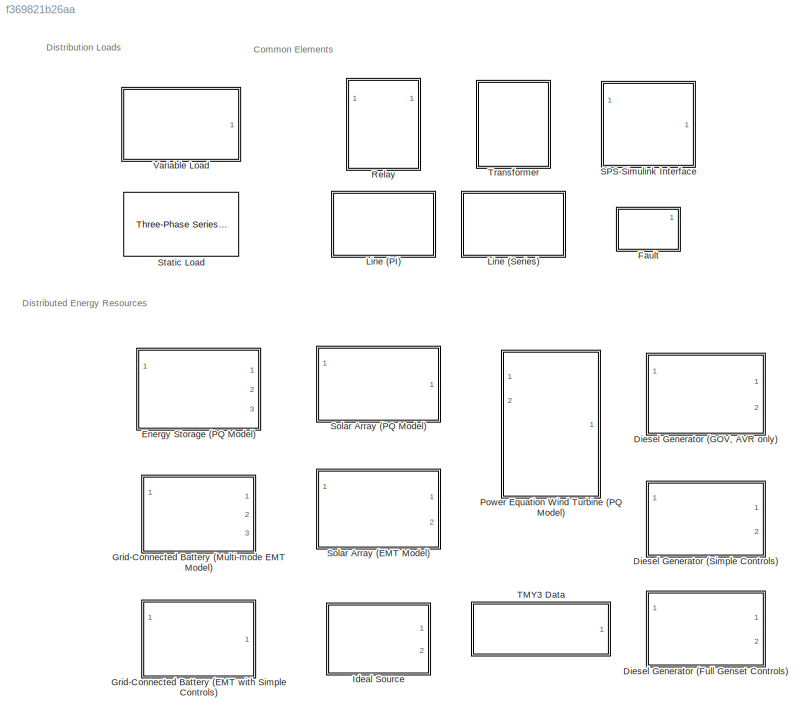
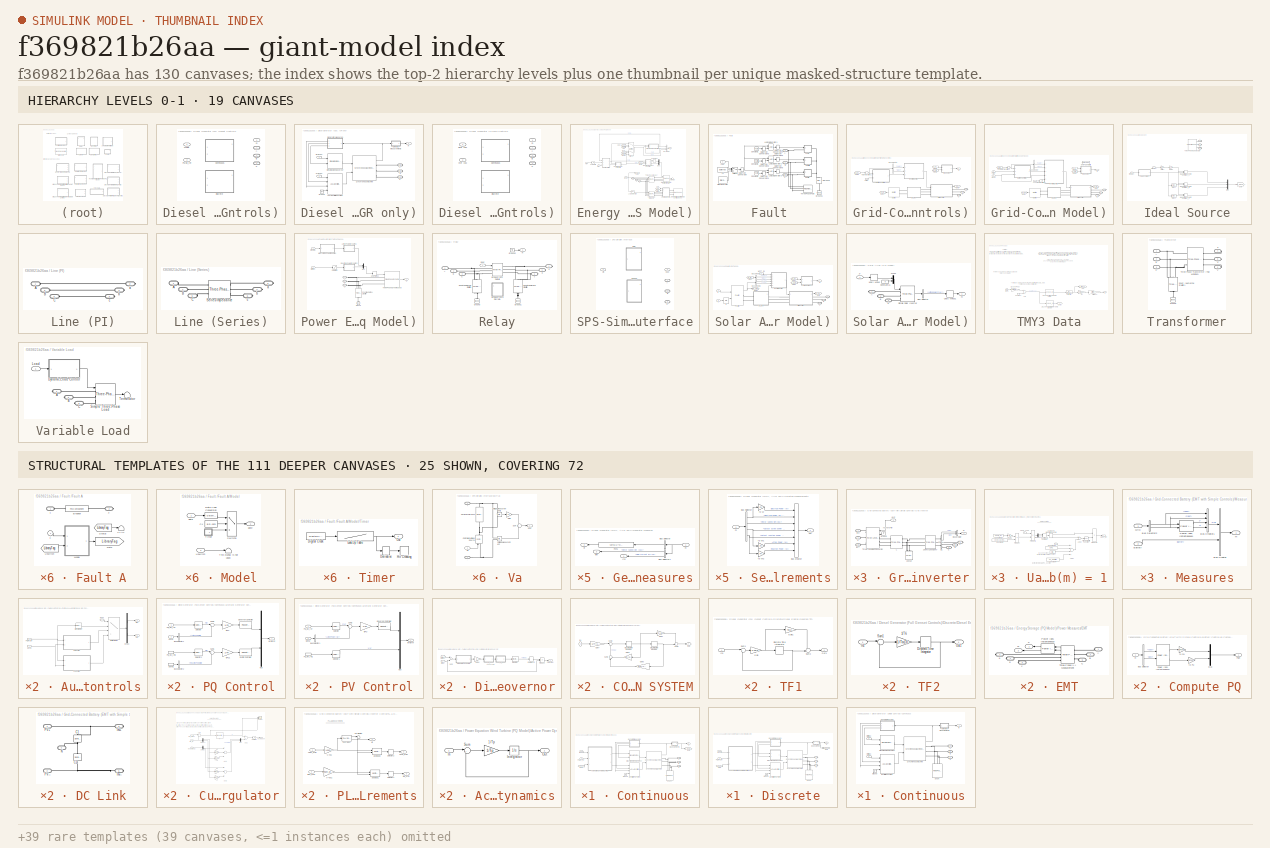
[diagram: thumbnail index - top-2 hierarchy levels (19 canvases) + 25 structural-template representatives of the remaining 111 canvases]
MODEL slx_f369821b26aa
KIND library
CONFIG AbsTol = auto
CONFIG EnableMultiTasking = off
CONFIG FixedStep = auto
CONFIG MaxStep = auto
CONFIG MinStep = auto
CONFIG RelTol = 1e-3
CONFIG SampleTimeConstraint = Unconstrained
CONFIG Solver = VariableStepAuto
CONFIG SolverName = VariableStepAuto
CONFIG StartTime = 0.0
CONFIG StopTime = 10.0
BLOCK [SubSystem] Diesel Generator (Full Genset Controls)
  LabelModeActiveChoice = Continuous
  Ports = [2, 1, 0, 0, 0, 0, 3]
  RequestExecContextInheritance = off
  Variant = on
  VariantControl = Variant1
  VariantControlMode = Label
BLOCK [PMIOPort] Diesel Generator (Full Genset Controls)/ A 
  Side = Right
BLOCK [PMIOPort] Diesel Generator (Full Genset Controls)/ B 
  Port = 2
  Side = Right
BLOCK [PMIOPort] Diesel Generator (Full Genset Controls)/ C 
  Port = 3
  Side = Right
BLOCK [Outport] Diesel Generator (Full Genset Controls)/ m
  IconDisplay = Port number
BLOCK [SubSystem] Diesel Generator (Full Genset Controls)/Continuous
  Ports = [2, 1, 0, 0, 0, 0, 3]
  RequestExecContextInheritance = off
  VariantControl = Continuous
BLOCK [PMIOPort] Diesel Generator (Full Genset Controls)/Continuous/A
  Side = Right
BLOCK [SubSystem] Diesel Generator (Full Genset Controls)/Continuous/Automatic Generator Controls
  Ports = [3, 2]
  RequestExecContextInheritance = off
BLOCK [Demux] Diesel Generator (Full Genset Controls)/Continuous/Automatic Generator Controls/Demux
  DisplayOption = bar
  Outputs = 2
  Ports = [1, 2]
BLOCK [Selector] Diesel Generator (Full Genset Controls)/Continuous/Automatic Generator Controls/Direct wref, Vref
  IndexOptions = Index vector (dialog)
  Indices = [3 4]
  InputPortWidth = 4
  OutputSizes = 1
  Ports = [1, 1]
BLOCK [Inport] Diesel Generator (Full Genset Controls)/Continuous/Automatic Generator Controls/GenM
  IconDisplay = Port number
  Port = 3
BLOCK [Inport] Diesel Generator (Full Genset Controls)/Continuous/Automatic Generator Controls/Mode
  IconDisplay = Port number
BLOCK [MultiPortSwitch] Diesel Generator (Full Genset Controls)/Continuous/Automatic Generator Controls/Multiport Switch
  DataPortOrder = Zero-based contiguous
  InputSameDT = off
  Ports = [4, 1]
  SaturateOnIntegerOverflow = off
  zeroidx = on
BLOCK [SubSystem] Diesel Generator (Full Genset Controls)/Continuous/Automatic Generator Controls/PQ Control
  Ports = [2, 1]
  RequestExecContextInheritance = off
BLOCK [BusSelector] Diesel Generator (Full Genset Controls)/Continuous/Automatic Generator Controls/PQ Control/Bus Selector1
  OutputAsBus = off
  OutputSignals = Active Power (W)
  Ports = [1, 1]
BLOCK [BusSelector] Diesel Generator (Full Genset Controls)/Continuous/Automatic Generator Controls/PQ Control/Bus Selector2
  OutputAsBus = off
  OutputSignals = Reactive Power (W)
  Ports = [1, 1]
BLOCK [Reference] Diesel Generator (Full Genset Controls)/Continuous/Automatic Generator Controls/PQ Control/Exciter Controller  REF=simulink/Continuous/PID Controller
  Ports = [1, 1]
  SourceBlock = simulink/Continuous/PID Controller
  SourceProductBaseCode = SL
  SourceProductName = Simulink
  SourceType = PID 1dof
BLOCK [Inport] Diesel Generator (Full Genset Controls)/Continuous/Automatic Generator Controls/PQ Control/GenM
  IconDisplay = Port number
  Port = 2
BLOCK [InportShadow] Diesel Generator (Full Genset Controls)/Continuous/Automatic Generator Controls/PQ Control/GenM1
  IconDisplay = Port number
  Port = 2
BLOCK [Reference] Diesel Generator (Full Genset Controls)/Continuous/Automatic Generator Controls/PQ Control/Governor Controller  REF=simulink/Continuous/PID Controller
  Ports = [1, 1]
  SourceBlock = simulink/Continuous/PID Controller
  SourceProductBaseCode = SL
  SourceProductName = Simulink
  SourceType = PID 1dof
BLOCK [Mux] Diesel Generator (Full Genset Controls)/Continuous/Automatic Generator Controls/PQ Control/Mux
  DisplayOption = bar
  Inputs = 2
  Ports = [2, 1]
BLOCK [Inport] Diesel Generator (Full Genset Controls)/Continuous/Automatic Generator Controls/PQ Control/PQ_wv_ref
  IconDisplay = Port number
BLOCK [InportShadow] Diesel Generator (Full Genset Controls)/Continuous/Automatic Generator Controls/PQ Control/PQ_wv_ref1
  IconDisplay = Port number
BLOCK [Selector] Diesel Generator (Full Genset Controls)/Continuous/Automatic Generator Controls/PQ Control/Selector
  IndexOptions = Index vector (dialog)
  Indices = [1]
  InputPortWidth = 4
  OutputSizes = 1
  Ports = [1, 1]
BLOCK [Selector] Diesel Generator (Full Genset Controls)/Continuous/Automatic Generator Controls/PQ Control/Selector1
  IndexOptions = Index vector (dialog)
  Indices = [2]
  InputPortWidth = 4
  OutputSizes = 1
  Ports = [1, 1]
BLOCK [Sum] Diesel Generator (Full Genset Controls)/Continuous/Automatic Generator Controls/PQ Control/Sum1
  IconShape = round
  InputSameDT = off
  Inputs = |+-
  OutDataTypeStr = Inherit: Inherit via internal rule
  Ports = [2, 1]
  SaturateOnIntegerOverflow = off
BLOCK [Sum] Diesel Generator (Full Genset Controls)/Continuous/Automatic Generator Controls/PQ Control/Sum2
  IconShape = round
  InputSameDT = off
  Inputs = |+-
  OutDataTypeStr = Inherit: Inherit via internal rule
  Ports = [2, 1]
  SaturateOnIntegerOverflow = off
BLOCK [Gain] Diesel Generator (Full Genset Controls)/Continuous/Automatic Generator Controls/PQ Control/to PU
  Gain = 1/Pn
  OutDataTypeStr = Inherit: Inherit via internal rule
  ParamDataTypeStr = Inherit: Inherit via internal rule
  SaturateOnIntegerOverflow = off
BLOCK [Gain] Diesel Generator (Full Genset Controls)/Continuous/Automatic Generator Controls/PQ Control/to PU1
  Gain = 1/Pn
  OutDataTypeStr = Inherit: Inherit via internal rule
  ParamDataTypeStr = Inherit: Inherit via internal rule
  SaturateOnIntegerOverflow = off
BLOCK [Outport] Diesel Generator (Full Genset Controls)/Continuous/Automatic Generator Controls/PQ Control/wref, Vref
  IconDisplay = Port number
BLOCK [Inport] Diesel Generator (Full Genset Controls)/Continuous/Automatic Generator Controls/PQwv_ref
  IconDisplay = Port number
  Port = 2
BLOCK [SubSystem] Diesel Generator (Full Genset Controls)/Continuous/Automatic Generator Controls/PV Control
  Ports = [2, 1]
  RequestExecContextInheritance = off
BLOCK [BusSelector] Diesel Generator (Full Genset Controls)/Continuous/Automatic Generator Controls/PV Control/Bus Selector1
  OutputAsBus = off
  OutputSignals = Active Power (W)
  Ports = [1, 1]
BLOCK [Inport] Diesel Generator (Full Genset Controls)/Continuous/Automatic Generator Controls/PV Control/GenM
  IconDisplay = Port number
  Port = 2
BLOCK [Reference] Diesel Generator (Full Genset Controls)/Continuous/Automatic Generator Controls/PV Control/Governor Controller  REF=simulink/Continuous/PID Controller
  Ports = [1, 1]
  SourceBlock = simulink/Continuous/PID Controller
  SourceProductBaseCode = SL
  SourceProductName = Simulink
  SourceType = PID 1dof
BLOCK [Mux] Diesel Generator (Full Genset Controls)/Continuous/Automatic Generator Controls/PV Control/Mux
  DisplayOption = bar
  Inputs = 2
  Ports = [2, 1]
BLOCK [Inport] Diesel Generator (Full Genset Controls)/Continuous/Automatic Generator Controls/PV Control/PQ_wv_ref
  IconDisplay = Port number
BLOCK [InportShadow] Diesel Generator (Full Genset Controls)/Continuous/Automatic Generator Controls/PV Control/PQ_wv_ref1
  IconDisplay = Port number
BLOCK [Selector] Diesel Generator (Full Genset Controls)/Continuous/Automatic Generator Controls/PV Control/Selector
  IndexOptions = Index vector (dialog)
  Indices = [1]
  InputPortWidth = 4
  OutputSizes = 1
  Ports = [1, 1]
BLOCK [Selector] Diesel Generator (Full Genset Controls)/Continuous/Automatic Generator Controls/PV Control/Selector1
  IndexOptions = Index vector (dialog)
  Indices = [4]
  InputPortWidth = 4
  OutputSizes = 1
  Ports = [1, 1]
BLOCK [Sum] Diesel Generator (Full Genset Controls)/Continuous/Automatic Generator Controls/PV Control/Sum2
  IconShape = round
  InputSameDT = off
  Inputs = |+-
  OutDataTypeStr = Inherit: Inherit via internal rule
  Ports = [2, 1]
  SaturateOnIntegerOverflow = off
BLOCK [Gain] Diesel Generator (Full Genset Controls)/Continuous/Automatic Generator Controls/PV Control/to PU
  Gain = 1/Pn
  OutDataTypeStr = Inherit: Inherit via internal rule
  ParamDataTypeStr = Inherit: Inherit via internal rule
  SaturateOnIntegerOverflow = off
BLOCK [Outport] Diesel Generator (Full Genset Controls)/Continuous/Automatic Generator Controls/PV Control/wref, Vref
  IconDisplay = Port number
BLOCK [Outport] Diesel Generator (Full Genset Controls)/Continuous/Automatic Generator Controls/vref
  IconDisplay = Port number
  Port = 2
BLOCK [Outport] Diesel Generator (Full Genset Controls)/Continuous/Automatic Generator Controls/wref
  IconDisplay = Port number
BLOCK [PMIOPort] Diesel Generator (Full Genset Controls)/Continuous/B
  Port = 2
  Side = Right
BLOCK [PMIOPort] Diesel Generator (Full Genset Controls)/Continuous/C
  Port = 3
  Side = Right
BLOCK [Reference] Diesel Generator (Full Genset Controls)/Continuous/Diesel Engine Governor  REF=spsDieselMotorModel/Diesel Engine Governor
  Ports = [2, 1]
  SourceBlock = spsDieselMotorModel/Diesel Engine Governor
  SourceType = Diesel Engine & Governor
BLOCK [Reference] Diesel Generator (Full Genset Controls)/Continuous/Excitation System  REF=sps_avr/AC1A
Excitation System
  Ports = [4, 1]
  SourceBlock = sps_avr/AC1A\nExcitation System
  SourceProductBaseCode = PS
  SourceProductName = Simscape Electrical
  SourceType = AC1A Excitation System
BLOCK [From] Diesel Generator (Full Genset Controls)/Continuous/From
  GotoTag = GenM
BLOCK [SubSystem] Diesel Generator (Full Genset Controls)/Continuous/Generator Measures
  Ports = [1, 3]
  RequestExecContextInheritance = off
BLOCK [BusSelector] Diesel Generator (Full Genset Controls)/Continuous/Generator Measures/Bus Selector
  OutputAsBus = on
  OutputSignals = dq0 components.Stator voltage  vq (pu),dq0 components.Stator voltage  vd (pu)
  Ports = [1, 1]
BLOCK [BusSelector] Diesel Generator (Full Genset Controls)/Continuous/Generator Measures/Bus Selector1
  OutputAsBus = off
  OutputSignals = Mechanical.Rotor speed  wm  (pu),dq0 components.Field current  ifd (pu)
  Ports = [1, 2]
BLOCK [Fcn] Diesel Generator (Full Genset Controls)/Continuous/Generator Measures/Fcn1
  Expr = sqrt(u(1)^2 + u(2)^2)
BLOCK [Outport] Diesel Generator (Full Genset Controls)/Continuous/Generator Measures/Ifd
  IconDisplay = Port number
BLOCK [Outport] Diesel Generator (Full Genset Controls)/Continuous/Generator Measures/Vt
  IconDisplay = Port number
  Port = 2
BLOCK [Inport] Diesel Generator (Full Genset Controls)/Continuous/Generator Measures/m
  IconDisplay = Port number
BLOCK [Outport] Diesel Generator (Full Genset Controls)/Continuous/Generator Measures/wm
  IconDisplay = Port number
  Port = 3
BLOCK [Goto] Diesel Generator (Full Genset Controls)/Continuous/Goto
  GotoTag = GenM
BLOCK [Ground] Diesel Generator (Full Genset Controls)/Continuous/Ground
BLOCK [Inport] Diesel Generator (Full Genset Controls)/Continuous/Mode
  IconDisplay = Port number
BLOCK [Inport] Diesel Generator (Full Genset Controls)/Continuous/PQwv_ref
  IconDisplay = Port number
  Port = 2
BLOCK [SubSystem] Diesel Generator (Full Genset Controls)/Continuous/Selected Measurements
  Ports = [1, 1]
  RequestExecContextInheritance = off
BLOCK [BusCreator] Diesel Generator (Full Genset Controls)/Continuous/Selected Measurements/Bus Creator
  DisplayOption = bar
  InheritFromInputs = on
  Inputs = 7
  Ports = [7, 1]
BLOCK [BusSelector] Diesel Generator (Full Genset Controls)/Continuous/Selected Measurements/Bus Selector
  OutputAsBus = off
  OutputSignals = Mechanical.Electrical power  Pe (pu),Mechanical.Rotor speed  wm  (pu),Output active power   Peo (pu),Output reactive power  Qeo (pu)
  Ports = [1, 4]
BLOCK [Inport] Diesel Generator (Full Genset Controls)/Continuous/Selected Measurements/m
  IconDisplay = Port number
BLOCK [Outport] Diesel Generator (Full Genset Controls)/Continuous/Selected Measurements/sm
  IconDisplay = Port number
BLOCK [Gain] Diesel Generator (Full Genset Controls)/Continuous/Selected Measurements/to W
  Gain = Pn
  OutDataTypeStr = Inherit: Inherit via internal rule
  ParamDataTypeStr = Inherit: Inherit via internal rule
  SaturateOnIntegerOverflow = off
BLOCK [Gain] Diesel Generator (Full Genset Controls)/Continuous/Selected Measurements/to W1
  Gain = Pn
  OutDataTypeStr = Inherit: Inherit via internal rule
  ParamDataTypeStr = Inherit: Inherit via internal rule
  SaturateOnIntegerOverflow = off
BLOCK [Gain] Diesel Generator (Full Genset Controls)/Continuous/Selected Measurements/to W2
  Gain = Pn
  OutDataTypeStr = Inherit: Inherit via internal rule
  ParamDataTypeStr = Inherit: Inherit via internal rule
  SaturateOnIntegerOverflow = off
BLOCK [Reference] Diesel Generator (Full Genset Controls)/Continuous/Shunt  REF=powerlib/Elements/Three-Phase
Parallel RLC Load
  AttributesFormatString = \n
  Ports = [0, 0, 0, 0, 0, 3]
  SourceBlock = powerlib/Elements/Three-Phase\nParallel RLC Load
  SourceProductBaseCode = PS
  SourceProductName = Simscape Electrical
  SourceType = Three-Phase Parallel RLC Load
BLOCK [Reference] Diesel Generator (Full Genset Controls)/Continuous/Synchronous Machine  REF=powerlib/Machines/Synchronous Machine
pu Standard
  Ports = [2, 1, 0, 0, 0, 0, 3]
  SourceBlock = powerlib/Machines/Synchronous Machine\npu Standard
  SourceProductBaseCode = PS
  SourceProductName = Simscape Electrical
  SourceType = Synchronous Machine
BLOCK [Outport] Diesel Generator (Full Genset Controls)/Continuous/m
  IconDisplay = Port number
BLOCK [SubSystem] Diesel Generator (Full Genset Controls)/Discrete
  Ports = [2, 1, 0, 0, 0, 0, 3]
  RequestExecContextInheritance = off
  VariantControl = Discrete
BLOCK [PMIOPort] Diesel Generator (Full Genset Controls)/Discrete/A
  Side = Right
BLOCK [SubSystem] Diesel Generator (Full Genset Controls)/Discrete/Automatic Generator Controls
  Ports = [3, 2]
  RequestExecContextInheritance = off
BLOCK [Demux] Diesel Generator (Full Genset Controls)/Discrete/Automatic Generator Controls/Demux
  DisplayOption = bar
  Outputs = 2
  Ports = [1, 2]
BLOCK [Selector] Diesel Generator (Full Genset Controls)/Discrete/Automatic Generator Controls/Direct wref, Vref
  IndexOptions = Index vector (dialog)
  Indices = [3 4]
  InputPortWidth = 4
  OutputSizes = 1
  Ports = [1, 1]
BLOCK [Inport] Diesel Generator (Full Genset Controls)/Discrete/Automatic Generator Controls/GenM
  IconDisplay = Port number
  Port = 3
BLOCK [Inport] Diesel Generator (Full Genset Controls)/Discrete/Automatic Generator Controls/Mode
  IconDisplay = Port number
BLOCK [MultiPortSwitch] Diesel Generator (Full Genset Controls)/Discrete/Automatic Generator Controls/Multiport Switch
  DataPortOrder = Zero-based contiguous
  InputSameDT = off
  Ports = [4, 1]
  SaturateOnIntegerOverflow = off
  zeroidx = on
BLOCK [SubSystem] Diesel Generator (Full Genset Controls)/Discrete/Automatic Generator Controls/PQ Control
  Ports = [2, 1]
  RequestExecContextInheritance = off
BLOCK [BusSelector] Diesel Generator (Full Genset Controls)/Discrete/Automatic Generator Controls/PQ Control/Bus Selector1
  OutputAsBus = off
  OutputSignals = Active Power (W)
  Ports = [1, 1]
BLOCK [BusSelector] Diesel Generator (Full Genset Controls)/Discrete/Automatic Generator Controls/PQ Control/Bus Selector2
  OutputAsBus = off
  OutputSignals = Reactive Power (W)
  Ports = [1, 1]
BLOCK [Reference] Diesel Generator (Full Genset Controls)/Discrete/Automatic Generator Controls/PQ Control/Exciter Controller  REF=simulink/Continuous/PID Controller
  Ports = [1, 1]
  SourceBlock = simulink/Continuous/PID Controller
  SourceProductBaseCode = SL
  SourceProductName = Simulink
  SourceType = PID 1dof
BLOCK [Inport] Diesel Generator (Full Genset Controls)/Discrete/Automatic Generator Controls/PQ Control/GenM
  IconDisplay = Port number
  Port = 2
BLOCK [InportShadow] Diesel Generator (Full Genset Controls)/Discrete/Automatic Generator Controls/PQ Control/GenM1
  IconDisplay = Port number
  Port = 2
BLOCK [Reference] Diesel Generator (Full Genset Controls)/Discrete/Automatic Generator Controls/PQ Control/Governor Controller  REF=simulink/Continuous/PID Controller
  Ports = [1, 1]
  SourceBlock = simulink/Continuous/PID Controller
  SourceProductBaseCode = SL
  SourceProductName = Simulink
  SourceType = PID 1dof
BLOCK [Mux] Diesel Generator (Full Genset Controls)/Discrete/Automatic Generator Controls/PQ Control/Mux
  DisplayOption = bar
  Inputs = 2
  Ports = [2, 1]
BLOCK [Inport] Diesel Generator (Full Genset Controls)/Discrete/Automatic Generator Controls/PQ Control/PQ_wv_ref
  IconDisplay = Port number
BLOCK [InportShadow] Diesel Generator (Full Genset Controls)/Discrete/Automatic Generator Controls/PQ Control/PQ_wv_ref1
  IconDisplay = Port number
BLOCK [Selector] Diesel Generator (Full Genset Controls)/Discrete/Automatic Generator Controls/PQ Control/Selector
  IndexOptions = Index vector (dialog)
  Indices = [1]
  InputPortWidth = 4
  OutputSizes = 1
  Ports = [1, 1]
BLOCK [Selector] Diesel Generator (Full Genset Controls)/Discrete/Automatic Generator Controls/PQ Control/Selector1
  IndexOptions = Index vector (dialog)
  Indices = [2]
  InputPortWidth = 4
  OutputSizes = 1
  Ports = [1, 1]
BLOCK [Sum] Diesel Generator (Full Genset Controls)/Discrete/Automatic Generator Controls/PQ Control/Sum1
  IconShape = round
  InputSameDT = off
  Inputs = |+-
  OutDataTypeStr = Inherit: Inherit via internal rule
  Ports = [2, 1]
  SaturateOnIntegerOverflow = off
BLOCK [Sum] Diesel Generator (Full Genset Controls)/Discrete/Automatic Generator Controls/PQ Control/Sum2
  IconShape = round
  InputSameDT = off
  Inputs = |+-
  OutDataTypeStr = Inherit: Inherit via internal rule
  Ports = [2, 1]
  SaturateOnIntegerOverflow = off
BLOCK [Gain] Diesel Generator (Full Genset Controls)/Discrete/Automatic Generator Controls/PQ Control/to PU
  Gain = 1/Pn
  OutDataTypeStr = Inherit: Inherit via internal rule
  ParamDataTypeStr = Inherit: Inherit via internal rule
  SaturateOnIntegerOverflow = off
BLOCK [Gain] Diesel Generator (Full Genset Controls)/Discrete/Automatic Generator Controls/PQ Control/to PU1
  Gain = 1/Pn
  OutDataTypeStr = Inherit: Inherit via internal rule
  ParamDataTypeStr = Inherit: Inherit via internal rule
  SaturateOnIntegerOverflow = off
BLOCK [Outport] Diesel Generator (Full Genset Controls)/Discrete/Automatic Generator Controls/PQ Control/wref, Vref
  IconDisplay = Port number
BLOCK [Inport] Diesel Generator (Full Genset Controls)/Discrete/Automatic Generator Controls/PQwv_ref
  IconDisplay = Port number
  Port = 2
  SampleTime = Ts
BLOCK [SubSystem] Diesel Generator (Full Genset Controls)/Discrete/Automatic Generator Controls/PV Control
  Ports = [2, 1]
  RequestExecContextInheritance = off
BLOCK [BusSelector] Diesel Generator (Full Genset Controls)/Discrete/Automatic Generator Controls/PV Control/Bus Selector1
  OutputAsBus = off
  OutputSignals = Active Power (W)
  Ports = [1, 1]
BLOCK [Inport] Diesel Generator (Full Genset Controls)/Discrete/Automatic Generator Controls/PV Control/GenM
  IconDisplay = Port number
  Port = 2
BLOCK [Reference] Diesel Generator (Full Genset Controls)/Discrete/Automatic Generator Controls/PV Control/Governor Controller  REF=simulink/Continuous/PID Controller
  Ports = [1, 1]
  SourceBlock = simulink/Continuous/PID Controller
  SourceProductBaseCode = SL
  SourceProductName = Simulink
  SourceType = PID 1dof
BLOCK [Mux] Diesel Generator (Full Genset Controls)/Discrete/Automatic Generator Controls/PV Control/Mux
  DisplayOption = bar
  Inputs = 2
  Ports = [2, 1]
BLOCK [Inport] Diesel Generator (Full Genset Controls)/Discrete/Automatic Generator Controls/PV Control/PQ_wv_ref
  IconDisplay = Port number
BLOCK [InportShadow] Diesel Generator (Full Genset Controls)/Discrete/Automatic Generator Controls/PV Control/PQ_wv_ref1
  IconDisplay = Port number
BLOCK [Selector] Diesel Generator (Full Genset Controls)/Discrete/Automatic Generator Controls/PV Control/Selector
  IndexOptions = Index vector (dialog)
  Indices = [1]
  InputPortWidth = 4
  OutputSizes = 1
  Ports = [1, 1]
BLOCK [Selector] Diesel Generator (Full Genset Controls)/Discrete/Automatic Generator Controls/PV Control/Selector1
  IndexOptions = Index vector (dialog)
  Indices = [4]
  InputPortWidth = 4
  OutputSizes = 1
  Ports = [1, 1]
BLOCK [Sum] Diesel Generator (Full Genset Controls)/Discrete/Automatic Generator Controls/PV Control/Sum2
  IconShape = round
  InputSameDT = off
  Inputs = |+-
  OutDataTypeStr = Inherit: Inherit via internal rule
  Ports = [2, 1]
  SaturateOnIntegerOverflow = off
BLOCK [Gain] Diesel Generator (Full Genset Controls)/Discrete/Automatic Generator Controls/PV Control/to PU
  Gain = 1/Pn
  OutDataTypeStr = Inherit: Inherit via internal rule
  ParamDataTypeStr = Inherit: Inherit via internal rule
  SaturateOnIntegerOverflow = off
BLOCK [Outport] Diesel Generator (Full Genset Controls)/Discrete/Automatic Generator Controls/PV Control/wref, Vref
  IconDisplay = Port number
BLOCK [Outport] Diesel Generator (Full Genset Controls)/Discrete/Automatic Generator Controls/vref
  IconDisplay = Port number
  Port = 2
BLOCK [Outport] Diesel Generator (Full Genset Controls)/Discrete/Automatic Generator Controls/wref
  IconDisplay = Port number
BLOCK [PMIOPort] Diesel Generator (Full Genset Controls)/Discrete/B
  Port = 2
  Side = Right
BLOCK [PMIOPort] Diesel Generator (Full Genset Controls)/Discrete/C
  Port = 3
  Side = Right
BLOCK [SubSystem] Diesel Generator (Full Genset Controls)/Discrete/Diesel Engine Governor
  Ports = [2, 1]
  RequestExecContextInheritance = off
BLOCK [SubSystem] Diesel Generator (Full Genset Controls)/Discrete/Diesel Engine Governor/CONTROL SYSTEM
  Ports = [1, 1]
  RequestExecContextInheritance = off
BLOCK [DiscreteIntegrator] Diesel Generator (Full Genset Controls)/Discrete/Diesel Engine Governor/CONTROL SYSTEM/Discrete-Time Integrator1
  ICPrevOutput = DiscIntNeverNeededParam
  ICPrevScaledInput = DiscIntNeverNeededParam
  Ports = [1, 1]
  SampleTime = Ts
BLOCK [DiscreteIntegrator] Diesel Generator (Full Genset Controls)/Discrete/Diesel Engine Governor/CONTROL SYSTEM/Discrete-Time Integrator2
  ICPrevOutput = DiscIntNeverNeededParam
  ICPrevScaledInput = DiscIntNeverNeededParam
  Ports = [1, 1]
  SampleTime = Ts
BLOCK [Gain] Diesel Generator (Full Genset Controls)/Discrete/Diesel Engine Governor/CONTROL SYSTEM/Gain2
  Gain = 1/Tr(2)
  OutDataTypeStr = Inherit: Inherit via internal rule
  ParamDataTypeStr = Inherit: Inherit via internal rule
  SaturateOnIntegerOverflow = off
BLOCK [Gain] Diesel Generator (Full Genset Controls)/Discrete/Diesel Engine Governor/CONTROL SYSTEM/Gain3
  Gain = 1/(Tr(1)*Tr(2))
  OutDataTypeStr = Inherit: Inherit via internal rule
  ParamDataTypeStr = Inherit: Inherit via internal rule
  SaturateOnIntegerOverflow = off
BLOCK [Gain] Diesel Generator (Full Genset Controls)/Discrete/Diesel Engine Governor/CONTROL SYSTEM/Gain4
  Gain = Tr(3)
  OutDataTypeStr = Inherit: Inherit via internal rule
  ParamDataTypeStr = Inherit: Inherit via internal rule
  SaturateOnIntegerOverflow = off
BLOCK [Gain] Diesel Generator (Full Genset Controls)/Discrete/Diesel Engine Governor/CONTROL SYSTEM/Gain7
  Gain = 1/(Tr(1)*Tr(2))
  OutDataTypeStr = Inherit: Inherit via internal rule
  ParamDataTypeStr = Inherit: Inherit via internal rule
  SaturateOnIntegerOverflow = off
BLOCK [Inport] Diesel Generator (Full Genset Controls)/Discrete/Diesel Engine Governor/CONTROL SYSTEM/In1
  IconDisplay = Port number
BLOCK [Outport] Diesel Generator (Full Genset Controls)/Discrete/Diesel Engine Governor/CONTROL SYSTEM/Out1
  IconDisplay = Port number
BLOCK [Sum] Diesel Generator (Full Genset Controls)/Discrete/Diesel Engine Governor/CONTROL SYSTEM/Sum2
  IconShape = round
  InputSameDT = off
  Inputs = |+-
  OutDataTypeStr = Inherit: Inherit via internal rule
  Ports = [2, 1]
  SaturateOnIntegerOverflow = off
BLOCK [Sum] Diesel Generator (Full Genset Controls)/Discrete/Diesel Engine Governor/CONTROL SYSTEM/Sum3
  IconShape = round
  InputSameDT = off
  Inputs = |++
  OutDataTypeStr = Inherit: Inherit via internal rule
  Ports = [2, 1]
  SaturateOnIntegerOverflow = off
BLOCK [Sum] Diesel Generator (Full Genset Controls)/Discrete/Diesel Engine Governor/CONTROL SYSTEM/Sum4
  IconShape = round
  InputSameDT = off
  Inputs = ++|
  OutDataTypeStr = Inherit: Inherit via internal rule
  Ports = [2, 1]
  SaturateOnIntegerOverflow = off
BLOCK [Delay] Diesel Generator (Full Genset Controls)/Discrete/Diesel Engine Governor/ENGINE Td
  DelayLength = ceil(Td/Ts)
  InitialCondition = Pm0
  InputPortMap = u0
  Ports = [1, 1]
BLOCK [Gain] Diesel Generator (Full Genset Controls)/Discrete/Diesel Engine Governor/Gain K
  Gain = K
BLOCK [DiscreteIntegrator] Diesel Generator (Full Genset Controls)/Discrete/Diesel Engine Governor/Integrator
  ICPrevOutput = DiscIntNeverNeededParam
  ICPrevScaledInput = DiscIntNeverNeededParam
  InitialCondition = Pm0
  LimitOutput = on
  LowerSaturationLimit = Tlim(1)
  Ports = [1, 1]
  SampleTime = Ts
  UpperSaturationLimit = Tlim(2)
BLOCK [Outport] Diesel Generator (Full Genset Controls)/Discrete/Diesel Engine Governor/Pmec (pu)
  IconDisplay = Port number
  InitialOutput = 0
BLOCK [Product] Diesel Generator (Full Genset Controls)/Discrete/Diesel Engine Governor/Product
  Ports = [2, 1]
  RndMeth = Floor
BLOCK [Sum] Diesel Generator (Full Genset Controls)/Discrete/Diesel Engine Governor/Sum
  Inputs = +-
  Ports = [2, 1]
BLOCK [SubSystem] Diesel Generator (Full Genset Controls)/Discrete/Diesel Engine Governor/TF1
  Ports = [1, 1]
  RequestExecContextInheritance = off
BLOCK [DiscreteIntegrator] Diesel Generator (Full Genset Controls)/Discrete/Diesel Engine Governor/TF1/Discrete-Time Integrator
  ICPrevOutput = DiscIntNeverNeededParam
  ICPrevScaledInput = DiscIntNeverNeededParam
  Ports = [1, 1]
  SampleTime = Ts
BLOCK [Gain] Diesel Generator (Full Genset Controls)/Discrete/Diesel Engine Governor/TF1/Gain
  Gain = 1/Ta(2)
  OutDataTypeStr = Inherit: Inherit via internal rule
  ParamDataTypeStr = Inherit: Inherit via internal rule
  SaturateOnIntegerOverflow = off
BLOCK [Gain] Diesel Generator (Full Genset Controls)/Discrete/Diesel Engine Governor/TF1/Gain1
  Gain = Ta(1)
  OutDataTypeStr = Inherit: Inherit via internal rule
  ParamDataTypeStr = Inherit: Inherit via internal rule
  SaturateOnIntegerOverflow = off
BLOCK [Inport] Diesel Generator (Full Genset Controls)/Discrete/Diesel Engine Governor/TF1/In1
  IconDisplay = Port number
BLOCK [Outport] Diesel Generator (Full Genset Controls)/Discrete/Diesel Engine Governor/TF1/Out1
  IconDisplay = Port number
BLOCK [Sum] Diesel Generator (Full Genset Controls)/Discrete/Diesel Engine Governor/TF1/Sum1
  IconShape = round
  InputSameDT = off
  Inputs = |+-
  OutDataTypeStr = Inherit: Inherit via internal rule
  Ports = [2, 1]
  SaturateOnIntegerOverflow = off
BLOCK [Sum] Diesel Generator (Full Genset Controls)/Discrete/Diesel Engine Governor/TF1/Sum2
  IconShape = round
  InputSameDT = off
  Inputs = ++|
  OutDataTypeStr = Inherit: Inherit via internal rule
  Ports = [2, 1]
  SaturateOnIntegerOverflow = off
BLOCK [SubSystem] Diesel Generator (Full Genset Controls)/Discrete/Diesel Engine Governor/TF2
  Ports = [1, 1]
  RequestExecContextInheritance = off
BLOCK [Gain] Diesel Generator (Full Genset Controls)/Discrete/Diesel Engine Governor/TF2/1//T6
  Gain = 1/Ta(3)
  OutDataTypeStr = Inherit: Inherit via internal rule
  ParamDataTypeStr = Inherit: Inherit via internal rule
  SaturateOnIntegerOverflow = off
BLOCK [DiscreteIntegrator] Diesel Generator (Full Genset Controls)/Discrete/Diesel Engine Governor/TF2/Discrete-Time Integrator
  ICPrevOutput = DiscIntNeverNeededParam
  ICPrevScaledInput = DiscIntNeverNeededParam
  Ports = [1, 1]
  SampleTime = Ts
BLOCK [Inport] Diesel Generator (Full Genset Controls)/Discrete/Diesel Engine Governor/TF2/In1
  IconDisplay = Port number
BLOCK [Outport] Diesel Generator (Full Genset Controls)/Discrete/Diesel Engine Governor/TF2/Out1
  IconDisplay = Port number
BLOCK [Sum] Diesel Generator (Full Genset Controls)/Discrete/Diesel Engine Governor/TF2/Sum1
  IconShape = round
  InputSameDT = off
  Inputs = |+-
  OutDataTypeStr = Inherit: Inherit via internal rule
  Ports = [2, 1]
  SaturateOnIntegerOverflow = off
BLOCK [Inport] Diesel Generator (Full Genset Controls)/Discrete/Diesel Engine Governor/w (pu)
  IconDisplay = Port number
  Port = 2
  SampleTime = Ts
BLOCK [Inport] Diesel Generator (Full Genset Controls)/Discrete/Diesel Engine Governor/wref (pu)
  IconDisplay = Port number
  SampleTime = Ts
BLOCK [Reference] Diesel Generator (Full Genset Controls)/Discrete/Excitation System  REF=sps_avr/AC1A
Excitation System
  Ports = [4, 1]
  SourceBlock = sps_avr/AC1A\nExcitation System
  SourceProductBaseCode = PS
  SourceProductName = Simscape Electrical
  SourceType = AC1A Excitation System
BLOCK [From] Diesel Generator (Full Genset Controls)/Discrete/From
  GotoTag = GenM
BLOCK [SubSystem] Diesel Generator (Full Genset Controls)/Discrete/Generator Measures
  Ports = [1, 3]
  RequestExecContextInheritance = off
BLOCK [BusSelector] Diesel Generator (Full Genset Controls)/Discrete/Generator Measures/Bus Selector
  OutputAsBus = on
  OutputSignals = dq0 components.Stator voltage  vq (pu),dq0 components.Stator voltage  vd (pu)
  Ports = [1, 1]
BLOCK [BusSelector] Diesel Generator (Full Genset Controls)/Discrete/Generator Measures/Bus Selector1
  OutputAsBus = off
  OutputSignals = Mechanical.Rotor speed  wm  (pu),dq0 components.Field current  ifd (pu)
  Ports = [1, 2]
BLOCK [Fcn] Diesel Generator (Full Genset Controls)/Discrete/Generator Measures/Fcn1
  Expr = sqrt(u(1)^2 + u(2)^2)
BLOCK [Outport] Diesel Generator (Full Genset Controls)/Discrete/Generator Measures/Ifd
  IconDisplay = Port number
BLOCK [Outport] Diesel Generator (Full Genset Controls)/Discrete/Generator Measures/Vt
  IconDisplay = Port number
  Port = 2
BLOCK [Inport] Diesel Generator (Full Genset Controls)/Discrete/Generator Measures/m
  IconDisplay = Port number
BLOCK [Outport] Diesel Generator (Full Genset Controls)/Discrete/Generator Measures/wm
  IconDisplay = Port number
  Port = 3
BLOCK [Goto] Diesel Generator (Full Genset Controls)/Discrete/Goto
  GotoTag = GenM
BLOCK [Ground] Diesel Generator (Full Genset Controls)/Discrete/Ground
BLOCK [Inport] Diesel Generator (Full Genset Controls)/Discrete/Mode
  IconDisplay = Port number
BLOCK [Inport] Diesel Generator (Full Genset Controls)/Discrete/PQwv_ref
  IconDisplay = Port number
  Port = 2
BLOCK [SubSystem] Diesel Generator (Full Genset Controls)/Discrete/Selected Measurements
  Ports = [1, 1]
  RequestExecContextInheritance = off
BLOCK [BusCreator] Diesel Generator (Full Genset Controls)/Discrete/Selected Measurements/Bus Creator
  DisplayOption = bar
  InheritFromInputs = on
  Inputs = 7
  Ports = [7, 1]
BLOCK [BusSelector] Diesel Generator (Full Genset Controls)/Discrete/Selected Measurements/Bus Selector
  OutputAsBus = off
  OutputSignals = Mechanical.Electrical power  Pe (pu),Mechanical.Rotor speed  wm  (pu),Output active power   Peo (pu),Output reactive power  Qeo (pu)
  Ports = [1, 4]
BLOCK [Inport] Diesel Generator (Full Genset Controls)/Discrete/Selected Measurements/m
  IconDisplay = Port number
BLOCK [Outport] Diesel Generator (Full Genset Controls)/Discrete/Selected Measurements/sm
  IconDisplay = Port number
BLOCK [Gain] Diesel Generator (Full Genset Controls)/Discrete/Selected Measurements/to W
  Gain = Pn
  OutDataTypeStr = Inherit: Inherit via internal rule
  ParamDataTypeStr = Inherit: Inherit via internal rule
  SaturateOnIntegerOverflow = off
BLOCK [Gain] Diesel Generator (Full Genset Controls)/Discrete/Selected Measurements/to W1
  Gain = Pn
  OutDataTypeStr = Inherit: Inherit via internal rule
  ParamDataTypeStr = Inherit: Inherit via internal rule
  SaturateOnIntegerOverflow = off
BLOCK [Gain] Diesel Generator (Full Genset Controls)/Discrete/Selected Measurements/to W2
  Gain = Pn
  OutDataTypeStr = Inherit: Inherit via internal rule
  ParamDataTypeStr = Inherit: Inherit via internal rule
  SaturateOnIntegerOverflow = off
BLOCK [Reference] Diesel Generator (Full Genset Controls)/Discrete/Shunt  REF=powerlib/Elements/Three-Phase
Parallel RLC Load
  AttributesFormatString = \n
  Ports = [0, 0, 0, 0, 0, 3]
  SourceBlock = powerlib/Elements/Three-Phase\nParallel RLC Load
  SourceProductBaseCode = PS
  SourceProductName = Simscape Electrical
  SourceType = Three-Phase Parallel RLC Load
BLOCK [Reference] Diesel Generator (Full Genset Controls)/Discrete/Synchronous Machine  REF=powerlib/Machines/Synchronous Machine
pu Standard
  Ports = [2, 1, 0, 0, 0, 0, 3]
  SourceBlock = powerlib/Machines/Synchronous Machine\npu Standard
  SourceProductBaseCode = PS
  SourceProductName = Simscape Electrical
  SourceType = Synchronous Machine
BLOCK [Outport] Diesel Generator (Full Genset Controls)/Discrete/m
  IconDisplay = Port number
BLOCK [Inport] Diesel Generator (Full Genset Controls)/Mode
  IconDisplay = Port number
BLOCK [Inport] Diesel Generator (Full Genset Controls)/PQwv_ref
  IconDisplay = Port number
  Port = 2
BLOCK [SubSystem] Diesel Generator (GOV, AVR only)
  Ports = [2, 1, 0, 0, 0, 0, 3]
  RequestExecContextInheritance = off
BLOCK [PMIOPort] Diesel Generator (GOV, AVR only)/A
  Side = Right
BLOCK [Reference] Diesel Generator (GOV, AVR only)/AC1A Excitation System  REF=sps_avr/AC1A
Excitation System
  Ports = [4, 1]
  SourceBlock = sps_avr/AC1A\nExcitation System
  SourceProductBaseCode = PS
  SourceProductName = Simscape Electrical
  SourceType = AC1A Excitation System
BLOCK [PMIOPort] Diesel Generator (GOV, AVR only)/B
  Port = 2
  Side = Right
BLOCK [PMIOPort] Diesel Generator (GOV, AVR only)/C
  Port = 3
  Side = Right
BLOCK [Reference] Diesel Generator (GOV, AVR only)/Diesel Engine Governor  REF=spsDieselMotorModel/Diesel Engine Governor
  Ports = [2, 1]
  SourceBlock = spsDieselMotorModel/Diesel Engine Governor
  SourceType = Diesel Engine & Governor
BLOCK [SubSystem] Diesel Generator (GOV, AVR only)/Generator Measures
  Ports = [1, 3]
  RequestExecContextInheritance = off
BLOCK [BusSelector] Diesel Generator (GOV, AVR only)/Generator Measures/Bus Selector
  OutputAsBus = on
  OutputSignals = dq0 components.Stator voltage  vq (pu),dq0 components.Stator voltage  vd (pu)
  Ports = [1, 1]
BLOCK [BusSelector] Diesel Generator (GOV, AVR only)/Generator Measures/Bus Selector1
  OutputAsBus = off
  OutputSignals = Mechanical.Rotor speed  wm  (pu),dq0 components.Field current  ifd (pu)
  Ports = [1, 2]
BLOCK [Fcn] Diesel Generator (GOV, AVR only)/Generator Measures/Fcn1
  Expr = sqrt(u(1)^2 + u(2)^2)
BLOCK [Outport] Diesel Generator (GOV, AVR only)/Generator Measures/Ifd
  IconDisplay = Port number
BLOCK [Outport] Diesel Generator (GOV, AVR only)/Generator Measures/Vt
  IconDisplay = Port number
  Port = 2
BLOCK [Inport] Diesel Generator (GOV, AVR only)/Generator Measures/m
  IconDisplay = Port number
BLOCK [Outport] Diesel Generator (GOV, AVR only)/Generator Measures/wm
  IconDisplay = Port number
  Port = 3
BLOCK [Ground] Diesel Generator (GOV, AVR only)/Ground
BLOCK [SubSystem] Diesel Generator (GOV, AVR only)/Selected Measurements
  Ports = [1, 1]
  RequestExecContextInheritance = off
BLOCK [BusCreator] Diesel Generator (GOV, AVR only)/Selected Measurements/Bus Creator
  DisplayOption = bar
  InheritFromInputs = on
  Inputs = 7
  Ports = [7, 1]
BLOCK [BusSelector] Diesel Generator (GOV, AVR only)/Selected Measurements/Bus Selector
  OutputAsBus = off
  OutputSignals = Mechanical.Electrical power  Pe (pu),Mechanical.Rotor speed  wm  (pu),Output active power   Peo (pu),Output reactive power  Qeo (pu)
  Ports = [1, 4]
BLOCK [Inport] Diesel Generator (GOV, AVR only)/Selected Measurements/m
  IconDisplay = Port number
BLOCK [Outport] Diesel Generator (GOV, AVR only)/Selected Measurements/sm
  IconDisplay = Port number
BLOCK [Gain] Diesel Generator (GOV, AVR only)/Selected Measurements/to W
  Gain = Pn
  OutDataTypeStr = Inherit: Inherit via internal rule
  ParamDataTypeStr = Inherit: Inherit via internal rule
  SaturateOnIntegerOverflow = off
BLOCK [Gain] Diesel Generator (GOV, AVR only)/Selected Measurements/to W1
  Gain = Pn
  OutDataTypeStr = Inherit: Inherit via internal rule
  ParamDataTypeStr = Inherit: Inherit via internal rule
  SaturateOnIntegerOverflow = off
BLOCK [Gain] Diesel Generator (GOV, AVR only)/Selected Measurements/to W2
  Gain = Pn
  OutDataTypeStr = Inherit: Inherit via internal rule
  ParamDataTypeStr = Inherit: Inherit via internal rule
  SaturateOnIntegerOverflow = off
BLOCK [Reference] Diesel Generator (GOV, AVR only)/Synchronous Machine  REF=powerlib/Machines/Synchronous Machine
pu Standard
  Ports = [2, 1, 0, 0, 0, 0, 3]
  SourceBlock = powerlib/Machines/Synchronous Machine\npu Standard
  SourceProductBaseCode = PS
  SourceProductName = Simscape Electrical
  SourceType = Synchronous Machine
BLOCK [Inport] Diesel Generator (GOV, AVR only)/Vref (pu)
  IconDisplay = Port number
  Port = 2
BLOCK [Outport] Diesel Generator (GOV, AVR only)/m
  IconDisplay = Port number
BLOCK [Inport] Diesel Generator (GOV, AVR only)/wref (pu)
  IconDisplay = Port number
BLOCK [SubSystem] Diesel Generator (Simple Controls)
  LabelModeActiveChoice = Continuous
  Ports = [2, 1, 0, 0, 0, 0, 3]
  RequestExecContextInheritance = off
  Variant = on
  VariantControl = Variant1
  VariantControlMode = Label
BLOCK [PMIOPort] Diesel Generator (Simple Controls)/ A 
  Side = Right
BLOCK [PMIOPort] Diesel Generator (Simple Controls)/ B 
  Port = 2
  Side = Right
BLOCK [PMIOPort] Diesel Generator (Simple Controls)/ C 
  Port = 3
  Side = Right
BLOCK [Outport] Diesel Generator (Simple Controls)/ m
  IconDisplay = Port number
BLOCK [SubSystem] Diesel Generator (Simple Controls)/Continuous
  Ports = [2, 1, 0, 0, 0, 0, 3]
  RequestExecContextInheritance = off
  VariantControl = Continuous
BLOCK [PMIOPort] Diesel Generator (Simple Controls)/Continuous/A
  Side = Right
BLOCK [PMIOPort] Diesel Generator (Simple Controls)/Continuous/B
  Port = 2
  Side = Right
BLOCK [PMIOPort] Diesel Generator (Simple Controls)/Continuous/C
  Port = 3
  Side = Right
BLOCK [Reference] Diesel Generator (Simple Controls)/Continuous/Diesel Engine Governor  REF=spsDieselMotorModel/Diesel Engine Governor
  Ports = [2, 1]
  SourceBlock = spsDieselMotorModel/Diesel Engine Governor
  SourceType = Diesel Engine & Governor
BLOCK [Reference] Diesel Generator (Simple Controls)/Continuous/Excitation System  REF=sps_avr/AC1A
Excitation System
  Ports = [4, 1]
  SourceBlock = sps_avr/AC1A\nExcitation System
  SourceProductBaseCode = PS
  SourceProductName = Simscape Electrical
  SourceType = AC1A Excitation System
BLOCK [SubSystem] Diesel Generator (Simple Controls)/Continuous/Generator Measures
  Ports = [1, 3]
  RequestExecContextInheritance = off
BLOCK [BusSelector] Diesel Generator (Simple Controls)/Continuous/Generator Measures/Bus Selector
  OutputAsBus = on
  OutputSignals = dq0 components.Stator voltage  vq (pu),dq0 components.Stator voltage  vd (pu)
  Ports = [1, 1]
BLOCK [BusSelector] Diesel Generator (Simple Controls)/Continuous/Generator Measures/Bus Selector1
  OutputAsBus = off
  OutputSignals = Mechanical.Rotor speed  wm  (pu),dq0 components.Field current  ifd (pu)
  Ports = [1, 2]
BLOCK [Fcn] Diesel Generator (Simple Controls)/Continuous/Generator Measures/Fcn1
  Expr = sqrt(u(1)^2 + u(2)^2)
BLOCK [Outport] Diesel Generator (Simple Controls)/Continuous/Generator Measures/Ifd
  IconDisplay = Port number
BLOCK [Outport] Diesel Generator (Simple Controls)/Continuous/Generator Measures/Vt
  IconDisplay = Port number
  Port = 2
BLOCK [Inport] Diesel Generator (Simple Controls)/Continuous/Generator Measures/m
  IconDisplay = Port number
BLOCK [Outport] Diesel Generator (Simple Controls)/Continuous/Generator Measures/wm
  IconDisplay = Port number
  Port = 3
BLOCK [Ground] Diesel Generator (Simple Controls)/Continuous/Ground
BLOCK [SubSystem] Diesel Generator (Simple Controls)/Continuous/Selected Measurements
  Ports = [1, 1]
  RequestExecContextInheritance = off
BLOCK [BusCreator] Diesel Generator (Simple Controls)/Continuous/Selected Measurements/Bus Creator
  DisplayOption = bar
  InheritFromInputs = on
  Inputs = 7
  Ports = [7, 1]
BLOCK [BusSelector] Diesel Generator (Simple Controls)/Continuous/Selected Measurements/Bus Selector
  OutputAsBus = off
  OutputSignals = Mechanical.Electrical power  Pe (pu),Mechanical.Rotor speed  wm  (pu),Output active power   Peo (pu),Output reactive power  Qeo (pu)
  Ports = [1, 4]
BLOCK [Inport] Diesel Generator (Simple Controls)/Continuous/Selected Measurements/m
  IconDisplay = Port number
BLOCK [Outport] Diesel Generator (Simple Controls)/Continuous/Selected Measurements/sm
  IconDisplay = Port number
BLOCK [Gain] Diesel Generator (Simple Controls)/Continuous/Selected Measurements/to W
  Gain = Pn
  OutDataTypeStr = Inherit: Inherit via internal rule
  ParamDataTypeStr = Inherit: Inherit via internal rule
  SaturateOnIntegerOverflow = off
BLOCK [Gain] Diesel Generator (Simple Controls)/Continuous/Selected Measurements/to W1
  Gain = Pn
  OutDataTypeStr = Inherit: Inherit via internal rule
  ParamDataTypeStr = Inherit: Inherit via internal rule
  SaturateOnIntegerOverflow = off
BLOCK [Gain] Diesel Generator (Simple Controls)/Continuous/Selected Measurements/to W2
  Gain = Pn
  OutDataTypeStr = Inherit: Inherit via internal rule
  ParamDataTypeStr = Inherit: Inherit via internal rule
  SaturateOnIntegerOverflow = off
BLOCK [Reference] Diesel Generator (Simple Controls)/Continuous/Shunt  REF=powerlib/Elements/Three-Phase
Parallel RLC Load
  AttributesFormatString = \n
  Ports = [0, 0, 0, 0, 0, 3]
  SourceBlock = powerlib/Elements/Three-Phase\nParallel RLC Load
  SourceProductBaseCode = PS
  SourceProductName = Simscape Electrical
  SourceType = Three-Phase Parallel RLC Load
BLOCK [Reference] Diesel Generator (Simple Controls)/Continuous/Synchronous Machine  REF=powerlib/Machines/Synchronous Machine
pu Standard
  Ports = [2, 1, 0, 0, 0, 0, 3]
  SourceBlock = powerlib/Machines/Synchronous Machine\npu Standard
  SourceProductBaseCode = PS
  SourceProductName = Simscape Electrical
  SourceType = Synchronous Machine
BLOCK [Inport] Diesel Generator (Simple Controls)/Continuous/Vref (pu)
  IconDisplay = Port number
  Port = 2
BLOCK [Outport] Diesel Generator (Simple Controls)/Continuous/m
  IconDisplay = Port number
BLOCK [Inport] Diesel Generator (Simple Controls)/Continuous/wref (pu)
  IconDisplay = Port number
BLOCK [SubSystem] Diesel Generator (Simple Controls)/Discrete
  Ports = [2, 1, 0, 0, 0, 0, 3]
  RequestExecContextInheritance = off
  VariantControl = Discrete
BLOCK [PMIOPort] Diesel Generator (Simple Controls)/Discrete/A
  Side = Right
BLOCK [PMIOPort] Diesel Generator (Simple Controls)/Discrete/B
  Port = 2
  Side = Right
BLOCK [PMIOPort] Diesel Generator (Simple Controls)/Discrete/C
  Port = 3
  Side = Right
BLOCK [SubSystem] Diesel Generator (Simple Controls)/Discrete/Diesel Engine Governor
  Ports = [2, 1]
  RequestExecContextInheritance = off
BLOCK [SubSystem] Diesel Generator (Simple Controls)/Discrete/Diesel Engine Governor/CONTROL SYSTEM
  Ports = [1, 1]
  RequestExecContextInheritance = off
BLOCK [DiscreteIntegrator] Diesel Generator (Simple Controls)/Discrete/Diesel Engine Governor/CONTROL SYSTEM/Discrete-Time Integrator1
  ICPrevOutput = DiscIntNeverNeededParam
  ICPrevScaledInput = DiscIntNeverNeededParam
  Ports = [1, 1]
  SampleTime = Ts
BLOCK [DiscreteIntegrator] Diesel Generator (Simple Controls)/Discrete/Diesel Engine Governor/CONTROL SYSTEM/Discrete-Time Integrator2
  ICPrevOutput = DiscIntNeverNeededParam
  ICPrevScaledInput = DiscIntNeverNeededParam
  Ports = [1, 1]
  SampleTime = Ts
BLOCK [Gain] Diesel Generator (Simple Controls)/Discrete/Diesel Engine Governor/CONTROL SYSTEM/Gain2
  Gain = 1/Tr(2)
  OutDataTypeStr = Inherit: Inherit via internal rule
  ParamDataTypeStr = Inherit: Inherit via internal rule
  SaturateOnIntegerOverflow = off
BLOCK [Gain] Diesel Generator (Simple Controls)/Discrete/Diesel Engine Governor/CONTROL SYSTEM/Gain3
  Gain = 1/(Tr(1)*Tr(2))
  OutDataTypeStr = Inherit: Inherit via internal rule
  ParamDataTypeStr = Inherit: Inherit via internal rule
  SaturateOnIntegerOverflow = off
BLOCK [Gain] Diesel Generator (Simple Controls)/Discrete/Diesel Engine Governor/CONTROL SYSTEM/Gain4
  Gain = Tr(3)
  OutDataTypeStr = Inherit: Inherit via internal rule
  ParamDataTypeStr = Inherit: Inherit via internal rule
  SaturateOnIntegerOverflow = off
BLOCK [Gain] Diesel Generator (Simple Controls)/Discrete/Diesel Engine Governor/CONTROL SYSTEM/Gain7
  Gain = 1/(Tr(1)*Tr(2))
  OutDataTypeStr = Inherit: Inherit via internal rule
  ParamDataTypeStr = Inherit: Inherit via internal rule
  SaturateOnIntegerOverflow = off
BLOCK [Inport] Diesel Generator (Simple Controls)/Discrete/Diesel Engine Governor/CONTROL SYSTEM/In1
  IconDisplay = Port number
BLOCK [Outport] Diesel Generator (Simple Controls)/Discrete/Diesel Engine Governor/CONTROL SYSTEM/Out1
  IconDisplay = Port number
BLOCK [Sum] Diesel Generator (Simple Controls)/Discrete/Diesel Engine Governor/CONTROL SYSTEM/Sum2
  IconShape = round
  InputSameDT = off
  Inputs = |+-
  OutDataTypeStr = Inherit: Inherit via internal rule
  Ports = [2, 1]
  SaturateOnIntegerOverflow = off
BLOCK [Sum] Diesel Generator (Simple Controls)/Discrete/Diesel Engine Governor/CONTROL SYSTEM/Sum3
  IconShape = round
  InputSameDT = off
  Inputs = |++
  OutDataTypeStr = Inherit: Inherit via internal rule
  Ports = [2, 1]
  SaturateOnIntegerOverflow = off
BLOCK [Sum] Diesel Generator (Simple Controls)/Discrete/Diesel Engine Governor/CONTROL SYSTEM/Sum4
  IconShape = round
  InputSameDT = off
  Inputs = ++|
  OutDataTypeStr = Inherit: Inherit via internal rule
  Ports = [2, 1]
  SaturateOnIntegerOverflow = off
BLOCK [Delay] Diesel Generator (Simple Controls)/Discrete/Diesel Engine Governor/ENGINE Td
  DelayLength = ceil(Td/Ts)
  InitialCondition = Pm0
  InputPortMap = u0
  Ports = [1, 1]
BLOCK [Gain] Diesel Generator (Simple Controls)/Discrete/Diesel Engine Governor/Gain K
  Gain = K
BLOCK [DiscreteIntegrator] Diesel Generator (Simple Controls)/Discrete/Diesel Engine Governor/Integrator
  ICPrevOutput = DiscIntNeverNeededParam
  ICPrevScaledInput = DiscIntNeverNeededParam
  InitialCondition = Pm0
  LimitOutput = on
  LowerSaturationLimit = Tlim(1)
  Ports = [1, 1]
  SampleTime = Ts
  UpperSaturationLimit = Tlim(2)
BLOCK [Outport] Diesel Generator (Simple Controls)/Discrete/Diesel Engine Governor/Pmec (pu)
  IconDisplay = Port number
  InitialOutput = 0
BLOCK [Product] Diesel Generator (Simple Controls)/Discrete/Diesel Engine Governor/Product
  Ports = [2, 1]
  RndMeth = Floor
BLOCK [Sum] Diesel Generator (Simple Controls)/Discrete/Diesel Engine Governor/Sum
  Inputs = +-
  Ports = [2, 1]
BLOCK [SubSystem] Diesel Generator (Simple Controls)/Discrete/Diesel Engine Governor/TF1
  Ports = [1, 1]
  RequestExecContextInheritance = off
BLOCK [DiscreteIntegrator] Diesel Generator (Simple Controls)/Discrete/Diesel Engine Governor/TF1/Discrete-Time Integrator
  ICPrevOutput = DiscIntNeverNeededParam
  ICPrevScaledInput = DiscIntNeverNeededParam
  Ports = [1, 1]
  SampleTime = Ts
BLOCK [Gain] Diesel Generator (Simple Controls)/Discrete/Diesel Engine Governor/TF1/Gain
  Gain = 1/Ta(2)
  OutDataTypeStr = Inherit: Inherit via internal rule
  ParamDataTypeStr = Inherit: Inherit via internal rule
  SaturateOnIntegerOverflow = off
BLOCK [Gain] Diesel Generator (Simple Controls)/Discrete/Diesel Engine Governor/TF1/Gain1
  Gain = Ta(1)
  OutDataTypeStr = Inherit: Inherit via internal rule
  ParamDataTypeStr = Inherit: Inherit via internal rule
  SaturateOnIntegerOverflow = off
BLOCK [Inport] Diesel Generator (Simple Controls)/Discrete/Diesel Engine Governor/TF1/In1
  IconDisplay = Port number
BLOCK [Outport] Diesel Generator (Simple Controls)/Discrete/Diesel Engine Governor/TF1/Out1
  IconDisplay = Port number
BLOCK [Sum] Diesel Generator (Simple Controls)/Discrete/Diesel Engine Governor/TF1/Sum1
  IconShape = round
  InputSameDT = off
  Inputs = |+-
  OutDataTypeStr = Inherit: Inherit via internal rule
  Ports = [2, 1]
  SaturateOnIntegerOverflow = off
BLOCK [Sum] Diesel Generator (Simple Controls)/Discrete/Diesel Engine Governor/TF1/Sum2
  IconShape = round
  InputSameDT = off
  Inputs = ++|
  OutDataTypeStr = Inherit: Inherit via internal rule
  Ports = [2, 1]
  SaturateOnIntegerOverflow = off
BLOCK [SubSystem] Diesel Generator (Simple Controls)/Discrete/Diesel Engine Governor/TF2
  Ports = [1, 1]
  RequestExecContextInheritance = off
BLOCK [Gain] Diesel Generator (Simple Controls)/Discrete/Diesel Engine Governor/TF2/1//T6
  Gain = 1/Ta(3)
  OutDataTypeStr = Inherit: Inherit via internal rule
  ParamDataTypeStr = Inherit: Inherit via internal rule
  SaturateOnIntegerOverflow = off
BLOCK [DiscreteIntegrator] Diesel Generator (Simple Controls)/Discrete/Diesel Engine Governor/TF2/Discrete-Time Integrator
  ICPrevOutput = DiscIntNeverNeededParam
  ICPrevScaledInput = DiscIntNeverNeededParam
  Ports = [1, 1]
  SampleTime = Ts
BLOCK [Inport] Diesel Generator (Simple Controls)/Discrete/Diesel Engine Governor/TF2/In1
  IconDisplay = Port number
BLOCK [Outport] Diesel Generator (Simple Controls)/Discrete/Diesel Engine Governor/TF2/Out1
  IconDisplay = Port number
BLOCK [Sum] Diesel Generator (Simple Controls)/Discrete/Diesel Engine Governor/TF2/Sum1
  IconShape = round
  InputSameDT = off
  Inputs = |+-
  OutDataTypeStr = Inherit: Inherit via internal rule
  Ports = [2, 1]
  SaturateOnIntegerOverflow = off
BLOCK [Inport] Diesel Generator (Simple Controls)/Discrete/Diesel Engine Governor/w (pu)
  IconDisplay = Port number
  Port = 2
  SampleTime = Ts
BLOCK [Inport] Diesel Generator (Simple Controls)/Discrete/Diesel Engine Governor/wref (pu)
  IconDisplay = Port number
  SampleTime = Ts
BLOCK [Reference] Diesel Generator (Simple Controls)/Discrete/Excitation System  REF=sps_avr/AC1A
Excitation System
  Ports = [4, 1]
  SourceBlock = sps_avr/AC1A\nExcitation System
  SourceProductBaseCode = PS
  SourceProductName = Simscape Electrical
  SourceType = AC1A Excitation System
BLOCK [SubSystem] Diesel Generator (Simple Controls)/Discrete/Generator Measures
  Ports = [1, 3]
  RequestExecContextInheritance = off
BLOCK [BusSelector] Diesel Generator (Simple Controls)/Discrete/Generator Measures/Bus Selector
  OutputAsBus = on
  OutputSignals = dq0 components.Stator voltage  vq (pu),dq0 components.Stator voltage  vd (pu)
  Ports = [1, 1]
BLOCK [BusSelector] Diesel Generator (Simple Controls)/Discrete/Generator Measures/Bus Selector1
  OutputAsBus = off
  OutputSignals = Mechanical.Rotor speed  wm  (pu),dq0 components.Field current  ifd (pu)
  Ports = [1, 2]
BLOCK [Fcn] Diesel Generator (Simple Controls)/Discrete/Generator Measures/Fcn1
  Expr = sqrt(u(1)^2 + u(2)^2)
BLOCK [Outport] Diesel Generator (Simple Controls)/Discrete/Generator Measures/Ifd
  IconDisplay = Port number
BLOCK [Outport] Diesel Generator (Simple Controls)/Discrete/Generator Measures/Vt
  IconDisplay = Port number
  Port = 2
BLOCK [Inport] Diesel Generator (Simple Controls)/Discrete/Generator Measures/m
  IconDisplay = Port number
BLOCK [Outport] Diesel Generator (Simple Controls)/Discrete/Generator Measures/wm
  IconDisplay = Port number
  Port = 3
BLOCK [Ground] Diesel Generator (Simple Controls)/Discrete/Ground
BLOCK [SubSystem] Diesel Generator (Simple Controls)/Discrete/Selected Measurements
  Ports = [1, 1]
  RequestExecContextInheritance = off
BLOCK [BusCreator] Diesel Generator (Simple Controls)/Discrete/Selected Measurements/Bus Creator
  DisplayOption = bar
  InheritFromInputs = on
  Inputs = 7
  Ports = [7, 1]
BLOCK [BusSelector] Diesel Generator (Simple Controls)/Discrete/Selected Measurements/Bus Selector
  OutputAsBus = off
  OutputSignals = Mechanical.Electrical power  Pe (pu),Mechanical.Rotor speed  wm  (pu),Output active power   Peo (pu),Output reactive power  Qeo (pu)
  Ports = [1, 4]
BLOCK [Inport] Diesel Generator (Simple Controls)/Discrete/Selected Measurements/m
  IconDisplay = Port number
BLOCK [Outport] Diesel Generator (Simple Controls)/Discrete/Selected Measurements/sm
  IconDisplay = Port number
BLOCK [Gain] Diesel Generator (Simple Controls)/Discrete/Selected Measurements/to W
  Gain = Pn
  OutDataTypeStr = Inherit: Inherit via internal rule
  ParamDataTypeStr = Inherit: Inherit via internal rule
  SaturateOnIntegerOverflow = off
BLOCK [Gain] Diesel Generator (Simple Controls)/Discrete/Selected Measurements/to W1
  Gain = Pn
  OutDataTypeStr = Inherit: Inherit via internal rule
  ParamDataTypeStr = Inherit: Inherit via internal rule
  SaturateOnIntegerOverflow = off
BLOCK [Gain] Diesel Generator (Simple Controls)/Discrete/Selected Measurements/to W2
  Gain = Pn
  OutDataTypeStr = Inherit: Inherit via internal rule
  ParamDataTypeStr = Inherit: Inherit via internal rule
  SaturateOnIntegerOverflow = off
BLOCK [Reference] Diesel Generator (Simple Controls)/Discrete/Shunt  REF=powerlib/Elements/Three-Phase
Parallel RLC Load
  AttributesFormatString = \n
  Ports = [0, 0, 0, 0, 0, 3]
  SourceBlock = powerlib/Elements/Three-Phase\nParallel RLC Load
  SourceProductBaseCode = PS
  SourceProductName = Simscape Electrical
  SourceType = Three-Phase Parallel RLC Load
BLOCK [Reference] Diesel Generator (Simple Controls)/Discrete/Synchronous Machine  REF=powerlib/Machines/Synchronous Machine
pu Standard
  Ports = [2, 1, 0, 0, 0, 0, 3]
  SourceBlock = powerlib/Machines/Synchronous Machine\npu Standard
  SourceProductBaseCode = PS
  SourceProductName = Simscape Electrical
  SourceType = Synchronous Machine
BLOCK [Inport] Diesel Generator (Simple Controls)/Discrete/Vref (pu)
  IconDisplay = Port number
  Port = 2
BLOCK [Outport] Diesel Generator (Simple Controls)/Discrete/m
  IconDisplay = Port number
BLOCK [Inport] Diesel Generator (Simple Controls)/Discrete/wref (pu)
  IconDisplay = Port number
BLOCK [Inport] Diesel Generator (Simple Controls)/Vref (pu) 
  IconDisplay = Port number
  Port = 2
BLOCK [Inport] Diesel Generator (Simple Controls)/wref (pu) 
  IconDisplay = Port number
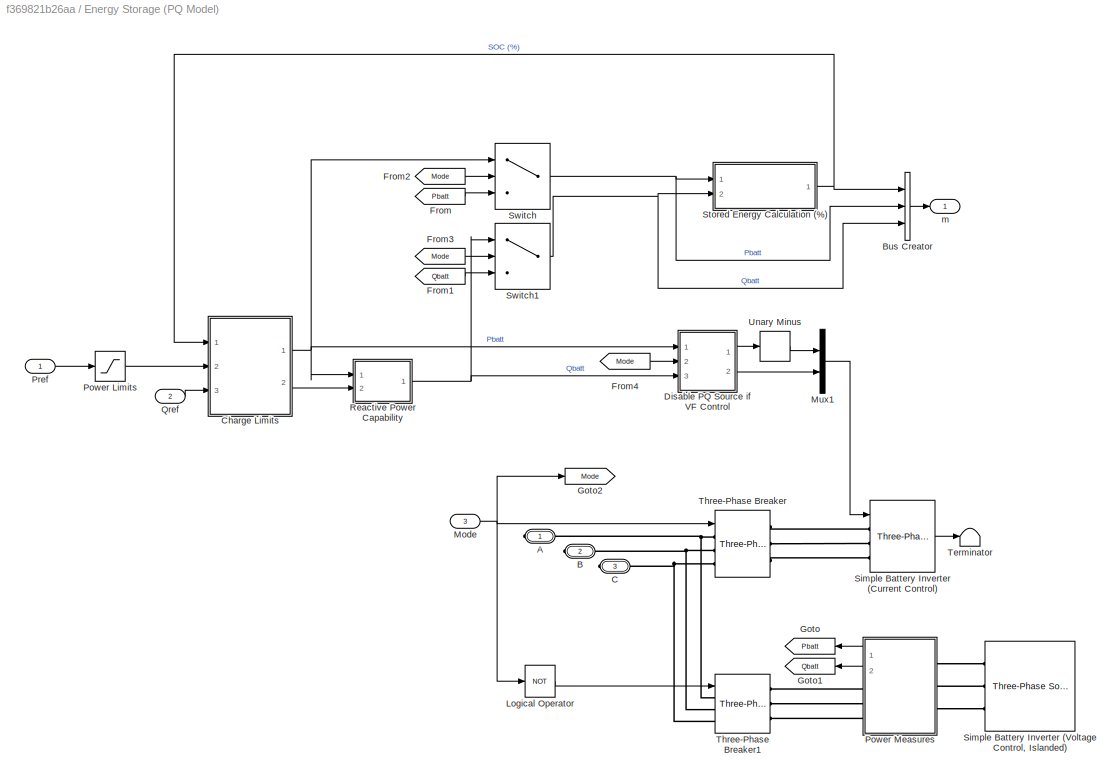
BLOCK [SubSystem] Energy Storage (PQ Model)
  Ports = [3, 1, 0, 0, 0, 0, 3]
  RequestExecContextInheritance = off
BLOCK [PMIOPort] Energy Storage (PQ Model)/A
  Side = Right
BLOCK [PMIOPort] Energy Storage (PQ Model)/B
  Port = 2
  Side = Right
BLOCK [BusCreator] Energy Storage (PQ Model)/Bus Creator
  DisplayOption = bar
  InheritFromInputs = on
  Inputs = 3
  Ports = [3, 1]
BLOCK [PMIOPort] Energy Storage (PQ Model)/C
  Port = 3
  Side = Right
BLOCK [SubSystem] Energy Storage (PQ Model)/Charge Limits
  Ports = [3, 2]
  RequestExecContextInheritance = off
BLOCK [SubSystem] Energy Storage (PQ Model)/Charge Limits/Overcharge Check
  Ports = [3, 2]
  RequestExecContextInheritance = off
BLOCK [Backlash] Energy Storage (PQ Model)/Charge Limits/Overcharge Check/Backlash
  BacklashWidth = 1e-3
  InitialOutput = Initial_kWh_pc
  InputProcessing = Elements as channels (sample based)
  ZeroCross = off
BLOCK [Reference] Energy Storage (PQ Model)/Charge Limits/Overcharge Check/Compare To Constant  REF=simulink/Logic and Bit
Operations/Compare
To Constant
  Ports = [1, 1]
  SourceBlock = simulink/Logic and Bit\nOperations/Compare\nTo Constant
  SourceProductBaseCode = SL
  SourceProductName = Simulink
  SourceType = Compare To Constant
BLOCK [Reference] Energy Storage (PQ Model)/Charge Limits/Overcharge Check/Compare To Zero  REF=simulink/Logic and Bit
Operations/Compare
To Zero
  Ports = [1, 1]
  SourceBlock = simulink/Logic and Bit\nOperations/Compare\nTo Zero
  SourceProductBaseCode = SL
  SourceProductName = Simulink
  SourceType = Compare To Zero
BLOCK [Constant] Energy Storage (PQ Model)/Charge Limits/Overcharge Check/Constant
  Value = 0
BLOCK [Constant] Energy Storage (PQ Model)/Charge Limits/Overcharge Check/Constant1
  Value = 0
BLOCK [Logic] Energy Storage (PQ Model)/Charge Limits/Overcharge Check/Logical Operator
  AllPortsSameDT = off
  OutDataTypeStr = boolean
  Ports = [2, 1]
BLOCK [Inport] Energy Storage (PQ Model)/Charge Limits/Overcharge Check/Pin
  IconDisplay = Port number
  Port = 2
BLOCK [Outport] Energy Storage (PQ Model)/Charge Limits/Overcharge Check/Pout
  IconDisplay = Port number
BLOCK [Inport] Energy Storage (PQ Model)/Charge Limits/Overcharge Check/Qin
  IconDisplay = Port number
  Port = 3
BLOCK [Outport] Energy Storage (PQ Model)/Charge Limits/Overcharge Check/Qout
  IconDisplay = Port number
  Port = 2
BLOCK [Inport] Energy Storage (PQ Model)/Charge Limits/Overcharge Check/SOC (%)
  IconDisplay = Port number
BLOCK [Switch] Energy Storage (PQ Model)/Charge Limits/Overcharge Check/Switch
  Criteria = u2 ~= 0
  InputSameDT = off
  SaturateOnIntegerOverflow = off
BLOCK [Switch] Energy Storage (PQ Model)/Charge Limits/Overcharge Check/Switch1
  Criteria = u2 ~= 0
  InputSameDT = off
  SaturateOnIntegerOverflow = off
BLOCK [Outport] Energy Storage (PQ Model)/Charge Limits/Pbatt
  IconDisplay = Port number
BLOCK [Inport] Energy Storage (PQ Model)/Charge Limits/Pin
  IconDisplay = Port number
  Port = 2
BLOCK [Outport] Energy Storage (PQ Model)/Charge Limits/Qbatt
  IconDisplay = Port number
  Port = 2
BLOCK [Inport] Energy Storage (PQ Model)/Charge Limits/Qin
  IconDisplay = Port number
  Port = 3
BLOCK [Inport] Energy Storage (PQ Model)/Charge Limits/SOC (%)
  IconDisplay = Port number
BLOCK [SubSystem] Energy Storage (PQ Model)/Charge Limits/Undercharge Check
  Ports = [3, 2]
  RequestExecContextInheritance = off
BLOCK [Backlash] Energy Storage (PQ Model)/Charge Limits/Undercharge Check/Backlash
  BacklashWidth = 1e-3
  InitialOutput = Initial_kWh_pc
  InputProcessing = Elements as channels (sample based)
  ZeroCross = off
BLOCK [Reference] Energy Storage (PQ Model)/Charge Limits/Undercharge Check/Compare To Constant1  REF=simulink/Logic and Bit
Operations/Compare
To Constant
  Ports = [1, 1]
  SourceBlock = simulink/Logic and Bit\nOperations/Compare\nTo Constant
  SourceProductBaseCode = SL
  SourceProductName = Simulink
  SourceType = Compare To Constant
BLOCK [Reference] Energy Storage (PQ Model)/Charge Limits/Undercharge Check/Compare To Zero  REF=simulink/Logic and Bit
Operations/Compare
To Zero
  Ports = [1, 1]
  SourceBlock = simulink/Logic and Bit\nOperations/Compare\nTo Zero
  SourceProductBaseCode = SL
  SourceProductName = Simulink
  SourceType = Compare To Zero
BLOCK [Constant] Energy Storage (PQ Model)/Charge Limits/Undercharge Check/Constant
  Value = 0
BLOCK [Constant] Energy Storage (PQ Model)/Charge Limits/Undercharge Check/Constant1
  Value = 0
BLOCK [Constant] Energy Storage (PQ Model)/Charge Limits/Undercharge Check/Constant2
  Value = 0
BLOCK [Constant] Energy Storage (PQ Model)/Charge Limits/Undercharge Check/Constant3
  Value = 0
BLOCK [Constant] Energy Storage (PQ Model)/Charge Limits/Undercharge Check/Constant4
  Value = autoRecharge
BLOCK [InitialCondition] Energy Storage (PQ Model)/Charge Limits/Undercharge Check/IC
  Value = RechargeSOC
BLOCK [Logic] Energy Storage (PQ Model)/Charge Limits/Undercharge Check/Logical Operator
  AllPortsSameDT = off
  OutDataTypeStr = boolean
  Ports = [2, 1]
BLOCK [Inport] Energy Storage (PQ Model)/Charge Limits/Undercharge Check/Pin
  IconDisplay = Port number
  Port = 2
BLOCK [Outport] Energy Storage (PQ Model)/Charge Limits/Undercharge Check/Pout
  IconDisplay = Port number
BLOCK [Inport] Energy Storage (PQ Model)/Charge Limits/Undercharge Check/Qin
  IconDisplay = Port number
  Port = 3
BLOCK [Outport] Energy Storage (PQ Model)/Charge Limits/Undercharge Check/Qout
  IconDisplay = Port number
  Port = 2
BLOCK [Relay] Energy Storage (PQ Model)/Charge Limits/Undercharge Check/Relay
  InputProcessing = Elements as channels (sample based)
  OffOutputValue = -Precharge/100*Pnom
  OffSwitchValue = LowChrgLim
  OnOutputValue = 0
  OnSwitchValue = RechargeSOC
BLOCK [Inport] Energy Storage (PQ Model)/Charge Limits/Undercharge Check/SOC (%)
  IconDisplay = Port number
BLOCK [Switch] Energy Storage (PQ Model)/Charge Limits/Undercharge Check/Switch
  Criteria = u2 ~= 0
  InputSameDT = off
  SaturateOnIntegerOverflow = off
BLOCK [Switch] Energy Storage (PQ Model)/Charge Limits/Undercharge Check/Switch1
  Criteria = u2 ~= 0
  InputSameDT = off
  SaturateOnIntegerOverflow = off
BLOCK [Switch] Energy Storage (PQ Model)/Charge Limits/Undercharge Check/Switch2
  Criteria = u2 ~= 0
  InputSameDT = off
  SaturateOnIntegerOverflow = off
BLOCK [Switch] Energy Storage (PQ Model)/Charge Limits/Undercharge Check/Switch3
  Criteria = u2 ~= 0
  InputSameDT = off
  SaturateOnIntegerOverflow = off
BLOCK [Switch] Energy Storage (PQ Model)/Charge Limits/Undercharge Check/Switch4
  Criteria = u2 ~= 0
  InputSameDT = off
  SaturateOnIntegerOverflow = off
BLOCK [SubSystem] Energy Storage (PQ Model)/Disable PQ Source if VF Control
  Ports = [3, 2]
  RequestExecContextInheritance = off
BLOCK [Constant] Energy Storage (PQ Model)/Disable PQ Source if VF Control/Constant
  Value = 0
BLOCK [Constant] Energy Storage (PQ Model)/Disable PQ Source if VF Control/Constant1
  Value = 0
BLOCK [Inport] Energy Storage (PQ Model)/Disable PQ Source if VF Control/Mode
  IconDisplay = Port number
  Port = 2
BLOCK [Outport] Energy Storage (PQ Model)/Disable PQ Source if VF Control/Pbatt
  IconDisplay = Port number
BLOCK [Inport] Energy Storage (PQ Model)/Disable PQ Source if VF Control/Pdes
  IconDisplay = Port number
BLOCK [Outport] Energy Storage (PQ Model)/Disable PQ Source if VF Control/Qbatt
  IconDisplay = Port number
  Port = 2
BLOCK [Inport] Energy Storage (PQ Model)/Disable PQ Source if VF Control/Qdes
  IconDisplay = Port number
  Port = 3
BLOCK [Switch] Energy Storage (PQ Model)/Disable PQ Source if VF Control/Switch2
  Criteria = u2 > Threshold
  InputSameDT = off
  SaturateOnIntegerOverflow = off
BLOCK [Switch] Energy Storage (PQ Model)/Disable PQ Source if VF Control/Switch3
  Criteria = u2 > Threshold
  InputSameDT = off
  SaturateOnIntegerOverflow = off
BLOCK [From] Energy Storage (PQ Model)/From
  GotoTag = Pbatt
BLOCK [From] Energy Storage (PQ Model)/From1
  GotoTag = Qbatt
BLOCK [From] Energy Storage (PQ Model)/From2
  GotoTag = Mode
BLOCK [From] Energy Storage (PQ Model)/From3
  GotoTag = Mode
BLOCK [From] Energy Storage (PQ Model)/From4
  GotoTag = Mode
BLOCK [Goto] Energy Storage (PQ Model)/Goto
  GotoTag = Pbatt
BLOCK [Goto] Energy Storage (PQ Model)/Goto1
  GotoTag = Qbatt
BLOCK [Goto] Energy Storage (PQ Model)/Goto2
  GotoTag = Mode
BLOCK [Logic] Energy Storage (PQ Model)/Logical Operator
  AllPortsSameDT = off
  Operator = NOT
  OutDataTypeStr = boolean
  Ports = [1, 1]
BLOCK [Inport] Energy Storage (PQ Model)/Mode
  IconDisplay = Port number
  Port = 3
BLOCK [Mux] Energy Storage (PQ Model)/Mux1
  DisplayOption = bar
  Inputs = 2
  Ports = [2, 1]
BLOCK [Saturate] Energy Storage (PQ Model)/Power Limits
  InputPortMap = u0
  LowerLimit = -Pnom
  Ports = [1, 1]
  UpperLimit = Pnom
BLOCK [SubSystem] Energy Storage (PQ Model)/Power Measures
  LabelModeActiveChoice = Phasor
  Ports = [0, 2, 0, 0, 0, 3, 3]
  RequestExecContextInheritance = off
  Variant = on
  VariantControlMode = Label
BLOCK [PMIOPort] Energy Storage (PQ Model)/Power Measures/A
  Side = Left
BLOCK [PMIOPort] Energy Storage (PQ Model)/Power Measures/B
  Port = 3
  Side = Left
BLOCK [PMIOPort] Energy Storage (PQ Model)/Power Measures/C
  Port = 5
  Side = Left
BLOCK [SubSystem] Energy Storage (PQ Model)/Power Measures/EMT
  Ports = [0, 2, 0, 0, 0, 3, 3]
  RequestExecContextInheritance = off
  VariantControl = EMT
BLOCK [PMIOPort] Energy Storage (PQ Model)/Power Measures/EMT/A
  Side = Left
BLOCK [PMIOPort] Energy Storage (PQ Model)/Power Measures/EMT/B
  Port = 3
  Side = Left
BLOCK [PMIOPort] Energy Storage (PQ Model)/Power Measures/EMT/C
  Port = 5
  Side = Left
BLOCK [Outport] Energy Storage (PQ Model)/Power Measures/EMT/P
  IconDisplay = Port number
BLOCK [Reference] Energy Storage (PQ Model)/Power Measures/EMT/Power (3ph, Instantaneous)  REF=powerlib_meascontrol/Measurements/Power
(3ph, Instantaneous)
  Ports = [2, 2]
  SourceBlock = powerlib_meascontrol/Measurements/Power\n(3ph, Instantaneous)
  SourceProductBaseCode = PS
  SourceProductName = Simscape Electrical
  SourceType = Power (3ph, Instantaneous)
BLOCK [Outport] Energy Storage (PQ Model)/Power Measures/EMT/Q
  IconDisplay = Port number
  Port = 2
BLOCK [Reference] Energy Storage (PQ Model)/Power Measures/EMT/Three-Phase V-I Measurement  REF=powerlib/Measurements/Three-Phase
V-I Measurement
  Ports = [0, 2, 0, 0, 0, 3, 3]
  SourceBlock = powerlib/Measurements/Three-Phase\nV-I Measurement
  SourceProductBaseCode = PS
  SourceProductName = Simscape Electrical
  SourceType = Three-Phase VI Measurement
BLOCK [PMIOPort] Energy Storage (PQ Model)/Power Measures/EMT/a
  Port = 2
  Side = Right
BLOCK [PMIOPort] Energy Storage (PQ Model)/Power Measures/EMT/b
  Port = 4
  Side = Right
BLOCK [PMIOPort] Energy Storage (PQ Model)/Power Measures/EMT/c
  Port = 6
  Side = Right
BLOCK [Outport] Energy Storage (PQ Model)/Power Measures/P
  IconDisplay = Port number
BLOCK [SubSystem] Energy Storage (PQ Model)/Power Measures/Phasor
  Ports = [0, 2, 0, 0, 0, 3, 3]
  RequestExecContextInheritance = off
  VariantControl = Phasor
BLOCK [PMIOPort] Energy Storage (PQ Model)/Power Measures/Phasor/A
  Side = Left
BLOCK [PMIOPort] Energy Storage (PQ Model)/Power Measures/Phasor/B
  Port = 3
  Side = Left
BLOCK [PMIOPort] Energy Storage (PQ Model)/Power Measures/Phasor/C
  Port = 5
  Side = Left
BLOCK [Outport] Energy Storage (PQ Model)/Power Measures/Phasor/P
  IconDisplay = Port number
BLOCK [Reference] Energy Storage (PQ Model)/Power Measures/Phasor/Power (3ph, Phasor)  REF=powerlib_meascontrol/Measurements/Power
(3ph, Phasor)
  Ports = [2, 2]
  SourceBlock = powerlib_meascontrol/Measurements/Power\n(3ph, Phasor)
  SourceProductBaseCode = PS
  SourceProductName = Simscape Electrical
  SourceType = Power (3ph, Phasor)
BLOCK [Outport] Energy Storage (PQ Model)/Power Measures/Phasor/Q
  IconDisplay = Port number
  Port = 2
BLOCK [Reference] Energy Storage (PQ Model)/Power Measures/Phasor/Three-Phase V-I Measurement  REF=powerlib/Measurements/Three-Phase
V-I Measurement
  Ports = [0, 2, 0, 0, 0, 3, 3]
  SourceBlock = powerlib/Measurements/Three-Phase\nV-I Measurement
  SourceProductBaseCode = PS
  SourceProductName = Simscape Electrical
  SourceType = Three-Phase VI Measurement
BLOCK [PMIOPort] Energy Storage (PQ Model)/Power Measures/Phasor/a
  Port = 2
  Side = Right
BLOCK [PMIOPort] Energy Storage (PQ Model)/Power Measures/Phasor/b
  Port = 4
  Side = Right
BLOCK [PMIOPort] Energy Storage (PQ Model)/Power Measures/Phasor/c
  Port = 6
  Side = Right
BLOCK [Outport] Energy Storage (PQ Model)/Power Measures/Q
  IconDisplay = Port number
  Port = 2
BLOCK [PMIOPort] Energy Storage (PQ Model)/Power Measures/a
  Port = 2
  Side = Right
BLOCK [PMIOPort] Energy Storage (PQ Model)/Power Measures/b
  Port = 4
  Side = Right
BLOCK [PMIOPort] Energy Storage (PQ Model)/Power Measures/c
  Port = 6
  Side = Right
BLOCK [Inport] Energy Storage (PQ Model)/Pref
  IconDisplay = Port number
BLOCK [Inport] Energy Storage (PQ Model)/Qref
  IconDisplay = Port number
  Port = 2
BLOCK [SubSystem] Energy Storage (PQ Model)/Reactive Power Capability
  Ports = [2, 1]
  RequestExecContextInheritance = off
BLOCK [Constant] Energy Storage (PQ Model)/Reactive Power Capability/Constant
  Value = Pnom
BLOCK [Math] Energy Storage (PQ Model)/Reactive Power Capability/Math Function
  Operator = square
  Ports = [1, 1]
BLOCK [Math] Energy Storage (PQ Model)/Reactive Power Capability/Math Function1
  Operator = square
  Ports = [1, 1]
BLOCK [Inport] Energy Storage (PQ Model)/Reactive Power Capability/Pin
  IconDisplay = Port number
BLOCK [Inport] Energy Storage (PQ Model)/Reactive Power Capability/Qin
  IconDisplay = Port number
  Port = 2
BLOCK [Outport] Energy Storage (PQ Model)/Reactive Power Capability/Qout
  IconDisplay = Port number
BLOCK [Reference] Energy Storage (PQ Model)/Reactive Power Capability/Saturation Dynamic  REF=simulink/Discontinuities/Saturation
Dynamic
  Ports = [3, 1]
  SourceBlock = simulink/Discontinuities/Saturation\nDynamic
  SourceProductBaseCode = SL
  SourceProductName = Simulink
  SourceType = Saturation Dynamic
BLOCK [Sqrt] Energy Storage (PQ Model)/Reactive Power Capability/Sqrt
BLOCK [Sum] Energy Storage (PQ Model)/Reactive Power Capability/Sum
  IconShape = round
  InputSameDT = off
  Inputs = -+|
  OutDataTypeStr = Inherit: Inherit via internal rule
  Ports = [2, 1]
  SaturateOnIntegerOverflow = off
BLOCK [UnaryMinus] Energy Storage (PQ Model)/Reactive Power Capability/Unary Minus
BLOCK [Reference] Energy Storage (PQ Model)/Simple Battery Inverter (Current Control)  REF=powerlib/Elements/Three-Phase
Dynamic Load
  Ports = [1, 1, 0, 0, 0, 3]
  SourceBlock = powerlib/Elements/Three-Phase\nDynamic Load
  SourceProductBaseCode = PS
  SourceProductName = Simscape Electrical
  SourceType = Three-Phase Dynamic Load
BLOCK [Reference] Energy Storage (PQ Model)/Simple Battery Inverter (Voltage Control, Islanded)  REF=powerlib/Electrical
Sources/Three-Phase Source
  Ports = [0, 0, 0, 0, 0, 0, 3]
  SourceBlock = powerlib/Electrical\nSources/Three-Phase Source
  SourceProductBaseCode = PS
  SourceProductName = Simscape Electrical
  SourceType = Three-Phase Source
BLOCK [SubSystem] Energy Storage (PQ Model)/Stored Energy Calculation (%)
  Ports = [2, 1]
  RequestExecContextInheritance = off
BLOCK [Gain] Energy Storage (PQ Model)/Stored Energy Calculation (%)/Charge
  Gain = Efficiency/100
  OutDataTypeStr = Inherit: Inherit via internal rule
  ParamDataTypeStr = Inherit: Inherit via internal rule
  SaturateOnIntegerOverflow = off
BLOCK [Reference] Energy Storage (PQ Model)/Stored Energy Calculation (%)/Compare To Zero  REF=simulink/Logic and Bit
Operations/Compare
To Zero
  Ports = [1, 1]
  SourceBlock = simulink/Logic and Bit\nOperations/Compare\nTo Zero
  SourceProductBaseCode = SL
  SourceProductName = Simulink
  SourceType = Compare To Zero
BLOCK [Constant] Energy Storage (PQ Model)/Stored Energy Calculation (%)/Constant
  Value = kWh_Rated
BLOCK [Gain] Energy Storage (PQ Model)/Stored Energy Calculation (%)/Discharge
  Gain = 1/(Efficiency/100)
  OutDataTypeStr = Inherit: Inherit via internal rule
  ParamDataTypeStr = Inherit: Inherit via internal rule
  SaturateOnIntegerOverflow = off
BLOCK [Product] Energy Storage (PQ Model)/Stored Energy Calculation (%)/Divide
  InputSameDT = off
  Inputs = */
  OutDataTypeStr = Inherit: Inherit via internal rule
  Ports = [2, 1]
  RndMeth = Floor
  SaturateOnIntegerOverflow = off
BLOCK [Gain] Energy Storage (PQ Model)/Stored Energy Calculation (%)/Gain3
  Gain = 1/3600/1e3
  OutDataTypeStr = Inherit: Inherit via internal rule
  ParamDataTypeStr = Inherit: Inherit via internal rule
  SaturateOnIntegerOverflow = off
BLOCK [Gain] Energy Storage (PQ Model)/Stored Energy Calculation (%)/Gain5
  Gain = -1
  OutDataTypeStr = Inherit: Inherit via internal rule
  ParamDataTypeStr = Inherit: Inherit via internal rule
  SaturateOnIntegerOverflow = off
BLOCK [Integrator] Energy Storage (PQ Model)/Stored Energy Calculation (%)/Integrator
  InitialCondition = (Initial_kWh_pc/100)*kWh_Rated*3600*1e3
  Ports = [1, 1]
BLOCK [Math] Energy Storage (PQ Model)/Stored Energy Calculation (%)/Math Function1
  Operator = square
  Ports = [1, 1]
BLOCK [Math] Energy Storage (PQ Model)/Stored Energy Calculation (%)/Math Function2
  Operator = square
  Ports = [1, 1]
BLOCK [Inport] Energy Storage (PQ Model)/Stored Energy Calculation (%)/Pin
  IconDisplay = Port number
BLOCK [Product] Energy Storage (PQ Model)/Stored Energy Calculation (%)/Product
  InputSameDT = off
  OutDataTypeStr = Inherit: Inherit via internal rule
  Ports = [2, 1]
  RndMeth = Floor
  SaturateOnIntegerOverflow = off
BLOCK [Inport] Energy Storage (PQ Model)/Stored Energy Calculation (%)/Qin
  IconDisplay = Port number
  Port = 2
BLOCK [Outport] Energy Storage (PQ Model)/Stored Energy Calculation (%)/SE%
  IconDisplay = Port number
BLOCK [Signum] Energy Storage (PQ Model)/Stored Energy Calculation (%)/Sign
BLOCK [Sqrt] Energy Storage (PQ Model)/Stored Energy Calculation (%)/Sqrt
BLOCK [Sum] Energy Storage (PQ Model)/Stored Energy Calculation (%)/Sum
  IconShape = round
  InputSameDT = off
  Inputs = |++
  OutDataTypeStr = Inherit: Inherit via internal rule
  Ports = [2, 1]
  SaturateOnIntegerOverflow = off
BLOCK [Switch] Energy Storage (PQ Model)/Stored Energy Calculation (%)/Switch1
  Criteria = u2 ~= 0
  InputSameDT = off
  SaturateOnIntegerOverflow = off
BLOCK [TransferFcn] Energy Storage (PQ Model)/Stored Energy Calculation (%)/Transfer Fcn
  Denominator = [1 1]
BLOCK [Gain] Energy Storage (PQ Model)/Stored Energy Calculation (%)/to %
  Gain = 100
  OutDataTypeStr = Inherit: Inherit via internal rule
  ParamDataTypeStr = Inherit: Inherit via internal rule
  SaturateOnIntegerOverflow = off
BLOCK [Switch] Energy Storage (PQ Model)/Switch
  Criteria = u2 > Threshold
  InputSameDT = off
  SaturateOnIntegerOverflow = off
BLOCK [Switch] Energy Storage (PQ Model)/Switch1
  Criteria = u2 > Threshold
  InputSameDT = off
  SaturateOnIntegerOverflow = off
BLOCK [Terminator] Energy Storage (PQ Model)/Terminator
BLOCK [Reference] Energy Storage (PQ Model)/Three-Phase Breaker  REF=powerlib/Elements/Three-Phase Breaker
  Ports = [1, 0, 0, 0, 0, 3, 3]
  SourceBlock = powerlib/Elements/Three-Phase Breaker
  SourceProductBaseCode = PS
  SourceProductName = Simscape Electrical
  SourceType = Three-Phase Breaker
BLOCK [Reference] Energy Storage (PQ Model)/Three-Phase Breaker1  REF=powerlib/Elements/Three-Phase Breaker
  Ports = [1, 0, 0, 0, 0, 3, 3]
  SourceBlock = powerlib/Elements/Three-Phase Breaker
  SourceProductBaseCode = PS
  SourceProductName = Simscape Electrical
  SourceType = Three-Phase Breaker
BLOCK [UnaryMinus] Energy Storage (PQ Model)/Unary Minus
BLOCK [Outport] Energy Storage (PQ Model)/m
  IconDisplay = Port number
BLOCK [SubSystem] Fault 
  CloseFcn = sps_rtmsupport('CloseFcn',gcbh);
  CopyFcn = sps_rtmsupport('CopyFcn',gcbh);
  DeleteFcn = sps_rtmsupport('DeleteFcn',gcbh);
  DialogController = POWERSYS.PowerSysDialog
  LoadFcn = sps_rtmsupport('LoadFcn',gcbh);
  ModelCloseFcn = sps_rtmsupport('ModelCloseFcn',gcbh);
  NameChangeFcn = sps_rtmsupport('NameChangeFcn',gcbh);
  OpenFcn = sps_rtmsupport('OpenFcn',gcbh, [ 2 3 4 5 7 13]);
  Ports = [1, 0, 0, 0, 0, 3]
  PostSaveFcn = sps_rtmsupport('PostSaveFcn',gcbh);
  PreCopyFcn = sps_rtmsupport('PreCopyFcn',gcbh);
  PreDeleteFcn = sps_rtmsupport('PreDeleteFcn',gcbh);
  PreSaveFcn = sps_rtmsupport('PreSaveFcn',gcbh);
  RequestExecContextInheritance = off
  StartFcn = sps_rtmsupport('StartFcn',gcbh);
  StopFcn = sps_rtmsupport('StopFcn',gcbh);
  UndoDeleteFcn = sps_rtmsupport('UndoDeleteFcn',gcbh);
BLOCK [PMIOPort] Fault /A
  Side = Left
BLOCK [PMIOPort] Fault /B
  Port = 2
  Side = Left
BLOCK [PMIOPort] Fault /C
  Port = 3
  Side = Left
BLOCK [Constant] Fault /C4
  Value = External
BLOCK [Constant] Fault /Constant1
  Value = FaultA
BLOCK [Constant] Fault /Constant2
  Value = FaultB
BLOCK [Constant] Fault /Constant3
  Value = FaultC
BLOCK [DataTypeConversion] Fault /Data Type Conversion
  OutDataTypeStr = boolean
BLOCK [DataTypeConversion] Fault /Data Type Conversion1
  OutDataTypeStr = boolean
BLOCK [DataTypeConversion] Fault /Data Type Conversion2
  OutDataTypeStr = boolean
BLOCK [DataTypeConversion] Fault /Data Type Conversion3
  OutDataTypeStr = boolean
BLOCK [DataTypeConversion] Fault /Data Type Conversion4
  OutDataTypeStr = double
BLOCK [DataTypeConversion] Fault /Data Type Conversion5
  OutDataTypeStr = double
BLOCK [DataTypeConversion] Fault /Data Type Conversion6
  OutDataTypeStr = double
BLOCK [SubSystem] Fault /Fault A
  CloseFcn = sps_rtmsupport('CloseFcn',gcbh);
  CopyFcn = sps_rtmsupport('CopyFcn',gcbh); powericon('SwitchesCopyFcn','Breaker',gcb)
  DeleteFcn = sps_rtmsupport('DeleteFcn',gcbh);
  DialogController = POWERSYS.PowerSysDialog
  LoadFcn = sps_rtmsupport('LoadFcn',gcbh);
  ModelCloseFcn = sps_rtmsupport('ModelCloseFcn',gcbh);
  NameChangeFcn = sps_rtmsupport('NameChangeFcn',gcbh);
  OpenFcn = sps_rtmsupport('OpenFcn',gcbh, [3 7 8 9]);
  Ports = [1, 0, 0, 0, 0, 1, 1]
  PostSaveFcn = sps_rtmsupport('PostSaveFcn',gcbh);
  PreCopyFcn = sps_rtmsupport('PreCopyFcn',gcbh);
  PreDeleteFcn = sps_rtmsupport('PreDeleteFcn',gcbh);
  PreSaveFcn = sps_rtmsupport('PreSaveFcn',gcbh);
  RequestExecContextInheritance = off
  StartFcn = sps_rtmsupport('StartFcn',gcbh);
  StopFcn = sps_rtmsupport('StopFcn',gcbh);
  UndoDeleteFcn = sps_rtmsupport('UndoDeleteFcn',gcbh);
BLOCK [PMIOPort] Fault /Fault A/1
  Side = Left
BLOCK [PMIOPort] Fault /Fault A/2
  Port = 2
  Side = Right
BLOCK [PMComponent] Fault /Fault A/Breaker
  LConnTagsString = a
  LeftPortType = p1
  PhysicalDomain = powersysdomain
  Ports = [0, 0, 0, 0, 0, 1, 1]
  RConnTagsString = __new0
  RightPortType = p1
BLOCK [Goto] Fault /Fault A/Goto
  GotoTag = LibraryTag
  TagVisibility = global
BLOCK [Terminator] Fault /Fault A/ITAIL
BLOCK [SubSystem] Fault /Fault A/Model
  Ports = [2, 1]
  RequestExecContextInheritance = off
BLOCK [Constant] Fault /Fault A/Model/C4
  Value = BR.com
BLOCK [DataTypeConversion] Fault /Fault A/Model/Data Type Conversion
  OutDataTypeStr = double
BLOCK [Switch] Fault /Fault A/Model/Switch3
  SaturateOnIntegerOverflow = off
  Threshold = 0.5
  ZeroCross = off
BLOCK [Terminator] Fault /Fault A/Model/This signal is not used
BLOCK [SubSystem] Fault /Fault A/Model/Timer
  DialogController = POWERSYS.PowerSysDialog
  Ports = [0, 1]
  RequestExecContextInheritance = off
BLOCK [Derivative] Fault /Fault A/Model/Timer/Derivative
  Commented = on
BLOCK [DigitalClock] Fault /Fault A/Model/Timer/Digital Clock
  SampleTime = Ts
BLOCK [HitCross] Fault /Fault A/Model/Timer/Hit Crossing
  Commented = on
  Ports = [1]
  ShowOutputPort = off
BLOCK [Lookup] Fault /Fault A/Model/Timer/Look-Up Table
  InputValues = tv
  Table = opv
BLOCK [Outport] Fault /Fault A/Model/Timer/Out
  IconDisplay = Port number
BLOCK [Inport] Fault /Fault A/Model/Uswitch
  IconDisplay = Port number
  Port = 2
BLOCK [Outport] Fault /Fault A/Model/gate
  IconDisplay = Port number
BLOCK [Inport] Fault /Fault A/Model/gate 
  IconDisplay = Port number
BLOCK [From] Fault /Fault A/Status
  CloseFcn = tagdialog Close
  GotoTag = LibraryTag
  TagVisibility = global
BLOCK [From] Fault /Fault A/Uswitch
  CloseFcn = tagdialog Close
  GotoTag = LibraryTag
  TagVisibility = global
BLOCK [Inport] Fault /Fault A/c
  IconDisplay = Port number
BLOCK [SubSystem] Fault /Fault B
  CloseFcn = sps_rtmsupport('CloseFcn',gcbh);
  CopyFcn = sps_rtmsupport('CopyFcn',gcbh); powericon('SwitchesCopyFcn','Breaker',gcb)
  DeleteFcn = sps_rtmsupport('DeleteFcn',gcbh);
  DialogController = POWERSYS.PowerSysDialog
  LoadFcn = sps_rtmsupport('LoadFcn',gcbh);
  ModelCloseFcn = sps_rtmsupport('ModelCloseFcn',gcbh);
  NameChangeFcn = sps_rtmsupport('NameChangeFcn',gcbh);
  OpenFcn = sps_rtmsupport('OpenFcn',gcbh, [3 7 8 9]);
  Ports = [1, 0, 0, 0, 0, 1, 1]
  PostSaveFcn = sps_rtmsupport('PostSaveFcn',gcbh);
  PreCopyFcn = sps_rtmsupport('PreCopyFcn',gcbh);
  PreDeleteFcn = sps_rtmsupport('PreDeleteFcn',gcbh);
  PreSaveFcn = sps_rtmsupport('PreSaveFcn',gcbh);
  RequestExecContextInheritance = off
  StartFcn = sps_rtmsupport('StartFcn',gcbh);
  StopFcn = sps_rtmsupport('StopFcn',gcbh);
  UndoDeleteFcn = sps_rtmsupport('UndoDeleteFcn',gcbh);
BLOCK [PMIOPort] Fault /Fault B/1
  Side = Left
BLOCK [PMIOPort] Fault /Fault B/2
  Port = 2
  Side = Right
BLOCK [PMComponent] Fault /Fault B/Breaker
  LConnTagsString = a
  LeftPortType = p1
  PhysicalDomain = powersysdomain
  Ports = [0, 0, 0, 0, 0, 1, 1]
  RConnTagsString = __new0
  RightPortType = p1
BLOCK [Goto] Fault /Fault B/Goto
  GotoTag = LibraryTag
  TagVisibility = global
BLOCK [Terminator] Fault /Fault B/ITAIL
BLOCK [SubSystem] Fault /Fault B/Model
  Ports = [2, 1]
  RequestExecContextInheritance = off
BLOCK [Constant] Fault /Fault B/Model/C4
  Value = BR.com
BLOCK [DataTypeConversion] Fault /Fault B/Model/Data Type Conversion
  OutDataTypeStr = double
BLOCK [Switch] Fault /Fault B/Model/Switch3
  SaturateOnIntegerOverflow = off
  Threshold = 0.5
  ZeroCross = off
BLOCK [Terminator] Fault /Fault B/Model/This signal is not used
BLOCK [SubSystem] Fault /Fault B/Model/Timer
  DialogController = POWERSYS.PowerSysDialog
  Ports = [0, 1]
  RequestExecContextInheritance = off
BLOCK [Derivative] Fault /Fault B/Model/Timer/Derivative
  Commented = on
BLOCK [DigitalClock] Fault /Fault B/Model/Timer/Digital Clock
  SampleTime = Ts
BLOCK [HitCross] Fault /Fault B/Model/Timer/Hit Crossing
  Commented = on
  Ports = [1]
  ShowOutputPort = off
BLOCK [Lookup] Fault /Fault B/Model/Timer/Look-Up Table
  InputValues = tv
  Table = opv
BLOCK [Outport] Fault /Fault B/Model/Timer/Out
  IconDisplay = Port number
BLOCK [Inport] Fault /Fault B/Model/Uswitch
  IconDisplay = Port number
  Port = 2
BLOCK [Outport] Fault /Fault B/Model/gate
  IconDisplay = Port number
BLOCK [Inport] Fault /Fault B/Model/gate 
  IconDisplay = Port number
BLOCK [From] Fault /Fault B/Status
  CloseFcn = tagdialog Close
  GotoTag = LibraryTag
  TagVisibility = global
BLOCK [From] Fault /Fault B/Uswitch
  CloseFcn = tagdialog Close
  GotoTag = LibraryTag
  TagVisibility = global
BLOCK [Inport] Fault /Fault B/c
  IconDisplay = Port number
BLOCK [SubSystem] Fault /Fault C
  CloseFcn = sps_rtmsupport('CloseFcn',gcbh);
  CopyFcn = sps_rtmsupport('CopyFcn',gcbh); powericon('SwitchesCopyFcn','Breaker',gcb)
  DeleteFcn = sps_rtmsupport('DeleteFcn',gcbh);
  DialogController = POWERSYS.PowerSysDialog
  LoadFcn = sps_rtmsupport('LoadFcn',gcbh);
  ModelCloseFcn = sps_rtmsupport('ModelCloseFcn',gcbh);
  NameChangeFcn = sps_rtmsupport('NameChangeFcn',gcbh);
  OpenFcn = sps_rtmsupport('OpenFcn',gcbh, [3 7 8 9]);
  Ports = [1, 0, 0, 0, 0, 1, 1]
  PostSaveFcn = sps_rtmsupport('PostSaveFcn',gcbh);
  PreCopyFcn = sps_rtmsupport('PreCopyFcn',gcbh);
  PreDeleteFcn = sps_rtmsupport('PreDeleteFcn',gcbh);
  PreSaveFcn = sps_rtmsupport('PreSaveFcn',gcbh);
  RequestExecContextInheritance = off
  StartFcn = sps_rtmsupport('StartFcn',gcbh);
  StopFcn = sps_rtmsupport('StopFcn',gcbh);
  UndoDeleteFcn = sps_rtmsupport('UndoDeleteFcn',gcbh);
BLOCK [PMIOPort] Fault /Fault C/1
  Side = Left
BLOCK [PMIOPort] Fault /Fault C/2
  Port = 2
  Side = Right
BLOCK [PMComponent] Fault /Fault C/Breaker
  LConnTagsString = a
  LeftPortType = p1
  PhysicalDomain = powersysdomain
  Ports = [0, 0, 0, 0, 0, 1, 1]
  RConnTagsString = __new0
  RightPortType = p1
BLOCK [Goto] Fault /Fault C/Goto
  GotoTag = LibraryTag
  TagVisibility = global
BLOCK [Terminator] Fault /Fault C/ITAIL
BLOCK [SubSystem] Fault /Fault C/Model
  Ports = [2, 1]
  RequestExecContextInheritance = off
BLOCK [Constant] Fault /Fault C/Model/C4
  Value = BR.com
BLOCK [DataTypeConversion] Fault /Fault C/Model/Data Type Conversion
  OutDataTypeStr = double
BLOCK [Switch] Fault /Fault C/Model/Switch3
  SaturateOnIntegerOverflow = off
  Threshold = 0.5
  ZeroCross = off
BLOCK [Terminator] Fault /Fault C/Model/This signal is not used
BLOCK [SubSystem] Fault /Fault C/Model/Timer
  DialogController = POWERSYS.PowerSysDialog
  Ports = [0, 1]
  RequestExecContextInheritance = off
BLOCK [Derivative] Fault /Fault C/Model/Timer/Derivative
  Commented = on
BLOCK [DigitalClock] Fault /Fault C/Model/Timer/Digital Clock
  SampleTime = Ts
BLOCK [HitCross] Fault /Fault C/Model/Timer/Hit Crossing
  Commented = on
  Ports = [1]
  ShowOutputPort = off
BLOCK [Lookup] Fault /Fault C/Model/Timer/Look-Up Table
  InputValues = tv
  Table = opv
BLOCK [Outport] Fault /Fault C/Model/Timer/Out
  IconDisplay = Port number
BLOCK [Inport] Fault /Fault C/Model/Uswitch
  IconDisplay = Port number
  Port = 2
BLOCK [Outport] Fault /Fault C/Model/gate
  IconDisplay = Port number
BLOCK [Inport] Fault /Fault C/Model/gate 
  IconDisplay = Port number
BLOCK [From] Fault /Fault C/Status
  CloseFcn = tagdialog Close
  GotoTag = LibraryTag
  TagVisibility = global
BLOCK [From] Fault /Fault C/Uswitch
  CloseFcn = tagdialog Close
  GotoTag = LibraryTag
  TagVisibility = global
BLOCK [Inport] Fault /Fault C/c
  IconDisplay = Port number
BLOCK [Reference] Fault /Ground1  REF=powerlib/Elements/Ground
  Ports = [0, 0, 0, 0, 0, 1]
  SourceBlock = powerlib/Elements/Ground
  SourceProductBaseCode = PS
  SourceProductName = Simscape Electrical
  SourceType = Ground
BLOCK [Logic] Fault /Logical Operator1
  Ports = [2, 1]
BLOCK [Logic] Fault /Logical Operator2
  Ports = [2, 1]
BLOCK [Logic] Fault /Logical Operator3
  Ports = [2, 1]
BLOCK [Reference] Fault /Rground  REF=powerlib/Elements/Series RLC Branch
  Ports = [0, 0, 0, 0, 0, 1, 1]
  SourceBlock = powerlib/Elements/Series RLC Branch
  SourceProductBaseCode = PS
  SourceProductName = Simscape Electrical
  SourceType = Series RLC Branch
BLOCK [Reference] Fault /Stair Generator  REF=powerlib_meascontrol/Pulse & Signal
Generators/Stair
Generator
  Ports = [0, 1]
  SourceBlock = powerlib_meascontrol/Pulse & Signal\nGenerators/Stair\nGenerator
  SourceProductBaseCode = PS
  SourceProductName = Simscape Electrical
  SourceType = Stair Generator
BLOCK [Switch] Fault /Switch3
  SaturateOnIntegerOverflow = off
  Threshold = 0.5
  ZeroCross = off
BLOCK [PMComponent] Fault /ThreePhaseFault
  LConnTagsString = A|B|C
  LeftPortType = p1
  PhysicalDomain = powersysdomain
  Ports = [0, 0, 0, 0, 0, 3]
  RightPortType = p1
BLOCK [Inport] Fault /com
  IconDisplay = Port number
BLOCK [SubSystem] Grid-Connected Battery (EMT with Simple Controls)
  Ports = [1, 1, 0, 0, 0, 0, 3]
  RequestExecContextInheritance = off
BLOCK [PMIOPort] Grid-Connected Battery (EMT with Simple Controls)/A
  Side = Right
BLOCK [PMIOPort] Grid-Connected Battery (EMT with Simple Controls)/B
  Port = 2
  Side = Right
BLOCK [Reference] Grid-Connected Battery (EMT with Simple Controls)/Battery  REF=electricdrivelib/Extra Sources/Battery
  Ports = [0, 1, 0, 0, 0, 2]
  SourceBlock = electricdrivelib/Extra Sources/Battery
  SourceProductBaseCode = PS
  SourceProductName = Simscape Electrical
  SourceType = Battery
BLOCK [SubSystem] Grid-Connected Battery (EMT with Simple Controls)/Battery Controller
  Ports = [2, 1]
  RequestExecContextInheritance = off
  SystemSampleTime = Ts
BLOCK [SubSystem] Grid-Connected Battery (EMT with Simple Controls)/Battery Controller/Compute PQ
  Ports = [1, 1]
  RequestExecContextInheritance = off
BLOCK [BusSelector] Grid-Connected Battery (EMT with Simple Controls)/Battery Controller/Compute PQ/Bus Selector
  OutputAsBus = off
  OutputSignals = Vabc,Iabc
  Ports = [1, 2]
BLOCK [Mux] Grid-Connected Battery (EMT with Simple Controls)/Battery Controller/Compute PQ/Mux
  DisplayOption = bar
  Inputs = 2
  Ports = [2, 1]
BLOCK [Outport] Grid-Connected Battery (EMT with Simple Controls)/Battery Controller/Compute PQ/PQm
  IconDisplay = Port number
BLOCK [Reference] Grid-Connected Battery (EMT with Simple Controls)/Battery Controller/Compute PQ/Power (3ph, Instantaneous)  REF=powerlib_meascontrol/Measurements/Power
(3ph, Instantaneous)
  Ports = [2, 2]
  SourceBlock = powerlib_meascontrol/Measurements/Power\n(3ph, Instantaneous)
  SourceProductBaseCode = PS
  SourceProductName = Simscape Electrical
  SourceType = Power (3ph, Instantaneous)
BLOCK [Inport] Grid-Connected Battery (EMT with Simple Controls)/Battery Controller/Compute PQ/m
  IconDisplay = Port number
BLOCK [Gain] Grid-Connected Battery (EMT with Simple Controls)/Battery Controller/Compute PQ/to PU
  Gain = 1/Pnom
  OutDataTypeStr = Inherit: Inherit via internal rule
  ParamDataTypeStr = Inherit: Inherit via internal rule
  SaturateOnIntegerOverflow = off
BLOCK [Gain] Grid-Connected Battery (EMT with Simple Controls)/Battery Controller/Compute PQ/to PU 
  Gain = 1/Pnom
  OutDataTypeStr = Inherit: Inherit via internal rule
  ParamDataTypeStr = Inherit: Inherit via internal rule
  SaturateOnIntegerOverflow = off
BLOCK [Outport] Grid-Connected Battery (EMT with Simple Controls)/Battery Controller/Idq_ref
  IconDisplay = Port number
BLOCK [SubSystem] Grid-Connected Battery (EMT with Simple Controls)/Battery Controller/P,Q Control 
  Ports = [2, 1]
  RequestExecContextInheritance = off
  TreatAsAtomicUnit = on
BLOCK [Reference] Grid-Connected Battery (EMT with Simple Controls)/Battery Controller/P,Q Control /Active Controller  REF=simulink/Continuous/PID Controller
  Ports = [1, 1]
  SourceBlock = simulink/Continuous/PID Controller
  SourceProductBaseCode = SL
  SourceProductName = Simulink
  SourceType = PID 1dof
BLOCK [Demux] Grid-Connected Battery (EMT with Simple Controls)/Battery Controller/P,Q Control /Demux
  DisplayOption = bar
  Outputs = 2
  Ports = [1, 2]
BLOCK [Demux] Grid-Connected Battery (EMT with Simple Controls)/Battery Controller/P,Q Control /Demux1
  DisplayOption = bar
  Outputs = 2
  Ports = [1, 2]
BLOCK [Outport] Grid-Connected Battery (EMT with Simple Controls)/Battery Controller/P,Q Control /Idq_ref
  IconDisplay = Port number
BLOCK [Mux] Grid-Connected Battery (EMT with Simple Controls)/Battery Controller/P,Q Control /Mux
  DisplayOption = bar
  Inputs = 2
  Ports = [2, 1]
BLOCK [Inport] Grid-Connected Battery (EMT with Simple Controls)/Battery Controller/P,Q Control /PQref
  IconDisplay = Port number
BLOCK [Reference] Grid-Connected Battery (EMT with Simple Controls)/Battery Controller/P,Q Control /Reactive Controller  REF=simulink/Continuous/PID Controller
  Ports = [1, 1]
  SourceBlock = simulink/Continuous/PID Controller
  SourceProductBaseCode = SL
  SourceProductName = Simulink
  SourceType = PID 1dof
BLOCK [Sum] Grid-Connected Battery (EMT with Simple Controls)/Battery Controller/P,Q Control /Sum
  IconShape = round
  InputSameDT = off
  Inputs = |+-
  OutDataTypeStr = Inherit: Inherit via internal rule
  Ports = [2, 1]
  SaturateOnIntegerOverflow = off
BLOCK [Sum] Grid-Connected Battery (EMT with Simple Controls)/Battery Controller/P,Q Control /Sum1
  IconShape = round
  InputSameDT = off
  Inputs = |-+
  OutDataTypeStr = Inherit: Inherit via internal rule
  Ports = [2, 1]
  SaturateOnIntegerOverflow = off
BLOCK [Inport] Grid-Connected Battery (EMT with Simple Controls)/Battery Controller/P,Q Control /m
  IconDisplay = Port number
  Port = 2
BLOCK [Inport] Grid-Connected Battery (EMT with Simple Controls)/Battery Controller/PQref
  IconDisplay = Port number
  Port = 2
BLOCK [Inport] Grid-Connected Battery (EMT with Simple Controls)/Battery Controller/m
  IconDisplay = Port number
BLOCK [Gain] Grid-Connected Battery (EMT with Simple Controls)/Battery Controller/to PU
  Gain = 1/Pnom
  OutDataTypeStr = Inherit: Inherit via internal rule
  ParamDataTypeStr = Inherit: Inherit via internal rule
  SaturateOnIntegerOverflow = off
BLOCK [BusSelector] Grid-Connected Battery (EMT with Simple Controls)/Bus Selector
  OutputAsBus = off
  OutputSignals = Vabc,Iabc
  Ports = [1, 2]
BLOCK [PMIOPort] Grid-Connected Battery (EMT with Simple Controls)/C
  Port = 3
  Side = Right
BLOCK [SubSystem] Grid-Connected Battery (EMT with Simple Controls)/DC Link
  Ports = [0, 0, 0, 0, 0, 2, 3]
  RequestExecContextInheritance = off
BLOCK [Reference] Grid-Connected Battery (EMT with Simple Controls)/DC Link/C1  REF=powerlib/Elements/Series RLC Branch
  AttributesFormatString = \n
  Ports = [0, 0, 0, 0, 0, 1, 1]
  SourceBlock = powerlib/Elements/Series RLC Branch
  SourceProductBaseCode = PS
  SourceProductName = Simscape Electrical
  SourceType = Series RLC Branch
BLOCK [Reference] Grid-Connected Battery (EMT with Simple Controls)/DC Link/C2  REF=powerlib/Elements/Series RLC Branch
  AttributesFormatString = \n
  Ports = [0, 0, 0, 0, 0, 1, 1]
  SourceBlock = powerlib/Elements/Series RLC Branch
  SourceProductBaseCode = PS
  SourceProductName = Simscape Electrical
  SourceType = Series RLC Branch
BLOCK [PMIOPort] Grid-Connected Battery (EMT with Simple Controls)/DC Link/Inv+
  Port = 3
  Side = Right
BLOCK [PMIOPort] Grid-Connected Battery (EMT with Simple Controls)/DC Link/Inv--
  Port = 5
  Side = Right
BLOCK [PMIOPort] Grid-Connected Battery (EMT with Simple Controls)/DC Link/N
  Port = 4
  Side = Right
BLOCK [PMIOPort] Grid-Connected Battery (EMT with Simple Controls)/DC Link/PV+
  Side = Left
BLOCK [PMIOPort] Grid-Connected Battery (EMT with Simple Controls)/DC Link/PV--
  Port = 2
  Side = Left
BLOCK [From] Grid-Connected Battery (EMT with Simple Controls)/From1
  GotoTag = m_batt
BLOCK [From] Grid-Connected Battery (EMT with Simple Controls)/From2
  GotoTag = m_inv
BLOCK [From] Grid-Connected Battery (EMT with Simple Controls)/From5
  GotoTag = m_inv
BLOCK [Goto] Grid-Connected Battery (EMT with Simple Controls)/Goto
  GotoTag = m_inv
BLOCK [Goto] Grid-Connected Battery (EMT with Simple Controls)/Goto1
  GotoTag = m_batt
BLOCK [SubSystem] Grid-Connected Battery (EMT with Simple Controls)/Grid Inverter
  Ports = [1, 1, 0, 0, 0, 3, 3]
  RequestExecContextInheritance = off
BLOCK [Reference] Grid-Connected Battery (EMT with Simple Controls)/Grid Inverter/10 kvar  REF=powerlib/Elements/Three-Phase
Series RLC Load
  AttributesFormatString = \n
  Ports = [0, 0, 0, 0, 0, 3]
  SourceBlock = powerlib/Elements/Three-Phase\nSeries RLC Load
  SourceProductBaseCode = PS
  SourceProductName = Simscape Electrical
  SourceType = Three-Phase Series RLC Load
BLOCK [Reference] Grid-Connected Battery (EMT with Simple Controls)/Grid Inverter/100 kVA 260V // 25 kV  REF=powerlib/Elements/Three-Phase
Transformer
(Two Windings)
  AttributesFormatString = \n
  Ports = [0, 0, 0, 0, 0, 3, 3]
  SourceBlock = powerlib/Elements/Three-Phase\nTransformer\n(Two Windings)
  SourceProductBaseCode = PS
  SourceProductName = Simscape Electrical
  SourceType = Three-Phase Transformer (Two Windings)
BLOCK [PMIOPort] Grid-Connected Battery (EMT with Simple Controls)/Grid Inverter/A
  Port = 4
  Side = Right
BLOCK [PMIOPort] Grid-Connected Battery (EMT with Simple Controls)/Grid Inverter/B
  Port = 5
  Side = Right
BLOCK [Reference] Grid-Connected Battery (EMT with Simple Controls)/Grid Inverter/B1  REF=powerlib/Measurements/Three-Phase
V-I Measurement
  Ports = [0, 2, 0, 0, 0, 3, 3]
  SourceBlock = powerlib/Measurements/Three-Phase\nV-I Measurement
  SourceProductBaseCode = PS
  SourceProductName = Simscape Electrical
  SourceType = Three-Phase VI Measurement
BLOCK [BusCreator] Grid-Connected Battery (EMT with Simple Controls)/Grid Inverter/Bus Creator
  DisplayOption = bar
  InheritFromInputs = on
  Inputs = 2
  Ports = [2, 1]
BLOCK [PMIOPort] Grid-Connected Battery (EMT with Simple Controls)/Grid Inverter/C
  Port = 6
  Side = Right
BLOCK [Ground] Grid-Connected Battery (EMT with Simple Controls)/Grid Inverter/Ground
BLOCK [PMIOPort] Grid-Connected Battery (EMT with Simple Controls)/Grid Inverter/Inv+
  Side = Left
BLOCK [PMIOPort] Grid-Connected Battery (EMT with Simple Controls)/Grid Inverter/Inv--
  Port = 3
  Side = Left
BLOCK [Reference] Grid-Connected Battery (EMT with Simple Controls)/Grid Inverter/L  REF=powerlib/Elements/Three-Phase
Series RLC Branch
  AttributesFormatString = \n
  Ports = [0, 0, 0, 0, 0, 3, 3]
  SourceBlock = powerlib/Elements/Three-Phase\nSeries RLC Branch
  SourceProductBaseCode = PS
  SourceProductName = Simscape Electrical
  SourceType = Three-Phase Series RLC Branch
BLOCK [PMIOPort] Grid-Connected Battery (EMT with Simple Controls)/Grid Inverter/N
  Port = 2
  Side = Left
BLOCK [Reference] Grid-Connected Battery (EMT with Simple Controls)/Grid Inverter/Three-Level NPC Converter  REF=powerlib/Power
Electronics/Three-Level
NPC Converter
  Ports = [2, 0, 0, 0, 0, 3, 3]
  SourceBlock = powerlib/Power\nElectronics/Three-Level\nNPC Converter
  SourceProductBaseCode = PS
  SourceProductName = Simscape Electrical
  SourceType = Three-Level NPC Converter
BLOCK [Inport] Grid-Connected Battery (EMT with Simple Controls)/Grid Inverter/Uref
  IconDisplay = Port number
BLOCK [Outport] Grid-Connected Battery (EMT with Simple Controls)/Grid Inverter/m
  IconDisplay = Port number
BLOCK [SubSystem] Grid-Connected Battery (EMT with Simple Controls)/Inverter Control
  Ports = [3, 1]
  RequestExecContextInheritance = off
BLOCK [SubSystem] Grid-Connected Battery (EMT with Simple Controls)/Inverter Control/Current Control
  Ports = [4, 1]
  RequestExecContextInheritance = off
  TreatAsAtomicUnit = on
BLOCK [SubSystem] Grid-Connected Battery (EMT with Simple Controls)/Inverter Control/Current Control/Current Regulator
  Ports = [3, 1]
  RequestExecContextInheritance = off
BLOCK [Sum] Grid-Connected Battery (EMT with Simple Controls)/Inverter Control/Current Control/Current Regulator/Add1
  InputSameDT = off
  Inputs = ++-
  OutDataTypeStr = Inherit: Inherit via internal rule
  Ports = [3, 1]
  SaturateOnIntegerOverflow = off
BLOCK [Sum] Grid-Connected Battery (EMT with Simple Controls)/Inverter Control/Current Control/Current Regulator/Add2
  InputSameDT = off
  OutDataTypeStr = Inherit: Inherit via internal rule
  Ports = [2, 1]
  SaturateOnIntegerOverflow = off
BLOCK [Sum] Grid-Connected Battery (EMT with Simple Controls)/Inverter Control/Current Control/Current Regulator/Add3
  InputSameDT = off
  Inputs = +++
  OutDataTypeStr = Inherit: Inherit via internal rule
  Ports = [3, 1]
  SaturateOnIntegerOverflow = off
BLOCK [Demux] Grid-Connected Battery (EMT with Simple Controls)/Inverter Control/Current Control/Current Regulator/Demux
  DisplayOption = bar
  Outputs = 2
  Ports = [1, 2]
BLOCK [Demux] Grid-Connected Battery (EMT with Simple Controls)/Inverter Control/Current Control/Current Regulator/Demux1
  DisplayOption = bar
  Outputs = 2
  Ports = [1, 2]
BLOCK [Inport] Grid-Connected Battery (EMT with Simple Controls)/Inverter Control/Current Control/Current Regulator/IdIq_meas
  IconDisplay = Port number
  Port = 2
  PortDimensions = 2
BLOCK [Inport] Grid-Connected Battery (EMT with Simple Controls)/Inverter Control/Current Control/Current Regulator/IdIq_ref
  IconDisplay = Port number
  Port = 3
  PortDimensions = 2
BLOCK [Gain] Grid-Connected Battery (EMT with Simple Controls)/Inverter Control/Current Control/Current Regulator/Lff
  Gain = Ltot_pu
BLOCK [Gain] Grid-Connected Battery (EMT with Simple Controls)/Inverter Control/Current Control/Current Regulator/Lff  
  Gain = Ltot_pu
BLOCK [Mux] Grid-Connected Battery (EMT with Simple Controls)/Inverter Control/Current Control/Current Regulator/Mux
  DisplayOption = bar
  Inputs = 2
  Ports = [2, 1]
BLOCK [Reference] Grid-Connected Battery (EMT with Simple Controls)/Inverter Control/Current Control/Current Regulator/PI  REF=simulink/Continuous/PID Controller
  Ports = [1, 1]
  SourceBlock = simulink/Continuous/PID Controller
  SourceProductBaseCode = SL
  SourceProductName = Simulink
  SourceType = PID 1dof
BLOCK [Gain] Grid-Connected Battery (EMT with Simple Controls)/Inverter Control/Current Control/Current Regulator/Rff
  Gain = Rtot_pu
BLOCK [Gain] Grid-Connected Battery (EMT with Simple Controls)/Inverter Control/Current Control/Current Regulator/Rff 
  Gain = Rtot_pu
BLOCK [Saturate] Grid-Connected Battery (EMT with Simple Controls)/Inverter Control/Current Control/Current Regulator/Saturation
  InputPortMap = u0
  LowerLimit = -1.5
  Ports = [1, 1]
  UpperLimit = 1.5
BLOCK [Scope] Grid-Connected Battery (EMT with Simple Controls)/Inverter Control/Current Control/Current Regulator/Scope
  Floating = off
  NumInputPorts = 2
  Ports = [2]
  ScopeSpecificationString = Simulink.scopes.TimeScopeBlockCfg('CurrentConfiguration', extmgr.ConfigurationSet(extmgr.Configuration('Core','General UI',true),extmgr.Configuration('Core','Source UI',true),extmgr.Configuration('Sources','WiredSimulink',true,'DataLoggingVariableName','ScopeData1'),extmgr.Configuration('Visuals','Time Domain',true,'SerializedDisplays',{struct('MinYLimReal','-3.26171','MaxYLimReal','2.08514','YLab...<+2035ch>
BLOCK [Sum] Grid-Connected Battery (EMT with Simple Controls)/Inverter Control/Current Control/Current Regulator/Sum
  IconShape = round
  InputSameDT = off
  Inputs = |-+
  OutDataTypeStr = Inherit: Inherit via internal rule
  Ports = [2, 1]
  SaturateOnIntegerOverflow = off
BLOCK [Outport] Grid-Connected Battery (EMT with Simple Controls)/Inverter Control/Current Control/Current Regulator/VdVq_conv
  IconDisplay = Port number
BLOCK [Inport] Grid-Connected Battery (EMT with Simple Controls)/Inverter Control/Current Control/Current Regulator/VdVq_meas
  IconDisplay = Port number
  PortDimensions = 2
BLOCK [Inport] Grid-Connected Battery (EMT with Simple Controls)/Inverter Control/Current Control/IdIq_meas
  IconDisplay = Port number
  Port = 3
  PortDimensions = 2
BLOCK [Inport] Grid-Connected Battery (EMT with Simple Controls)/Inverter Control/Current Control/IdIq_ref
  IconDisplay = Port number
  Port = 4
  PortDimensions = 2
BLOCK [Outport] Grid-Connected Battery (EMT with Simple Controls)/Inverter Control/Current Control/Uabc
  IconDisplay = Port number
BLOCK [SubSystem] Grid-Connected Battery (EMT with Simple Controls)/Inverter Control/Current Control/Uabc_ref Generation max (m) = 1
  Ports = [2, 1]
  RequestExecContextInheritance = off
BLOCK [Sum] Grid-Connected Battery (EMT with Simple Controls)/Inverter Control/Current Control/Uabc_ref Generation max (m) = 1/Add1
  InputSameDT = off
  Inputs = ++++
  OutDataTypeStr = Inherit: Inherit via internal rule
  Ports = [4, 1]
  SaturateOnIntegerOverflow = off
BLOCK [Sum] Grid-Connected Battery (EMT with Simple Controls)/Inverter Control/Current Control/Uabc_ref Generation max (m) = 1/Add2
  InputSameDT = off
  OutDataTypeStr = Inherit: Inherit via internal rule
  Ports = [2, 1]
  SaturateOnIntegerOverflow = off
BLOCK [ComplexToMagnitudeAngle] Grid-Connected Battery (EMT with Simple Controls)/Inverter Control/Current Control/Uabc_ref Generation max (m) = 1/Complex to Magnitude-Angle
  Ports = [1, 2]
BLOCK [Constant] Grid-Connected Battery (EMT with Simple Controls)/Inverter Control/Current Control/Uabc_ref Generation max (m) = 1/Constant
  Value = -pi/6
BLOCK [Constant] Grid-Connected Battery (EMT with Simple Controls)/Inverter Control/Current Control/Uabc_ref Generation max (m) = 1/Constant1
  Value = Vnom_dc
BLOCK [Constant] Grid-Connected Battery (EMT with Simple Controls)/Inverter Control/Current Control/Uabc_ref Generation max (m) = 1/Constant2
  Value = [ 0  -2*pi/3  2*pi/3  ]
BLOCK [Constant] Grid-Connected Battery (EMT with Simple Controls)/Inverter Control/Current Control/Uabc_ref Generation max (m) = 1/Constant3
  Value = Vnom_sec*sqrt(2)/sqrt(3)
BLOCK [Constant] Grid-Connected Battery (EMT with Simple Controls)/Inverter Control/Current Control/Uabc_ref Generation max (m) = 1/Constant4
  Value = Ts_Control*Fnom*(2*pi)
BLOCK [Demux] Grid-Connected Battery (EMT with Simple Controls)/Inverter Control/Current Control/Uabc_ref Generation max (m) = 1/Demux1
  DisplayOption = bar
  Outputs = 2
  Ports = [1, 2]
BLOCK [Gain] Grid-Connected Battery (EMT with Simple Controls)/Inverter Control/Current Control/Uabc_ref Generation max (m) = 1/Gain1
  Gain = 1/2
  OutDataTypeStr = Inherit: Inherit via internal rule
  ParamDataTypeStr = Inherit: Inherit via internal rule
  SaturateOnIntegerOverflow = off
BLOCK [Product] Grid-Connected Battery (EMT with Simple Controls)/Inverter Control/Current Control/Uabc_ref Generation max (m) = 1/Product
  InputSameDT = off
  Inputs = */
  OutDataTypeStr = Inherit: Inherit via internal rule
  Ports = [2, 1]
  SaturateOnIntegerOverflow = off
BLOCK [Product] Grid-Connected Battery (EMT with Simple Controls)/Inverter Control/Current Control/Uabc_ref Generation max (m) = 1/Product1
  InputSameDT = off
  Inputs = */
  OutDataTypeStr = Inherit: Inherit via internal rule
  Ports = [2, 1]
  SaturateOnIntegerOverflow = off
BLOCK [Product] Grid-Connected Battery (EMT with Simple Controls)/Inverter Control/Current Control/Uabc_ref Generation max (m) = 1/Product2
  InputSameDT = off
  Inputs = **
  OutDataTypeStr = Inherit: Inherit via internal rule
  Ports = [2, 1]
  SaturateOnIntegerOverflow = off
BLOCK [RealImagToComplex] Grid-Connected Battery (EMT with Simple Controls)/Inverter Control/Current Control/Uabc_ref Generation max (m) = 1/Real-Imag to Complex
  Ports = [2, 1]
BLOCK [Trigonometry] Grid-Connected Battery (EMT with Simple Controls)/Inverter Control/Current Control/Uabc_ref Generation max (m) = 1/Trigonometric Function
  Ports = [1, 1]
BLOCK [Outport] Grid-Connected Battery (EMT with Simple Controls)/Inverter Control/Current Control/Uabc_ref Generation max (m) = 1/Uabc_ref
  IconDisplay = Port number
BLOCK [Inport] Grid-Connected Battery (EMT with Simple Controls)/Inverter Control/Current Control/Uabc_ref Generation max (m) = 1/VdVq_conv
  IconDisplay = Port number
  Port = 2
BLOCK [Inport] Grid-Connected Battery (EMT with Simple Controls)/Inverter Control/Current Control/Uabc_ref Generation max (m) = 1/wt
  IconDisplay = Port number
BLOCK [Inport] Grid-Connected Battery (EMT with Simple Controls)/Inverter Control/Current Control/VdVq_meas
  IconDisplay = Port number
  Port = 2
  PortDimensions = 2
BLOCK [Inport] Grid-Connected Battery (EMT with Simple Controls)/Inverter Control/Current Control/wt
  IconDisplay = Port number
BLOCK [Inport] Grid-Connected Battery (EMT with Simple Controls)/Inverter Control/Iabc_prim
  IconDisplay = Port number
  Port = 2
  PortDimensions = 3
BLOCK [Inport] Grid-Connected Battery (EMT with Simple Controls)/Inverter Control/Idq_ref
  IconDisplay = Port number
  Port = 3
BLOCK [Reference] Grid-Connected Battery (EMT with Simple Controls)/Inverter Control/Overmodulation  REF=powerlib_meascontrol/Pulse & Signal
Generators/Overmodulation
  Ports = [1, 1]
  SourceBlock = powerlib_meascontrol/Pulse & Signal\nGenerators/Overmodulation
  SourceProductBaseCode = PS
  SourceProductName = Simscape Electrical
  SourceType = Overmodulation
BLOCK [SubSystem] Grid-Connected Battery (EMT with Simple Controls)/Inverter Control/PLL & Measurements
  Ports = [2, 3]
  RequestExecContextInheritance = off
BLOCK [Inport] Grid-Connected Battery (EMT with Simple Controls)/Inverter Control/PLL & Measurements/Iabc_prim
  IconDisplay = Port number
  Port = 2
BLOCK [Outport] Grid-Connected Battery (EMT with Simple Controls)/Inverter Control/PLL & Measurements/IdIq_prim
  IconDisplay = Port number
  Port = 3
BLOCK [Reference] Grid-Connected Battery (EMT with Simple Controls)/Inverter Control/PLL & Measurements/PLL (3ph)  REF=powerlib_meascontrol/PLL/PLL
(3ph)
  Ports = [1, 2]
  SourceBlock = powerlib_meascontrol/PLL/PLL\n(3ph)
  SourceProductBaseCode = PS
  SourceProductName = Simscape Electrical
  SourceType = PLL (3ph)
BLOCK [Selector] Grid-Connected Battery (EMT with Simple Controls)/Inverter Control/PLL & Measurements/Selector1
  IndexOptions = Index vector (dialog)
  Indices = [1 2]
  InputPortWidth = 3
  OutputSizes = 1
  Ports = [1, 1]
BLOCK [Selector] Grid-Connected Battery (EMT with Simple Controls)/Inverter Control/PLL & Measurements/Selector2
  IndexOptions = Index vector (dialog)
  Indices = [1 2]
  InputPortWidth = 3
  OutputSizes = 1
  Ports = [1, 1]
BLOCK [Terminator] Grid-Connected Battery (EMT with Simple Controls)/Inverter Control/PLL & Measurements/Terminator
BLOCK [Gain] Grid-Connected Battery (EMT with Simple Controls)/Inverter Control/PLL & Measurements/V->pu
  Gain = 1/(Vnom_prim*sqrt(2)/sqrt(3))
BLOCK [Gain] Grid-Connected Battery (EMT with Simple Controls)/Inverter Control/PLL & Measurements/V->pu1
  Gain = Vnom_prim*sqrt(3)/Pnom/sqrt(2)
BLOCK [Inport] Grid-Connected Battery (EMT with Simple Controls)/Inverter Control/PLL & Measurements/Vabc_prim
  IconDisplay = Port number
BLOCK [Outport] Grid-Connected Battery (EMT with Simple Controls)/Inverter Control/PLL & Measurements/VdVq_prim
  IconDisplay = Port number
  Port = 2
BLOCK [Reference] Grid-Connected Battery (EMT with Simple Controls)/Inverter Control/PLL & Measurements/abc to dq0  REF=powerlib_meascontrol/Transformations/abc to dq0
  Ports = [2, 1]
  SourceBlock = powerlib_meascontrol/Transformations/abc to dq0
  SourceProductBaseCode = PS
  SourceProductName = Simscape Electrical
  SourceType = abc to dq0 Transformation
BLOCK [Reference] Grid-Connected Battery (EMT with Simple Controls)/Inverter Control/PLL & Measurements/abc to dq1  REF=powerlib_meascontrol/Transformations/abc to dq0
  Ports = [2, 1]
  SourceBlock = powerlib_meascontrol/Transformations/abc to dq0
  SourceProductBaseCode = PS
  SourceProductName = Simscape Electrical
  SourceType = abc to dq0 Transformation
BLOCK [Outport] Grid-Connected Battery (EMT with Simple Controls)/Inverter Control/PLL & Measurements/wt
  IconDisplay = Port number
BLOCK [UnitDelay] Grid-Connected Battery (EMT with Simple Controls)/Inverter Control/Unit Delay
  InputProcessing = Elements as channels (sample based)
  SampleTime = Ts_Control
BLOCK [Outport] Grid-Connected Battery (EMT with Simple Controls)/Inverter Control/Uref
  IconDisplay = Port number
BLOCK [Inport] Grid-Connected Battery (EMT with Simple Controls)/Inverter Control/Vabc_prim
  IconDisplay = Port number
  PortDimensions = 3
BLOCK [SubSystem] Grid-Connected Battery (EMT with Simple Controls)/Measures
  Ports = [2, 1]
  RequestExecContextInheritance = off
BLOCK [Inport] Grid-Connected Battery (EMT with Simple Controls)/Measures/Battery
  IconDisplay = Port number
  Port = 2
BLOCK [BusCreator] Grid-Connected Battery (EMT with Simple Controls)/Measures/Bus Creator
  DisplayOption = bar
  InheritFromInputs = on
  Inputs = 2
  Ports = [2, 1]
BLOCK [BusCreator] Grid-Connected Battery (EMT with Simple Controls)/Measures/Bus Creator1
  DisplayOption = bar
  InheritFromInputs = on
  Inputs = 4
  Ports = [4, 1]
BLOCK [BusSelector] Grid-Connected Battery (EMT with Simple Controls)/Measures/Bus Selector2
  OutputAsBus = off
  OutputSignals = Vabc,Iabc
  Ports = [1, 2]
BLOCK [Inport] Grid-Connected Battery (EMT with Simple Controls)/Measures/Grid
  IconDisplay = Port number
BLOCK [Reference] Grid-Connected Battery (EMT with Simple Controls)/Measures/Power (3ph, Instantaneous)  REF=powerlib_meascontrol/Measurements/Power
(3ph, Instantaneous)
  Ports = [2, 2]
  SourceBlock = powerlib_meascontrol/Measurements/Power\n(3ph, Instantaneous)
  SourceProductBaseCode = PS
  SourceProductName = Simscape Electrical
  SourceType = Power (3ph, Instantaneous)
BLOCK [Outport] Grid-Connected Battery (EMT with Simple Controls)/Measures/m
  IconDisplay = Port number
BLOCK [Inport] Grid-Connected Battery (EMT with Simple Controls)/PQref
  IconDisplay = Port number
  SampleTime = Ts_Control
BLOCK [RateTransition] Grid-Connected Battery (EMT with Simple Controls)/Rate Transition2
  OutPortSampleTime = Ts_Control
BLOCK [Outport] Grid-Connected Battery (EMT with Simple Controls)/m
  IconDisplay = Port number
BLOCK [SubSystem] Grid-Connected Battery (Multi-mode EMT Model)
  Ports = [3, 1, 0, 0, 0, 0, 3]
  RequestExecContextInheritance = off
BLOCK [PMIOPort] Grid-Connected Battery (Multi-mode EMT Model)/A
  Side = Right
BLOCK [PMIOPort] Grid-Connected Battery (Multi-mode EMT Model)/B
  Port = 2
  Side = Right
BLOCK [Reference] Grid-Connected Battery (Multi-mode EMT Model)/Battery  REF=electricdrivelib/Extra Sources/Battery
  Ports = [0, 1, 0, 0, 0, 2]
  SourceBlock = electricdrivelib/Extra Sources/Battery
  SourceProductBaseCode = PS
  SourceProductName = Simscape Electrical
  SourceType = Battery
BLOCK [SubSystem] Grid-Connected Battery (Multi-mode EMT Model)/Battery Controller
  Ports = [3, 1]
  RequestExecContextInheritance = off
  SystemSampleTime = Ts
BLOCK [BusSelector] Grid-Connected Battery (Multi-mode EMT Model)/Battery Controller/Bus Selector1
  OutputAsBus = off
  OutputSignals = ControlType
  Ports = [1, 1]
BLOCK [SubSystem] Grid-Connected Battery (Multi-mode EMT Model)/Battery Controller/Compute PQ
  Ports = [1, 1]
  RequestExecContextInheritance = off
BLOCK [BusSelector] Grid-Connected Battery (Multi-mode EMT Model)/Battery Controller/Compute PQ/Bus Selector
  OutputAsBus = off
  OutputSignals = Vabc,Iabc
  Ports = [1, 2]
BLOCK [Mux] Grid-Connected Battery (Multi-mode EMT Model)/Battery Controller/Compute PQ/Mux
  DisplayOption = bar
  Inputs = 2
  Ports = [2, 1]
BLOCK [Outport] Grid-Connected Battery (Multi-mode EMT Model)/Battery Controller/Compute PQ/PQm
  IconDisplay = Port number
BLOCK [Reference] Grid-Connected Battery (Multi-mode EMT Model)/Battery Controller/Compute PQ/Power (3ph, Instantaneous)  REF=powerlib_meascontrol/Measurements/Power
(3ph, Instantaneous)
  Ports = [2, 2]
  SourceBlock = powerlib_meascontrol/Measurements/Power\n(3ph, Instantaneous)
  SourceProductBaseCode = PS
  SourceProductName = Simscape Electrical
  SourceType = Power (3ph, Instantaneous)
BLOCK [Inport] Grid-Connected Battery (Multi-mode EMT Model)/Battery Controller/Compute PQ/m
  IconDisplay = Port number
BLOCK [Gain] Grid-Connected Battery (Multi-mode EMT Model)/Battery Controller/Compute PQ/to PU
  Gain = 1/Pnom
  OutDataTypeStr = Inherit: Inherit via internal rule
  ParamDataTypeStr = Inherit: Inherit via internal rule
  SaturateOnIntegerOverflow = off
BLOCK [Gain] Grid-Connected Battery (Multi-mode EMT Model)/Battery Controller/Compute PQ/to PU 
  Gain = 1/Pnom
  OutDataTypeStr = Inherit: Inherit via internal rule
  ParamDataTypeStr = Inherit: Inherit via internal rule
  SaturateOnIntegerOverflow = off
BLOCK [SubSystem] Grid-Connected Battery (Multi-mode EMT Model)/Battery Controller/Disable Current Control
  Ports = [0, 1, 0, 0, 0, 0, 0, 1]
  RequestExecContextInheritance = off
  TreatAsAtomicUnit = on
BLOCK [ActionPort] Grid-Connected Battery (Multi-mode EMT Model)/Battery Controller/Disable Current Control/Action Port
  InitializeStates = reset
BLOCK [Constant] Grid-Connected Battery (Multi-mode EMT Model)/Battery Controller/Disable Current Control/Id_ref
  Value = 0
BLOCK [Outport] Grid-Connected Battery (Multi-mode EMT Model)/Battery Controller/Disable Current Control/Idq_ref
  IconDisplay = Port number
BLOCK [Constant] Grid-Connected Battery (Multi-mode EMT Model)/Battery Controller/Disable Current Control/Iq_ref
  Value = 0
BLOCK [Mux] Grid-Connected Battery (Multi-mode EMT Model)/Battery Controller/Disable Current Control/Mux
  DisplayOption = bar
  Inputs = 2
  Ports = [2, 1]
BLOCK [SubSystem] Grid-Connected Battery (Multi-mode EMT Model)/Battery Controller/Frequency Control 
  Ports = [1, 1, 0, 0, 0, 0, 0, 1]
  RequestExecContextInheritance = off
  TreatAsAtomicUnit = on
BLOCK [ActionPort] Grid-Connected Battery (Multi-mode EMT Model)/Battery Controller/Frequency Control /Action Port
  InitializeStates = reset
BLOCK [Reference] Grid-Connected Battery (Multi-mode EMT Model)/Battery Controller/Frequency Control /Discrete PID Controller  REF=simulink/Continuous/PID Controller
  Ports = [1, 1]
  SourceBlock = simulink/Continuous/PID Controller
  SourceProductBaseCode = SL
  SourceProductName = Simulink
  SourceType = PID 1dof
BLOCK [Constant] Grid-Connected Battery (Multi-mode EMT Model)/Battery Controller/Frequency Control /Frequency
BLOCK [Outport] Grid-Connected Battery (Multi-mode EMT Model)/Battery Controller/Frequency Control /Idq_ref
  IconDisplay = Port number
BLOCK [Constant] Grid-Connected Battery (Multi-mode EMT Model)/Battery Controller/Frequency Control /Iq_ref
  Value = 0
BLOCK [Mux] Grid-Connected Battery (Multi-mode EMT Model)/Battery Controller/Frequency Control /Mux
  DisplayOption = bar
  Inputs = 2
  Ports = [2, 1]
BLOCK [Sum] Grid-Connected Battery (Multi-mode EMT Model)/Battery Controller/Frequency Control /Sum
  IconShape = round
  InputSameDT = off
  Inputs = |+-
  OutDataTypeStr = Inherit: Inherit via internal rule
  Ports = [2, 1]
  SaturateOnIntegerOverflow = off
BLOCK [Inport] Grid-Connected Battery (Multi-mode EMT Model)/Battery Controller/Frequency Control /m_freq
  IconDisplay = Port number
BLOCK [From] Grid-Connected Battery (Multi-mode EMT Model)/Battery Controller/From
  GotoTag = PQ_Control
BLOCK [From] Grid-Connected Battery (Multi-mode EMT Model)/Battery Controller/From1
  GotoTag = Freq_Control
BLOCK [From] Grid-Connected Battery (Multi-mode EMT Model)/Battery Controller/From2
  GotoTag = No_Current
BLOCK [From] Grid-Connected Battery (Multi-mode EMT Model)/Battery Controller/From3
  GotoTag = PLL_Freq
BLOCK [Goto] Grid-Connected Battery (Multi-mode EMT Model)/Battery Controller/Goto
  GotoTag = Freq_Control
BLOCK [Goto] Grid-Connected Battery (Multi-mode EMT Model)/Battery Controller/Goto1
  GotoTag = PQ_Control
BLOCK [Goto] Grid-Connected Battery (Multi-mode EMT Model)/Battery Controller/Goto2
  GotoTag = No_Current
BLOCK [Outport] Grid-Connected Battery (Multi-mode EMT Model)/Battery Controller/Idq_ref
  IconDisplay = Port number
BLOCK [Merge] Grid-Connected Battery (Multi-mode EMT Model)/Battery Controller/Merge
  Inputs = 3
  Ports = [3, 1]
BLOCK [Inport] Grid-Connected Battery (Multi-mode EMT Model)/Battery Controller/Mode
  IconDisplay = Port number
  Port = 3
  SampleTime = Ts_Control
BLOCK [SubSystem] Grid-Connected Battery (Multi-mode EMT Model)/Battery Controller/P,Q Control 
  Ports = [2, 1, 0, 0, 0, 0, 0, 1]
  RequestExecContextInheritance = off
  TreatAsAtomicUnit = on
BLOCK [ActionPort] Grid-Connected Battery (Multi-mode EMT Model)/Battery Controller/P,Q Control /Action Port
  InitializeStates = reset
BLOCK [Reference] Grid-Connected Battery (Multi-mode EMT Model)/Battery Controller/P,Q Control /Active Controller  REF=simulink/Continuous/PID Controller
  Ports = [1, 1]
  SourceBlock = simulink/Continuous/PID Controller
  SourceProductBaseCode = SL
  SourceProductName = Simulink
  SourceType = PID 1dof
BLOCK [Demux] Grid-Connected Battery (Multi-mode EMT Model)/Battery Controller/P,Q Control /Demux
  DisplayOption = bar
  Outputs = 2
  Ports = [1, 2]
BLOCK [Demux] Grid-Connected Battery (Multi-mode EMT Model)/Battery Controller/P,Q Control /Demux1
  DisplayOption = bar
  Outputs = 2
  Ports = [1, 2]
BLOCK [Outport] Grid-Connected Battery (Multi-mode EMT Model)/Battery Controller/P,Q Control /Idq_ref
  IconDisplay = Port number
BLOCK [Mux] Grid-Connected Battery (Multi-mode EMT Model)/Battery Controller/P,Q Control /Mux
  DisplayOption = bar
  Inputs = 2
  Ports = [2, 1]
BLOCK [Inport] Grid-Connected Battery (Multi-mode EMT Model)/Battery Controller/P,Q Control /PQref
  IconDisplay = Port number
BLOCK [Reference] Grid-Connected Battery (Multi-mode EMT Model)/Battery Controller/P,Q Control /Reactive Controller  REF=simulink/Continuous/PID Controller
  Ports = [1, 1]
  SourceBlock = simulink/Continuous/PID Controller
  SourceProductBaseCode = SL
  SourceProductName = Simulink
  SourceType = PID 1dof
BLOCK [Sum] Grid-Connected Battery (Multi-mode EMT Model)/Battery Controller/P,Q Control /Sum
  IconShape = round
  InputSameDT = off
  Inputs = |+-
  OutDataTypeStr = Inherit: Inherit via internal rule
  Ports = [2, 1]
  SaturateOnIntegerOverflow = off
BLOCK [Sum] Grid-Connected Battery (Multi-mode EMT Model)/Battery Controller/P,Q Control /Sum1
  IconShape = round
  InputSameDT = off
  Inputs = |-+
  OutDataTypeStr = Inherit: Inherit via internal rule
  Ports = [2, 1]
  SaturateOnIntegerOverflow = off
BLOCK [Inport] Grid-Connected Battery (Multi-mode EMT Model)/Battery Controller/P,Q Control /m
  IconDisplay = Port number
  Port = 2
BLOCK [Inport] Grid-Connected Battery (Multi-mode EMT Model)/Battery Controller/PQref
  IconDisplay = Port number
  Port = 2
BLOCK [SwitchCase] Grid-Connected Battery (Multi-mode EMT Model)/Battery Controller/Switch Case
  CaseConditions = {1,2}
  Ports = [1, 3]
BLOCK [Inport] Grid-Connected Battery (Multi-mode EMT Model)/Battery Controller/m
  IconDisplay = Port number
BLOCK [Gain] Grid-Connected Battery (Multi-mode EMT Model)/Battery Controller/to PU
  Gain = 1/Pnom
  OutDataTypeStr = Inherit: Inherit via internal rule
  ParamDataTypeStr = Inherit: Inherit via internal rule
  SaturateOnIntegerOverflow = off
BLOCK [BusSelector] Grid-Connected Battery (Multi-mode EMT Model)/Bus Selector
  OutputAsBus = off
  OutputSignals = Vabc,Iabc
  Ports = [1, 2]
BLOCK [PMIOPort] Grid-Connected Battery (Multi-mode EMT Model)/C
  Port = 3
  Side = Right
BLOCK [SubSystem] Grid-Connected Battery (Multi-mode EMT Model)/DC Link
  Ports = [0, 0, 0, 0, 0, 2, 3]
  RequestExecContextInheritance = off
BLOCK [Reference] Grid-Connected Battery (Multi-mode EMT Model)/DC Link/C1  REF=powerlib/Elements/Series RLC Branch
  AttributesFormatString = \n
  Ports = [0, 0, 0, 0, 0, 1, 1]
  SourceBlock = powerlib/Elements/Series RLC Branch
  SourceProductBaseCode = PS
  SourceProductName = Simscape Electrical
  SourceType = Series RLC Branch
BLOCK [Reference] Grid-Connected Battery (Multi-mode EMT Model)/DC Link/C2  REF=powerlib/Elements/Series RLC Branch
  AttributesFormatString = \n
  Ports = [0, 0, 0, 0, 0, 1, 1]
  SourceBlock = powerlib/Elements/Series RLC Branch
  SourceProductBaseCode = PS
  SourceProductName = Simscape Electrical
  SourceType = Series RLC Branch
BLOCK [PMIOPort] Grid-Connected Battery (Multi-mode EMT Model)/DC Link/Inv+
  Port = 3
  Side = Right
BLOCK [PMIOPort] Grid-Connected Battery (Multi-mode EMT Model)/DC Link/Inv--
  Port = 5
  Side = Right
BLOCK [PMIOPort] Grid-Connected Battery (Multi-mode EMT Model)/DC Link/N
  Port = 4
  Side = Right
BLOCK [PMIOPort] Grid-Connected Battery (Multi-mode EMT Model)/DC Link/PV+
  Side = Left
BLOCK [PMIOPort] Grid-Connected Battery (Multi-mode EMT Model)/DC Link/PV--
  Port = 2
  Side = Left
BLOCK [From] Grid-Connected Battery (Multi-mode EMT Model)/From1
  GotoTag = m_batt
BLOCK [From] Grid-Connected Battery (Multi-mode EMT Model)/From2
  GotoTag = m_inv
BLOCK [From] Grid-Connected Battery (Multi-mode EMT Model)/From5
  GotoTag = m_inv
BLOCK [Goto] Grid-Connected Battery (Multi-mode EMT Model)/Goto
  GotoTag = m_inv
BLOCK [GotoTagVisibility] Grid-Connected Battery (Multi-mode EMT Model)/Goto Tag Visibility
  GotoTag = PLL_Freq
BLOCK [Goto] Grid-Connected Battery (Multi-mode EMT Model)/Goto1
  GotoTag = m_batt
BLOCK [SubSystem] Grid-Connected Battery (Multi-mode EMT Model)/Grid Inverter
  Ports = [1, 1, 0, 0, 0, 3, 3]
  RequestExecContextInheritance = off
BLOCK [Reference] Grid-Connected Battery (Multi-mode EMT Model)/Grid Inverter/10 kvar  REF=powerlib/Elements/Three-Phase
Series RLC Load
  AttributesFormatString = \n
  Ports = [0, 0, 0, 0, 0, 3]
  SourceBlock = powerlib/Elements/Three-Phase\nSeries RLC Load
  SourceProductBaseCode = PS
  SourceProductName = Simscape Electrical
  SourceType = Three-Phase Series RLC Load
BLOCK [Reference] Grid-Connected Battery (Multi-mode EMT Model)/Grid Inverter/100 kVA 260V // 25 kV  REF=powerlib/Elements/Three-Phase
Transformer
(Two Windings)
  AttributesFormatString = \n
  Ports = [0, 0, 0, 0, 0, 3, 3]
  SourceBlock = powerlib/Elements/Three-Phase\nTransformer\n(Two Windings)
  SourceProductBaseCode = PS
  SourceProductName = Simscape Electrical
  SourceType = Three-Phase Transformer (Two Windings)
BLOCK [PMIOPort] Grid-Connected Battery (Multi-mode EMT Model)/Grid Inverter/A
  Port = 4
  Side = Right
BLOCK [PMIOPort] Grid-Connected Battery (Multi-mode EMT Model)/Grid Inverter/B
  Port = 5
  Side = Right
BLOCK [Reference] Grid-Connected Battery (Multi-mode EMT Model)/Grid Inverter/B1  REF=powerlib/Measurements/Three-Phase
V-I Measurement
  Ports = [0, 2, 0, 0, 0, 3, 3]
  SourceBlock = powerlib/Measurements/Three-Phase\nV-I Measurement
  SourceProductBaseCode = PS
  SourceProductName = Simscape Electrical
  SourceType = Three-Phase VI Measurement
BLOCK [BusCreator] Grid-Connected Battery (Multi-mode EMT Model)/Grid Inverter/Bus Creator
  DisplayOption = bar
  InheritFromInputs = on
  Inputs = 2
  Ports = [2, 1]
BLOCK [PMIOPort] Grid-Connected Battery (Multi-mode EMT Model)/Grid Inverter/C
  Port = 6
  Side = Right
BLOCK [Ground] Grid-Connected Battery (Multi-mode EMT Model)/Grid Inverter/Ground
BLOCK [PMIOPort] Grid-Connected Battery (Multi-mode EMT Model)/Grid Inverter/Inv+
  Side = Left
BLOCK [PMIOPort] Grid-Connected Battery (Multi-mode EMT Model)/Grid Inverter/Inv--
  Port = 3
  Side = Left
BLOCK [Reference] Grid-Connected Battery (Multi-mode EMT Model)/Grid Inverter/L  REF=powerlib/Elements/Three-Phase
Series RLC Branch
  AttributesFormatString = \n
  Ports = [0, 0, 0, 0, 0, 3, 3]
  SourceBlock = powerlib/Elements/Three-Phase\nSeries RLC Branch
  SourceProductBaseCode = PS
  SourceProductName = Simscape Electrical
  SourceType = Three-Phase Series RLC Branch
BLOCK [PMIOPort] Grid-Connected Battery (Multi-mode EMT Model)/Grid Inverter/N
  Port = 2
  Side = Left
BLOCK [Reference] Grid-Connected Battery (Multi-mode EMT Model)/Grid Inverter/Three-Level NPC Converter  REF=powerlib/Power
Electronics/Three-Level
NPC Converter
  Ports = [2, 0, 0, 0, 0, 3, 3]
  SourceBlock = powerlib/Power\nElectronics/Three-Level\nNPC Converter
  SourceProductBaseCode = PS
  SourceProductName = Simscape Electrical
  SourceType = Three-Level NPC Converter
BLOCK [Inport] Grid-Connected Battery (Multi-mode EMT Model)/Grid Inverter/Uref
  IconDisplay = Port number
BLOCK [Outport] Grid-Connected Battery (Multi-mode EMT Model)/Grid Inverter/m
  IconDisplay = Port number
BLOCK [SubSystem] Grid-Connected Battery (Multi-mode EMT Model)/Inverter Control
  Ports = [5, 1]
  RequestExecContextInheritance = off
BLOCK [Inport] Grid-Connected Battery (Multi-mode EMT Model)/Inverter Control/Batt_Mode
  IconDisplay = Port number
  Port = 4
  PortDimensions = 1
  SampleTime = Ts_Control
BLOCK [InportShadow] Grid-Connected Battery (Multi-mode EMT Model)/Inverter Control/Batt_Mode 
  IconDisplay = Port number
  Port = 4
  PortDimensions = 1
  SampleTime = Ts_Control
BLOCK [BusSelector] Grid-Connected Battery (Multi-mode EMT Model)/Inverter Control/Bus Selector1
  OutputAsBus = off
  OutputSignals = Batt_Mode.CurrOrVoltSource
  Ports = [1, 1]
BLOCK [BusSelector] Grid-Connected Battery (Multi-mode EMT Model)/Inverter Control/Bus Selector2
  OutputAsBus = off
  OutputSignals = Batt_Mode.GenOrSynchMode
  Ports = [1, 1]
BLOCK [SubSystem] Grid-Connected Battery (Multi-mode EMT Model)/Inverter Control/Compute Errors
  Ports = [1, 1]
  RequestExecContextInheritance = off
BLOCK [BusCreator] Grid-Connected Battery (Multi-mode EMT Model)/Inverter Control/Compute Errors/Bus Creator
  DisplayOption = bar
  InheritFromInputs = on
  Inputs = 2
  Ports = [2, 1]
BLOCK [BusSelector] Grid-Connected Battery (Multi-mode EMT Model)/Inverter Control/Compute Errors/Bus Selector
  OutputAsBus = off
  OutputSignals = Vgrid,Vpoc
  Ports = [1, 2]
BLOCK [Outport] Grid-Connected Battery (Multi-mode EMT Model)/Inverter Control/Compute Errors/Errors
  IconDisplay = Port number
BLOCK [Reference] Grid-Connected Battery (Multi-mode EMT Model)/Inverter Control/Compute Errors/Fourier (Grid)  REF=powerlib_meascontrol/Measurements/Fourier
  Ports = [1, 2]
  SourceBlock = powerlib_meascontrol/Measurements/Fourier
  SourceProductBaseCode = PS
  SourceProductName = Simscape Electrical
  SourceType = Fourier
BLOCK [Reference] Grid-Connected Battery (Multi-mode EMT Model)/Inverter Control/Compute Errors/Fourier (Microgrid)  REF=powerlib_meascontrol/Measurements/Fourier
  Ports = [1, 2]
  SourceBlock = powerlib_meascontrol/Measurements/Fourier
  SourceProductBaseCode = PS
  SourceProductName = Simscape Electrical
  SourceType = Fourier
BLOCK [Sum] Grid-Connected Battery (Multi-mode EMT Model)/Inverter Control/Compute Errors/Sum1
  IconShape = round
  InputSameDT = off
  Inputs = |+-
  OutDataTypeStr = Inherit: Inherit via internal rule
  Ports = [2, 1]
  SaturateOnIntegerOverflow = off
BLOCK [Sum] Grid-Connected Battery (Multi-mode EMT Model)/Inverter Control/Compute Errors/Sum2
  IconShape = round
  InputSameDT = off
  Inputs = |+-
  OutDataTypeStr = Inherit: Inherit via internal rule
  Ports = [2, 1]
  SaturateOnIntegerOverflow = off
BLOCK [Inport] Grid-Connected Battery (Multi-mode EMT Model)/Inverter Control/Compute Errors/Vpoc
  IconDisplay = Port number
BLOCK [Constant] Grid-Connected Battery (Multi-mode EMT Model)/Inverter Control/Constant
  Value = Vnom_prim
BLOCK [SubSystem] Grid-Connected Battery (Multi-mode EMT Model)/Inverter Control/Current Control
  Ports = [4, 1, 0, 0, 0, 0, 0, 1]
  RequestExecContextInheritance = off
  TreatAsAtomicUnit = on
BLOCK [ActionPort] Grid-Connected Battery (Multi-mode EMT Model)/Inverter Control/Current Control/Action Port
  InitializeStates = reset
BLOCK [SubSystem] Grid-Connected Battery (Multi-mode EMT Model)/Inverter Control/Current Control/Current Regulator
  Ports = [3, 1]
  RequestExecContextInheritance = off
BLOCK [Sum] Grid-Connected Battery (Multi-mode EMT Model)/Inverter Control/Current Control/Current Regulator/Add1
  InputSameDT = off
  Inputs = ++-
  OutDataTypeStr = Inherit: Inherit via internal rule
  Ports = [3, 1]
  SaturateOnIntegerOverflow = off
BLOCK [Sum] Grid-Connected Battery (Multi-mode EMT Model)/Inverter Control/Current Control/Current Regulator/Add2
  InputSameDT = off
  OutDataTypeStr = Inherit: Inherit via internal rule
  Ports = [2, 1]
  SaturateOnIntegerOverflow = off
BLOCK [Sum] Grid-Connected Battery (Multi-mode EMT Model)/Inverter Control/Current Control/Current Regulator/Add3
  InputSameDT = off
  Inputs = +++
  OutDataTypeStr = Inherit: Inherit via internal rule
  Ports = [3, 1]
  SaturateOnIntegerOverflow = off
BLOCK [Demux] Grid-Connected Battery (Multi-mode EMT Model)/Inverter Control/Current Control/Current Regulator/Demux
  DisplayOption = bar
  Outputs = 2
  Ports = [1, 2]
BLOCK [Demux] Grid-Connected Battery (Multi-mode EMT Model)/Inverter Control/Current Control/Current Regulator/Demux1
  DisplayOption = bar
  Outputs = 2
  Ports = [1, 2]
BLOCK [Inport] Grid-Connected Battery (Multi-mode EMT Model)/Inverter Control/Current Control/Current Regulator/IdIq_meas
  IconDisplay = Port number
  Port = 2
  PortDimensions = 2
BLOCK [Inport] Grid-Connected Battery (Multi-mode EMT Model)/Inverter Control/Current Control/Current Regulator/IdIq_ref
  IconDisplay = Port number
  Port = 3
  PortDimensions = 2
BLOCK [Gain] Grid-Connected Battery (Multi-mode EMT Model)/Inverter Control/Current Control/Current Regulator/Lff
  Gain = Ltot_pu
BLOCK [Gain] Grid-Connected Battery (Multi-mode EMT Model)/Inverter Control/Current Control/Current Regulator/Lff  
  Gain = Ltot_pu
BLOCK [Mux] Grid-Connected Battery (Multi-mode EMT Model)/Inverter Control/Current Control/Current Regulator/Mux
  DisplayOption = bar
  Inputs = 2
  Ports = [2, 1]
BLOCK [Reference] Grid-Connected Battery (Multi-mode EMT Model)/Inverter Control/Current Control/Current Regulator/PI  REF=simulink/Continuous/PID Controller
  Ports = [1, 1]
  SourceBlock = simulink/Continuous/PID Controller
  SourceProductBaseCode = SL
  SourceProductName = Simulink
  SourceType = PID 1dof
BLOCK [Gain] Grid-Connected Battery (Multi-mode EMT Model)/Inverter Control/Current Control/Current Regulator/Rff
  Gain = Rtot_pu
BLOCK [Gain] Grid-Connected Battery (Multi-mode EMT Model)/Inverter Control/Current Control/Current Regulator/Rff 
  Gain = Rtot_pu
BLOCK [Saturate] Grid-Connected Battery (Multi-mode EMT Model)/Inverter Control/Current Control/Current Regulator/Saturation
  InputPortMap = u0
  LowerLimit = -1.5
  Ports = [1, 1]
  UpperLimit = 1.5
BLOCK [Scope] Grid-Connected Battery (Multi-mode EMT Model)/Inverter Control/Current Control/Current Regulator/Scope
  Floating = off
  NumInputPorts = 2
  Ports = [2]
  ScopeSpecificationString = Simulink.scopes.TimeScopeBlockCfg('CurrentConfiguration', extmgr.ConfigurationSet(extmgr.Configuration('Core','General UI',true),extmgr.Configuration('Core','Source UI',true),extmgr.Configuration('Sources','WiredSimulink',true,'DataLoggingVariableName','ScopeData1'),extmgr.Configuration('Visuals','Time Domain',true,'SerializedDisplays',{struct('MinYLimReal','-3.26171','MaxYLimReal','2.08514','YLab...<+2035ch>
BLOCK [Sum] Grid-Connected Battery (Multi-mode EMT Model)/Inverter Control/Current Control/Current Regulator/Sum
  IconShape = round
  InputSameDT = off
  Inputs = |-+
  OutDataTypeStr = Inherit: Inherit via internal rule
  Ports = [2, 1]
  SaturateOnIntegerOverflow = off
BLOCK [Outport] Grid-Connected Battery (Multi-mode EMT Model)/Inverter Control/Current Control/Current Regulator/VdVq_conv
  IconDisplay = Port number
BLOCK [Inport] Grid-Connected Battery (Multi-mode EMT Model)/Inverter Control/Current Control/Current Regulator/VdVq_meas
  IconDisplay = Port number
  PortDimensions = 2
BLOCK [Inport] Grid-Connected Battery (Multi-mode EMT Model)/Inverter Control/Current Control/IdIq_meas
  IconDisplay = Port number
  Port = 3
  PortDimensions = 2
BLOCK [Inport] Grid-Connected Battery (Multi-mode EMT Model)/Inverter Control/Current Control/IdIq_ref
  IconDisplay = Port number
  Port = 4
  PortDimensions = 2
BLOCK [Outport] Grid-Connected Battery (Multi-mode EMT Model)/Inverter Control/Current Control/Uabc
  IconDisplay = Port number
BLOCK [SubSystem] Grid-Connected Battery (Multi-mode EMT Model)/Inverter Control/Current Control/Uabc_ref Generation max (m) = 1
  Ports = [2, 1]
  RequestExecContextInheritance = off
BLOCK [Sum] Grid-Connected Battery (Multi-mode EMT Model)/Inverter Control/Current Control/Uabc_ref Generation max (m) = 1/Add1
  InputSameDT = off
  Inputs = ++++
  OutDataTypeStr = Inherit: Inherit via internal rule
  Ports = [4, 1]
  SaturateOnIntegerOverflow = off
BLOCK [Sum] Grid-Connected Battery (Multi-mode EMT Model)/Inverter Control/Current Control/Uabc_ref Generation max (m) = 1/Add2
  InputSameDT = off
  OutDataTypeStr = Inherit: Inherit via internal rule
  Ports = [2, 1]
  SaturateOnIntegerOverflow = off
BLOCK [ComplexToMagnitudeAngle] Grid-Connected Battery (Multi-mode EMT Model)/Inverter Control/Current Control/Uabc_ref Generation max (m) = 1/Complex to Magnitude-Angle
  Ports = [1, 2]
BLOCK [Constant] Grid-Connected Battery (Multi-mode EMT Model)/Inverter Control/Current Control/Uabc_ref Generation max (m) = 1/Constant
  Value = -pi/6
BLOCK [Constant] Grid-Connected Battery (Multi-mode EMT Model)/Inverter Control/Current Control/Uabc_ref Generation max (m) = 1/Constant1
  Value = Vnom_dc
BLOCK [Constant] Grid-Connected Battery (Multi-mode EMT Model)/Inverter Control/Current Control/Uabc_ref Generation max (m) = 1/Constant2
  Value = [ 0  -2*pi/3  2*pi/3  ]
BLOCK [Constant] Grid-Connected Battery (Multi-mode EMT Model)/Inverter Control/Current Control/Uabc_ref Generation max (m) = 1/Constant3
  Value = Vnom_sec*sqrt(2)/sqrt(3)
BLOCK [Constant] Grid-Connected Battery (Multi-mode EMT Model)/Inverter Control/Current Control/Uabc_ref Generation max (m) = 1/Constant4
  Value = Ts_Control*Fnom*(2*pi)
BLOCK [Demux] Grid-Connected Battery (Multi-mode EMT Model)/Inverter Control/Current Control/Uabc_ref Generation max (m) = 1/Demux1
  DisplayOption = bar
  Outputs = 2
  Ports = [1, 2]
BLOCK [Gain] Grid-Connected Battery (Multi-mode EMT Model)/Inverter Control/Current Control/Uabc_ref Generation max (m) = 1/Gain1
  Gain = 1/2
  OutDataTypeStr = Inherit: Inherit via internal rule
  ParamDataTypeStr = Inherit: Inherit via internal rule
  SaturateOnIntegerOverflow = off
BLOCK [Product] Grid-Connected Battery (Multi-mode EMT Model)/Inverter Control/Current Control/Uabc_ref Generation max (m) = 1/Product
  InputSameDT = off
  Inputs = */
  OutDataTypeStr = Inherit: Inherit via internal rule
  Ports = [2, 1]
  SaturateOnIntegerOverflow = off
BLOCK [Product] Grid-Connected Battery (Multi-mode EMT Model)/Inverter Control/Current Control/Uabc_ref Generation max (m) = 1/Product1
  InputSameDT = off
  Inputs = */
  OutDataTypeStr = Inherit: Inherit via internal rule
  Ports = [2, 1]
  SaturateOnIntegerOverflow = off
BLOCK [Product] Grid-Connected Battery (Multi-mode EMT Model)/Inverter Control/Current Control/Uabc_ref Generation max (m) = 1/Product2
  InputSameDT = off
  Inputs = **
  OutDataTypeStr = Inherit: Inherit via internal rule
  Ports = [2, 1]
  SaturateOnIntegerOverflow = off
BLOCK [RealImagToComplex] Grid-Connected Battery (Multi-mode EMT Model)/Inverter Control/Current Control/Uabc_ref Generation max (m) = 1/Real-Imag to Complex
  Ports = [2, 1]
BLOCK [Trigonometry] Grid-Connected Battery (Multi-mode EMT Model)/Inverter Control/Current Control/Uabc_ref Generation max (m) = 1/Trigonometric Function
  Ports = [1, 1]
BLOCK [Outport] Grid-Connected Battery (Multi-mode EMT Model)/Inverter Control/Current Control/Uabc_ref Generation max (m) = 1/Uabc_ref
  IconDisplay = Port number
BLOCK [Inport] Grid-Connected Battery (Multi-mode EMT Model)/Inverter Control/Current Control/Uabc_ref Generation max (m) = 1/VdVq_conv
  IconDisplay = Port number
  Port = 2
BLOCK [Inport] Grid-Connected Battery (Multi-mode EMT Model)/Inverter Control/Current Control/Uabc_ref Generation max (m) = 1/wt
  IconDisplay = Port number
BLOCK [Inport] Grid-Connected Battery (Multi-mode EMT Model)/Inverter Control/Current Control/VdVq_meas
  IconDisplay = Port number
  Port = 2
  PortDimensions = 2
BLOCK [Inport] Grid-Connected Battery (Multi-mode EMT Model)/Inverter Control/Current Control/wt
  IconDisplay = Port number
BLOCK [From] Grid-Connected Battery (Multi-mode EMT Model)/Inverter Control/From
  GotoTag = CurrentSource
BLOCK [From] Grid-Connected Battery (Multi-mode EMT Model)/Inverter Control/From1
  GotoTag = VoltageSource
BLOCK [Goto] Grid-Connected Battery (Multi-mode EMT Model)/Inverter Control/Goto
  GotoTag = VoltageSource
BLOCK [Goto] Grid-Connected Battery (Multi-mode EMT Model)/Inverter Control/Goto1
  GotoTag = CurrentSource
BLOCK [Inport] Grid-Connected Battery (Multi-mode EMT Model)/Inverter Control/Iabc_prim
  IconDisplay = Port number
  Port = 2
  PortDimensions = 3
BLOCK [Inport] Grid-Connected Battery (Multi-mode EMT Model)/Inverter Control/Idq_ref
  IconDisplay = Port number
  Port = 3
BLOCK [Merge] Grid-Connected Battery (Multi-mode EMT Model)/Inverter Control/Merge
  Ports = [2, 1]
BLOCK [Reference] Grid-Connected Battery (Multi-mode EMT Model)/Inverter Control/Overmodulation  REF=powerlib_meascontrol/Pulse & Signal
Generators/Overmodulation
  Commented = through
  Ports = [1, 1]
  SourceBlock = powerlib_meascontrol/Pulse & Signal\nGenerators/Overmodulation
  SourceProductBaseCode = PS
  SourceProductName = Simscape Electrical
  SourceType = Overmodulation
BLOCK [SubSystem] Grid-Connected Battery (Multi-mode EMT Model)/Inverter Control/PLL & Measurements
  Ports = [2, 3]
  RequestExecContextInheritance = off
BLOCK [Goto] Grid-Connected Battery (Multi-mode EMT Model)/Inverter Control/PLL & Measurements/Goto
  GotoTag = PLL_Freq
  TagVisibility = scoped
BLOCK [Inport] Grid-Connected Battery (Multi-mode EMT Model)/Inverter Control/PLL & Measurements/Iabc_prim
  IconDisplay = Port number
  Port = 2
BLOCK [Outport] Grid-Connected Battery (Multi-mode EMT Model)/Inverter Control/PLL & Measurements/IdIq_prim
  IconDisplay = Port number
  Port = 3
BLOCK [Reference] Grid-Connected Battery (Multi-mode EMT Model)/Inverter Control/PLL & Measurements/PLL (3ph)  REF=powerlib_meascontrol/PLL/PLL
(3ph)
  Ports = [1, 2]
  SourceBlock = powerlib_meascontrol/PLL/PLL\n(3ph)
  SourceProductBaseCode = PS
  SourceProductName = Simscape Electrical
  SourceType = PLL (3ph)
BLOCK [Selector] Grid-Connected Battery (Multi-mode EMT Model)/Inverter Control/PLL & Measurements/Selector1
  IndexOptions = Index vector (dialog)
  Indices = [1 2]
  InputPortWidth = 3
  OutputSizes = 1
  Ports = [1, 1]
BLOCK [Selector] Grid-Connected Battery (Multi-mode EMT Model)/Inverter Control/PLL & Measurements/Selector2
  IndexOptions = Index vector (dialog)
  Indices = [1 2]
  InputPortWidth = 3
  OutputSizes = 1
  Ports = [1, 1]
BLOCK [Gain] Grid-Connected Battery (Multi-mode EMT Model)/Inverter Control/PLL & Measurements/V->pu
  Gain = 1/(Vnom_prim*sqrt(2)/sqrt(3))
BLOCK [Gain] Grid-Connected Battery (Multi-mode EMT Model)/Inverter Control/PLL & Measurements/V->pu1
  Gain = Vnom_prim*sqrt(3)/Pnom/sqrt(2)
BLOCK [Inport] Grid-Connected Battery (Multi-mode EMT Model)/Inverter Control/PLL & Measurements/Vabc_prim
  IconDisplay = Port number
BLOCK [Outport] Grid-Connected Battery (Multi-mode EMT Model)/Inverter Control/PLL & Measurements/VdVq_prim
  IconDisplay = Port number
  Port = 2
BLOCK [Reference] Grid-Connected Battery (Multi-mode EMT Model)/Inverter Control/PLL & Measurements/abc to dq0  REF=powerlib_meascontrol/Transformations/abc to dq0
  Ports = [2, 1]
  SourceBlock = powerlib_meascontrol/Transformations/abc to dq0
  SourceProductBaseCode = PS
  SourceProductName = Simscape Electrical
  SourceType = abc to dq0 Transformation
BLOCK [Reference] Grid-Connected Battery (Multi-mode EMT Model)/Inverter Control/PLL & Measurements/abc to dq1  REF=powerlib_meascontrol/Transformations/abc to dq0
  Ports = [2, 1]
  SourceBlock = powerlib_meascontrol/Transformations/abc to dq0
  SourceProductBaseCode = PS
  SourceProductName = Simscape Electrical
  SourceType = abc to dq0 Transformation
BLOCK [Outport] Grid-Connected Battery (Multi-mode EMT Model)/Inverter Control/PLL & Measurements/wt
  IconDisplay = Port number
BLOCK [SwitchCase] Grid-Connected Battery (Multi-mode EMT Model)/Inverter Control/Switch Case
  Ports = [1, 2]
BLOCK [UnitDelay] Grid-Connected Battery (Multi-mode EMT Model)/Inverter Control/Unit Delay
  InputProcessing = Elements as channels (sample based)
  SampleTime = Ts_Control
BLOCK [Outport] Grid-Connected Battery (Multi-mode EMT Model)/Inverter Control/Uref
  IconDisplay = Port number
BLOCK [Inport] Grid-Connected Battery (Multi-mode EMT Model)/Inverter Control/Vabc_prim
  IconDisplay = Port number
  PortDimensions = 3
BLOCK [InportShadow] Grid-Connected Battery (Multi-mode EMT Model)/Inverter Control/Vabc_prim 
  IconDisplay = Port number
  PortDimensions = 3
BLOCK [SubSystem] Grid-Connected Battery (Multi-mode EMT Model)/Inverter Control/Voltage Control
  Ports = [4, 1, 0, 0, 0, 0, 0, 1]
  RequestExecContextInheritance = off
  TreatAsAtomicUnit = on
BLOCK [ActionPort] Grid-Connected Battery (Multi-mode EMT Model)/Inverter Control/Voltage Control/Action Port
  InitializeStates = reset
BLOCK [BusSelector] Grid-Connected Battery (Multi-mode EMT Model)/Inverter Control/Voltage Control/Bus Selector
  OutputAsBus = off
  OutputSignals = PhaseErr
  Ports = [1, 1]
BLOCK [Constant] Grid-Connected Battery (Multi-mode EMT Model)/Inverter Control/Voltage Control/Constant
  Value = Fnom
BLOCK [Constant] Grid-Connected Battery (Multi-mode EMT Model)/Inverter Control/Voltage Control/Constant1
  Value = [0;0;0]
BLOCK [Reference] Grid-Connected Battery (Multi-mode EMT Model)/Inverter Control/Voltage Control/Discrete PID Controller (Magnitude Error)  REF=simulink/Continuous/PID Controller
  Ports = [1, 1]
  SourceBlock = simulink/Continuous/PID Controller
  SourceProductBaseCode = SL
  SourceProductName = Simulink
  SourceType = PID 1dof
BLOCK [Reference] Grid-Connected Battery (Multi-mode EMT Model)/Inverter Control/Voltage Control/Discrete PID Controller (Phase Error)  REF=simulink/Continuous/PID Controller
  Ports = [1, 1]
  SourceBlock = simulink/Continuous/PID Controller
  SourceProductBaseCode = SL
  SourceProductName = Simulink
  SourceType = PID 1dof
BLOCK [Reference] Grid-Connected Battery (Multi-mode EMT Model)/Inverter Control/Voltage Control/Fourier  REF=powerlib_meascontrol/Measurements/Fourier
  Ports = [1, 2]
  SourceBlock = powerlib_meascontrol/Measurements/Fourier
  SourceProductBaseCode = PS
  SourceProductName = Simscape Electrical
  SourceType = Fourier
BLOCK [Inport] Grid-Connected Battery (Multi-mode EMT Model)/Inverter Control/Voltage Control/GridErr
  IconDisplay = Port number
  Port = 3
BLOCK [Inport] Grid-Connected Battery (Multi-mode EMT Model)/Inverter Control/Voltage Control/Mode
  IconDisplay = Port number
  Port = 4
BLOCK [MultiPortSwitch] Grid-Connected Battery (Multi-mode EMT Model)/Inverter Control/Voltage Control/Multiport Switch1
  DataPortOrder = Zero-based contiguous
  InputSameDT = off
  Inputs = 2
  Ports = [3, 1]
  SaturateOnIntegerOverflow = off
  zeroidx = on
BLOCK [Sum] Grid-Connected Battery (Multi-mode EMT Model)/Inverter Control/Voltage Control/Sum
  IconShape = round
  InputSameDT = off
  Inputs = |+-
  OutDataTypeStr = Inherit: Inherit via internal rule
  Ports = [2, 1]
  SaturateOnIntegerOverflow = off
BLOCK [Terminator] Grid-Connected Battery (Multi-mode EMT Model)/Inverter Control/Voltage Control/Terminator
BLOCK [Terminator] Grid-Connected Battery (Multi-mode EMT Model)/Inverter Control/Voltage Control/Terminator3
BLOCK [Reference] Grid-Connected Battery (Multi-mode EMT Model)/Inverter Control/Voltage Control/Three-Phase Sine Generator  REF=powerlib_meascontrol/Pulse & Signal
Generators/Three-Phase
Sine Generator
  Ports = [3, 2]
  SourceBlock = powerlib_meascontrol/Pulse & Signal\nGenerators/Three-Phase\nSine Generator
  SourceProductBaseCode = PS
  SourceProductName = Simscape Electrical
  SourceType = Three-phase Sine Generator
BLOCK [Outport] Grid-Connected Battery (Multi-mode EMT Model)/Inverter Control/Voltage Control/Uref
  IconDisplay = Port number
BLOCK [Gain] Grid-Connected Battery (Multi-mode EMT Model)/Inverter Control/Voltage Control/V->pu
  Gain = 1/(Vnom_prim/sqrt(2)*sqrt(3))
BLOCK [Gain] Grid-Connected Battery (Multi-mode EMT Model)/Inverter Control/Voltage Control/V->pu 
  Gain = 1/(Vnom_prim)
BLOCK [Inport] Grid-Connected Battery (Multi-mode EMT Model)/Inverter Control/Voltage Control/Vabc
  IconDisplay = Port number
  Port = 2
BLOCK [Inport] Grid-Connected Battery (Multi-mode EMT Model)/Inverter Control/Voltage Control/Vcmd
  IconDisplay = Port number
BLOCK [Inport] Grid-Connected Battery (Multi-mode EMT Model)/Inverter Control/Vpoc
  IconDisplay = Port number
  Port = 5
BLOCK [SubSystem] Grid-Connected Battery (Multi-mode EMT Model)/Measures
  Ports = [2, 1]
  RequestExecContextInheritance = off
BLOCK [Inport] Grid-Connected Battery (Multi-mode EMT Model)/Measures/Battery
  IconDisplay = Port number
  Port = 2
BLOCK [BusCreator] Grid-Connected Battery (Multi-mode EMT Model)/Measures/Bus Creator
  DisplayOption = bar
  InheritFromInputs = on
  Inputs = 2
  Ports = [2, 1]
BLOCK [BusCreator] Grid-Connected Battery (Multi-mode EMT Model)/Measures/Bus Creator1
  DisplayOption = bar
  InheritFromInputs = on
  Inputs = 4
  Ports = [4, 1]
BLOCK [BusSelector] Grid-Connected Battery (Multi-mode EMT Model)/Measures/Bus Selector2
  OutputAsBus = off
  OutputSignals = Vabc,Iabc
  Ports = [1, 2]
BLOCK [Inport] Grid-Connected Battery (Multi-mode EMT Model)/Measures/Grid
  IconDisplay = Port number
BLOCK [Reference] Grid-Connected Battery (Multi-mode EMT Model)/Measures/Power (3ph, Instantaneous)  REF=powerlib_meascontrol/Measurements/Power
(3ph, Instantaneous)
  Ports = [2, 2]
  SourceBlock = powerlib_meascontrol/Measurements/Power\n(3ph, Instantaneous)
  SourceProductBaseCode = PS
  SourceProductName = Simscape Electrical
  SourceType = Power (3ph, Instantaneous)
BLOCK [Outport] Grid-Connected Battery (Multi-mode EMT Model)/Measures/m
  IconDisplay = Port number
BLOCK [Inport] Grid-Connected Battery (Multi-mode EMT Model)/Mode
  IconDisplay = Port number
  Port = 2
BLOCK [Inport] Grid-Connected Battery (Multi-mode EMT Model)/PQref
  IconDisplay = Port number
  SampleTime = Ts_Control
BLOCK [RateTransition] Grid-Connected Battery (Multi-mode EMT Model)/Rate Transition1
  OutPortSampleTime = Ts_Control
BLOCK [RateTransition] Grid-Connected Battery (Multi-mode EMT Model)/Rate Transition2
  OutPortSampleTime = Ts_Control
BLOCK [Inport] Grid-Connected Battery (Multi-mode EMT Model)/Vpoc
  IconDisplay = Port number
  Port = 3
BLOCK [Outport] Grid-Connected Battery (Multi-mode EMT Model)/m
  IconDisplay = Port number
BLOCK [SubSystem] Ideal Source
  CloseFcn = sps_rtmsupport('CloseFcn',gcbh);
  CopyFcn = sps_rtmsupport('CopyFcn',gcbh); powericon('psbloadfunction',gcb,'goto','UpdateGotoTag');
  DeleteFcn = sps_rtmsupport('DeleteFcn',gcbh);
  DialogController = POWERSYS.PowerSysDialog
  LoadFcn = sps_rtmsupport('LoadFcn',gcbh);
  ModelCloseFcn = sps_rtmsupport('ModelCloseFcn',gcbh);
  NameChangeFcn = sps_rtmsupport('NameChangeFcn',gcbh);
  OpenFcn = sps_rtmsupport('OpenFcn',gcbh, [1,2,8,-9,15]);
  Ports = [2, 0, 0, 0, 0, 0, 3]
  PostSaveFcn = sps_rtmsupport('PostSaveFcn',gcbh);
  PreCopyFcn = sps_rtmsupport('PreCopyFcn',gcbh);
  PreDeleteFcn = sps_rtmsupport('PreDeleteFcn',gcbh);
  PreSaveFcn = sps_rtmsupport('PreSaveFcn',gcbh);
  RequestExecContextInheritance = off
  StartFcn = sps_rtmsupport('StartFcn',gcbh);
  StopFcn = sps_rtmsupport('StopFcn',gcbh);
  UndoDeleteFcn = sps_rtmsupport('UndoDeleteFcn',gcbh);
BLOCK [PMIOPort] Ideal Source/A
  Side = Right
BLOCK [PMIOPort] Ideal Source/B
  Port = 2
  Side = Right
BLOCK [Bias] Ideal Source/Bias1
  Bias = -2*pi/3
  SaturateOnIntegerOverflow = off
BLOCK [Bias] Ideal Source/Bias2
  Bias = 2*pi/3
  SaturateOnIntegerOverflow = off
BLOCK [PMIOPort] Ideal Source/C
  Port = 3
  Side = Right
BLOCK [Inport] Ideal Source/Freq (Hz)
  IconDisplay = Port number
  Port = 2
BLOCK [Gain] Ideal Source/Gain1
  Gain = Voltage
  OutDataTypeStr = Inherit: Inherit via internal rule
  ParamDataTypeStr = Inherit: Inherit via internal rule
  SaturateOnIntegerOverflow = off
BLOCK [Gain] Ideal Source/Gain4
  Gain = 1/sqrt(3)*sqrt(2)
  OutDataTypeStr = Inherit: Inherit via internal rule
  ParamDataTypeStr = Inherit: Inherit via internal rule
  SaturateOnIntegerOverflow = off
BLOCK [Goto] Ideal Source/Goto
  GotoTag = T96_8972_14978298618803
  TagVisibility = global
BLOCK [MagnitudeAngleToComplex] Ideal Source/Magnitude-Angle to Complex_A
  Ports = [2, 1]
BLOCK [MagnitudeAngleToComplex] Ideal Source/Magnitude-Angle to Complex_B
  Ports = [2, 1]
BLOCK [MagnitudeAngleToComplex] Ideal Source/Magnitude-Angle to Complex_C
  Ports = [2, 1]
BLOCK [Mux] Ideal Source/Mux
  DisplayOption = bar
  Inputs = 3
  Ports = [3, 1]
BLOCK [SubSystem] Ideal Source/Subsystem
  Ports = [1, 1]
  RequestExecContextInheritance = off
BLOCK [Constant] Ideal Source/Subsystem/Constant1
BLOCK [Inport] Ideal Source/Subsystem/Freq (Hz)
  IconDisplay = Port number
BLOCK [Gain] Ideal Source/Subsystem/Gain2
  Gain = 2*pi
  OutDataTypeStr = Inherit: Inherit via internal rule
  ParamDataTypeStr = Inherit: Inherit via internal rule
  SaturateOnIntegerOverflow = off
BLOCK [Gain] Ideal Source/Subsystem/Gain3
  Gain = 2*pi*Frequency
  OutDataTypeStr = Inherit: Inherit via internal rule
  ParamDataTypeStr = Inherit: Inherit via internal rule
  SaturateOnIntegerOverflow = off
BLOCK [Outport] Ideal Source/Subsystem/Phase
  IconDisplay = Port number
BLOCK [Sum] Ideal Source/Subsystem/Sum
  IconShape = round
  InputSameDT = off
  Inputs = |+-
  OutDataTypeStr = Inherit: Inherit via internal rule
  Ports = [2, 1]
  SaturateOnIntegerOverflow = off
BLOCK [Integrator] Ideal Source/Subsystem/theta integrator1
  InitialCondition = 2*pi*Frequency
  Ports = [1, 1]
  WrappedStateLowerValue = 0
  WrappedStateUpperValue = 2*pi*60
BLOCK [Integrator] Ideal Source/Subsystem/theta integrator2
  InitialCondition = 2*pi*Frequency
  Ports = [1, 1]
  WrappedStateLowerValue = 0
  WrappedStateUpperValue = 2*pi*60
BLOCK [PMComponent] Ideal Source/ThreePhaseSourceBlk
  LConnTagsString = N
  LeftPortType = p1
  PhysicalDomain = powersysdomain
  Ports = [0, 0, 0, 0, 0, 1, 3]
  RConnTagsString = A|B|C
  RightPortType = p1
BLOCK [Inport] Ideal Source/Vrms (pu)
  IconDisplay = Port number
BLOCK [SubSystem] Line (PI)
  Ports = [0, 0, 0, 0, 0, 3, 3]
  RequestExecContextInheritance = off
BLOCK [PMIOPort] Line (PI)/A
  Side = Left
BLOCK [PMIOPort] Line (PI)/B
  Port = 3
  Side = Left
BLOCK [PMIOPort] Line (PI)/C
  Port = 5
  Side = Left
BLOCK [PMIOPort] Line (PI)/a
  Port = 2
  Side = Right
BLOCK [PMIOPort] Line (PI)/b
  Port = 4
  Side = Right
BLOCK [PMIOPort] Line (PI)/c
  Port = 6
  Side = Right
BLOCK [SubSystem] Line (Series)
  Ports = [0, 0, 0, 0, 0, 3, 3]
  RequestExecContextInheritance = off
BLOCK [PMIOPort] Line (Series)/A
  Side = Left
BLOCK [PMIOPort] Line (Series)/B
  Port = 3
  Side = Left
BLOCK [PMIOPort] Line (Series)/C
  Port = 5
  Side = Left
BLOCK [Reference] Line (Series)/Series Impedance  REF=powerlib/Elements/Three-Phase
Series RLC Branch
  AttributesFormatString = \n
  Ports = [0, 0, 0, 0, 0, 3, 3]
  SourceBlock = powerlib/Elements/Three-Phase\nSeries RLC Branch
  SourceProductBaseCode = PS
  SourceProductName = Simscape Electrical
  SourceType = Three-Phase Series RLC Branch
BLOCK [PMIOPort] Line (Series)/a
  Port = 2
  Side = Right
BLOCK [PMIOPort] Line (Series)/b
  Port = 4
  Side = Right
BLOCK [PMIOPort] Line (Series)/c
  Port = 6
  Side = Right
BLOCK [SubSystem] Power Equation Wind Turbine (PQ Model)
  Ports = [2, 1, 0, 0, 0, 3]
  RequestExecContextInheritance = off
BLOCK [PMIOPort] Power Equation Wind Turbine (PQ Model)/A
  Side = Left
BLOCK [SubSystem] Power Equation Wind Turbine (PQ Model)/Active Power Dynamics
  Ports = [1, 1]
  RequestExecContextInheritance = off
  VariantControl = T6NotZero
BLOCK [Gain] Power Equation Wind Turbine (PQ Model)/Active Power Dynamics/1//Tp
  Gain = 1/Tp
  OutDataTypeStr = Inherit: Inherit via internal rule
  ParamDataTypeStr = Inherit: Inherit via internal rule
  SaturateOnIntegerOverflow = off
BLOCK [Inport] Power Equation Wind Turbine (PQ Model)/Active Power Dynamics/In
  IconDisplay = Port number
BLOCK [Integrator] Power Equation Wind Turbine (PQ Model)/Active Power Dynamics/Integrator
  Ports = [1, 1]
BLOCK [Outport] Power Equation Wind Turbine (PQ Model)/Active Power Dynamics/Out
  IconDisplay = Port number
BLOCK [Sum] Power Equation Wind Turbine (PQ Model)/Active Power Dynamics/Sum
  IconShape = round
  InputSameDT = off
  Inputs = |+-
  OutDataTypeStr = Inherit: Inherit via internal rule
  Ports = [2, 1]
  SaturateOnIntegerOverflow = off
BLOCK [PMIOPort] Power Equation Wind Turbine (PQ Model)/B
  Port = 2
  Side = Left
BLOCK [PMIOPort] Power Equation Wind Turbine (PQ Model)/C
  Port = 3
  Side = Left
BLOCK [Reference] Power Equation Wind Turbine (PQ Model)/Ground  REF=powerlib/Elements/Ground
  Ports = [0, 0, 0, 0, 0, 1]
  SourceBlock = powerlib/Elements/Ground
  SourceProductBaseCode = PS
  SourceProductName = Simscape Electrical
  SourceType = Ground
BLOCK [Mux] Power Equation Wind Turbine (PQ Model)/Mux
  DisplayOption = bar
  Inputs = 2
  Ports = [2, 1]
BLOCK [Inport] Power Equation Wind Turbine (PQ Model)/Qref (pu)
  IconDisplay = Port number
  Port = 2
BLOCK [SubSystem] Power Equation Wind Turbine (PQ Model)/Reactive Power Dynamics
  Ports = [1, 1]
  RequestExecContextInheritance = off
  VariantControl = T6NotZero
BLOCK [Gain] Power Equation Wind Turbine (PQ Model)/Reactive Power Dynamics/1//Tq
  Gain = 1/Tq
  OutDataTypeStr = Inherit: Inherit via internal rule
  ParamDataTypeStr = Inherit: Inherit via internal rule
  SaturateOnIntegerOverflow = off
BLOCK [Inport] Power Equation Wind Turbine (PQ Model)/Reactive Power Dynamics/In
  IconDisplay = Port number
BLOCK [Integrator] Power Equation Wind Turbine (PQ Model)/Reactive Power Dynamics/Integrator
  Ports = [1, 1]
BLOCK [Outport] Power Equation Wind Turbine (PQ Model)/Reactive Power Dynamics/Out
  IconDisplay = Port number
BLOCK [Sum] Power Equation Wind Turbine (PQ Model)/Reactive Power Dynamics/Sum
  IconShape = round
  InputSameDT = off
  Inputs = |+-
  OutDataTypeStr = Inherit: Inherit via internal rule
  Ports = [2, 1]
  SaturateOnIntegerOverflow = off
BLOCK [Saturate] Power Equation Wind Turbine (PQ Model)/Saturation
  InputPortMap = u0
  LowerLimit = -Qmax
  Ports = [1, 1]
  UpperLimit = Qmax
BLOCK [Reference] Power Equation Wind Turbine (PQ Model)/Shunt (Numerical Stability)  REF=powerlib/Elements/Three-Phase
Series RLC Branch
  AttributesFormatString = \n
  Ports = [0, 0, 0, 0, 0, 3, 3]
  SourceBlock = powerlib/Elements/Three-Phase\nSeries RLC Branch
  SourceProductBaseCode = PS
  SourceProductName = Simscape Electrical
  SourceType = Three-Phase Series RLC Branch
BLOCK [Reference] Power Equation Wind Turbine (PQ Model)/Three-Phase Dynamic Load  REF=powerlib/Elements/Three-Phase
Dynamic Load
  Ports = [1, 1, 0, 0, 0, 3]
  SourceBlock = powerlib/Elements/Three-Phase\nDynamic Load
  SourceProductBaseCode = PS
  SourceProductName = Simscape Electrical
  SourceType = Three-Phase Dynamic Load
BLOCK [UnaryMinus] Power Equation Wind Turbine (PQ Model)/Unary Minus
BLOCK [Inport] Power Equation Wind Turbine (PQ Model)/Wind (m//s)
  IconDisplay = Port number
BLOCK [SubSystem] Power Equation Wind Turbine (PQ Model)/Wind Turbine Power Equation
  Ports = [1, 1]
  RequestExecContextInheritance = off
BLOCK [Constant] Power Equation Wind Turbine (PQ Model)/Wind Turbine Power Equation/Constant
  Value = Pselect
BLOCK [SubSystem] Power Equation Wind Turbine (PQ Model)/Wind Turbine Power Equation/Cubic Power with Cutoff
  Ports = [1, 1]
  RequestExecContextInheritance = off
BLOCK [Gain] Power Equation Wind Turbine (PQ Model)/Wind Turbine Power Equation/Cubic Power with Cutoff/A
  Gain = Pnom/(Unom^3 - Umin^3)
  OutDataTypeStr = Inherit: Inherit via internal rule
  ParamDataTypeStr = Inherit: Inherit via internal rule
  SaturateOnIntegerOverflow = off
BLOCK [Bias] Power Equation Wind Turbine (PQ Model)/Wind Turbine Power Equation/Cubic Power with Cutoff/B
  Bias = -Pnom/(Unom^3 - Umin^3)*Umin^3
  SaturateOnIntegerOverflow = off
BLOCK [Reference] Power Equation Wind Turbine (PQ Model)/Wind Turbine Power Equation/Cubic Power with Cutoff/Compare To Constant  REF=simulink/Logic and Bit
Operations/Compare
To Constant
  Ports = [1, 1]
  SourceBlock = simulink/Logic and Bit\nOperations/Compare\nTo Constant
  SourceProductBaseCode = SL
  SourceProductName = Simulink
  SourceType = Compare To Constant
BLOCK [Reference] Power Equation Wind Turbine (PQ Model)/Wind Turbine Power Equation/Cubic Power with Cutoff/Compare To Constant1  REF=simulink/Logic and Bit
Operations/Compare
To Constant
  Ports = [1, 1]
  SourceBlock = simulink/Logic and Bit\nOperations/Compare\nTo Constant
  SourceProductBaseCode = SL
  SourceProductName = Simulink
  SourceType = Compare To Constant
BLOCK [Reference] Power Equation Wind Turbine (PQ Model)/Wind Turbine Power Equation/Cubic Power with Cutoff/Compare To Constant2  REF=simulink/Logic and Bit
Operations/Compare
To Constant
  Ports = [1, 1]
  SourceBlock = simulink/Logic and Bit\nOperations/Compare\nTo Constant
  SourceProductBaseCode = SL
  SourceProductName = Simulink
  SourceType = Compare To Constant
BLOCK [Logic] Power Equation Wind Turbine (PQ Model)/Wind Turbine Power Equation/Cubic Power with Cutoff/Logical Operator
  AllPortsSameDT = off
  Operator = OR
  OutDataTypeStr = boolean
  Ports = [2, 1]
BLOCK [Math] Power Equation Wind Turbine (PQ Model)/Wind Turbine Power Equation/Cubic Power with Cutoff/Math Function
  Operator = pow
  Ports = [2, 1]
BLOCK [Constant] Power Equation Wind Turbine (PQ Model)/Wind Turbine Power Equation/Cubic Power with Cutoff/Max Power
  Value = Pnom
BLOCK [Constant] Power Equation Wind Turbine (PQ Model)/Wind Turbine Power Equation/Cubic Power with Cutoff/No Power
  Value = 0
BLOCK [Constant] Power Equation Wind Turbine (PQ Model)/Wind Turbine Power Equation/Cubic Power with Cutoff/No Power1
  Value = 3
BLOCK [Outport] Power Equation Wind Turbine (PQ Model)/Wind Turbine Power Equation/Cubic Power with Cutoff/Pwind
  IconDisplay = Port number
BLOCK [Switch] Power Equation Wind Turbine (PQ Model)/Wind Turbine Power Equation/Cubic Power with Cutoff/Switch
  Criteria = u2 ~= 0
  InputSameDT = off
  SaturateOnIntegerOverflow = off
  ZeroCross = off
BLOCK [Switch] Power Equation Wind Turbine (PQ Model)/Wind Turbine Power Equation/Cubic Power with Cutoff/Switch1
  Criteria = u2 ~= 0
  InputSameDT = off
  SaturateOnIntegerOverflow = off
  ZeroCross = off
BLOCK [Inport] Power Equation Wind Turbine (PQ Model)/Wind Turbine Power Equation/Cubic Power with Cutoff/Wind (m//s)
  IconDisplay = Port number
BLOCK [Lookup_n-D] Power Equation Wind Turbine (PQ Model)/Wind Turbine Power Equation/Manufacturer Fit
  BreakpointsForDimension1 = Uvec
  ExtrapMethod = Clip
  InternalRulePriority = Speed
  NumberOfTableDimensions = 1
  Ports = [1, 1]
  RndMeth = Simplest
  Table = Pvec
BLOCK [MultiPortSwitch] Power Equation Wind Turbine (PQ Model)/Wind Turbine Power Equation/Multiport Switch
  InputSameDT = off
  Ports = [4, 1]
  SaturateOnIntegerOverflow = off
BLOCK [Outport] Power Equation Wind Turbine (PQ Model)/Wind Turbine Power Equation/Pwind
  IconDisplay = Port number
BLOCK [Saturate] Power Equation Wind Turbine (PQ Model)/Wind Turbine Power Equation/Saturation
  AttributesFormatString = %<UpperLimit>\n%<LowerLimit>
  InputPortMap = u0
  LowerLimit = 0
  Ports = [1, 1]
  UpperLimit = inf
  ZeroCross = off
BLOCK [Inport] Power Equation Wind Turbine (PQ Model)/Wind Turbine Power Equation/Wind (m//s)
  IconDisplay = Port number
BLOCK [SubSystem] Power Equation Wind Turbine (PQ Model)/Wind Turbine Power Equation/Wind Turbine Properties
  Ports = [1, 1]
  RequestExecContextInheritance = off
BLOCK [Reference] Power Equation Wind Turbine (PQ Model)/Wind Turbine Power Equation/Wind Turbine Properties/Compare To Constant  REF=simulink/Logic and Bit
Operations/Compare
To Constant
  Ports = [1, 1]
  SourceBlock = simulink/Logic and Bit\nOperations/Compare\nTo Constant
  SourceProductBaseCode = SL
  SourceProductName = Simulink
  SourceType = Compare To Constant
BLOCK [Reference] Power Equation Wind Turbine (PQ Model)/Wind Turbine Power Equation/Wind Turbine Properties/Compare To Constant1  REF=simulink/Logic and Bit
Operations/Compare
To Constant
  Ports = [1, 1]
  SourceBlock = simulink/Logic and Bit\nOperations/Compare\nTo Constant
  SourceProductBaseCode = SL
  SourceProductName = Simulink
  SourceType = Compare To Constant
BLOCK [Reference] Power Equation Wind Turbine (PQ Model)/Wind Turbine Power Equation/Wind Turbine Properties/Compare To Constant2  REF=simulink/Logic and Bit
Operations/Compare
To Constant
  Ports = [1, 1]
  SourceBlock = simulink/Logic and Bit\nOperations/Compare\nTo Constant
  SourceProductBaseCode = SL
  SourceProductName = Simulink
  SourceType = Compare To Constant
BLOCK [Logic] Power Equation Wind Turbine (PQ Model)/Wind Turbine Power Equation/Wind Turbine Properties/Logical Operator
  AllPortsSameDT = off
  Operator = OR
  OutDataTypeStr = boolean
  Ports = [2, 1]
BLOCK [Constant] Power Equation Wind Turbine (PQ Model)/Wind Turbine Power Equation/Wind Turbine Properties/Max Power
  Value = Pnom
BLOCK [Constant] Power Equation Wind Turbine (PQ Model)/Wind Turbine Power Equation/Wind Turbine Properties/No Power
  Value = 0
BLOCK [SubSystem] Power Equation Wind Turbine (PQ Model)/Wind Turbine Power Equation/Wind Turbine Properties/Properties
  Ports = [1, 1]
  RequestExecContextInheritance = off
BLOCK [Gain] Power Equation Wind Turbine (PQ Model)/Wind Turbine Power Equation/Wind Turbine Properties/Properties/Air Density
  Gain = rho
  OutDataTypeStr = Inherit: Inherit via internal rule
  ParamDataTypeStr = Inherit: Inherit via internal rule
  SaturateOnIntegerOverflow = off
BLOCK [Gain] Power Equation Wind Turbine (PQ Model)/Wind Turbine Power Equation/Wind Turbine Properties/Properties/Blade Swept Area (m^2)
  Gain = A
  OutDataTypeStr = Inherit: Inherit via internal rule
  ParamDataTypeStr = Inherit: Inherit via internal rule
  SaturateOnIntegerOverflow = off
BLOCK [Gain] Power Equation Wind Turbine (PQ Model)/Wind Turbine Power Equation/Wind Turbine Properties/Properties/Gain
  Gain = 1/2
  OutDataTypeStr = Inherit: Inherit via internal rule
  ParamDataTypeStr = Inherit: Inherit via internal rule
  SaturateOnIntegerOverflow = off
BLOCK [Inport] Power Equation Wind Turbine (PQ Model)/Wind Turbine Power Equation/Wind Turbine Properties/Properties/In1
  IconDisplay = Port number
BLOCK [Outport] Power Equation Wind Turbine (PQ Model)/Wind Turbine Power Equation/Wind Turbine Properties/Properties/Out1
  IconDisplay = Port number
BLOCK [Constant] Power Equation Wind Turbine (PQ Model)/Wind Turbine Power Equation/Wind Turbine Properties/Properties/Power Coefficient
  Value = Cp
BLOCK [Product] Power Equation Wind Turbine (PQ Model)/Wind Turbine Power Equation/Wind Turbine Properties/Properties/Product 
  InputSameDT = off
  Ports = [2, 1]
  RndMeth = Floor
BLOCK [Fcn] Power Equation Wind Turbine (PQ Model)/Wind Turbine Power Equation/Wind Turbine Properties/Properties/wind_speed^3
  Expr = u(1)^3
BLOCK [Outport] Power Equation Wind Turbine (PQ Model)/Wind Turbine Power Equation/Wind Turbine Properties/Pwind
  IconDisplay = Port number
BLOCK [Switch] Power Equation Wind Turbine (PQ Model)/Wind Turbine Power Equation/Wind Turbine Properties/Switch
  Criteria = u2 ~= 0
  InputSameDT = off
  SaturateOnIntegerOverflow = off
  ZeroCross = off
BLOCK [Switch] Power Equation Wind Turbine (PQ Model)/Wind Turbine Power Equation/Wind Turbine Properties/Switch1
  Criteria = u2 ~= 0
  InputSameDT = off
  SaturateOnIntegerOverflow = off
  ZeroCross = off
BLOCK [Inport] Power Equation Wind Turbine (PQ Model)/Wind Turbine Power Equation/Wind Turbine Properties/Wind (m//s)
  IconDisplay = Port number
BLOCK [Outport] Power Equation Wind Turbine (PQ Model)/m
  IconDisplay = Port number
BLOCK [SubSystem] Relay
  Ports = [1, 1, 0, 0, 0, 3, 3]
  RequestExecContextInheritance = off
BLOCK [Reference] Relay/ Shunt (Numerical Stability)  REF=powerlib/Elements/Three-Phase
Series RLC Branch
  AttributesFormatString = \n
  Ports = [0, 0, 0, 0, 0, 3, 3]
  SourceBlock = powerlib/Elements/Three-Phase\nSeries RLC Branch
  SourceProductBaseCode = PS
  SourceProductName = Simscape Electrical
  SourceType = Three-Phase Series RLC Branch
BLOCK [PMIOPort] Relay/A
  Side = Left
  Tag = PMCPort
BLOCK [PMIOPort] Relay/B
  Port = 2
  Side = Left
  Tag = PMCPort
BLOCK [SubSystem] Relay/Breaker (Pure Discrete)
  CloseFcn = sps_rtmsupport('CloseFcn',gcbh);
  Commented = on
  CopyFcn = sps_rtmsupport('CopyFcn',gcbh);
  DeleteFcn = sps_rtmsupport('DeleteFcn',gcbh);
  DialogController = POWERSYS.PowerSysDialog
  LoadFcn = sps_rtmsupport('LoadFcn',gcbh);
  ModelCloseFcn = sps_rtmsupport('ModelCloseFcn',gcbh);
  NameChangeFcn = sps_rtmsupport('NameChangeFcn',gcbh);
  OpenFcn = sps_rtmsupport('OpenFcn',gcbh, [1 2 3 4 6 10]);
  Ports = [1, 0, 0, 0, 0, 3, 3]
  PostSaveFcn = sps_rtmsupport('PostSaveFcn',gcbh);
  PreCopyFcn = sps_rtmsupport('PreCopyFcn',gcbh);
  PreDeleteFcn = sps_rtmsupport('PreDeleteFcn',gcbh);
  PreSaveFcn = sps_rtmsupport('PreSaveFcn',gcbh);
  RequestExecContextInheritance = off
  StartFcn = sps_rtmsupport('StartFcn',gcbh);
  StopFcn = sps_rtmsupport('StopFcn',gcbh);
  UndoDeleteFcn = sps_rtmsupport('UndoDeleteFcn',gcbh);
BLOCK [PMIOPort] Relay/Breaker (Pure Discrete)/A
  Side = Left
BLOCK [PMIOPort] Relay/Breaker (Pure Discrete)/B
  Port = 2
  Side = Left
BLOCK [SubSystem] Relay/Breaker (Pure Discrete)/Breaker A
  CloseFcn = sps_rtmsupport('CloseFcn',gcbh);
  CopyFcn = sps_rtmsupport('CopyFcn',gcbh); powericon('SwitchesCopyFcn','Breaker',gcb)
  DeleteFcn = sps_rtmsupport('DeleteFcn',gcbh);
  DialogController = POWERSYS.PowerSysDialog
  LoadFcn = sps_rtmsupport('LoadFcn',gcbh);
  ModelCloseFcn = sps_rtmsupport('ModelCloseFcn',gcbh);
  NameChangeFcn = sps_rtmsupport('NameChangeFcn',gcbh);
  OpenFcn = sps_rtmsupport('OpenFcn',gcbh, [3 7 8 9]);
  Ports = [1, 0, 0, 0, 0, 1, 1]
  PostSaveFcn = sps_rtmsupport('PostSaveFcn',gcbh);
  PreCopyFcn = sps_rtmsupport('PreCopyFcn',gcbh);
  PreDeleteFcn = sps_rtmsupport('PreDeleteFcn',gcbh);
  PreSaveFcn = sps_rtmsupport('PreSaveFcn',gcbh);
  RequestExecContextInheritance = off
  StartFcn = sps_rtmsupport('StartFcn',gcbh);
  StopFcn = sps_rtmsupport('StopFcn',gcbh);
  UndoDeleteFcn = sps_rtmsupport('UndoDeleteFcn',gcbh);
BLOCK [PMIOPort] Relay/Breaker (Pure Discrete)/Breaker A/1
  Side = Left
BLOCK [PMIOPort] Relay/Breaker (Pure Discrete)/Breaker A/2
  Port = 2
  Side = Right
BLOCK [PMComponent] Relay/Breaker (Pure Discrete)/Breaker A/Breaker
  LConnTagsString = a
  LeftPortType = p1
  PhysicalDomain = powersysdomain
  Ports = [0, 0, 0, 0, 0, 1, 1]
  RConnTagsString = __new0
  RightPortType = p1
BLOCK [Goto] Relay/Breaker (Pure Discrete)/Breaker A/Goto
  GotoTag = LibraryTag
  TagVisibility = global
BLOCK [Terminator] Relay/Breaker (Pure Discrete)/Breaker A/ITAIL
BLOCK [SubSystem] Relay/Breaker (Pure Discrete)/Breaker A/Model
  Ports = [2, 1]
  RequestExecContextInheritance = off
BLOCK [Constant] Relay/Breaker (Pure Discrete)/Breaker A/Model/C4
  Value = BR.com
BLOCK [DataTypeConversion] Relay/Breaker (Pure Discrete)/Breaker A/Model/Data Type Conversion
  OutDataTypeStr = double
BLOCK [Switch] Relay/Breaker (Pure Discrete)/Breaker A/Model/Switch3
  SaturateOnIntegerOverflow = off
  Threshold = 0.5
  ZeroCross = off
BLOCK [Terminator] Relay/Breaker (Pure Discrete)/Breaker A/Model/This signal is not used
BLOCK [SubSystem] Relay/Breaker (Pure Discrete)/Breaker A/Model/Timer
  DialogController = POWERSYS.PowerSysDialog
  Ports = [0, 1]
  RequestExecContextInheritance = off
BLOCK [Derivative] Relay/Breaker (Pure Discrete)/Breaker A/Model/Timer/Derivative
  Commented = on
BLOCK [DigitalClock] Relay/Breaker (Pure Discrete)/Breaker A/Model/Timer/Digital Clock
  SampleTime = Ts
BLOCK [HitCross] Relay/Breaker (Pure Discrete)/Breaker A/Model/Timer/Hit Crossing
  Commented = on
  Ports = [1]
  ShowOutputPort = off
BLOCK [Lookup] Relay/Breaker (Pure Discrete)/Breaker A/Model/Timer/Look-Up Table
  InputValues = tv
  Table = opv
BLOCK [Outport] Relay/Breaker (Pure Discrete)/Breaker A/Model/Timer/Out
  IconDisplay = Port number
BLOCK [Inport] Relay/Breaker (Pure Discrete)/Breaker A/Model/Uswitch
  IconDisplay = Port number
  Port = 2
BLOCK [Outport] Relay/Breaker (Pure Discrete)/Breaker A/Model/gate
  IconDisplay = Port number
BLOCK [Inport] Relay/Breaker (Pure Discrete)/Breaker A/Model/gate 
  IconDisplay = Port number
BLOCK [From] Relay/Breaker (Pure Discrete)/Breaker A/Status
  CloseFcn = tagdialog Close
  GotoTag = LibraryTag
  TagVisibility = global
BLOCK [From] Relay/Breaker (Pure Discrete)/Breaker A/Uswitch
  CloseFcn = tagdialog Close
  GotoTag = LibraryTag
  TagVisibility = global
BLOCK [Inport] Relay/Breaker (Pure Discrete)/Breaker A/c
  IconDisplay = Port number
BLOCK [SubSystem] Relay/Breaker (Pure Discrete)/Breaker B
  CloseFcn = sps_rtmsupport('CloseFcn',gcbh);
  CopyFcn = sps_rtmsupport('CopyFcn',gcbh); powericon('SwitchesCopyFcn','Breaker',gcb)
  DeleteFcn = sps_rtmsupport('DeleteFcn',gcbh);
  DialogController = POWERSYS.PowerSysDialog
  LoadFcn = sps_rtmsupport('LoadFcn',gcbh);
  ModelCloseFcn = sps_rtmsupport('ModelCloseFcn',gcbh);
  NameChangeFcn = sps_rtmsupport('NameChangeFcn',gcbh);
  OpenFcn = sps_rtmsupport('OpenFcn',gcbh, [3 7 8 9]);
  Ports = [1, 0, 0, 0, 0, 1, 1]
  PostSaveFcn = sps_rtmsupport('PostSaveFcn',gcbh);
  PreCopyFcn = sps_rtmsupport('PreCopyFcn',gcbh);
  PreDeleteFcn = sps_rtmsupport('PreDeleteFcn',gcbh);
  PreSaveFcn = sps_rtmsupport('PreSaveFcn',gcbh);
  RequestExecContextInheritance = off
  StartFcn = sps_rtmsupport('StartFcn',gcbh);
  StopFcn = sps_rtmsupport('StopFcn',gcbh);
  UndoDeleteFcn = sps_rtmsupport('UndoDeleteFcn',gcbh);
BLOCK [PMIOPort] Relay/Breaker (Pure Discrete)/Breaker B/1
  Side = Left
BLOCK [PMIOPort] Relay/Breaker (Pure Discrete)/Breaker B/2
  Port = 2
  Side = Right
BLOCK [PMComponent] Relay/Breaker (Pure Discrete)/Breaker B/Breaker
  LConnTagsString = a
  LeftPortType = p1
  PhysicalDomain = powersysdomain
  Ports = [0, 0, 0, 0, 0, 1, 1]
  RConnTagsString = __new0
  RightPortType = p1
BLOCK [Goto] Relay/Breaker (Pure Discrete)/Breaker B/Goto
  GotoTag = LibraryTag
  TagVisibility = global
BLOCK [Terminator] Relay/Breaker (Pure Discrete)/Breaker B/ITAIL
BLOCK [SubSystem] Relay/Breaker (Pure Discrete)/Breaker B/Model
  Ports = [2, 1]
  RequestExecContextInheritance = off
BLOCK [Constant] Relay/Breaker (Pure Discrete)/Breaker B/Model/C4
  Value = BR.com
BLOCK [DataTypeConversion] Relay/Breaker (Pure Discrete)/Breaker B/Model/Data Type Conversion
  OutDataTypeStr = double
BLOCK [Switch] Relay/Breaker (Pure Discrete)/Breaker B/Model/Switch3
  SaturateOnIntegerOverflow = off
  Threshold = 0.5
  ZeroCross = off
BLOCK [Terminator] Relay/Breaker (Pure Discrete)/Breaker B/Model/This signal is not used
BLOCK [SubSystem] Relay/Breaker (Pure Discrete)/Breaker B/Model/Timer
  DialogController = POWERSYS.PowerSysDialog
  Ports = [0, 1]
  RequestExecContextInheritance = off
BLOCK [Derivative] Relay/Breaker (Pure Discrete)/Breaker B/Model/Timer/Derivative
  Commented = on
BLOCK [DigitalClock] Relay/Breaker (Pure Discrete)/Breaker B/Model/Timer/Digital Clock
  SampleTime = Ts
BLOCK [HitCross] Relay/Breaker (Pure Discrete)/Breaker B/Model/Timer/Hit Crossing
  Commented = on
  Ports = [1]
  ShowOutputPort = off
BLOCK [Lookup] Relay/Breaker (Pure Discrete)/Breaker B/Model/Timer/Look-Up Table
  InputValues = tv
  Table = opv
BLOCK [Outport] Relay/Breaker (Pure Discrete)/Breaker B/Model/Timer/Out
  IconDisplay = Port number
BLOCK [Inport] Relay/Breaker (Pure Discrete)/Breaker B/Model/Uswitch
  IconDisplay = Port number
  Port = 2
BLOCK [Outport] Relay/Breaker (Pure Discrete)/Breaker B/Model/gate
  IconDisplay = Port number
BLOCK [Inport] Relay/Breaker (Pure Discrete)/Breaker B/Model/gate 
  IconDisplay = Port number
BLOCK [From] Relay/Breaker (Pure Discrete)/Breaker B/Status
  CloseFcn = tagdialog Close
  GotoTag = LibraryTag
  TagVisibility = global
BLOCK [From] Relay/Breaker (Pure Discrete)/Breaker B/Uswitch
  CloseFcn = tagdialog Close
  GotoTag = LibraryTag
  TagVisibility = global
BLOCK [Inport] Relay/Breaker (Pure Discrete)/Breaker B/c
  IconDisplay = Port number
BLOCK [SubSystem] Relay/Breaker (Pure Discrete)/Breaker C
  CloseFcn = sps_rtmsupport('CloseFcn',gcbh);
  CopyFcn = sps_rtmsupport('CopyFcn',gcbh); powericon('SwitchesCopyFcn','Breaker',gcb)
  DeleteFcn = sps_rtmsupport('DeleteFcn',gcbh);
  DialogController = POWERSYS.PowerSysDialog
  LoadFcn = sps_rtmsupport('LoadFcn',gcbh);
  ModelCloseFcn = sps_rtmsupport('ModelCloseFcn',gcbh);
  NameChangeFcn = sps_rtmsupport('NameChangeFcn',gcbh);
  OpenFcn = sps_rtmsupport('OpenFcn',gcbh, [3 7 8 9]);
  Ports = [1, 0, 0, 0, 0, 1, 1]
  PostSaveFcn = sps_rtmsupport('PostSaveFcn',gcbh);
  PreCopyFcn = sps_rtmsupport('PreCopyFcn',gcbh);
  PreDeleteFcn = sps_rtmsupport('PreDeleteFcn',gcbh);
  PreSaveFcn = sps_rtmsupport('PreSaveFcn',gcbh);
  RequestExecContextInheritance = off
  StartFcn = sps_rtmsupport('StartFcn',gcbh);
  StopFcn = sps_rtmsupport('StopFcn',gcbh);
  UndoDeleteFcn = sps_rtmsupport('UndoDeleteFcn',gcbh);
BLOCK [PMIOPort] Relay/Breaker (Pure Discrete)/Breaker C/1
  Side = Left
BLOCK [PMIOPort] Relay/Breaker (Pure Discrete)/Breaker C/2
  Port = 2
  Side = Right
BLOCK [PMComponent] Relay/Breaker (Pure Discrete)/Breaker C/Breaker
  LConnTagsString = a
  LeftPortType = p1
  PhysicalDomain = powersysdomain
  Ports = [0, 0, 0, 0, 0, 1, 1]
  RConnTagsString = __new0
  RightPortType = p1
BLOCK [Goto] Relay/Breaker (Pure Discrete)/Breaker C/Goto
  GotoTag = LibraryTag
  TagVisibility = global
BLOCK [Terminator] Relay/Breaker (Pure Discrete)/Breaker C/ITAIL
BLOCK [SubSystem] Relay/Breaker (Pure Discrete)/Breaker C/Model
  Ports = [2, 1]
  RequestExecContextInheritance = off
BLOCK [Constant] Relay/Breaker (Pure Discrete)/Breaker C/Model/C4
  Value = BR.com
BLOCK [DataTypeConversion] Relay/Breaker (Pure Discrete)/Breaker C/Model/Data Type Conversion
  OutDataTypeStr = double
BLOCK [Switch] Relay/Breaker (Pure Discrete)/Breaker C/Model/Switch3
  SaturateOnIntegerOverflow = off
  Threshold = 0.5
  ZeroCross = off
BLOCK [Terminator] Relay/Breaker (Pure Discrete)/Breaker C/Model/This signal is not used
BLOCK [SubSystem] Relay/Breaker (Pure Discrete)/Breaker C/Model/Timer
  DialogController = POWERSYS.PowerSysDialog
  Ports = [0, 1]
  RequestExecContextInheritance = off
BLOCK [Derivative] Relay/Breaker (Pure Discrete)/Breaker C/Model/Timer/Derivative
  Commented = on
BLOCK [DigitalClock] Relay/Breaker (Pure Discrete)/Breaker C/Model/Timer/Digital Clock
  SampleTime = Ts
BLOCK [HitCross] Relay/Breaker (Pure Discrete)/Breaker C/Model/Timer/Hit Crossing
  Commented = on
  Ports = [1]
  ShowOutputPort = off
BLOCK [Lookup] Relay/Breaker (Pure Discrete)/Breaker C/Model/Timer/Look-Up Table
  InputValues = tv
  Table = opv
BLOCK [Outport] Relay/Breaker (Pure Discrete)/Breaker C/Model/Timer/Out
  IconDisplay = Port number
BLOCK [Inport] Relay/Breaker (Pure Discrete)/Breaker C/Model/Uswitch
  IconDisplay = Port number
  Port = 2
BLOCK [Outport] Relay/Breaker (Pure Discrete)/Breaker C/Model/gate
  IconDisplay = Port number
BLOCK [Inport] Relay/Breaker (Pure Discrete)/Breaker C/Model/gate 
  IconDisplay = Port number
BLOCK [From] Relay/Breaker (Pure Discrete)/Breaker C/Status
  CloseFcn = tagdialog Close
  GotoTag = LibraryTag
  TagVisibility = global
BLOCK [From] Relay/Breaker (Pure Discrete)/Breaker C/Uswitch
  CloseFcn = tagdialog Close
  GotoTag = LibraryTag
  TagVisibility = global
BLOCK [Inport] Relay/Breaker (Pure Discrete)/Breaker C/c
  IconDisplay = Port number
BLOCK [PMIOPort] Relay/Breaker (Pure Discrete)/C
  Port = 3
  Side = Left
BLOCK [Constant] Relay/Breaker (Pure Discrete)/C4
  Value = External
BLOCK [Constant] Relay/Breaker (Pure Discrete)/Constant1
  Value = SwitchA
BLOCK [Constant] Relay/Breaker (Pure Discrete)/Constant2
  Value = SwitchB
BLOCK [Constant] Relay/Breaker (Pure Discrete)/Constant3
  Value = SwitchC
BLOCK [Constant] Relay/Breaker (Pure Discrete)/Constant5
  Value = InitialState
BLOCK [Reference] Relay/Breaker (Pure Discrete)/Stair Generator  REF=powerlib_meascontrol/Pulse & Signal
Generators/Stair
Generator
  Ports = [0, 1]
  SourceBlock = powerlib_meascontrol/Pulse & Signal\nGenerators/Stair\nGenerator
  SourceProductBaseCode = PS
  SourceProductName = Simscape Electrical
  SourceType = Stair Generator
BLOCK [Switch] Relay/Breaker (Pure Discrete)/Switch
  SaturateOnIntegerOverflow = off
  Threshold = 0.5
  ZeroCross = off
BLOCK [Switch] Relay/Breaker (Pure Discrete)/Switch1
  SaturateOnIntegerOverflow = off
  Threshold = 0.5
  ZeroCross = off
BLOCK [Switch] Relay/Breaker (Pure Discrete)/Switch2
  SaturateOnIntegerOverflow = off
  Threshold = 0.5
  ZeroCross = off
BLOCK [Switch] Relay/Breaker (Pure Discrete)/Switch3
  InputSameDT = off
  SaturateOnIntegerOverflow = off
  Threshold = 0.5
  ZeroCross = off
BLOCK [PMComponent] Relay/Breaker (Pure Discrete)/ThreePhaseBreaker
  LConnTagsString = A|B|C
  LeftPortType = p1
  PhysicalDomain = powersysdomain
  Ports = [0, 0, 0, 0, 0, 3, 3]
  RConnTagsString = a|b|c
  RightPortType = p1
BLOCK [PMIOPort] Relay/Breaker (Pure Discrete)/a
  Port = 4
  Side = Right
BLOCK [PMIOPort] Relay/Breaker (Pure Discrete)/b
  Port = 5
  Side = Right
BLOCK [PMIOPort] Relay/Breaker (Pure Discrete)/c
  Port = 6
  Side = Right
BLOCK [Inport] Relay/Breaker (Pure Discrete)/com
  IconDisplay = Port number
BLOCK [Reference] Relay/Breaker (SPS Default)  REF=powerlib/Elements/Three-Phase Breaker
  Ports = [1, 0, 0, 0, 0, 3, 3]
  SourceBlock = powerlib/Elements/Three-Phase Breaker
  SourceProductBaseCode = PS
  SourceProductName = Simscape Electrical
  SourceType = Three-Phase Breaker
BLOCK [PMIOPort] Relay/C
  Port = 3
  Side = Left
  Tag = PMCPort
BLOCK [Reference] Relay/Ground  REF=powerlib/Elements/Ground
  Ports = [0, 0, 0, 0, 0, 1]
  SourceBlock = powerlib/Elements/Ground
  SourceProductBaseCode = PS
  SourceProductName = Simscape Electrical
  SourceType = Ground
BLOCK [Reference] Relay/Ground1  REF=powerlib/Elements/Ground
  Ports = [0, 0, 0, 0, 0, 1]
  SourceBlock = powerlib/Elements/Ground
  SourceProductBaseCode = PS
  SourceProductName = Simscape Electrical
  SourceType = Ground
BLOCK [Ground] Relay/Ground2
BLOCK [Inport] Relay/Input
  IconDisplay = Port number
BLOCK [Reference] Relay/Shunt (Numerical Stability)  REF=powerlib/Elements/Three-Phase
Series RLC Branch
  AttributesFormatString = \n
  Ports = [0, 0, 0, 0, 0, 3, 3]
  SourceBlock = powerlib/Elements/Three-Phase\nSeries RLC Branch
  SourceProductBaseCode = PS
  SourceProductName = Simscape Electrical
  SourceType = Three-Phase Series RLC Branch
BLOCK [PMIOPort] Relay/a
  Port = 4
  Side = Right
  Tag = PMCPort
BLOCK [PMIOPort] Relay/b
  Port = 5
  Side = Right
  Tag = PMCPort
BLOCK [PMIOPort] Relay/c
  Port = 6
  Side = Right
  Tag = PMCPort
BLOCK [Outport] Relay/m
  IconDisplay = Port number
BLOCK [SubSystem] SPS-Simulink Interface
  LabelModeActiveChoice = Phasor
  Ports = [1, 1, 0, 0, 0, 0, 3]
  RequestExecContextInheritance = off
  Variant = on
  VariantControlMode = Label
BLOCK [PMIOPort] SPS-Simulink Interface/A
  Side = Right
BLOCK [PMIOPort] SPS-Simulink Interface/B
  Port = 2
  Side = Right
BLOCK [PMIOPort] SPS-Simulink Interface/C
  Port = 3
  Side = Right
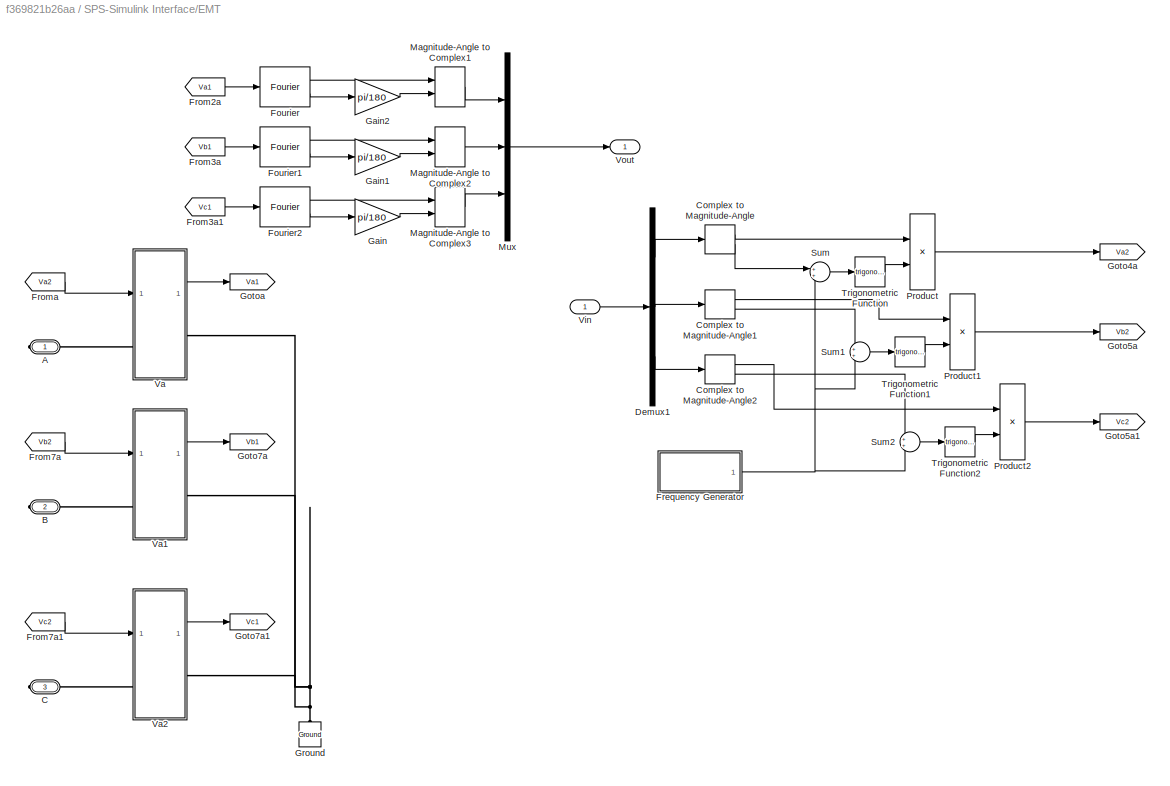
BLOCK [SubSystem] SPS-Simulink Interface/EMT
  Ports = [1, 1, 0, 0, 0, 0, 3]
  RequestExecContextInheritance = off
  VariantControl = EMT
BLOCK [PMIOPort] SPS-Simulink Interface/EMT/A
  Side = Right
BLOCK [PMIOPort] SPS-Simulink Interface/EMT/B
  Port = 2
  Side = Right
BLOCK [PMIOPort] SPS-Simulink Interface/EMT/C
  Port = 3
  Side = Right
BLOCK [ComplexToMagnitudeAngle] SPS-Simulink Interface/EMT/Complex to Magnitude-Angle
  Ports = [1, 2]
BLOCK [ComplexToMagnitudeAngle] SPS-Simulink Interface/EMT/Complex to Magnitude-Angle1
  Ports = [1, 2]
BLOCK [ComplexToMagnitudeAngle] SPS-Simulink Interface/EMT/Complex to Magnitude-Angle2
  Ports = [1, 2]
BLOCK [Demux] SPS-Simulink Interface/EMT/Demux1
  DisplayOption = bar
  Outputs = 3
  Ports = [1, 3]
BLOCK [Reference] SPS-Simulink Interface/EMT/Fourier  REF=powerlib_meascontrol/Measurements/Fourier
  Ports = [1, 2]
  SourceBlock = powerlib_meascontrol/Measurements/Fourier
  SourceProductBaseCode = PS
  SourceProductName = Simscape Electrical
  SourceType = Fourier
BLOCK [Reference] SPS-Simulink Interface/EMT/Fourier1  REF=powerlib_meascontrol/Measurements/Fourier
  Ports = [1, 2]
  SourceBlock = powerlib_meascontrol/Measurements/Fourier
  SourceProductBaseCode = PS
  SourceProductName = Simscape Electrical
  SourceType = Fourier
BLOCK [Reference] SPS-Simulink Interface/EMT/Fourier2  REF=powerlib_meascontrol/Measurements/Fourier
  Ports = [1, 2]
  SourceBlock = powerlib_meascontrol/Measurements/Fourier
  SourceProductBaseCode = PS
  SourceProductName = Simscape Electrical
  SourceType = Fourier
BLOCK [SubSystem] SPS-Simulink Interface/EMT/Frequency Generator
  LabelModeActiveChoice = Continuous
  Ports = [0, 1]
  RequestExecContextInheritance = off
  Variant = on
  VariantControlMode = Label
BLOCK [Outport] SPS-Simulink Interface/EMT/Frequency Generator/2pi*f
  IconDisplay = Port number
BLOCK [SubSystem] SPS-Simulink Interface/EMT/Frequency Generator/Continuous
  Ports = [0, 1]
  RequestExecContextInheritance = off
  VariantControl = Continuous
BLOCK [Outport] SPS-Simulink Interface/EMT/Frequency Generator/Continuous/2pi*f
  IconDisplay = Port number
BLOCK [Clock] SPS-Simulink Interface/EMT/Frequency Generator/Continuous/Clock
BLOCK [Constant] SPS-Simulink Interface/EMT/Frequency Generator/Continuous/Constant4
  Value = 2*pi
BLOCK [Constant] SPS-Simulink Interface/EMT/Frequency Generator/Continuous/Freq1
  Value = Freq
BLOCK [Constant] SPS-Simulink Interface/EMT/Frequency Generator/Continuous/Freq2
  Value = 2*pi
BLOCK [Math] SPS-Simulink Interface/EMT/Frequency Generator/Continuous/Math Function
  Operator = mod
  Ports = [2, 1]
BLOCK [Product] SPS-Simulink Interface/EMT/Frequency Generator/Continuous/Product3
  Inputs = ***
  Ports = [3, 1]
  RndMeth = Floor
BLOCK [SubSystem] SPS-Simulink Interface/EMT/Frequency Generator/Discrete
  Ports = [0, 1]
  RequestExecContextInheritance = off
  VariantControl = Discrete
BLOCK [Outport] SPS-Simulink Interface/EMT/Frequency Generator/Discrete/2pi*f
  IconDisplay = Port number
BLOCK [Constant] SPS-Simulink Interface/EMT/Frequency Generator/Discrete/Constant4
  Value = 2*pi
BLOCK [Constant] SPS-Simulink Interface/EMT/Frequency Generator/Discrete/Freq1
  Value = Freq
BLOCK [Constant] SPS-Simulink Interface/EMT/Frequency Generator/Discrete/Freq2
  Value = 2*pi
BLOCK [Math] SPS-Simulink Interface/EMT/Frequency Generator/Discrete/Math Function
  Operator = mod
  Ports = [2, 1]
BLOCK [Product] SPS-Simulink Interface/EMT/Frequency Generator/Discrete/Product3
  Inputs = ***
  Ports = [3, 1]
  RndMeth = Floor
BLOCK [DigitalClock] SPS-Simulink Interface/EMT/Frequency Generator/Discrete/t
  SampleTime = Ts
BLOCK [From] SPS-Simulink Interface/EMT/From2a
  GotoTag = Va1
BLOCK [From] SPS-Simulink Interface/EMT/From3a
  GotoTag = Vb1
BLOCK [From] SPS-Simulink Interface/EMT/From3a1
  GotoTag = Vc1
BLOCK [From] SPS-Simulink Interface/EMT/From7a
  GotoTag = Vb2
BLOCK [From] SPS-Simulink Interface/EMT/From7a1
  GotoTag = Vc2
BLOCK [From] SPS-Simulink Interface/EMT/Froma
  GotoTag = Va2
BLOCK [Gain] SPS-Simulink Interface/EMT/Gain
  Gain = pi/180
  OutDataTypeStr = Inherit: Inherit via internal rule
  ParamDataTypeStr = Inherit: Inherit via internal rule
  SaturateOnIntegerOverflow = off
BLOCK [Gain] SPS-Simulink Interface/EMT/Gain1
  Gain = pi/180
  OutDataTypeStr = Inherit: Inherit via internal rule
  ParamDataTypeStr = Inherit: Inherit via internal rule
  SaturateOnIntegerOverflow = off
BLOCK [Gain] SPS-Simulink Interface/EMT/Gain2
  Gain = pi/180
  OutDataTypeStr = Inherit: Inherit via internal rule
  ParamDataTypeStr = Inherit: Inherit via internal rule
  SaturateOnIntegerOverflow = off
BLOCK [Goto] SPS-Simulink Interface/EMT/Goto4a
  GotoTag = Va2
BLOCK [Goto] SPS-Simulink Interface/EMT/Goto5a
  GotoTag = Vb2
BLOCK [Goto] SPS-Simulink Interface/EMT/Goto5a1
  GotoTag = Vc2
BLOCK [Goto] SPS-Simulink Interface/EMT/Goto7a
  GotoTag = Vb1
BLOCK [Goto] SPS-Simulink Interface/EMT/Goto7a1
  GotoTag = Vc1
BLOCK [Goto] SPS-Simulink Interface/EMT/Gotoa
  GotoTag = Va1
BLOCK [Reference] SPS-Simulink Interface/EMT/Ground  REF=powerlib/Elements/Ground
  Ports = [0, 0, 0, 0, 0, 1]
  SourceBlock = powerlib/Elements/Ground
  SourceProductBaseCode = PS
  SourceProductName = Simscape Electrical
  SourceType = Ground
BLOCK [MagnitudeAngleToComplex] SPS-Simulink Interface/EMT/Magnitude-Angle to Complex1
  Ports = [2, 1]
BLOCK [MagnitudeAngleToComplex] SPS-Simulink Interface/EMT/Magnitude-Angle to Complex2
  Ports = [2, 1]
BLOCK [MagnitudeAngleToComplex] SPS-Simulink Interface/EMT/Magnitude-Angle to Complex3
  Ports = [2, 1]
BLOCK [Mux] SPS-Simulink Interface/EMT/Mux
  DisplayOption = bar
  Inputs = 3
  Ports = [3, 1]
BLOCK [Product] SPS-Simulink Interface/EMT/Product
  InputSameDT = off
  OutDataTypeStr = Inherit: Inherit via internal rule
  Ports = [2, 1]
  RndMeth = Floor
  SaturateOnIntegerOverflow = off
BLOCK [Product] SPS-Simulink Interface/EMT/Product1
  InputSameDT = off
  OutDataTypeStr = Inherit: Inherit via internal rule
  Ports = [2, 1]
  RndMeth = Floor
  SaturateOnIntegerOverflow = off
BLOCK [Product] SPS-Simulink Interface/EMT/Product2
  InputSameDT = off
  OutDataTypeStr = Inherit: Inherit via internal rule
  Ports = [2, 1]
  RndMeth = Floor
  SaturateOnIntegerOverflow = off
BLOCK [Sum] SPS-Simulink Interface/EMT/Sum
  IconShape = round
  InputSameDT = off
  OutDataTypeStr = Inherit: Inherit via internal rule
  Ports = [2, 1]
  SaturateOnIntegerOverflow = off
BLOCK [Sum] SPS-Simulink Interface/EMT/Sum1
  IconShape = round
  InputSameDT = off
  OutDataTypeStr = Inherit: Inherit via internal rule
  Ports = [2, 1]
  SaturateOnIntegerOverflow = off
BLOCK [Sum] SPS-Simulink Interface/EMT/Sum2
  IconShape = round
  InputSameDT = off
  OutDataTypeStr = Inherit: Inherit via internal rule
  Ports = [2, 1]
  SaturateOnIntegerOverflow = off
BLOCK [Trigonometry] SPS-Simulink Interface/EMT/Trigonometric Function
  Ports = [1, 1]
BLOCK [Trigonometry] SPS-Simulink Interface/EMT/Trigonometric Function1
  Ports = [1, 1]
BLOCK [Trigonometry] SPS-Simulink Interface/EMT/Trigonometric Function2
  Ports = [1, 1]
BLOCK [SubSystem] SPS-Simulink Interface/EMT/Va
  Ports = [1, 1, 0, 0, 0, 1, 1]
  RequestExecContextInheritance = off
BLOCK [PMIOPort] SPS-Simulink Interface/EMT/Va/+
  Side = Left
BLOCK [PMIOPort] SPS-Simulink Interface/EMT/Va/-
  Port = 2
  Side = Right
BLOCK [Reference] SPS-Simulink Interface/EMT/Va/Controlled Voltage Source  REF=powerlib/Electrical
Sources/Controlled Voltage Source
  Ports = [1, 0, 0, 0, 0, 1, 1]
  SourceBlock = powerlib/Electrical\nSources/Controlled Voltage Source
  SourceProductBaseCode = PS
  SourceProductName = Simscape Electrical
  SourceType = Controlled Voltage Source
BLOCK [Gain] SPS-Simulink Interface/EMT/Va/Gain
  Gain = kv
  OutDataTypeStr = Inherit: Inherit via internal rule
  ParamDataTypeStr = Inherit: Inherit via internal rule
  SaturateOnIntegerOverflow = off
BLOCK [Reference] SPS-Simulink Interface/EMT/Va/Series RLC Branch  REF=powerlib/Elements/Series RLC Branch
  Ports = [0, 0, 0, 0, 0, 1, 1]
  SourceBlock = powerlib/Elements/Series RLC Branch
  SourceProductBaseCode = PS
  SourceProductName = Simscape Electrical
  SourceType = Series RLC Branch
BLOCK [Sum] SPS-Simulink Interface/EMT/Va/Sum
  IconShape = round
  InputSameDT = off
  OutDataTypeStr = Inherit: Inherit via internal rule
  Ports = [2, 1]
  SaturateOnIntegerOverflow = off
BLOCK [Inport] SPS-Simulink Interface/EMT/Va/Vin
  IconDisplay = Port number
BLOCK [Reference] SPS-Simulink Interface/EMT/Va/Voltage Measurement  REF=powerlib/Measurements/Voltage Measurement
  Ports = [0, 1, 0, 0, 0, 2]
  SourceBlock = powerlib/Measurements/Voltage Measurement
  SourceProductBaseCode = PS
  SourceProductName = Simscape Electrical
  SourceType = Voltage Measurement
  UserDataPersistent = on
BLOCK [Reference] SPS-Simulink Interface/EMT/Va/Voltage Measurement1  REF=powerlib/Measurements/Voltage Measurement
  Ports = [0, 1, 0, 0, 0, 2]
  SourceBlock = powerlib/Measurements/Voltage Measurement
  SourceProductBaseCode = PS
  SourceProductName = Simscape Electrical
  SourceType = Voltage Measurement
  UserDataPersistent = on
BLOCK [Outport] SPS-Simulink Interface/EMT/Va/Vout
  IconDisplay = Port number
BLOCK [SubSystem] SPS-Simulink Interface/EMT/Va1
  Ports = [1, 1, 0, 0, 0, 1, 1]
  RequestExecContextInheritance = off
BLOCK [PMIOPort] SPS-Simulink Interface/EMT/Va1/+
  Side = Left
BLOCK [PMIOPort] SPS-Simulink Interface/EMT/Va1/-
  Port = 2
  Side = Right
BLOCK [Reference] SPS-Simulink Interface/EMT/Va1/Controlled Voltage Source  REF=powerlib/Electrical
Sources/Controlled Voltage Source
  Ports = [1, 0, 0, 0, 0, 1, 1]
  SourceBlock = powerlib/Electrical\nSources/Controlled Voltage Source
  SourceProductBaseCode = PS
  SourceProductName = Simscape Electrical
  SourceType = Controlled Voltage Source
BLOCK [Gain] SPS-Simulink Interface/EMT/Va1/Gain
  Gain = kv
  OutDataTypeStr = Inherit: Inherit via internal rule
  ParamDataTypeStr = Inherit: Inherit via internal rule
  SaturateOnIntegerOverflow = off
BLOCK [Reference] SPS-Simulink Interface/EMT/Va1/Series RLC Branch  REF=powerlib/Elements/Series RLC Branch
  Ports = [0, 0, 0, 0, 0, 1, 1]
  SourceBlock = powerlib/Elements/Series RLC Branch
  SourceProductBaseCode = PS
  SourceProductName = Simscape Electrical
  SourceType = Series RLC Branch
BLOCK [Sum] SPS-Simulink Interface/EMT/Va1/Sum
  IconShape = round
  InputSameDT = off
  OutDataTypeStr = Inherit: Inherit via internal rule
  Ports = [2, 1]
  SaturateOnIntegerOverflow = off
BLOCK [Inport] SPS-Simulink Interface/EMT/Va1/Vin
  IconDisplay = Port number
BLOCK [Reference] SPS-Simulink Interface/EMT/Va1/Voltage Measurement  REF=powerlib/Measurements/Voltage Measurement
  Ports = [0, 1, 0, 0, 0, 2]
  SourceBlock = powerlib/Measurements/Voltage Measurement
  SourceProductBaseCode = PS
  SourceProductName = Simscape Electrical
  SourceType = Voltage Measurement
  UserDataPersistent = on
BLOCK [Reference] SPS-Simulink Interface/EMT/Va1/Voltage Measurement1  REF=powerlib/Measurements/Voltage Measurement
  Ports = [0, 1, 0, 0, 0, 2]
  SourceBlock = powerlib/Measurements/Voltage Measurement
  SourceProductBaseCode = PS
  SourceProductName = Simscape Electrical
  SourceType = Voltage Measurement
  UserDataPersistent = on
BLOCK [Outport] SPS-Simulink Interface/EMT/Va1/Vout
  IconDisplay = Port number
BLOCK [SubSystem] SPS-Simulink Interface/EMT/Va2
  Ports = [1, 1, 0, 0, 0, 1, 1]
  RequestExecContextInheritance = off
BLOCK [PMIOPort] SPS-Simulink Interface/EMT/Va2/+
  Side = Left
BLOCK [PMIOPort] SPS-Simulink Interface/EMT/Va2/-
  Port = 2
  Side = Right
BLOCK [Reference] SPS-Simulink Interface/EMT/Va2/Controlled Voltage Source  REF=powerlib/Electrical
Sources/Controlled Voltage Source
  Ports = [1, 0, 0, 0, 0, 1, 1]
  SourceBlock = powerlib/Electrical\nSources/Controlled Voltage Source
  SourceProductBaseCode = PS
  SourceProductName = Simscape Electrical
  SourceType = Controlled Voltage Source
BLOCK [Gain] SPS-Simulink Interface/EMT/Va2/Gain
  Gain = kv
  OutDataTypeStr = Inherit: Inherit via internal rule
  ParamDataTypeStr = Inherit: Inherit via internal rule
  SaturateOnIntegerOverflow = off
BLOCK [Reference] SPS-Simulink Interface/EMT/Va2/Series RLC Branch  REF=powerlib/Elements/Series RLC Branch
  Ports = [0, 0, 0, 0, 0, 1, 1]
  SourceBlock = powerlib/Elements/Series RLC Branch
  SourceProductBaseCode = PS
  SourceProductName = Simscape Electrical
  SourceType = Series RLC Branch
BLOCK [Sum] SPS-Simulink Interface/EMT/Va2/Sum
  IconShape = round
  InputSameDT = off
  OutDataTypeStr = Inherit: Inherit via internal rule
  Ports = [2, 1]
  SaturateOnIntegerOverflow = off
BLOCK [Inport] SPS-Simulink Interface/EMT/Va2/Vin
  IconDisplay = Port number
BLOCK [Reference] SPS-Simulink Interface/EMT/Va2/Voltage Measurement  REF=powerlib/Measurements/Voltage Measurement
  Ports = [0, 1, 0, 0, 0, 2]
  SourceBlock = powerlib/Measurements/Voltage Measurement
  SourceProductBaseCode = PS
  SourceProductName = Simscape Electrical
  SourceType = Voltage Measurement
  UserDataPersistent = on
BLOCK [Reference] SPS-Simulink Interface/EMT/Va2/Voltage Measurement1  REF=powerlib/Measurements/Voltage Measurement
  Ports = [0, 1, 0, 0, 0, 2]
  SourceBlock = powerlib/Measurements/Voltage Measurement
  SourceProductBaseCode = PS
  SourceProductName = Simscape Electrical
  SourceType = Voltage Measurement
  UserDataPersistent = on
BLOCK [Outport] SPS-Simulink Interface/EMT/Va2/Vout
  IconDisplay = Port number
BLOCK [Inport] SPS-Simulink Interface/EMT/Vin
  IconDisplay = Port number
  SignalType = complex
BLOCK [Outport] SPS-Simulink Interface/EMT/Vout
  IconDisplay = Port number
  SignalType = complex
BLOCK [SubSystem] SPS-Simulink Interface/Phasor
  Ports = [1, 1, 0, 0, 0, 0, 3]
  RequestExecContextInheritance = off
  VariantControl = Phasor
BLOCK [PMIOPort] SPS-Simulink Interface/Phasor/A
  Side = Right
BLOCK [PMIOPort] SPS-Simulink Interface/Phasor/B
  Port = 2
  Side = Right
BLOCK [PMIOPort] SPS-Simulink Interface/Phasor/C
  Port = 3
  Side = Right
BLOCK [Demux] SPS-Simulink Interface/Phasor/Demux
  DisplayOption = bar
  Outputs = 3
  Ports = [1, 3]
BLOCK [From] SPS-Simulink Interface/Phasor/From2a
  GotoTag = Va1
BLOCK [From] SPS-Simulink Interface/Phasor/From3a
  GotoTag = Vb1
BLOCK [From] SPS-Simulink Interface/Phasor/From3a1
  GotoTag = Vc1
BLOCK [From] SPS-Simulink Interface/Phasor/From7a
  GotoTag = Vb2
BLOCK [From] SPS-Simulink Interface/Phasor/From7a1
  GotoTag = Vc2
BLOCK [From] SPS-Simulink Interface/Phasor/Froma
  GotoTag = Va2
BLOCK [Goto] SPS-Simulink Interface/Phasor/Goto4a
  GotoTag = Va2
BLOCK [Goto] SPS-Simulink Interface/Phasor/Goto5a
  GotoTag = Vb2
BLOCK [Goto] SPS-Simulink Interface/Phasor/Goto5a1
  GotoTag = Vc2
BLOCK [Goto] SPS-Simulink Interface/Phasor/Goto7a
  GotoTag = Vb1
BLOCK [Goto] SPS-Simulink Interface/Phasor/Goto7a1
  GotoTag = Vc1
BLOCK [Goto] SPS-Simulink Interface/Phasor/Gotoa
  GotoTag = Va1
BLOCK [Reference] SPS-Simulink Interface/Phasor/Ground  REF=powerlib/Elements/Ground
  Ports = [0, 0, 0, 0, 0, 1]
  SourceBlock = powerlib/Elements/Ground
  SourceProductBaseCode = PS
  SourceProductName = Simscape Electrical
  SourceType = Ground
BLOCK [Mux] SPS-Simulink Interface/Phasor/Mux
  DisplayOption = bar
  Inputs = 3
  Ports = [3, 1]
BLOCK [SubSystem] SPS-Simulink Interface/Phasor/Va
  Ports = [1, 1, 0, 0, 0, 1, 1]
  RequestExecContextInheritance = off
BLOCK [PMIOPort] SPS-Simulink Interface/Phasor/Va/+
  Side = Left
BLOCK [PMIOPort] SPS-Simulink Interface/Phasor/Va/-
  Port = 2
  Side = Right
BLOCK [Reference] SPS-Simulink Interface/Phasor/Va/Controlled Voltage Source  REF=powerlib/Electrical
Sources/Controlled Voltage Source
  Ports = [1, 0, 0, 0, 0, 1, 1]
  SourceBlock = powerlib/Electrical\nSources/Controlled Voltage Source
  SourceProductBaseCode = PS
  SourceProductName = Simscape Electrical
  SourceType = Controlled Voltage Source
BLOCK [Gain] SPS-Simulink Interface/Phasor/Va/Gain
  Gain = kv
  OutDataTypeStr = Inherit: Inherit via internal rule
  ParamDataTypeStr = Inherit: Inherit via internal rule
  SaturateOnIntegerOverflow = off
BLOCK [Reference] SPS-Simulink Interface/Phasor/Va/Series RLC Branch  REF=powerlib/Elements/Series RLC Branch
  Ports = [0, 0, 0, 0, 0, 1, 1]
  SourceBlock = powerlib/Elements/Series RLC Branch
  SourceProductBaseCode = PS
  SourceProductName = Simscape Electrical
  SourceType = Series RLC Branch
BLOCK [Sum] SPS-Simulink Interface/Phasor/Va/Sum
  IconShape = round
  InputSameDT = off
  OutDataTypeStr = Inherit: Inherit via internal rule
  Ports = [2, 1]
  SaturateOnIntegerOverflow = off
BLOCK [Inport] SPS-Simulink Interface/Phasor/Va/Vin
  IconDisplay = Port number
BLOCK [Reference] SPS-Simulink Interface/Phasor/Va/Voltage Measurement  REF=powerlib/Measurements/Voltage Measurement
  Ports = [0, 1, 0, 0, 0, 2]
  SourceBlock = powerlib/Measurements/Voltage Measurement
  SourceProductBaseCode = PS
  SourceProductName = Simscape Electrical
  SourceType = Voltage Measurement
  UserDataPersistent = on
BLOCK [Reference] SPS-Simulink Interface/Phasor/Va/Voltage Measurement1  REF=powerlib/Measurements/Voltage Measurement
  Ports = [0, 1, 0, 0, 0, 2]
  SourceBlock = powerlib/Measurements/Voltage Measurement
  SourceProductBaseCode = PS
  SourceProductName = Simscape Electrical
  SourceType = Voltage Measurement
  UserDataPersistent = on
BLOCK [Outport] SPS-Simulink Interface/Phasor/Va/Vout
  IconDisplay = Port number
BLOCK [SubSystem] SPS-Simulink Interface/Phasor/Vb
  Ports = [1, 1, 0, 0, 0, 1, 1]
  RequestExecContextInheritance = off
BLOCK [PMIOPort] SPS-Simulink Interface/Phasor/Vb/+
  Side = Left
BLOCK [PMIOPort] SPS-Simulink Interface/Phasor/Vb/-
  Port = 2
  Side = Right
BLOCK [Reference] SPS-Simulink Interface/Phasor/Vb/Controlled Voltage Source  REF=powerlib/Electrical
Sources/Controlled Voltage Source
  Ports = [1, 0, 0, 0, 0, 1, 1]
  SourceBlock = powerlib/Electrical\nSources/Controlled Voltage Source
  SourceProductBaseCode = PS
  SourceProductName = Simscape Electrical
  SourceType = Controlled Voltage Source
BLOCK [Gain] SPS-Simulink Interface/Phasor/Vb/Gain
  Gain = kv
  OutDataTypeStr = Inherit: Inherit via internal rule
  ParamDataTypeStr = Inherit: Inherit via internal rule
  SaturateOnIntegerOverflow = off
BLOCK [Reference] SPS-Simulink Interface/Phasor/Vb/Series RLC Branch  REF=powerlib/Elements/Series RLC Branch
  Ports = [0, 0, 0, 0, 0, 1, 1]
  SourceBlock = powerlib/Elements/Series RLC Branch
  SourceProductBaseCode = PS
  SourceProductName = Simscape Electrical
  SourceType = Series RLC Branch
BLOCK [Sum] SPS-Simulink Interface/Phasor/Vb/Sum
  IconShape = round
  InputSameDT = off
  OutDataTypeStr = Inherit: Inherit via internal rule
  Ports = [2, 1]
  SaturateOnIntegerOverflow = off
BLOCK [Inport] SPS-Simulink Interface/Phasor/Vb/Vin
  IconDisplay = Port number
BLOCK [Reference] SPS-Simulink Interface/Phasor/Vb/Voltage Measurement  REF=powerlib/Measurements/Voltage Measurement
  Ports = [0, 1, 0, 0, 0, 2]
  SourceBlock = powerlib/Measurements/Voltage Measurement
  SourceProductBaseCode = PS
  SourceProductName = Simscape Electrical
  SourceType = Voltage Measurement
  UserDataPersistent = on
BLOCK [Reference] SPS-Simulink Interface/Phasor/Vb/Voltage Measurement1  REF=powerlib/Measurements/Voltage Measurement
  Ports = [0, 1, 0, 0, 0, 2]
  SourceBlock = powerlib/Measurements/Voltage Measurement
  SourceProductBaseCode = PS
  SourceProductName = Simscape Electrical
  SourceType = Voltage Measurement
  UserDataPersistent = on
BLOCK [Outport] SPS-Simulink Interface/Phasor/Vb/Vout
  IconDisplay = Port number
BLOCK [SubSystem] SPS-Simulink Interface/Phasor/Vc
  Ports = [1, 1, 0, 0, 0, 1, 1]
  RequestExecContextInheritance = off
BLOCK [PMIOPort] SPS-Simulink Interface/Phasor/Vc/+
  Side = Left
BLOCK [PMIOPort] SPS-Simulink Interface/Phasor/Vc/-
  Port = 2
  Side = Right
BLOCK [Reference] SPS-Simulink Interface/Phasor/Vc/Controlled Voltage Source  REF=powerlib/Electrical
Sources/Controlled Voltage Source
  Ports = [1, 0, 0, 0, 0, 1, 1]
  SourceBlock = powerlib/Electrical\nSources/Controlled Voltage Source
  SourceProductBaseCode = PS
  SourceProductName = Simscape Electrical
  SourceType = Controlled Voltage Source
BLOCK [Gain] SPS-Simulink Interface/Phasor/Vc/Gain
  Gain = kv
  OutDataTypeStr = Inherit: Inherit via internal rule
  ParamDataTypeStr = Inherit: Inherit via internal rule
  SaturateOnIntegerOverflow = off
BLOCK [Reference] SPS-Simulink Interface/Phasor/Vc/Series RLC Branch  REF=powerlib/Elements/Series RLC Branch
  Ports = [0, 0, 0, 0, 0, 1, 1]
  SourceBlock = powerlib/Elements/Series RLC Branch
  SourceProductBaseCode = PS
  SourceProductName = Simscape Electrical
  SourceType = Series RLC Branch
BLOCK [Sum] SPS-Simulink Interface/Phasor/Vc/Sum
  IconShape = round
  InputSameDT = off
  OutDataTypeStr = Inherit: Inherit via internal rule
  Ports = [2, 1]
  SaturateOnIntegerOverflow = off
BLOCK [Inport] SPS-Simulink Interface/Phasor/Vc/Vin
  IconDisplay = Port number
BLOCK [Reference] SPS-Simulink Interface/Phasor/Vc/Voltage Measurement  REF=powerlib/Measurements/Voltage Measurement
  Ports = [0, 1, 0, 0, 0, 2]
  SourceBlock = powerlib/Measurements/Voltage Measurement
  SourceProductBaseCode = PS
  SourceProductName = Simscape Electrical
  SourceType = Voltage Measurement
  UserDataPersistent = on
BLOCK [Reference] SPS-Simulink Interface/Phasor/Vc/Voltage Measurement1  REF=powerlib/Measurements/Voltage Measurement
  Ports = [0, 1, 0, 0, 0, 2]
  SourceBlock = powerlib/Measurements/Voltage Measurement
  SourceProductBaseCode = PS
  SourceProductName = Simscape Electrical
  SourceType = Voltage Measurement
  UserDataPersistent = on
BLOCK [Outport] SPS-Simulink Interface/Phasor/Vc/Vout
  IconDisplay = Port number
BLOCK [Inport] SPS-Simulink Interface/Phasor/Vin
  IconDisplay = Port number
BLOCK [Outport] SPS-Simulink Interface/Phasor/Vout
  IconDisplay = Port number
BLOCK [Inport] SPS-Simulink Interface/Vin
  IconDisplay = Port number
BLOCK [Outport] SPS-Simulink Interface/Vout
  IconDisplay = Port number
BLOCK [SubSystem] Solar Array (EMT Model)
  Ports = [2, 1, 0, 0, 0, 0, 3]
  RequestExecContextInheritance = off
BLOCK [PMIOPort] Solar Array (EMT Model)/A
  Side = Right
BLOCK [PMIOPort] Solar Array (EMT Model)/B
  Port = 2
  Side = Right
BLOCK [BusSelector] Solar Array (EMT Model)/Bus Selector
  OutputAsBus = off
  OutputSignals = Vabc,Iabc
  Ports = [1, 2]
BLOCK [BusSelector] Solar Array (EMT Model)/Bus Selector1
  OutputAsBus = off
  OutputSignals = V_PV,I_PV
  Ports = [1, 2]
BLOCK [PMIOPort] Solar Array (EMT Model)/C
  Port = 3
  Side = Right
BLOCK [SubSystem] Solar Array (EMT Model)/DC Link
  Ports = [0, 1, 0, 0, 0, 2, 3]
  RequestExecContextInheritance = off
BLOCK [Reference] Solar Array (EMT Model)/DC Link/C1  REF=powerlib/Elements/Series RLC Branch
  AttributesFormatString = \n
  Ports = [0, 0, 0, 0, 0, 1, 1]
  SourceBlock = powerlib/Elements/Series RLC Branch
  SourceProductBaseCode = PS
  SourceProductName = Simscape Electrical
  SourceType = Series RLC Branch
BLOCK [Reference] Solar Array (EMT Model)/DC Link/C2  REF=powerlib/Elements/Series RLC Branch
  AttributesFormatString = \n
  Ports = [0, 0, 0, 0, 0, 1, 1]
  SourceBlock = powerlib/Elements/Series RLC Branch
  SourceProductBaseCode = PS
  SourceProductName = Simscape Electrical
  SourceType = Series RLC Branch
BLOCK [PMIOPort] Solar Array (EMT Model)/DC Link/Inv+
  Port = 3
  Side = Right
BLOCK [PMIOPort] Solar Array (EMT Model)/DC Link/Inv--
  Port = 5
  Side = Right
BLOCK [PMIOPort] Solar Array (EMT Model)/DC Link/N
  Port = 4
  Side = Right
BLOCK [PMIOPort] Solar Array (EMT Model)/DC Link/PV+
  Side = Left
BLOCK [PMIOPort] Solar Array (EMT Model)/DC Link/PV--
  Port = 2
  Side = Left
BLOCK [Outport] Solar Array (EMT Model)/DC Link/Vdc
  IconDisplay = Port number
BLOCK [Reference] Solar Array (EMT Model)/DC Link/Vdc   REF=powerlib/Measurements/Voltage Measurement
  AttributesFormatString = \n
  Ports = [0, 1, 0, 0, 0, 2]
  SourceBlock = powerlib/Measurements/Voltage Measurement
  SourceProductBaseCode = PS
  SourceProductName = Simscape Electrical
  SourceType = Voltage Measurement
  Tag = PoWeRsYsTeMmEaSuReMeNt
BLOCK [From] Solar Array (EMT Model)/From
  GotoTag = m_inv
BLOCK [From] Solar Array (EMT Model)/From1
  GotoTag = m_solar
BLOCK [From] Solar Array (EMT Model)/From2
  GotoTag = m_inv
BLOCK [Goto] Solar Array (EMT Model)/Goto
  GotoTag = m_inv
BLOCK [Goto] Solar Array (EMT Model)/Goto1
  GotoTag = m_solar
BLOCK [SubSystem] Solar Array (EMT Model)/Grid Inverter
  Ports = [1, 1, 0, 0, 0, 3, 3]
  RequestExecContextInheritance = off
BLOCK [Reference] Solar Array (EMT Model)/Grid Inverter/10 kvar  REF=powerlib/Elements/Three-Phase
Series RLC Load
  AttributesFormatString = \n
  Ports = [0, 0, 0, 0, 0, 3]
  SourceBlock = powerlib/Elements/Three-Phase\nSeries RLC Load
  SourceProductBaseCode = PS
  SourceProductName = Simscape Electrical
  SourceType = Three-Phase Series RLC Load
BLOCK [Reference] Solar Array (EMT Model)/Grid Inverter/100 kVA 260V // 25 kV  REF=powerlib/Elements/Three-Phase
Transformer
(Two Windings)
  AttributesFormatString = \n
  Ports = [0, 0, 0, 0, 0, 3, 3]
  SourceBlock = powerlib/Elements/Three-Phase\nTransformer\n(Two Windings)
  SourceProductBaseCode = PS
  SourceProductName = Simscape Electrical
  SourceType = Three-Phase Transformer (Two Windings)
BLOCK [PMIOPort] Solar Array (EMT Model)/Grid Inverter/A
  Port = 4
  Side = Right
BLOCK [PMIOPort] Solar Array (EMT Model)/Grid Inverter/B
  Port = 5
  Side = Right
BLOCK [Reference] Solar Array (EMT Model)/Grid Inverter/B1  REF=powerlib/Measurements/Three-Phase
V-I Measurement
  Ports = [0, 2, 0, 0, 0, 3, 3]
  SourceBlock = powerlib/Measurements/Three-Phase\nV-I Measurement
  SourceProductBaseCode = PS
  SourceProductName = Simscape Electrical
  SourceType = Three-Phase VI Measurement
BLOCK [BusCreator] Solar Array (EMT Model)/Grid Inverter/Bus Creator
  DisplayOption = bar
  InheritFromInputs = on
  Inputs = 2
  Ports = [2, 1]
BLOCK [PMIOPort] Solar Array (EMT Model)/Grid Inverter/C
  Port = 6
  Side = Right
BLOCK [Ground] Solar Array (EMT Model)/Grid Inverter/Ground
BLOCK [PMIOPort] Solar Array (EMT Model)/Grid Inverter/Inv+
  Side = Left
BLOCK [PMIOPort] Solar Array (EMT Model)/Grid Inverter/Inv--
  Port = 3
  Side = Left
BLOCK [Reference] Solar Array (EMT Model)/Grid Inverter/L  REF=powerlib/Elements/Three-Phase
Series RLC Branch
  AttributesFormatString = \n
  Ports = [0, 0, 0, 0, 0, 3, 3]
  SourceBlock = powerlib/Elements/Three-Phase\nSeries RLC Branch
  SourceProductBaseCode = PS
  SourceProductName = Simscape Electrical
  SourceType = Three-Phase Series RLC Branch
BLOCK [PMIOPort] Solar Array (EMT Model)/Grid Inverter/N
  Port = 2
  Side = Left
BLOCK [Reference] Solar Array (EMT Model)/Grid Inverter/Three-Level NPC Converter  REF=powerlib/Power
Electronics/Three-Level
NPC Converter
  Ports = [2, 0, 0, 0, 0, 3, 3]
  SourceBlock = powerlib/Power\nElectronics/Three-Level\nNPC Converter
  SourceProductBaseCode = PS
  SourceProductName = Simscape Electrical
  SourceType = Three-Level NPC Converter
BLOCK [Inport] Solar Array (EMT Model)/Grid Inverter/Uref
  IconDisplay = Port number
BLOCK [Outport] Solar Array (EMT Model)/Grid Inverter/m
  IconDisplay = Port number
BLOCK [InitialCondition] Solar Array (EMT Model)/IC
  Value = 45
BLOCK [SubSystem] Solar Array (EMT Model)/Inverter Control
  Ports = [6, 1]
  RequestExecContextInheritance = off
BLOCK [SubSystem] Solar Array (EMT Model)/Inverter Control/Current Regulator
  Ports = [3, 1]
  RequestExecContextInheritance = off
BLOCK [Sum] Solar Array (EMT Model)/Inverter Control/Current Regulator/Add1
  InputSameDT = off
  Inputs = ++-
  OutDataTypeStr = Inherit: Inherit via internal rule
  Ports = [3, 1]
  SaturateOnIntegerOverflow = off
BLOCK [Sum] Solar Array (EMT Model)/Inverter Control/Current Regulator/Add2
  InputSameDT = off
  OutDataTypeStr = Inherit: Inherit via internal rule
  Ports = [2, 1]
  SaturateOnIntegerOverflow = off
BLOCK [Sum] Solar Array (EMT Model)/Inverter Control/Current Regulator/Add3
  InputSameDT = off
  Inputs = +++
  OutDataTypeStr = Inherit: Inherit via internal rule
  Ports = [3, 1]
  SaturateOnIntegerOverflow = off
BLOCK [Demux] Solar Array (EMT Model)/Inverter Control/Current Regulator/Demux
  DisplayOption = bar
  Outputs = 2
  Ports = [1, 2]
BLOCK [Demux] Solar Array (EMT Model)/Inverter Control/Current Regulator/Demux1
  DisplayOption = bar
  Outputs = 2
  Ports = [1, 2]
BLOCK [Inport] Solar Array (EMT Model)/Inverter Control/Current Regulator/IdIq_meas
  IconDisplay = Port number
  Port = 2
  PortDimensions = 2
BLOCK [Inport] Solar Array (EMT Model)/Inverter Control/Current Regulator/IdIq_ref
  IconDisplay = Port number
  Port = 3
  PortDimensions = 2
BLOCK [Gain] Solar Array (EMT Model)/Inverter Control/Current Regulator/Lff
  Gain = Ltot_pu
BLOCK [Gain] Solar Array (EMT Model)/Inverter Control/Current Regulator/Lff  
  Gain = Ltot_pu
BLOCK [Mux] Solar Array (EMT Model)/Inverter Control/Current Regulator/Mux
  DisplayOption = bar
  Inputs = 2
  Ports = [2, 1]
BLOCK [Reference] Solar Array (EMT Model)/Inverter Control/Current Regulator/PI  REF=simulink/Continuous/PID Controller
  Ports = [1, 1]
  SourceBlock = simulink/Continuous/PID Controller
  SourceProductBaseCode = SL
  SourceProductName = Simulink
  SourceType = PID 1dof
BLOCK [Gain] Solar Array (EMT Model)/Inverter Control/Current Regulator/Rff
  Gain = Rtot_pu
BLOCK [Gain] Solar Array (EMT Model)/Inverter Control/Current Regulator/Rff 
  Gain = Rtot_pu
BLOCK [Saturate] Solar Array (EMT Model)/Inverter Control/Current Regulator/Saturation
  InputPortMap = u0
  LowerLimit = -1.5
  Ports = [1, 1]
  UpperLimit = 1.5
BLOCK [Sum] Solar Array (EMT Model)/Inverter Control/Current Regulator/Sum
  IconShape = round
  InputSameDT = off
  Inputs = |-+
  OutDataTypeStr = Inherit: Inherit via internal rule
  Ports = [2, 1]
  SaturateOnIntegerOverflow = off
BLOCK [Outport] Solar Array (EMT Model)/Inverter Control/Current Regulator/VdVq_conv
  IconDisplay = Port number
BLOCK [Inport] Solar Array (EMT Model)/Inverter Control/Current Regulator/VdVq_meas
  IconDisplay = Port number
  PortDimensions = 2
BLOCK [Inport] Solar Array (EMT Model)/Inverter Control/I_PV
  IconDisplay = Port number
  Port = 5
  PortDimensions = 1
BLOCK [Inport] Solar Array (EMT Model)/Inverter Control/Iabc_prim
  IconDisplay = Port number
  Port = 3
  PortDimensions = 3
BLOCK [Constant] Solar Array (EMT Model)/Inverter Control/Iq_ref
  Value = 0
BLOCK [SubSystem] Solar Array (EMT Model)/Inverter Control/MPPT Controller using Perturbe & Observe technique 
  ErrorFcn = Stateflow.Translate.translate
  PermitHierarchicalResolution = ExplicitOnly
  Ports = [4, 1]
  RequestExecContextInheritance = off
  SFBlockType = MATLAB Function
  TreatAsAtomicUnit = on
BLOCK [Demux] Solar Array (EMT Model)/Inverter Control/MPPT Controller using Perturbe & Observe technique / Demux 
  Outputs = 1
  Ports = [1, 1]
BLOCK [S-Function] Solar Array (EMT Model)/Inverter Control/MPPT Controller using Perturbe & Observe technique / SFunction 
  EnableBusSupport = off
  FunctionName = sf_sfun
  PortCounts = [4 2]
  Ports = [4, 2]
  SFcnIsStateOwnerBlock = off
  SFunctionDeploymentMode = off
  Tag = Stateflow S-Function microgridLibrary 1
BLOCK [Terminator] Solar Array (EMT Model)/Inverter Control/MPPT Controller using Perturbe & Observe technique / Terminator 
BLOCK [Outport] Solar Array (EMT Model)/Inverter Control/MPPT Controller using Perturbe & Observe technique /D
  IconDisplay = Port number
BLOCK [Inport] Solar Array (EMT Model)/Inverter Control/MPPT Controller using Perturbe & Observe technique /Enabled
  IconDisplay = Port number
  Port = 2
BLOCK [Inport] Solar Array (EMT Model)/Inverter Control/MPPT Controller using Perturbe & Observe technique /I
  IconDisplay = Port number
  Port = 4
BLOCK [Inport] Solar Array (EMT Model)/Inverter Control/MPPT Controller using Perturbe & Observe technique /Param
  IconDisplay = Port number
BLOCK [Inport] Solar Array (EMT Model)/Inverter Control/MPPT Controller using Perturbe & Observe technique /V
  IconDisplay = Port number
  Port = 3
BLOCK [SubSystem] Solar Array (EMT Model)/Inverter Control/MPPT Parameters
  Ports = [0, 1]
  RequestExecContextInheritance = off
BLOCK [Constant] Solar Array (EMT Model)/Inverter Control/MPPT Parameters/Iph_
  Value = Vnom_dc
BLOCK [Constant] Solar Array (EMT Model)/Inverter Control/MPPT Parameters/Iph_1
  Value = Limits_MPPT(1)
BLOCK [Constant] Solar Array (EMT Model)/Inverter Control/MPPT Parameters/Iph_2
  Value = Limits_MPPT(2)
BLOCK [Constant] Solar Array (EMT Model)/Inverter Control/MPPT Parameters/Iph_3
  Value = Increment_MPPT
BLOCK [Mux] Solar Array (EMT Model)/Inverter Control/MPPT Parameters/Mux
  DisplayOption = bar
  Ports = [4, 1]
BLOCK [Outport] Solar Array (EMT Model)/Inverter Control/MPPT Parameters/Param
  IconDisplay = Port number
BLOCK [Mux] Solar Array (EMT Model)/Inverter Control/Mux
  DisplayOption = bar
  Inputs = 2
  Ports = [2, 1]
BLOCK [Inport] Solar Array (EMT Model)/Inverter Control/On
  IconDisplay = Port number
  PortDimensions = 1
BLOCK [Reference] Solar Array (EMT Model)/Inverter Control/Overmodulation  REF=powerlib_meascontrol/Pulse & Signal
Generators/Overmodulation
  Ports = [1, 1]
  SourceBlock = powerlib_meascontrol/Pulse & Signal\nGenerators/Overmodulation
  SourceProductBaseCode = PS
  SourceProductName = Simscape Electrical
  SourceType = Overmodulation
BLOCK [SubSystem] Solar Array (EMT Model)/Inverter Control/PLL & Measurements
  Ports = [2, 3]
  RequestExecContextInheritance = off
BLOCK [Inport] Solar Array (EMT Model)/Inverter Control/PLL & Measurements/Iabc_prim
  IconDisplay = Port number
  Port = 2
BLOCK [Outport] Solar Array (EMT Model)/Inverter Control/PLL & Measurements/IdIq_prim
  IconDisplay = Port number
  Port = 3
BLOCK [Reference] Solar Array (EMT Model)/Inverter Control/PLL & Measurements/PLL (3ph)  REF=powerlib_meascontrol/PLL/PLL
(3ph)
  Ports = [1, 2]
  SourceBlock = powerlib_meascontrol/PLL/PLL\n(3ph)
  SourceProductBaseCode = PS
  SourceProductName = Simscape Electrical
  SourceType = PLL (3ph)
BLOCK [Selector] Solar Array (EMT Model)/Inverter Control/PLL & Measurements/Selector1
  IndexOptions = Index vector (dialog)
  Indices = [1 2]
  InputPortWidth = 3
  OutputSizes = 1
  Ports = [1, 1]
BLOCK [Selector] Solar Array (EMT Model)/Inverter Control/PLL & Measurements/Selector2
  IndexOptions = Index vector (dialog)
  Indices = [1 2]
  InputPortWidth = 3
  OutputSizes = 1
  Ports = [1, 1]
BLOCK [Terminator] Solar Array (EMT Model)/Inverter Control/PLL & Measurements/Terminator
BLOCK [Gain] Solar Array (EMT Model)/Inverter Control/PLL & Measurements/V->pu
  Gain = 1/(Vnom_prim*sqrt(2)/sqrt(3))
BLOCK [Gain] Solar Array (EMT Model)/Inverter Control/PLL & Measurements/V->pu1
  Gain = Vnom_prim*sqrt(3)/Pnom/sqrt(2)
BLOCK [Inport] Solar Array (EMT Model)/Inverter Control/PLL & Measurements/Vabc_prim
  IconDisplay = Port number
BLOCK [Outport] Solar Array (EMT Model)/Inverter Control/PLL & Measurements/VdVq_prim
  IconDisplay = Port number
  Port = 2
BLOCK [Reference] Solar Array (EMT Model)/Inverter Control/PLL & Measurements/abc to dq0  REF=powerlib_meascontrol/Transformations/abc to dq0
  Ports = [2, 1]
  SourceBlock = powerlib_meascontrol/Transformations/abc to dq0
  SourceProductBaseCode = PS
  SourceProductName = Simscape Electrical
  SourceType = abc to dq0 Transformation
BLOCK [Reference] Solar Array (EMT Model)/Inverter Control/PLL & Measurements/abc to dq1  REF=powerlib_meascontrol/Transformations/abc to dq0
  Ports = [2, 1]
  SourceBlock = powerlib_meascontrol/Transformations/abc to dq0
  SourceProductBaseCode = PS
  SourceProductName = Simscape Electrical
  SourceType = abc to dq0 Transformation
BLOCK [Outport] Solar Array (EMT Model)/Inverter Control/PLL & Measurements/wt
  IconDisplay = Port number
BLOCK [Switch] Solar Array (EMT Model)/Inverter Control/Switch
  Criteria = u2 ~= 0
  InputSameDT = off
  SaturateOnIntegerOverflow = off
BLOCK [SubSystem] Solar Array (EMT Model)/Inverter Control/Uabc_ref Generation max (m) = 1
  Ports = [2, 1]
  RequestExecContextInheritance = off
BLOCK [Sum] Solar Array (EMT Model)/Inverter Control/Uabc_ref Generation max (m) = 1/Add1
  InputSameDT = off
  Inputs = ++++
  OutDataTypeStr = Inherit: Inherit via internal rule
  Ports = [4, 1]
  SaturateOnIntegerOverflow = off
BLOCK [Sum] Solar Array (EMT Model)/Inverter Control/Uabc_ref Generation max (m) = 1/Add2
  InputSameDT = off
  OutDataTypeStr = Inherit: Inherit via internal rule
  Ports = [2, 1]
  SaturateOnIntegerOverflow = off
BLOCK [ComplexToMagnitudeAngle] Solar Array (EMT Model)/Inverter Control/Uabc_ref Generation max (m) = 1/Complex to Magnitude-Angle
  Ports = [1, 2]
BLOCK [Constant] Solar Array (EMT Model)/Inverter Control/Uabc_ref Generation max (m) = 1/Constant
  Value = -pi/6
BLOCK [Constant] Solar Array (EMT Model)/Inverter Control/Uabc_ref Generation max (m) = 1/Constant1
  Value = Vnom_dc
BLOCK [Constant] Solar Array (EMT Model)/Inverter Control/Uabc_ref Generation max (m) = 1/Constant2
  Value = [ 0  -2*pi/3  2*pi/3  ]
BLOCK [Constant] Solar Array (EMT Model)/Inverter Control/Uabc_ref Generation max (m) = 1/Constant3
  Value = Vnom_sec*sqrt(2)/sqrt(3)
BLOCK [Constant] Solar Array (EMT Model)/Inverter Control/Uabc_ref Generation max (m) = 1/Constant4
  Value = Ts_Control*Fnom*(2*pi)
BLOCK [Demux] Solar Array (EMT Model)/Inverter Control/Uabc_ref Generation max (m) = 1/Demux1
  DisplayOption = bar
  Outputs = 2
  Ports = [1, 2]
BLOCK [Gain] Solar Array (EMT Model)/Inverter Control/Uabc_ref Generation max (m) = 1/Gain1
  Gain = 1/2
  OutDataTypeStr = Inherit: Inherit via internal rule
  ParamDataTypeStr = Inherit: Inherit via internal rule
  SaturateOnIntegerOverflow = off
BLOCK [Product] Solar Array (EMT Model)/Inverter Control/Uabc_ref Generation max (m) = 1/Product
  InputSameDT = off
  Inputs = */
  OutDataTypeStr = Inherit: Inherit via internal rule
  Ports = [2, 1]
  SaturateOnIntegerOverflow = off
BLOCK [Product] Solar Array (EMT Model)/Inverter Control/Uabc_ref Generation max (m) = 1/Product1
  InputSameDT = off
  Inputs = */
  OutDataTypeStr = Inherit: Inherit via internal rule
  Ports = [2, 1]
  SaturateOnIntegerOverflow = off
BLOCK [Product] Solar Array (EMT Model)/Inverter Control/Uabc_ref Generation max (m) = 1/Product2
  InputSameDT = off
  Inputs = **
  OutDataTypeStr = Inherit: Inherit via internal rule
  Ports = [2, 1]
  SaturateOnIntegerOverflow = off
BLOCK [RealImagToComplex] Solar Array (EMT Model)/Inverter Control/Uabc_ref Generation max (m) = 1/Real-Imag to Complex
  Ports = [2, 1]
BLOCK [Trigonometry] Solar Array (EMT Model)/Inverter Control/Uabc_ref Generation max (m) = 1/Trigonometric Function
  Ports = [1, 1]
BLOCK [Outport] Solar Array (EMT Model)/Inverter Control/Uabc_ref Generation max (m) = 1/Uabc_ref
  IconDisplay = Port number
BLOCK [Inport] Solar Array (EMT Model)/Inverter Control/Uabc_ref Generation max (m) = 1/VdVq_conv
  IconDisplay = Port number
  Port = 2
BLOCK [Inport] Solar Array (EMT Model)/Inverter Control/Uabc_ref Generation max (m) = 1/wt
  IconDisplay = Port number
BLOCK [UnitDelay] Solar Array (EMT Model)/Inverter Control/Unit Delay
  InputProcessing = Elements as channels (sample based)
  SampleTime = Ts_Control
BLOCK [Outport] Solar Array (EMT Model)/Inverter Control/Uref
  IconDisplay = Port number
BLOCK [SubSystem] Solar Array (EMT Model)/Inverter Control/VDC Regulator
  Ports = [2, 1]
  RequestExecContextInheritance = off
BLOCK [Outport] Solar Array (EMT Model)/Inverter Control/VDC Regulator/Id_ref
  IconDisplay = Port number
  InitialOutput = 0
BLOCK [Reference] Solar Array (EMT Model)/Inverter Control/VDC Regulator/PI  REF=simulink/Continuous/PID Controller
  Ports = [1, 1]
  SourceBlock = simulink/Continuous/PID Controller
  SourceProductBaseCode = SL
  SourceProductName = Simulink
  SourceType = PID 1dof
BLOCK [Gain] Solar Array (EMT Model)/Inverter Control/VDC Regulator/Rtot_pu3
  Gain = 1/Vnom_dc
BLOCK [Sum] Solar Array (EMT Model)/Inverter Control/VDC Regulator/Sum
  IconShape = round
  InputSameDT = off
  Inputs = |+-
  OutDataTypeStr = Inherit: Inherit via internal rule
  Ports = [2, 1]
  SaturateOnIntegerOverflow = off
BLOCK [Inport] Solar Array (EMT Model)/Inverter Control/VDC Regulator/Vdc_meas
  IconDisplay = Port number
  PortDimensions = 1
BLOCK [Inport] Solar Array (EMT Model)/Inverter Control/VDC Regulator/Vdc_ref
  IconDisplay = Port number
  Port = 2
  PortDimensions = 1
BLOCK [Inport] Solar Array (EMT Model)/Inverter Control/V_PV
  IconDisplay = Port number
  Port = 4
  PortDimensions = 1
BLOCK [Inport] Solar Array (EMT Model)/Inverter Control/Vabc_prim
  IconDisplay = Port number
  Port = 2
  PortDimensions = 3
BLOCK [Inport] Solar Array (EMT Model)/Inverter Control/Vdc_meas
  IconDisplay = Port number
  Port = 6
  PortDimensions = 1
BLOCK [Constant] Solar Array (EMT Model)/Inverter Control/Vnom_dc1
  Value = Vnom_dc
BLOCK [Inport] Solar Array (EMT Model)/Ir
  IconDisplay = Port number
BLOCK [Constant] Solar Array (EMT Model)/MPPT_On
BLOCK [SubSystem] Solar Array (EMT Model)/Measures
  Ports = [2, 1]
  RequestExecContextInheritance = off
BLOCK [BusCreator] Solar Array (EMT Model)/Measures/Bus Creator
  DisplayOption = bar
  InheritFromInputs = on
  Inputs = 2
  Ports = [2, 1]
BLOCK [BusCreator] Solar Array (EMT Model)/Measures/Bus Creator1
  DisplayOption = bar
  InheritFromInputs = on
  Inputs = 4
  Ports = [4, 1]
BLOCK [BusSelector] Solar Array (EMT Model)/Measures/Bus Selector2
  OutputAsBus = off
  OutputSignals = Vabc,Iabc
  Ports = [1, 2]
BLOCK [Inport] Solar Array (EMT Model)/Measures/Grid
  IconDisplay = Port number
BLOCK [Inport] Solar Array (EMT Model)/Measures/PV
  IconDisplay = Port number
  Port = 2
BLOCK [Reference] Solar Array (EMT Model)/Measures/Power (3ph, Instantaneous)  REF=powerlib_meascontrol/Measurements/Power
(3ph, Instantaneous)
  Ports = [2, 2]
  SourceBlock = powerlib_meascontrol/Measurements/Power\n(3ph, Instantaneous)
  SourceProductBaseCode = PS
  SourceProductName = Simscape Electrical
  SourceType = Power (3ph, Instantaneous)
BLOCK [Outport] Solar Array (EMT Model)/Measures/m
  IconDisplay = Port number
BLOCK [Reference] Solar Array (EMT Model)/PV Array  REF=re_lib/Solar/PV Array
  AttributesFormatString = %<ModuleName>\n%<Nser>-module string\n%<Npar> parallel strings
  Ports = [2, 1, 0, 0, 0, 0, 2]
  SourceBlock = re_lib/Solar/PV Array
  SourceProductBaseCode = PS
  SourceProductName = Simscape Electrical
  SourceType = PV array
BLOCK [Inport] Solar Array (EMT Model)/T
  IconDisplay = Port number
  Port = 2
BLOCK [Outport] Solar Array (EMT Model)/m
  IconDisplay = Port number
BLOCK [SubSystem] Solar Array (PQ Model)
  Ports = [1, 1, 0, 0, 0, 0, 3]
  RequestExecContextInheritance = off
BLOCK [PMIOPort] Solar Array (PQ Model)/A
  Side = Right
BLOCK [PMIOPort] Solar Array (PQ Model)/B
  Port = 2
  Side = Right
BLOCK [BusSelector] Solar Array (PQ Model)/Bus Selector
  OutputAsBus = off
  OutputSignals = Active power P (W)
  Ports = [1, 1]
BLOCK [PMIOPort] Solar Array (PQ Model)/C
  Port = 3
  Side = Right
BLOCK [Constant] Solar Array (PQ Model)/Constant11
  Value = 0
BLOCK [Mux] Solar Array (PQ Model)/Mux1
  DisplayOption = bar
  Inputs = 2
  Ports = [2, 1]
BLOCK [Inport] Solar Array (PQ Model)/P
  IconDisplay = Port number
BLOCK [Reference] Solar Array (PQ Model)/Simple Solar Inverter  REF=powerlib/Elements/Three-Phase
Dynamic Load
  Ports = [1, 1, 0, 0, 0, 3]
  SourceBlock = powerlib/Elements/Three-Phase\nDynamic Load
  SourceProductBaseCode = PS
  SourceProductName = Simscape Electrical
  SourceType = Three-Phase Dynamic Load
BLOCK [UnaryMinus] Solar Array (PQ Model)/Unary Minus
BLOCK [UnaryMinus] Solar Array (PQ Model)/Unary Minus1
BLOCK [Outport] Solar Array (PQ Model)/m
  IconDisplay = Port number
BLOCK [Reference] Static Load  REF=powerlib/Elements/Three-Phase
Series RLC Load
  Ports = [0, 0, 0, 0, 0, 3]
  SourceBlock = powerlib/Elements/Three-Phase\nSeries RLC Load
  SourceProductBaseCode = PS
  SourceProductName = Simscape Electrical
  SourceType = Three-Phase Series RLC Load
BLOCK [SubSystem] TMY3 Data
  Ports = [0, 1]
  RequestExecContextInheritance = off
BLOCK [Lookup_n-D] TMY3 Data/1-D Lookup IRRADIANCE Table
  BreakpointsForDimension1 = [1:size(StationData(Index).Temperature,1)]
  InternalRulePriority = Speed
  NumberOfTableDimensions = 1
  Ports = [1, 1]
  RndMeth = Simplest
  Table = IrradianceTable
BLOCK [Lookup_n-D] TMY3 Data/1-D Lookup TEMPERATURE (C) Table
  BreakpointsForDimension1 = [1:size(StationData(Index).Temperature,1)]
  InternalRulePriority = Speed
  NumberOfTableDimensions = 1
  Ports = [1, 1]
  RndMeth = Simplest
  Table = StationData(Index).Temperature
BLOCK [TransferFcn] TMY3 Data/1-min Filter
  Denominator = [60 1]
BLOCK [Sum] TMY3 Data/Add
  InputSameDT = off
  OutDataTypeStr = Inherit: Inherit via internal rule
  Ports = [2, 1]
  SaturateOnIntegerOverflow = off
BLOCK [Clock] TMY3 Data/Clock
  Decimation = 1
BLOCK [Constant] TMY3 Data/Constant
BLOCK [Goto] TMY3 Data/Goto
  GotoTag = Irradiance
  TagVisibility = global
BLOCK [Goto] TMY3 Data/Goto1
  GotoTag = T
  TagVisibility = global
BLOCK [Outport] TMY3 Data/P
  IconDisplay = Port number
BLOCK [Gain] TMY3 Data/Second-->Hour
  Gain = 1/(60*60)
  OutDataTypeStr = Inherit: Inherit via internal rule
  ParamDataTypeStr = Inherit: Inherit via internal rule
  SaturateOnIntegerOverflow = off
BLOCK [Gain] TMY3 Data/efficiency
  Gain = Efficiency/100
  OutDataTypeStr = Inherit: Inherit via internal rule
  ParamDataTypeStr = Inherit: Inherit via internal rule
  SaturateOnIntegerOverflow = off
BLOCK [Gain] TMY3 Data/m2
  Gain = TotalArea
  OutDataTypeStr = Inherit: Inherit via internal rule
  ParamDataTypeStr = Inherit: Inherit via internal rule
  SaturateOnIntegerOverflow = off
BLOCK [SubSystem] Transformer
  Ports = [0, 0, 0, 0, 0, 3, 3]
  RequestExecContextInheritance = off
BLOCK [PMIOPort] Transformer/A
  Side = Left
  Tag = PMCPort
BLOCK [PMIOPort] Transformer/B
  Port = 2
  Side = Left
  Tag = PMCPort
BLOCK [PMIOPort] Transformer/C
  Port = 3
  Side = Left
  Tag = PMCPort
BLOCK [Reference] Transformer/Ground  REF=powerlib/Elements/Ground
  Ports = [0, 0, 0, 0, 0, 1]
  SourceBlock = powerlib/Elements/Ground
  SourceProductBaseCode = PS
  SourceProductName = Simscape Electrical
  SourceType = Ground
BLOCK [Reference] Transformer/Shunt (Numerical Stability)  REF=powerlib/Elements/Three-Phase
Series RLC Branch
  AttributesFormatString = \n
  Ports = [0, 0, 0, 0, 0, 3, 3]
  SourceBlock = powerlib/Elements/Three-Phase\nSeries RLC Branch
  SourceProductBaseCode = PS
  SourceProductName = Simscape Electrical
  SourceType = Three-Phase Series RLC Branch
BLOCK [Reference] Transformer/Three-Phase Transformer (Two Windings)  REF=powerlib/Elements/Three-Phase
Transformer
(Two Windings)
  Ports = [0, 0, 0, 0, 0, 3, 3]
  SourceBlock = powerlib/Elements/Three-Phase\nTransformer\n(Two Windings)
  SourceProductBaseCode = PS
  SourceProductName = Simscape Electrical
  SourceType = Three-Phase Transformer (Two Windings)
BLOCK [PMIOPort] Transformer/a
  Port = 4
  Side = Right
  Tag = PMCPort
BLOCK [PMIOPort] Transformer/b
  Port = 5
  Side = Right
  Tag = PMCPort
BLOCK [PMIOPort] Transformer/c
  Port = 6
  Side = Right
  Tag = PMCPort
BLOCK [SubSystem] Variable Load
  Ports = [1, 0, 0, 0, 0, 0, 3]
  RequestExecContextInheritance = off
BLOCK [PMIOPort] Variable Load/A
  Side = Right
BLOCK [PMIOPort] Variable Load/B
  Port = 2
  Side = Right
BLOCK [PMIOPort] Variable Load/C
  Port = 3
  Side = Right
BLOCK [SubSystem] Variable Load/Dynamic Load Control
  Ports = [1, 1]
  RequestExecContextInheritance = off
BLOCK [Fcn] Variable Load/Dynamic Load Control/Fcn
  Expr = sqrt(1/u(1)-1)
BLOCK [Mux] Variable Load/Dynamic Load Control/Mux
  DisplayOption = bar
  Inputs = 2
  Ports = [2, 1]
BLOCK [Inport] Variable Load/Dynamic Load Control/P0
  IconDisplay = Port number
BLOCK [Outport] Variable Load/Dynamic Load Control/PQ
  IconDisplay = Port number
BLOCK [Product] Variable Load/Dynamic Load Control/Product
  InputSameDT = off
  OutDataTypeStr = Inherit: Inherit via internal rule
  Ports = [2, 1]
  RndMeth = Floor
  SaturateOnIntegerOverflow = off
BLOCK [Constant] Variable Load/Dynamic Load Control/Summer1
  Value = PF
BLOCK [Inport] Variable Load/Load
  IconDisplay = Port number
BLOCK [Reference] Variable Load/Simple Three-Phase Load  REF=powerlib/Elements/Three-Phase
Dynamic Load
  Ports = [1, 1, 0, 0, 0, 3]
  SourceBlock = powerlib/Elements/Three-Phase\nDynamic Load
  SourceProductBaseCode = PS
  SourceProductName = Simscape Electrical
  SourceType = Three-Phase Dynamic Load
BLOCK [Terminator] Variable Load/Terminator
ANNOTATION (root): Common Elements
ANNOTATION (root): Distributed Energy Resources
ANNOTATION (root): Distribution Loads
ANNOTATION Diesel Generator (Full Genset Controls)/Discrete/Diesel Engine Governor: ACTUATOR
ANNOTATION Diesel Generator (Simple Controls)/Discrete/Diesel Engine Governor: ACTUATOR
ANNOTATION Grid-Connected Battery (EMT with Simple Controls)/Grid Inverter: Harmonic Filter
ANNOTATION Grid-Connected Battery (EMT with Simple Controls)/Inverter Control/Current Control/Current Regulator: Current Regulator ================
ANNOTATION Grid-Connected Battery (EMT with Simple Controls)/Inverter Control/Current Control/Current Regulator: Id positive --> The converter generates active power ("Inverter mode") = Active Power P positive
ANNOTATION Grid-Connected Battery (EMT with Simple Controls)/Inverter Control/Current Control/Current Regulator: Iq positive --> The converter absorbs reactive power ("Inductive mode") = Reactive Power Q negative
ANNOTATION Grid-Connected Battery (EMT with Simple Controls)/Inverter Control/Current Control/Current Regulator: Sign Convention: Current going out of the converter = positive current
ANNOTATION Grid-Connected Battery (EMT with Simple Controls)/Inverter Control/Current Control/Uabc_ref Generation max (m) = 1: (Correction for delai of Ts_Control)
ANNOTATION Grid-Connected Battery (EMT with Simple Controls)/Inverter Control/Current Control/Uabc_ref Generation max (m) = 1: (Correction for transformer D1 connection)
ANNOTATION Grid-Connected Battery (EMT with Simple Controls)/Inverter Control/Current Control/Uabc_ref Generation max (m) = 1: Uref Generation ==============
ANNOTATION Grid-Connected Battery (EMT with Simple Controls)/Inverter Control/PLL & Measurements: PLL & Measurements ===================
ANNOTATION Grid-Connected Battery (Multi-mode EMT Model)/Grid Inverter: Harmonic Filter
ANNOTATION Grid-Connected Battery (Multi-mode EMT Model)/Inverter Control/Current Control/Current Regulator: Current Regulator ================
ANNOTATION Grid-Connected Battery (Multi-mode EMT Model)/Inverter Control/Current Control/Current Regulator: Id positive --> The converter generates active power ("Inverter mode") = Active Power P positive
ANNOTATION Grid-Connected Battery (Multi-mode EMT Model)/Inverter Control/Current Control/Current Regulator: Iq positive --> The converter absorbs reactive power ("Inductive mode") = Reactive Power Q negative
ANNOTATION Grid-Connected Battery (Multi-mode EMT Model)/Inverter Control/Current Control/Current Regulator: Sign Convention: Current going out of the converter = positive current
ANNOTATION Grid-Connected Battery (Multi-mode EMT Model)/Inverter Control/Current Control/Uabc_ref Generation max (m) = 1: (Correction for delai of Ts_Control)
ANNOTATION Grid-Connected Battery (Multi-mode EMT Model)/Inverter Control/Current Control/Uabc_ref Generation max (m) = 1: (Correction for transformer D1 connection)
ANNOTATION Grid-Connected Battery (Multi-mode EMT Model)/Inverter Control/Current Control/Uabc_ref Generation max (m) = 1: Uref Generation ==============
ANNOTATION Grid-Connected Battery (Multi-mode EMT Model)/Inverter Control/PLL & Measurements: PLL & Measurements ===================
ANNOTATION Grid-Connected Battery (Multi-mode EMT Model)/Inverter Control/Voltage Control: Grid Synchronization
ANNOTATION Grid-Connected Battery (Multi-mode EMT Model)/Inverter Control/Voltage Control: Islanded Operation
ANNOTATION Solar Array (EMT Model)/Grid Inverter: Harmonic Filter
ANNOTATION Solar Array (EMT Model)/Inverter Control/Current Regulator: Current Regulator ================
ANNOTATION Solar Array (EMT Model)/Inverter Control/Current Regulator: Id positive --> The converter generates active power ("Inverter mode") = Active Power P positive
ANNOTATION Solar Array (EMT Model)/Inverter Control/Current Regulator: Iq positive --> The converter absorbs reactive power ("Inductive mode") = Reactive Power Q negative
ANNOTATION Solar Array (EMT Model)/Inverter Control/Current Regulator: Sign Convention: Current going out of the converter = positive current
ANNOTATION Solar Array (EMT Model)/Inverter Control/MPPT Parameters: Increment value used to increase/decrease Vdc_ref (DeltaD)
ANNOTATION Solar Array (EMT Model)/Inverter Control/MPPT Parameters: Initial value for Vdc_ref output (Dinit)
ANNOTATION Solar Array (EMT Model)/Inverter Control/MPPT Parameters: Lower limit for Vdc_ref (Dmax)
ANNOTATION Solar Array (EMT Model)/Inverter Control/MPPT Parameters: Parameters for Perturb and Observe Algorithm:
ANNOTATION Solar Array (EMT Model)/Inverter Control/MPPT Parameters: Upper limit for Vdc_ref (Dmax)
ANNOTATION Solar Array (EMT Model)/Inverter Control/PLL & Measurements: PLL & Measurements ===================
ANNOTATION Solar Array (EMT Model)/Inverter Control/Uabc_ref Generation max (m) = 1: (Correction for delai of Ts_Control)
ANNOTATION Solar Array (EMT Model)/Inverter Control/Uabc_ref Generation max (m) = 1: (Correction for transformer D1 connection)
ANNOTATION Solar Array (EMT Model)/Inverter Control/Uabc_ref Generation max (m) = 1: Uref Generation ==============
ANNOTATION TMY3 Data: Definition: Global horizontal irradiance, Watt-hour per square meter (Wh/m2) Total amount of direct and diffuse solar radiation received on a horizontal surface during the 60-minute period ending at the timestamp. Diffuse horizontal irradiance, Watt-hour per square meter (Wh/m2) Amount of solar radiation received from the sky (excluding the solar disk) on a horizontal surface during the 60-minute ...<+242ch>
ANNOTATION TMY3 Data: National Renewable Energy Laboratory 1617 Cole Boulevard, Golden, Colorado 80401-3393 303-275-3000 www.nrel.gov
ANNOTATION TMY3 Data: Reference: Users Manual for TMY3 Data Sets S. Wilcox and W. Marion
ANNOTATION TMY3 Data: TMY3 (Typical Meterological Year) files have been produced by NREL's Electric Systems Center under the Solar Resource Characterization Project, which is funded and monitored by the U.S. Department of Energy's Energy Efficiency and Renewable Energy Office.
ANNOTATION TMY3 Data: The Irradiance table data are stored in the .mat file StationData_NEW. This file is loaded at mask initialization.
LINE Diesel Generator (Full Genset Controls)/Continuous/Automatic Generator Controls/Demux:1 -> Diesel Generator (Full Genset Controls)/Continuous/Automatic Generator Controls/wref:1
LINE Diesel Generator (Full Genset Controls)/Continuous/Automatic Generator Controls/Demux:2 -> Diesel Generator (Full Genset Controls)/Continuous/Automatic Generator Controls/vref:1
LINE Diesel Generator (Full Genset Controls)/Continuous/Automatic Generator Controls/Direct wref, Vref:1 -> Diesel Generator (Full Genset Controls)/Continuous/Automatic Generator Controls/Multiport Switch:2
NET Diesel Generator (Full Genset Controls)/Continuous/Automatic Generator Controls/GenM:1 -> Diesel Generator (Full Genset Controls)/Continuous/Automatic Generator Controls/PQ Control:2, Diesel Generator (Full Genset Controls)/Continuous/Automatic Generator Controls/PV Control:2
LINE Diesel Generator (Full Genset Controls)/Continuous/Automatic Generator Controls/Mode:1 -> Diesel Generator (Full Genset Controls)/Continuous/Automatic Generator Controls/Multiport Switch:1
LINE Diesel Generator (Full Genset Controls)/Continuous/Automatic Generator Controls/Multiport Switch:1 -> Diesel Generator (Full Genset Controls)/Continuous/Automatic Generator Controls/Demux:1
LINE Diesel Generator (Full Genset Controls)/Continuous/Automatic Generator Controls/PQ Control/Bus Selector1:1 -> Diesel Generator (Full Genset Controls)/Continuous/Automatic Generator Controls/PQ Control/Sum2:2
LINE Diesel Generator (Full Genset Controls)/Continuous/Automatic Generator Controls/PQ Control/Bus Selector2:1 -> Diesel Generator (Full Genset Controls)/Continuous/Automatic Generator Controls/PQ Control/Sum1:2
LINE Diesel Generator (Full Genset Controls)/Continuous/Automatic Generator Controls/PQ Control/Exciter Controller:1 -> Diesel Generator (Full Genset Controls)/Continuous/Automatic Generator Controls/PQ Control/Mux:2
LINE Diesel Generator (Full Genset Controls)/Continuous/Automatic Generator Controls/PQ Control/GenM1:1 -> Diesel Generator (Full Genset Controls)/Continuous/Automatic Generator Controls/PQ Control/Bus Selector2:1
LINE Diesel Generator (Full Genset Controls)/Continuous/Automatic Generator Controls/PQ Control/GenM:1 -> Diesel Generator (Full Genset Controls)/Continuous/Automatic Generator Controls/PQ Control/Bus Selector1:1
LINE Diesel Generator (Full Genset Controls)/Continuous/Automatic Generator Controls/PQ Control/Governor Controller:1 -> Diesel Generator (Full Genset Controls)/Continuous/Automatic Generator Controls/PQ Control/Mux:1
LINE Diesel Generator (Full Genset Controls)/Continuous/Automatic Generator Controls/PQ Control/Mux:1 -> Diesel Generator (Full Genset Controls)/Continuous/Automatic Generator Controls/PQ Control/wref, Vref:1
LINE Diesel Generator (Full Genset Controls)/Continuous/Automatic Generator Controls/PQ Control/PQ_wv_ref1:1 -> Diesel Generator (Full Genset Controls)/Continuous/Automatic Generator Controls/PQ Control/Selector1:1
LINE Diesel Generator (Full Genset Controls)/Continuous/Automatic Generator Controls/PQ Control/PQ_wv_ref:1 -> Diesel Generator (Full Genset Controls)/Continuous/Automatic Generator Controls/PQ Control/Selector:1
LINE Diesel Generator (Full Genset Controls)/Continuous/Automatic Generator Controls/PQ Control/Selector1:1 -> Diesel Generator (Full Genset Controls)/Continuous/Automatic Generator Controls/PQ Control/Sum1:1
LINE Diesel Generator (Full Genset Controls)/Continuous/Automatic Generator Controls/PQ Control/Selector:1 -> Diesel Generator (Full Genset Controls)/Continuous/Automatic Generator Controls/PQ Control/Sum2:1
LINE Diesel Generator (Full Genset Controls)/Continuous/Automatic Generator Controls/PQ Control/Sum1:1 -> Diesel Generator (Full Genset Controls)/Continuous/Automatic Generator Controls/PQ Control/to PU1:1
LINE Diesel Generator (Full Genset Controls)/Continuous/Automatic Generator Controls/PQ Control/Sum2:1 -> Diesel Generator (Full Genset Controls)/Continuous/Automatic Generator Controls/PQ Control/to PU:1
LINE Diesel Generator (Full Genset Controls)/Continuous/Automatic Generator Controls/PQ Control/to PU1:1 -> Diesel Generator (Full Genset Controls)/Continuous/Automatic Generator Controls/PQ Control/Exciter Controller:1
LINE Diesel Generator (Full Genset Controls)/Continuous/Automatic Generator Controls/PQ Control/to PU:1 -> Diesel Generator (Full Genset Controls)/Continuous/Automatic Generator Controls/PQ Control/Governor Controller:1
LINE Diesel Generator (Full Genset Controls)/Continuous/Automatic Generator Controls/PQ Control:1 -> Diesel Generator (Full Genset Controls)/Continuous/Automatic Generator Controls/Multiport Switch:3
NET Diesel Generator (Full Genset Controls)/Continuous/Automatic Generator Controls/PQwv_ref:1 -> Diesel Generator (Full Genset Controls)/Continuous/Automatic Generator Controls/Direct wref, Vref:1, Diesel Generator (Full Genset Controls)/Continuous/Automatic Generator Controls/PQ Control:1, Diesel Generator (Full Genset Controls)/Continuous/Automatic Generator Controls/PV Control:1
LINE Diesel Generator (Full Genset Controls)/Continuous/Automatic Generator Controls/PV Control/Bus Selector1:1 -> Diesel Generator (Full Genset Controls)/Continuous/Automatic Generator Controls/PV Control/Sum2:2
LINE Diesel Generator (Full Genset Controls)/Continuous/Automatic Generator Controls/PV Control/GenM:1 -> Diesel Generator (Full Genset Controls)/Continuous/Automatic Generator Controls/PV Control/Bus Selector1:1
LINE Diesel Generator (Full Genset Controls)/Continuous/Automatic Generator Controls/PV Control/Governor Controller:1 -> Diesel Generator (Full Genset Controls)/Continuous/Automatic Generator Controls/PV Control/Mux:1
LINE Diesel Generator (Full Genset Controls)/Continuous/Automatic Generator Controls/PV Control/Mux:1 -> Diesel Generator (Full Genset Controls)/Continuous/Automatic Generator Controls/PV Control/wref, Vref:1
LINE Diesel Generator (Full Genset Controls)/Continuous/Automatic Generator Controls/PV Control/PQ_wv_ref1:1 -> Diesel Generator (Full Genset Controls)/Continuous/Automatic Generator Controls/PV Control/Selector1:1
LINE Diesel Generator (Full Genset Controls)/Continuous/Automatic Generator Controls/PV Control/PQ_wv_ref:1 -> Diesel Generator (Full Genset Controls)/Continuous/Automatic Generator Controls/PV Control/Selector:1
LINE Diesel Generator (Full Genset Controls)/Continuous/Automatic Generator Controls/PV Control/Selector1:1 -> Diesel Generator (Full Genset Controls)/Continuous/Automatic Generator Controls/PV Control/Mux:2
LINE Diesel Generator (Full Genset Controls)/Continuous/Automatic Generator Controls/PV Control/Selector:1 -> Diesel Generator (Full Genset Controls)/Continuous/Automatic Generator Controls/PV Control/Sum2:1
LINE Diesel Generator (Full Genset Controls)/Continuous/Automatic Generator Controls/PV Control/Sum2:1 -> Diesel Generator (Full Genset Controls)/Continuous/Automatic Generator Controls/PV Control/to PU:1
LINE Diesel Generator (Full Genset Controls)/Continuous/Automatic Generator Controls/PV Control/to PU:1 -> Diesel Generator (Full Genset Controls)/Continuous/Automatic Generator Controls/PV Control/Governor Controller:1
LINE Diesel Generator (Full Genset Controls)/Continuous/Automatic Generator Controls/PV Control:1 -> Diesel Generator (Full Genset Controls)/Continuous/Automatic Generator Controls/Multiport Switch:4
LINE Diesel Generator (Full Genset Controls)/Continuous/Automatic Generator Controls:1 -> Diesel Generator (Full Genset Controls)/Continuous/Diesel Engine Governor:1
LINE Diesel Generator (Full Genset Controls)/Continuous/Automatic Generator Controls:2 -> Diesel Generator (Full Genset Controls)/Continuous/Excitation System:1
LINE Diesel Generator (Full Genset Controls)/Continuous/Diesel Engine Governor:1 -> Diesel Generator (Full Genset Controls)/Continuous/Synchronous Machine:1
LINE Diesel Generator (Full Genset Controls)/Continuous/Excitation System:1 -> Diesel Generator (Full Genset Controls)/Continuous/Synchronous Machine:2
LINE Diesel Generator (Full Genset Controls)/Continuous/From:1 -> Diesel Generator (Full Genset Controls)/Continuous/Automatic Generator Controls:3
LINE Diesel Generator (Full Genset Controls)/Continuous/Generator Measures/Bus Selector1:1 -> Diesel Generator (Full Genset Controls)/Continuous/Generator Measures/wm:1
LINE Diesel Generator (Full Genset Controls)/Continuous/Generator Measures/Bus Selector1:2 -> Diesel Generator (Full Genset Controls)/Continuous/Generator Measures/Ifd:1
LINE Diesel Generator (Full Genset Controls)/Continuous/Generator Measures/Bus Selector:1 -> Diesel Generator (Full Genset Controls)/Continuous/Generator Measures/Fcn1:1
LINE Diesel Generator (Full Genset Controls)/Continuous/Generator Measures/Fcn1:1 -> Diesel Generator (Full Genset Controls)/Continuous/Generator Measures/Vt:1
NET Diesel Generator (Full Genset Controls)/Continuous/Generator Measures/m:1 -> Diesel Generator (Full Genset Controls)/Continuous/Generator Measures/Bus Selector1:1, Diesel Generator (Full Genset Controls)/Continuous/Generator Measures/Bus Selector:1
LINE Diesel Generator (Full Genset Controls)/Continuous/Generator Measures:1 -> Diesel Generator (Full Genset Controls)/Continuous/Excitation System:3
LINE Diesel Generator (Full Genset Controls)/Continuous/Generator Measures:2 -> Diesel Generator (Full Genset Controls)/Continuous/Excitation System:2
LINE Diesel Generator (Full Genset Controls)/Continuous/Generator Measures:3 -> Diesel Generator (Full Genset Controls)/Continuous/Diesel Engine Governor:2
LINE Diesel Generator (Full Genset Controls)/Continuous/Ground:1 -> Diesel Generator (Full Genset Controls)/Continuous/Excitation System:4
LINE Diesel Generator (Full Genset Controls)/Continuous/Mode:1 -> Diesel Generator (Full Genset Controls)/Continuous/Automatic Generator Controls:1
LINE Diesel Generator (Full Genset Controls)/Continuous/PQwv_ref:1 -> Diesel Generator (Full Genset Controls)/Continuous/Automatic Generator Controls:2
LINE Diesel Generator (Full Genset Controls)/Continuous/Selected Measurements/Bus Creator:1 -> Diesel Generator (Full Genset Controls)/Continuous/Selected Measurements/sm:1
NET Diesel Generator (Full Genset Controls)/Continuous/Selected Measurements/Bus Selector:1 -> Diesel Generator (Full Genset Controls)/Continuous/Selected Measurements/Bus Creator:2, Diesel Generator (Full Genset Controls)/Continuous/Selected Measurements/to W:1
LINE Diesel Generator (Full Genset Controls)/Continuous/Selected Measurements/Bus Selector:2 -> Diesel Generator (Full Genset Controls)/Continuous/Selected Measurements/Bus Creator:3
NET Diesel Generator (Full Genset Controls)/Continuous/Selected Measurements/Bus Selector:3 -> Diesel Generator (Full Genset Controls)/Continuous/Selected Measurements/Bus Creator:4, Diesel Generator (Full Genset Controls)/Continuous/Selected Measurements/to W1:1
NET Diesel Generator (Full Genset Controls)/Continuous/Selected Measurements/Bus Selector:4 -> Diesel Generator (Full Genset Controls)/Continuous/Selected Measurements/Bus Creator:5, Diesel Generator (Full Genset Controls)/Continuous/Selected Measurements/to W2:1
LINE Diesel Generator (Full Genset Controls)/Continuous/Selected Measurements/m:1 -> Diesel Generator (Full Genset Controls)/Continuous/Selected Measurements/Bus Selector:1
LINE Diesel Generator (Full Genset Controls)/Continuous/Selected Measurements/to W1:1 -> Diesel Generator (Full Genset Controls)/Continuous/Selected Measurements/Bus Creator:6
LINE Diesel Generator (Full Genset Controls)/Continuous/Selected Measurements/to W2:1 -> Diesel Generator (Full Genset Controls)/Continuous/Selected Measurements/Bus Creator:7
LINE Diesel Generator (Full Genset Controls)/Continuous/Selected Measurements/to W:1 -> Diesel Generator (Full Genset Controls)/Continuous/Selected Measurements/Bus Creator:1
NET Diesel Generator (Full Genset Controls)/Continuous/Selected Measurements:1 -> Diesel Generator (Full Genset Controls)/Continuous/Goto:1, Diesel Generator (Full Genset Controls)/Continuous/m:1
NET Diesel Generator (Full Genset Controls)/Continuous/Synchronous Machine:1 -> Diesel Generator (Full Genset Controls)/Continuous/Generator Measures:1, Diesel Generator (Full Genset Controls)/Continuous/Selected Measurements:1
LINE Diesel Generator (Full Genset Controls)/Discrete/Automatic Generator Controls/Demux:1 -> Diesel Generator (Full Genset Controls)/Discrete/Automatic Generator Controls/wref:1
LINE Diesel Generator (Full Genset Controls)/Discrete/Automatic Generator Controls/Demux:2 -> Diesel Generator (Full Genset Controls)/Discrete/Automatic Generator Controls/vref:1
LINE Diesel Generator (Full Genset Controls)/Discrete/Automatic Generator Controls/Direct wref, Vref:1 -> Diesel Generator (Full Genset Controls)/Discrete/Automatic Generator Controls/Multiport Switch:2
NET Diesel Generator (Full Genset Controls)/Discrete/Automatic Generator Controls/GenM:1 -> Diesel Generator (Full Genset Controls)/Discrete/Automatic Generator Controls/PQ Control:2, Diesel Generator (Full Genset Controls)/Discrete/Automatic Generator Controls/PV Control:2
LINE Diesel Generator (Full Genset Controls)/Discrete/Automatic Generator Controls/Mode:1 -> Diesel Generator (Full Genset Controls)/Discrete/Automatic Generator Controls/Multiport Switch:1
LINE Diesel Generator (Full Genset Controls)/Discrete/Automatic Generator Controls/Multiport Switch:1 -> Diesel Generator (Full Genset Controls)/Discrete/Automatic Generator Controls/Demux:1
LINE Diesel Generator (Full Genset Controls)/Discrete/Automatic Generator Controls/PQ Control/Bus Selector1:1 -> Diesel Generator (Full Genset Controls)/Discrete/Automatic Generator Controls/PQ Control/Sum2:2
LINE Diesel Generator (Full Genset Controls)/Discrete/Automatic Generator Controls/PQ Control/Bus Selector2:1 -> Diesel Generator (Full Genset Controls)/Discrete/Automatic Generator Controls/PQ Control/Sum1:2
LINE Diesel Generator (Full Genset Controls)/Discrete/Automatic Generator Controls/PQ Control/Exciter Controller:1 -> Diesel Generator (Full Genset Controls)/Discrete/Automatic Generator Controls/PQ Control/Mux:2
LINE Diesel Generator (Full Genset Controls)/Discrete/Automatic Generator Controls/PQ Control/GenM1:1 -> Diesel Generator (Full Genset Controls)/Discrete/Automatic Generator Controls/PQ Control/Bus Selector2:1
LINE Diesel Generator (Full Genset Controls)/Discrete/Automatic Generator Controls/PQ Control/GenM:1 -> Diesel Generator (Full Genset Controls)/Discrete/Automatic Generator Controls/PQ Control/Bus Selector1:1
LINE Diesel Generator (Full Genset Controls)/Discrete/Automatic Generator Controls/PQ Control/Governor Controller:1 -> Diesel Generator (Full Genset Controls)/Discrete/Automatic Generator Controls/PQ Control/Mux:1
LINE Diesel Generator (Full Genset Controls)/Discrete/Automatic Generator Controls/PQ Control/Mux:1 -> Diesel Generator (Full Genset Controls)/Discrete/Automatic Generator Controls/PQ Control/wref, Vref:1
LINE Diesel Generator (Full Genset Controls)/Discrete/Automatic Generator Controls/PQ Control/PQ_wv_ref1:1 -> Diesel Generator (Full Genset Controls)/Discrete/Automatic Generator Controls/PQ Control/Selector1:1
LINE Diesel Generator (Full Genset Controls)/Discrete/Automatic Generator Controls/PQ Control/PQ_wv_ref:1 -> Diesel Generator (Full Genset Controls)/Discrete/Automatic Generator Controls/PQ Control/Selector:1
LINE Diesel Generator (Full Genset Controls)/Discrete/Automatic Generator Controls/PQ Control/Selector1:1 -> Diesel Generator (Full Genset Controls)/Discrete/Automatic Generator Controls/PQ Control/Sum1:1
LINE Diesel Generator (Full Genset Controls)/Discrete/Automatic Generator Controls/PQ Control/Selector:1 -> Diesel Generator (Full Genset Controls)/Discrete/Automatic Generator Controls/PQ Control/Sum2:1
LINE Diesel Generator (Full Genset Controls)/Discrete/Automatic Generator Controls/PQ Control/Sum1:1 -> Diesel Generator (Full Genset Controls)/Discrete/Automatic Generator Controls/PQ Control/to PU1:1
LINE Diesel Generator (Full Genset Controls)/Discrete/Automatic Generator Controls/PQ Control/Sum2:1 -> Diesel Generator (Full Genset Controls)/Discrete/Automatic Generator Controls/PQ Control/to PU:1
LINE Diesel Generator (Full Genset Controls)/Discrete/Automatic Generator Controls/PQ Control/to PU1:1 -> Diesel Generator (Full Genset Controls)/Discrete/Automatic Generator Controls/PQ Control/Exciter Controller:1
LINE Diesel Generator (Full Genset Controls)/Discrete/Automatic Generator Controls/PQ Control/to PU:1 -> Diesel Generator (Full Genset Controls)/Discrete/Automatic Generator Controls/PQ Control/Governor Controller:1
LINE Diesel Generator (Full Genset Controls)/Discrete/Automatic Generator Controls/PQ Control:1 -> Diesel Generator (Full Genset Controls)/Discrete/Automatic Generator Controls/Multiport Switch:3
NET Diesel Generator (Full Genset Controls)/Discrete/Automatic Generator Controls/PQwv_ref:1 -> Diesel Generator (Full Genset Controls)/Discrete/Automatic Generator Controls/Direct wref, Vref:1, Diesel Generator (Full Genset Controls)/Discrete/Automatic Generator Controls/PQ Control:1, Diesel Generator (Full Genset Controls)/Discrete/Automatic Generator Controls/PV Control:1
LINE Diesel Generator (Full Genset Controls)/Discrete/Automatic Generator Controls/PV Control/Bus Selector1:1 -> Diesel Generator (Full Genset Controls)/Discrete/Automatic Generator Controls/PV Control/Sum2:2
LINE Diesel Generator (Full Genset Controls)/Discrete/Automatic Generator Controls/PV Control/GenM:1 -> Diesel Generator (Full Genset Controls)/Discrete/Automatic Generator Controls/PV Control/Bus Selector1:1
LINE Diesel Generator (Full Genset Controls)/Discrete/Automatic Generator Controls/PV Control/Governor Controller:1 -> Diesel Generator (Full Genset Controls)/Discrete/Automatic Generator Controls/PV Control/Mux:1
LINE Diesel Generator (Full Genset Controls)/Discrete/Automatic Generator Controls/PV Control/Mux:1 -> Diesel Generator (Full Genset Controls)/Discrete/Automatic Generator Controls/PV Control/wref, Vref:1
LINE Diesel Generator (Full Genset Controls)/Discrete/Automatic Generator Controls/PV Control/PQ_wv_ref1:1 -> Diesel Generator (Full Genset Controls)/Discrete/Automatic Generator Controls/PV Control/Selector1:1
LINE Diesel Generator (Full Genset Controls)/Discrete/Automatic Generator Controls/PV Control/PQ_wv_ref:1 -> Diesel Generator (Full Genset Controls)/Discrete/Automatic Generator Controls/PV Control/Selector:1
LINE Diesel Generator (Full Genset Controls)/Discrete/Automatic Generator Controls/PV Control/Selector1:1 -> Diesel Generator (Full Genset Controls)/Discrete/Automatic Generator Controls/PV Control/Mux:2
LINE Diesel Generator (Full Genset Controls)/Discrete/Automatic Generator Controls/PV Control/Selector:1 -> Diesel Generator (Full Genset Controls)/Discrete/Automatic Generator Controls/PV Control/Sum2:1
LINE Diesel Generator (Full Genset Controls)/Discrete/Automatic Generator Controls/PV Control/Sum2:1 -> Diesel Generator (Full Genset Controls)/Discrete/Automatic Generator Controls/PV Control/to PU:1
LINE Diesel Generator (Full Genset Controls)/Discrete/Automatic Generator Controls/PV Control/to PU:1 -> Diesel Generator (Full Genset Controls)/Discrete/Automatic Generator Controls/PV Control/Governor Controller:1
LINE Diesel Generator (Full Genset Controls)/Discrete/Automatic Generator Controls/PV Control:1 -> Diesel Generator (Full Genset Controls)/Discrete/Automatic Generator Controls/Multiport Switch:4
LINE Diesel Generator (Full Genset Controls)/Discrete/Automatic Generator Controls:1 -> Diesel Generator (Full Genset Controls)/Discrete/Diesel Engine Governor:1
LINE Diesel Generator (Full Genset Controls)/Discrete/Automatic Generator Controls:2 -> Diesel Generator (Full Genset Controls)/Discrete/Excitation System:1
NET Diesel Generator (Full Genset Controls)/Discrete/Diesel Engine Governor/CONTROL SYSTEM/Discrete-Time Integrator1:1 -> Diesel Generator (Full Genset Controls)/Discrete/Diesel Engine Governor/CONTROL SYSTEM/Gain3:1, Diesel Generator (Full Genset Controls)/Discrete/Diesel Engine Governor/CONTROL SYSTEM/Sum4:2
NET Diesel Generator (Full Genset Controls)/Discrete/Diesel Engine Governor/CONTROL SYSTEM/Discrete-Time Integrator2:1 -> Diesel Generator (Full Genset Controls)/Discrete/Diesel Engine Governor/CONTROL SYSTEM/Discrete-Time Integrator1:1, Diesel Generator (Full Genset Controls)/Discrete/Diesel Engine Governor/CONTROL SYSTEM/Gain2:1, Diesel Generator (Full Genset Controls)/Discrete/Diesel Engine Governor/CONTROL SYSTEM/Gain4:1
LINE Diesel Generator (Full Genset Controls)/Discrete/Diesel Engine Governor/CONTROL SYSTEM/Gain2:1 -> Diesel Generator (Full Genset Controls)/Discrete/Diesel Engine Governor/CONTROL SYSTEM/Sum3:2
LINE Diesel Generator (Full Genset Controls)/Discrete/Diesel Engine Governor/CONTROL SYSTEM/Gain3:1 -> Diesel Generator (Full Genset Controls)/Discrete/Diesel Engine Governor/CONTROL SYSTEM/Sum3:1
LINE Diesel Generator (Full Genset Controls)/Discrete/Diesel Engine Governor/CONTROL SYSTEM/Gain4:1 -> Diesel Generator (Full Genset Controls)/Discrete/Diesel Engine Governor/CONTROL SYSTEM/Sum4:1
LINE Diesel Generator (Full Genset Controls)/Discrete/Diesel Engine Governor/CONTROL SYSTEM/Gain7:1 -> Diesel Generator (Full Genset Controls)/Discrete/Diesel Engine Governor/CONTROL SYSTEM/Sum2:1
LINE Diesel Generator (Full Genset Controls)/Discrete/Diesel Engine Governor/CONTROL SYSTEM/In1:1 -> Diesel Generator (Full Genset Controls)/Discrete/Diesel Engine Governor/CONTROL SYSTEM/Gain7:1
LINE Diesel Generator (Full Genset Controls)/Discrete/Diesel Engine Governor/CONTROL SYSTEM/Sum2:1 -> Diesel Generator (Full Genset Controls)/Discrete/Diesel Engine Governor/CONTROL SYSTEM/Discrete-Time Integrator2:1
LINE Diesel Generator (Full Genset Controls)/Discrete/Diesel Engine Governor/CONTROL SYSTEM/Sum3:1 -> Diesel Generator (Full Genset Controls)/Discrete/Diesel Engine Governor/CONTROL SYSTEM/Sum2:2
LINE Diesel Generator (Full Genset Controls)/Discrete/Diesel Engine Governor/CONTROL SYSTEM/Sum4:1 -> Diesel Generator (Full Genset Controls)/Discrete/Diesel Engine Governor/CONTROL SYSTEM/Out1:1
LINE Diesel Generator (Full Genset Controls)/Discrete/Diesel Engine Governor/CONTROL SYSTEM:1 -> Diesel Generator (Full Genset Controls)/Discrete/Diesel Engine Governor/Gain K:1
LINE Diesel Generator (Full Genset Controls)/Discrete/Diesel Engine Governor/ENGINE Td:1 -> Diesel Generator (Full Genset Controls)/Discrete/Diesel Engine Governor/Product:1
LINE Diesel Generator (Full Genset Controls)/Discrete/Diesel Engine Governor/Gain K:1 -> Diesel Generator (Full Genset Controls)/Discrete/Diesel Engine Governor/TF1:1
LINE Diesel Generator (Full Genset Controls)/Discrete/Diesel Engine Governor/Integrator:1 -> Diesel Generator (Full Genset Controls)/Discrete/Diesel Engine Governor/ENGINE Td:1
LINE Diesel Generator (Full Genset Controls)/Discrete/Diesel Engine Governor/Product:1 -> Diesel Generator (Full Genset Controls)/Discrete/Diesel Engine Governor/Pmec (pu):1
LINE Diesel Generator (Full Genset Controls)/Discrete/Diesel Engine Governor/Sum:1 -> Diesel Generator (Full Genset Controls)/Discrete/Diesel Engine Governor/CONTROL SYSTEM:1
NET Diesel Generator (Full Genset Controls)/Discrete/Diesel Engine Governor/TF1/Discrete-Time Integrator:1 -> Diesel Generator (Full Genset Controls)/Discrete/Diesel Engine Governor/TF1/Sum1:2, Diesel Generator (Full Genset Controls)/Discrete/Diesel Engine Governor/TF1/Sum2:2
LINE Diesel Generator (Full Genset Controls)/Discrete/Diesel Engine Governor/TF1/Gain1:1 -> Diesel Generator (Full Genset Controls)/Discrete/Diesel Engine Governor/TF1/Sum2:1
NET Diesel Generator (Full Genset Controls)/Discrete/Diesel Engine Governor/TF1/Gain:1 -> Diesel Generator (Full Genset Controls)/Discrete/Diesel Engine Governor/TF1/Discrete-Time Integrator:1, Diesel Generator (Full Genset Controls)/Discrete/Diesel Engine Governor/TF1/Gain1:1
LINE Diesel Generator (Full Genset Controls)/Discrete/Diesel Engine Governor/TF1/In1:1 -> Diesel Generator (Full Genset Controls)/Discrete/Diesel Engine Governor/TF1/Sum1:1
LINE Diesel Generator (Full Genset Controls)/Discrete/Diesel Engine Governor/TF1/Sum1:1 -> Diesel Generator (Full Genset Controls)/Discrete/Diesel Engine Governor/TF1/Gain:1
LINE Diesel Generator (Full Genset Controls)/Discrete/Diesel Engine Governor/TF1/Sum2:1 -> Diesel Generator (Full Genset Controls)/Discrete/Diesel Engine Governor/TF1/Out1:1
LINE Diesel Generator (Full Genset Controls)/Discrete/Diesel Engine Governor/TF1:1 -> Diesel Generator (Full Genset Controls)/Discrete/Diesel Engine Governor/TF2:1
LINE Diesel Generator (Full Genset Controls)/Discrete/Diesel Engine Governor/TF2/1//T6:1 -> Diesel Generator (Full Genset Controls)/Discrete/Diesel Engine Governor/TF2/Discrete-Time Integrator:1
NET Diesel Generator (Full Genset Controls)/Discrete/Diesel Engine Governor/TF2/Discrete-Time Integrator:1 -> Diesel Generator (Full Genset Controls)/Discrete/Diesel Engine Governor/TF2/Out1:1, Diesel Generator (Full Genset Controls)/Discrete/Diesel Engine Governor/TF2/Sum1:2
LINE Diesel Generator (Full Genset Controls)/Discrete/Diesel Engine Governor/TF2/In1:1 -> Diesel Generator (Full Genset Controls)/Discrete/Diesel Engine Governor/TF2/Sum1:1
LINE Diesel Generator (Full Genset Controls)/Discrete/Diesel Engine Governor/TF2/Sum1:1 -> Diesel Generator (Full Genset Controls)/Discrete/Diesel Engine Governor/TF2/1//T6:1
LINE Diesel Generator (Full Genset Controls)/Discrete/Diesel Engine Governor/TF2:1 -> Diesel Generator (Full Genset Controls)/Discrete/Diesel Engine Governor/Integrator:1
NET Diesel Generator (Full Genset Controls)/Discrete/Diesel Engine Governor/w (pu):1 -> Diesel Generator (Full Genset Controls)/Discrete/Diesel Engine Governor/Product:2, Diesel Generator (Full Genset Controls)/Discrete/Diesel Engine Governor/Sum:2
LINE Diesel Generator (Full Genset Controls)/Discrete/Diesel Engine Governor/wref (pu):1 -> Diesel Generator (Full Genset Controls)/Discrete/Diesel Engine Governor/Sum:1
LINE Diesel Generator (Full Genset Controls)/Discrete/Diesel Engine Governor:1 -> Diesel Generator (Full Genset Controls)/Discrete/Synchronous Machine:1
LINE Diesel Generator (Full Genset Controls)/Discrete/Excitation System:1 -> Diesel Generator (Full Genset Controls)/Discrete/Synchronous Machine:2
LINE Diesel Generator (Full Genset Controls)/Discrete/From:1 -> Diesel Generator (Full Genset Controls)/Discrete/Automatic Generator Controls:3
LINE Diesel Generator (Full Genset Controls)/Discrete/Generator Measures/Bus Selector1:1 -> Diesel Generator (Full Genset Controls)/Discrete/Generator Measures/wm:1
LINE Diesel Generator (Full Genset Controls)/Discrete/Generator Measures/Bus Selector1:2 -> Diesel Generator (Full Genset Controls)/Discrete/Generator Measures/Ifd:1
LINE Diesel Generator (Full Genset Controls)/Discrete/Generator Measures/Bus Selector:1 -> Diesel Generator (Full Genset Controls)/Discrete/Generator Measures/Fcn1:1
LINE Diesel Generator (Full Genset Controls)/Discrete/Generator Measures/Fcn1:1 -> Diesel Generator (Full Genset Controls)/Discrete/Generator Measures/Vt:1
NET Diesel Generator (Full Genset Controls)/Discrete/Generator Measures/m:1 -> Diesel Generator (Full Genset Controls)/Discrete/Generator Measures/Bus Selector1:1, Diesel Generator (Full Genset Controls)/Discrete/Generator Measures/Bus Selector:1
LINE Diesel Generator (Full Genset Controls)/Discrete/Generator Measures:1 -> Diesel Generator (Full Genset Controls)/Discrete/Excitation System:3
LINE Diesel Generator (Full Genset Controls)/Discrete/Generator Measures:2 -> Diesel Generator (Full Genset Controls)/Discrete/Excitation System:2
LINE Diesel Generator (Full Genset Controls)/Discrete/Generator Measures:3 -> Diesel Generator (Full Genset Controls)/Discrete/Diesel Engine Governor:2
LINE Diesel Generator (Full Genset Controls)/Discrete/Ground:1 -> Diesel Generator (Full Genset Controls)/Discrete/Excitation System:4
LINE Diesel Generator (Full Genset Controls)/Discrete/Mode:1 -> Diesel Generator (Full Genset Controls)/Discrete/Automatic Generator Controls:1
LINE Diesel Generator (Full Genset Controls)/Discrete/PQwv_ref:1 -> Diesel Generator (Full Genset Controls)/Discrete/Automatic Generator Controls:2
LINE Diesel Generator (Full Genset Controls)/Discrete/Selected Measurements/Bus Creator:1 -> Diesel Generator (Full Genset Controls)/Discrete/Selected Measurements/sm:1
NET Diesel Generator (Full Genset Controls)/Discrete/Selected Measurements/Bus Selector:1 -> Diesel Generator (Full Genset Controls)/Discrete/Selected Measurements/Bus Creator:2, Diesel Generator (Full Genset Controls)/Discrete/Selected Measurements/to W:1
LINE Diesel Generator (Full Genset Controls)/Discrete/Selected Measurements/Bus Selector:2 -> Diesel Generator (Full Genset Controls)/Discrete/Selected Measurements/Bus Creator:3
NET Diesel Generator (Full Genset Controls)/Discrete/Selected Measurements/Bus Selector:3 -> Diesel Generator (Full Genset Controls)/Discrete/Selected Measurements/Bus Creator:4, Diesel Generator (Full Genset Controls)/Discrete/Selected Measurements/to W1:1
NET Diesel Generator (Full Genset Controls)/Discrete/Selected Measurements/Bus Selector:4 -> Diesel Generator (Full Genset Controls)/Discrete/Selected Measurements/Bus Creator:5, Diesel Generator (Full Genset Controls)/Discrete/Selected Measurements/to W2:1
LINE Diesel Generator (Full Genset Controls)/Discrete/Selected Measurements/m:1 -> Diesel Generator (Full Genset Controls)/Discrete/Selected Measurements/Bus Selector:1
LINE Diesel Generator (Full Genset Controls)/Discrete/Selected Measurements/to W1:1 -> Diesel Generator (Full Genset Controls)/Discrete/Selected Measurements/Bus Creator:6
LINE Diesel Generator (Full Genset Controls)/Discrete/Selected Measurements/to W2:1 -> Diesel Generator (Full Genset Controls)/Discrete/Selected Measurements/Bus Creator:7
LINE Diesel Generator (Full Genset Controls)/Discrete/Selected Measurements/to W:1 -> Diesel Generator (Full Genset Controls)/Discrete/Selected Measurements/Bus Creator:1
NET Diesel Generator (Full Genset Controls)/Discrete/Selected Measurements:1 -> Diesel Generator (Full Genset Controls)/Discrete/Goto:1, Diesel Generator (Full Genset Controls)/Discrete/m:1
NET Diesel Generator (Full Genset Controls)/Discrete/Synchronous Machine:1 -> Diesel Generator (Full Genset Controls)/Discrete/Generator Measures:1, Diesel Generator (Full Genset Controls)/Discrete/Selected Measurements:1
LINE Diesel Generator (GOV, AVR only)/AC1A Excitation System:1 -> Diesel Generator (GOV, AVR only)/Synchronous Machine:2
LINE Diesel Generator (GOV, AVR only)/Diesel Engine Governor:1 -> Diesel Generator (GOV, AVR only)/Synchronous Machine:1
LINE Diesel Generator (GOV, AVR only)/Generator Measures/Bus Selector1:1 -> Diesel Generator (GOV, AVR only)/Generator Measures/wm:1
LINE Diesel Generator (GOV, AVR only)/Generator Measures/Bus Selector1:2 -> Diesel Generator (GOV, AVR only)/Generator Measures/Ifd:1
LINE Diesel Generator (GOV, AVR only)/Generator Measures/Bus Selector:1 -> Diesel Generator (GOV, AVR only)/Generator Measures/Fcn1:1
LINE Diesel Generator (GOV, AVR only)/Generator Measures/Fcn1:1 -> Diesel Generator (GOV, AVR only)/Generator Measures/Vt:1
NET Diesel Generator (GOV, AVR only)/Generator Measures/m:1 -> Diesel Generator (GOV, AVR only)/Generator Measures/Bus Selector1:1, Diesel Generator (GOV, AVR only)/Generator Measures/Bus Selector:1
LINE Diesel Generator (GOV, AVR only)/Generator Measures:1 -> Diesel Generator (GOV, AVR only)/AC1A Excitation System:3
LINE Diesel Generator (GOV, AVR only)/Generator Measures:2 -> Diesel Generator (GOV, AVR only)/AC1A Excitation System:2
LINE Diesel Generator (GOV, AVR only)/Generator Measures:3 -> Diesel Generator (GOV, AVR only)/Diesel Engine Governor:2
LINE Diesel Generator (GOV, AVR only)/Ground:1 -> Diesel Generator (GOV, AVR only)/AC1A Excitation System:4
LINE Diesel Generator (GOV, AVR only)/Selected Measurements/Bus Creator:1 -> Diesel Generator (GOV, AVR only)/Selected Measurements/sm:1
NET Diesel Generator (GOV, AVR only)/Selected Measurements/Bus Selector:1 -> Diesel Generator (GOV, AVR only)/Selected Measurements/Bus Creator:2, Diesel Generator (GOV, AVR only)/Selected Measurements/to W:1
LINE Diesel Generator (GOV, AVR only)/Selected Measurements/Bus Selector:2 -> Diesel Generator (GOV, AVR only)/Selected Measurements/Bus Creator:3
NET Diesel Generator (GOV, AVR only)/Selected Measurements/Bus Selector:3 -> Diesel Generator (GOV, AVR only)/Selected Measurements/Bus Creator:4, Diesel Generator (GOV, AVR only)/Selected Measurements/to W1:1
NET Diesel Generator (GOV, AVR only)/Selected Measurements/Bus Selector:4 -> Diesel Generator (GOV, AVR only)/Selected Measurements/Bus Creator:5, Diesel Generator (GOV, AVR only)/Selected Measurements/to W2:1
LINE Diesel Generator (GOV, AVR only)/Selected Measurements/m:1 -> Diesel Generator (GOV, AVR only)/Selected Measurements/Bus Selector:1
LINE Diesel Generator (GOV, AVR only)/Selected Measurements/to W1:1 -> Diesel Generator (GOV, AVR only)/Selected Measurements/Bus Creator:6
LINE Diesel Generator (GOV, AVR only)/Selected Measurements/to W2:1 -> Diesel Generator (GOV, AVR only)/Selected Measurements/Bus Creator:7
LINE Diesel Generator (GOV, AVR only)/Selected Measurements/to W:1 -> Diesel Generator (GOV, AVR only)/Selected Measurements/Bus Creator:1
LINE Diesel Generator (GOV, AVR only)/Selected Measurements:1 -> Diesel Generator (GOV, AVR only)/m:1
NET Diesel Generator (GOV, AVR only)/Synchronous Machine:1 -> Diesel Generator (GOV, AVR only)/Generator Measures:1, Diesel Generator (GOV, AVR only)/Selected Measurements:1
LINE Diesel Generator (GOV, AVR only)/Vref (pu):1 -> Diesel Generator (GOV, AVR only)/AC1A Excitation System:1
LINE Diesel Generator (GOV, AVR only)/wref (pu):1 -> Diesel Generator (GOV, AVR only)/Diesel Engine Governor:1
LINE Diesel Generator (Simple Controls)/Continuous/Diesel Engine Governor:1 -> Diesel Generator (Simple Controls)/Continuous/Synchronous Machine:1
LINE Diesel Generator (Simple Controls)/Continuous/Excitation System:1 -> Diesel Generator (Simple Controls)/Continuous/Synchronous Machine:2
LINE Diesel Generator (Simple Controls)/Continuous/Generator Measures/Bus Selector1:1 -> Diesel Generator (Simple Controls)/Continuous/Generator Measures/wm:1
LINE Diesel Generator (Simple Controls)/Continuous/Generator Measures/Bus Selector1:2 -> Diesel Generator (Simple Controls)/Continuous/Generator Measures/Ifd:1
LINE Diesel Generator (Simple Controls)/Continuous/Generator Measures/Bus Selector:1 -> Diesel Generator (Simple Controls)/Continuous/Generator Measures/Fcn1:1
LINE Diesel Generator (Simple Controls)/Continuous/Generator Measures/Fcn1:1 -> Diesel Generator (Simple Controls)/Continuous/Generator Measures/Vt:1
NET Diesel Generator (Simple Controls)/Continuous/Generator Measures/m:1 -> Diesel Generator (Simple Controls)/Continuous/Generator Measures/Bus Selector1:1, Diesel Generator (Simple Controls)/Continuous/Generator Measures/Bus Selector:1
LINE Diesel Generator (Simple Controls)/Continuous/Generator Measures:1 -> Diesel Generator (Simple Controls)/Continuous/Excitation System:3
LINE Diesel Generator (Simple Controls)/Continuous/Generator Measures:2 -> Diesel Generator (Simple Controls)/Continuous/Excitation System:2
LINE Diesel Generator (Simple Controls)/Continuous/Generator Measures:3 -> Diesel Generator (Simple Controls)/Continuous/Diesel Engine Governor:2
LINE Diesel Generator (Simple Controls)/Continuous/Ground:1 -> Diesel Generator (Simple Controls)/Continuous/Excitation System:4
LINE Diesel Generator (Simple Controls)/Continuous/Selected Measurements/Bus Creator:1 -> Diesel Generator (Simple Controls)/Continuous/Selected Measurements/sm:1
NET Diesel Generator (Simple Controls)/Continuous/Selected Measurements/Bus Selector:1 -> Diesel Generator (Simple Controls)/Continuous/Selected Measurements/Bus Creator:2, Diesel Generator (Simple Controls)/Continuous/Selected Measurements/to W:1
LINE Diesel Generator (Simple Controls)/Continuous/Selected Measurements/Bus Selector:2 -> Diesel Generator (Simple Controls)/Continuous/Selected Measurements/Bus Creator:3
NET Diesel Generator (Simple Controls)/Continuous/Selected Measurements/Bus Selector:3 -> Diesel Generator (Simple Controls)/Continuous/Selected Measurements/Bus Creator:4, Diesel Generator (Simple Controls)/Continuous/Selected Measurements/to W1:1
NET Diesel Generator (Simple Controls)/Continuous/Selected Measurements/Bus Selector:4 -> Diesel Generator (Simple Controls)/Continuous/Selected Measurements/Bus Creator:5, Diesel Generator (Simple Controls)/Continuous/Selected Measurements/to W2:1
LINE Diesel Generator (Simple Controls)/Continuous/Selected Measurements/m:1 -> Diesel Generator (Simple Controls)/Continuous/Selected Measurements/Bus Selector:1
LINE Diesel Generator (Simple Controls)/Continuous/Selected Measurements/to W1:1 -> Diesel Generator (Simple Controls)/Continuous/Selected Measurements/Bus Creator:6
LINE Diesel Generator (Simple Controls)/Continuous/Selected Measurements/to W2:1 -> Diesel Generator (Simple Controls)/Continuous/Selected Measurements/Bus Creator:7
LINE Diesel Generator (Simple Controls)/Continuous/Selected Measurements/to W:1 -> Diesel Generator (Simple Controls)/Continuous/Selected Measurements/Bus Creator:1
LINE Diesel Generator (Simple Controls)/Continuous/Selected Measurements:1 -> Diesel Generator (Simple Controls)/Continuous/m:1
NET Diesel Generator (Simple Controls)/Continuous/Synchronous Machine:1 -> Diesel Generator (Simple Controls)/Continuous/Generator Measures:1, Diesel Generator (Simple Controls)/Continuous/Selected Measurements:1
LINE Diesel Generator (Simple Controls)/Continuous/Vref (pu):1 -> Diesel Generator (Simple Controls)/Continuous/Excitation System:1
LINE Diesel Generator (Simple Controls)/Continuous/wref (pu):1 -> Diesel Generator (Simple Controls)/Continuous/Diesel Engine Governor:1
NET Diesel Generator (Simple Controls)/Discrete/Diesel Engine Governor/CONTROL SYSTEM/Discrete-Time Integrator1:1 -> Diesel Generator (Simple Controls)/Discrete/Diesel Engine Governor/CONTROL SYSTEM/Gain3:1, Diesel Generator (Simple Controls)/Discrete/Diesel Engine Governor/CONTROL SYSTEM/Sum4:2
NET Diesel Generator (Simple Controls)/Discrete/Diesel Engine Governor/CONTROL SYSTEM/Discrete-Time Integrator2:1 -> Diesel Generator (Simple Controls)/Discrete/Diesel Engine Governor/CONTROL SYSTEM/Discrete-Time Integrator1:1, Diesel Generator (Simple Controls)/Discrete/Diesel Engine Governor/CONTROL SYSTEM/Gain2:1, Diesel Generator (Simple Controls)/Discrete/Diesel Engine Governor/CONTROL SYSTEM/Gain4:1
LINE Diesel Generator (Simple Controls)/Discrete/Diesel Engine Governor/CONTROL SYSTEM/Gain2:1 -> Diesel Generator (Simple Controls)/Discrete/Diesel Engine Governor/CONTROL SYSTEM/Sum3:2
LINE Diesel Generator (Simple Controls)/Discrete/Diesel Engine Governor/CONTROL SYSTEM/Gain3:1 -> Diesel Generator (Simple Controls)/Discrete/Diesel Engine Governor/CONTROL SYSTEM/Sum3:1
LINE Diesel Generator (Simple Controls)/Discrete/Diesel Engine Governor/CONTROL SYSTEM/Gain4:1 -> Diesel Generator (Simple Controls)/Discrete/Diesel Engine Governor/CONTROL SYSTEM/Sum4:1
LINE Diesel Generator (Simple Controls)/Discrete/Diesel Engine Governor/CONTROL SYSTEM/Gain7:1 -> Diesel Generator (Simple Controls)/Discrete/Diesel Engine Governor/CONTROL SYSTEM/Sum2:1
LINE Diesel Generator (Simple Controls)/Discrete/Diesel Engine Governor/CONTROL SYSTEM/In1:1 -> Diesel Generator (Simple Controls)/Discrete/Diesel Engine Governor/CONTROL SYSTEM/Gain7:1
LINE Diesel Generator (Simple Controls)/Discrete/Diesel Engine Governor/CONTROL SYSTEM/Sum2:1 -> Diesel Generator (Simple Controls)/Discrete/Diesel Engine Governor/CONTROL SYSTEM/Discrete-Time Integrator2:1
LINE Diesel Generator (Simple Controls)/Discrete/Diesel Engine Governor/CONTROL SYSTEM/Sum3:1 -> Diesel Generator (Simple Controls)/Discrete/Diesel Engine Governor/CONTROL SYSTEM/Sum2:2
LINE Diesel Generator (Simple Controls)/Discrete/Diesel Engine Governor/CONTROL SYSTEM/Sum4:1 -> Diesel Generator (Simple Controls)/Discrete/Diesel Engine Governor/CONTROL SYSTEM/Out1:1
LINE Diesel Generator (Simple Controls)/Discrete/Diesel Engine Governor/CONTROL SYSTEM:1 -> Diesel Generator (Simple Controls)/Discrete/Diesel Engine Governor/Gain K:1
LINE Diesel Generator (Simple Controls)/Discrete/Diesel Engine Governor/ENGINE Td:1 -> Diesel Generator (Simple Controls)/Discrete/Diesel Engine Governor/Product:1
LINE Diesel Generator (Simple Controls)/Discrete/Diesel Engine Governor/Gain K:1 -> Diesel Generator (Simple Controls)/Discrete/Diesel Engine Governor/TF1:1
LINE Diesel Generator (Simple Controls)/Discrete/Diesel Engine Governor/Integrator:1 -> Diesel Generator (Simple Controls)/Discrete/Diesel Engine Governor/ENGINE Td:1
LINE Diesel Generator (Simple Controls)/Discrete/Diesel Engine Governor/Product:1 -> Diesel Generator (Simple Controls)/Discrete/Diesel Engine Governor/Pmec (pu):1
LINE Diesel Generator (Simple Controls)/Discrete/Diesel Engine Governor/Sum:1 -> Diesel Generator (Simple Controls)/Discrete/Diesel Engine Governor/CONTROL SYSTEM:1
NET Diesel Generator (Simple Controls)/Discrete/Diesel Engine Governor/TF1/Discrete-Time Integrator:1 -> Diesel Generator (Simple Controls)/Discrete/Diesel Engine Governor/TF1/Sum1:2, Diesel Generator (Simple Controls)/Discrete/Diesel Engine Governor/TF1/Sum2:2
LINE Diesel Generator (Simple Controls)/Discrete/Diesel Engine Governor/TF1/Gain1:1 -> Diesel Generator (Simple Controls)/Discrete/Diesel Engine Governor/TF1/Sum2:1
NET Diesel Generator (Simple Controls)/Discrete/Diesel Engine Governor/TF1/Gain:1 -> Diesel Generator (Simple Controls)/Discrete/Diesel Engine Governor/TF1/Discrete-Time Integrator:1, Diesel Generator (Simple Controls)/Discrete/Diesel Engine Governor/TF1/Gain1:1
LINE Diesel Generator (Simple Controls)/Discrete/Diesel Engine Governor/TF1/In1:1 -> Diesel Generator (Simple Controls)/Discrete/Diesel Engine Governor/TF1/Sum1:1
LINE Diesel Generator (Simple Controls)/Discrete/Diesel Engine Governor/TF1/Sum1:1 -> Diesel Generator (Simple Controls)/Discrete/Diesel Engine Governor/TF1/Gain:1
LINE Diesel Generator (Simple Controls)/Discrete/Diesel Engine Governor/TF1/Sum2:1 -> Diesel Generator (Simple Controls)/Discrete/Diesel Engine Governor/TF1/Out1:1
LINE Diesel Generator (Simple Controls)/Discrete/Diesel Engine Governor/TF1:1 -> Diesel Generator (Simple Controls)/Discrete/Diesel Engine Governor/TF2:1
LINE Diesel Generator (Simple Controls)/Discrete/Diesel Engine Governor/TF2/1//T6:1 -> Diesel Generator (Simple Controls)/Discrete/Diesel Engine Governor/TF2/Discrete-Time Integrator:1
NET Diesel Generator (Simple Controls)/Discrete/Diesel Engine Governor/TF2/Discrete-Time Integrator:1 -> Diesel Generator (Simple Controls)/Discrete/Diesel Engine Governor/TF2/Out1:1, Diesel Generator (Simple Controls)/Discrete/Diesel Engine Governor/TF2/Sum1:2
LINE Diesel Generator (Simple Controls)/Discrete/Diesel Engine Governor/TF2/In1:1 -> Diesel Generator (Simple Controls)/Discrete/Diesel Engine Governor/TF2/Sum1:1
LINE Diesel Generator (Simple Controls)/Discrete/Diesel Engine Governor/TF2/Sum1:1 -> Diesel Generator (Simple Controls)/Discrete/Diesel Engine Governor/TF2/1//T6:1
LINE Diesel Generator (Simple Controls)/Discrete/Diesel Engine Governor/TF2:1 -> Diesel Generator (Simple Controls)/Discrete/Diesel Engine Governor/Integrator:1
NET Diesel Generator (Simple Controls)/Discrete/Diesel Engine Governor/w (pu):1 -> Diesel Generator (Simple Controls)/Discrete/Diesel Engine Governor/Product:2, Diesel Generator (Simple Controls)/Discrete/Diesel Engine Governor/Sum:2
LINE Diesel Generator (Simple Controls)/Discrete/Diesel Engine Governor/wref (pu):1 -> Diesel Generator (Simple Controls)/Discrete/Diesel Engine Governor/Sum:1
LINE Diesel Generator (Simple Controls)/Discrete/Diesel Engine Governor:1 -> Diesel Generator (Simple Controls)/Discrete/Synchronous Machine:1
LINE Diesel Generator (Simple Controls)/Discrete/Excitation System:1 -> Diesel Generator (Simple Controls)/Discrete/Synchronous Machine:2
LINE Diesel Generator (Simple Controls)/Discrete/Generator Measures/Bus Selector1:1 -> Diesel Generator (Simple Controls)/Discrete/Generator Measures/wm:1
LINE Diesel Generator (Simple Controls)/Discrete/Generator Measures/Bus Selector1:2 -> Diesel Generator (Simple Controls)/Discrete/Generator Measures/Ifd:1
LINE Diesel Generator (Simple Controls)/Discrete/Generator Measures/Bus Selector:1 -> Diesel Generator (Simple Controls)/Discrete/Generator Measures/Fcn1:1
LINE Diesel Generator (Simple Controls)/Discrete/Generator Measures/Fcn1:1 -> Diesel Generator (Simple Controls)/Discrete/Generator Measures/Vt:1
NET Diesel Generator (Simple Controls)/Discrete/Generator Measures/m:1 -> Diesel Generator (Simple Controls)/Discrete/Generator Measures/Bus Selector1:1, Diesel Generator (Simple Controls)/Discrete/Generator Measures/Bus Selector:1
LINE Diesel Generator (Simple Controls)/Discrete/Generator Measures:1 -> Diesel Generator (Simple Controls)/Discrete/Excitation System:3
LINE Diesel Generator (Simple Controls)/Discrete/Generator Measures:2 -> Diesel Generator (Simple Controls)/Discrete/Excitation System:2
LINE Diesel Generator (Simple Controls)/Discrete/Generator Measures:3 -> Diesel Generator (Simple Controls)/Discrete/Diesel Engine Governor:2
LINE Diesel Generator (Simple Controls)/Discrete/Ground:1 -> Diesel Generator (Simple Controls)/Discrete/Excitation System:4
LINE Diesel Generator (Simple Controls)/Discrete/Selected Measurements/Bus Creator:1 -> Diesel Generator (Simple Controls)/Discrete/Selected Measurements/sm:1
NET Diesel Generator (Simple Controls)/Discrete/Selected Measurements/Bus Selector:1 -> Diesel Generator (Simple Controls)/Discrete/Selected Measurements/Bus Creator:2, Diesel Generator (Simple Controls)/Discrete/Selected Measurements/to W:1
LINE Diesel Generator (Simple Controls)/Discrete/Selected Measurements/Bus Selector:2 -> Diesel Generator (Simple Controls)/Discrete/Selected Measurements/Bus Creator:3
NET Diesel Generator (Simple Controls)/Discrete/Selected Measurements/Bus Selector:3 -> Diesel Generator (Simple Controls)/Discrete/Selected Measurements/Bus Creator:4, Diesel Generator (Simple Controls)/Discrete/Selected Measurements/to W1:1
NET Diesel Generator (Simple Controls)/Discrete/Selected Measurements/Bus Selector:4 -> Diesel Generator (Simple Controls)/Discrete/Selected Measurements/Bus Creator:5, Diesel Generator (Simple Controls)/Discrete/Selected Measurements/to W2:1
LINE Diesel Generator (Simple Controls)/Discrete/Selected Measurements/m:1 -> Diesel Generator (Simple Controls)/Discrete/Selected Measurements/Bus Selector:1
LINE Diesel Generator (Simple Controls)/Discrete/Selected Measurements/to W1:1 -> Diesel Generator (Simple Controls)/Discrete/Selected Measurements/Bus Creator:6
LINE Diesel Generator (Simple Controls)/Discrete/Selected Measurements/to W2:1 -> Diesel Generator (Simple Controls)/Discrete/Selected Measurements/Bus Creator:7
LINE Diesel Generator (Simple Controls)/Discrete/Selected Measurements/to W:1 -> Diesel Generator (Simple Controls)/Discrete/Selected Measurements/Bus Creator:1
LINE Diesel Generator (Simple Controls)/Discrete/Selected Measurements:1 -> Diesel Generator (Simple Controls)/Discrete/m:1
NET Diesel Generator (Simple Controls)/Discrete/Synchronous Machine:1 -> Diesel Generator (Simple Controls)/Discrete/Generator Measures:1, Diesel Generator (Simple Controls)/Discrete/Selected Measurements:1
LINE Diesel Generator (Simple Controls)/Discrete/Vref (pu):1 -> Diesel Generator (Simple Controls)/Discrete/Excitation System:1
LINE Diesel Generator (Simple Controls)/Discrete/wref (pu):1 -> Diesel Generator (Simple Controls)/Discrete/Diesel Engine Governor:1
LINE Energy Storage (PQ Model)/Bus Creator:1 -> Energy Storage (PQ Model)/m:1
LINE Energy Storage (PQ Model)/Charge Limits/Overcharge Check/Backlash:1 -> Energy Storage (PQ Model)/Charge Limits/Overcharge Check/Compare To Constant:1
LINE Energy Storage (PQ Model)/Charge Limits/Overcharge Check/Compare To Constant:1 -> Energy Storage (PQ Model)/Charge Limits/Overcharge Check/Logical Operator:1
LINE Energy Storage (PQ Model)/Charge Limits/Overcharge Check/Compare To Zero:1 -> Energy Storage (PQ Model)/Charge Limits/Overcharge Check/Logical Operator:2
LINE Energy Storage (PQ Model)/Charge Limits/Overcharge Check/Constant1:1 -> Energy Storage (PQ Model)/Charge Limits/Overcharge Check/Switch1:1
LINE Energy Storage (PQ Model)/Charge Limits/Overcharge Check/Constant:1 -> Energy Storage (PQ Model)/Charge Limits/Overcharge Check/Switch:1
NET Energy Storage (PQ Model)/Charge Limits/Overcharge Check/Logical Operator:1 -> Energy Storage (PQ Model)/Charge Limits/Overcharge Check/Switch1:2, Energy Storage (PQ Model)/Charge Limits/Overcharge Check/Switch:2
NET Energy Storage (PQ Model)/Charge Limits/Overcharge Check/Pin:1 -> Energy Storage (PQ Model)/Charge Limits/Overcharge Check/Compare To Zero:1, Energy Storage (PQ Model)/Charge Limits/Overcharge Check/Switch:3
LINE Energy Storage (PQ Model)/Charge Limits/Overcharge Check/Qin:1 -> Energy Storage (PQ Model)/Charge Limits/Overcharge Check/Switch1:3
LINE Energy Storage (PQ Model)/Charge Limits/Overcharge Check/SOC (%):1 -> Energy Storage (PQ Model)/Charge Limits/Overcharge Check/Backlash:1
LINE Energy Storage (PQ Model)/Charge Limits/Overcharge Check/Switch1:1 -> Energy Storage (PQ Model)/Charge Limits/Overcharge Check/Qout:1
LINE Energy Storage (PQ Model)/Charge Limits/Overcharge Check/Switch:1 -> Energy Storage (PQ Model)/Charge Limits/Overcharge Check/Pout:1
LINE Energy Storage (PQ Model)/Charge Limits/Overcharge Check:1 -> Energy Storage (PQ Model)/Charge Limits/Undercharge Check:2
LINE Energy Storage (PQ Model)/Charge Limits/Overcharge Check:2 -> Energy Storage (PQ Model)/Charge Limits/Undercharge Check:3
LINE Energy Storage (PQ Model)/Charge Limits/Pin:1 -> Energy Storage (PQ Model)/Charge Limits/Overcharge Check:2
LINE Energy Storage (PQ Model)/Charge Limits/Qin:1 -> Energy Storage (PQ Model)/Charge Limits/Overcharge Check:3
NET Energy Storage (PQ Model)/Charge Limits/SOC (%):1 -> Energy Storage (PQ Model)/Charge Limits/Overcharge Check:1, Energy Storage (PQ Model)/Charge Limits/Undercharge Check:1
NET Energy Storage (PQ Model)/Charge Limits/Undercharge Check/Backlash:1 -> Energy Storage (PQ Model)/Charge Limits/Undercharge Check/Compare To Constant1:1, Energy Storage (PQ Model)/Charge Limits/Undercharge Check/IC:1
LINE Energy Storage (PQ Model)/Charge Limits/Undercharge Check/Compare To Constant1:1 -> Energy Storage (PQ Model)/Charge Limits/Undercharge Check/Logical Operator:1
LINE Energy Storage (PQ Model)/Charge Limits/Undercharge Check/Compare To Zero:1 -> Energy Storage (PQ Model)/Charge Limits/Undercharge Check/Logical Operator:2
LINE Energy Storage (PQ Model)/Charge Limits/Undercharge Check/Constant1:1 -> Energy Storage (PQ Model)/Charge Limits/Undercharge Check/Switch1:1
LINE Energy Storage (PQ Model)/Charge Limits/Undercharge Check/Constant2:1 -> Energy Storage (PQ Model)/Charge Limits/Undercharge Check/Switch3:1
LINE Energy Storage (PQ Model)/Charge Limits/Undercharge Check/Constant3:1 -> Energy Storage (PQ Model)/Charge Limits/Undercharge Check/Switch4:3
LINE Energy Storage (PQ Model)/Charge Limits/Undercharge Check/Constant4:1 -> Energy Storage (PQ Model)/Charge Limits/Undercharge Check/Switch4:2
LINE Energy Storage (PQ Model)/Charge Limits/Undercharge Check/Constant:1 -> Energy Storage (PQ Model)/Charge Limits/Undercharge Check/Switch:1
LINE Energy Storage (PQ Model)/Charge Limits/Undercharge Check/IC:1 -> Energy Storage (PQ Model)/Charge Limits/Undercharge Check/Relay:1
NET Energy Storage (PQ Model)/Charge Limits/Undercharge Check/Logical Operator:1 -> Energy Storage (PQ Model)/Charge Limits/Undercharge Check/Switch1:2, Energy Storage (PQ Model)/Charge Limits/Undercharge Check/Switch:2
NET Energy Storage (PQ Model)/Charge Limits/Undercharge Check/Pin:1 -> Energy Storage (PQ Model)/Charge Limits/Undercharge Check/Compare To Zero:1, Energy Storage (PQ Model)/Charge Limits/Undercharge Check/Switch:3
LINE Energy Storage (PQ Model)/Charge Limits/Undercharge Check/Qin:1 -> Energy Storage (PQ Model)/Charge Limits/Undercharge Check/Switch1:3
LINE Energy Storage (PQ Model)/Charge Limits/Undercharge Check/Relay:1 -> Energy Storage (PQ Model)/Charge Limits/Undercharge Check/Switch4:1
LINE Energy Storage (PQ Model)/Charge Limits/Undercharge Check/SOC (%):1 -> Energy Storage (PQ Model)/Charge Limits/Undercharge Check/Backlash:1
LINE Energy Storage (PQ Model)/Charge Limits/Undercharge Check/Switch1:1 -> Energy Storage (PQ Model)/Charge Limits/Undercharge Check/Switch3:3
LINE Energy Storage (PQ Model)/Charge Limits/Undercharge Check/Switch2:1 -> Energy Storage (PQ Model)/Charge Limits/Undercharge Check/Pout:1
LINE Energy Storage (PQ Model)/Charge Limits/Undercharge Check/Switch3:1 -> Energy Storage (PQ Model)/Charge Limits/Undercharge Check/Qout:1
NET Energy Storage (PQ Model)/Charge Limits/Undercharge Check/Switch4:1 -> Energy Storage (PQ Model)/Charge Limits/Undercharge Check/Switch2:1, Energy Storage (PQ Model)/Charge Limits/Undercharge Check/Switch2:2, Energy Storage (PQ Model)/Charge Limits/Undercharge Check/Switch3:2
LINE Energy Storage (PQ Model)/Charge Limits/Undercharge Check/Switch:1 -> Energy Storage (PQ Model)/Charge Limits/Undercharge Check/Switch2:3
LINE Energy Storage (PQ Model)/Charge Limits/Undercharge Check:1 -> Energy Storage (PQ Model)/Charge Limits/Pbatt:1
LINE Energy Storage (PQ Model)/Charge Limits/Undercharge Check:2 -> Energy Storage (PQ Model)/Charge Limits/Qbatt:1
NET Energy Storage (PQ Model)/Charge Limits:1 -> Energy Storage (PQ Model)/Disable PQ Source if VF Control:1, Energy Storage (PQ Model)/Reactive Power Capability:1, Energy Storage (PQ Model)/Switch:1
LINE Energy Storage (PQ Model)/Charge Limits:2 -> Energy Storage (PQ Model)/Reactive Power Capability:2
LINE Energy Storage (PQ Model)/Disable PQ Source if VF Control/Constant1:1 -> Energy Storage (PQ Model)/Disable PQ Source if VF Control/Switch3:3
LINE Energy Storage (PQ Model)/Disable PQ Source if VF Control/Constant:1 -> Energy Storage (PQ Model)/Disable PQ Source if VF Control/Switch2:3
NET Energy Storage (PQ Model)/Disable PQ Source if VF Control/Mode:1 -> Energy Storage (PQ Model)/Disable PQ Source if VF Control/Switch2:2, Energy Storage (PQ Model)/Disable PQ Source if VF Control/Switch3:2
LINE Energy Storage (PQ Model)/Disable PQ Source if VF Control/Pdes:1 -> Energy Storage (PQ Model)/Disable PQ Source if VF Control/Switch2:1
LINE Energy Storage (PQ Model)/Disable PQ Source if VF Control/Qdes:1 -> Energy Storage (PQ Model)/Disable PQ Source if VF Control/Switch3:1
LINE Energy Storage (PQ Model)/Disable PQ Source if VF Control/Switch2:1 -> Energy Storage (PQ Model)/Disable PQ Source if VF Control/Pbatt:1
LINE Energy Storage (PQ Model)/Disable PQ Source if VF Control/Switch3:1 -> Energy Storage (PQ Model)/Disable PQ Source if VF Control/Qbatt:1
LINE Energy Storage (PQ Model)/Disable PQ Source if VF Control:1 -> Energy Storage (PQ Model)/Unary Minus:1
LINE Energy Storage (PQ Model)/Disable PQ Source if VF Control:2 -> Energy Storage (PQ Model)/Mux1:2
LINE Energy Storage (PQ Model)/From1:1 -> Energy Storage (PQ Model)/Switch1:3
LINE Energy Storage (PQ Model)/From2:1 -> Energy Storage (PQ Model)/Switch:2
LINE Energy Storage (PQ Model)/From3:1 -> Energy Storage (PQ Model)/Switch1:2
LINE Energy Storage (PQ Model)/From4:1 -> Energy Storage (PQ Model)/Disable PQ Source if VF Control:2
LINE Energy Storage (PQ Model)/From:1 -> Energy Storage (PQ Model)/Switch:3
LINE Energy Storage (PQ Model)/Logical Operator:1 -> Energy Storage (PQ Model)/Three-Phase Breaker1:1
NET Energy Storage (PQ Model)/Mode:1 -> Energy Storage (PQ Model)/Goto2:1, Energy Storage (PQ Model)/Logical Operator:1, Energy Storage (PQ Model)/Three-Phase Breaker:1
LINE Energy Storage (PQ Model)/Mux1:1 -> Energy Storage (PQ Model)/Simple Battery Inverter (Current Control):1
LINE Energy Storage (PQ Model)/Power Limits:1 -> Energy Storage (PQ Model)/Charge Limits:2
LINE Energy Storage (PQ Model)/Power Measures/EMT/Power (3ph, Instantaneous):1 -> Energy Storage (PQ Model)/Power Measures/EMT/P:1
LINE Energy Storage (PQ Model)/Power Measures/EMT/Power (3ph, Instantaneous):2 -> Energy Storage (PQ Model)/Power Measures/EMT/Q:1
LINE Energy Storage (PQ Model)/Power Measures/EMT/Three-Phase V-I Measurement:1 -> Energy Storage (PQ Model)/Power Measures/EMT/Power (3ph, Instantaneous):1
LINE Energy Storage (PQ Model)/Power Measures/EMT/Three-Phase V-I Measurement:2 -> Energy Storage (PQ Model)/Power Measures/EMT/Power (3ph, Instantaneous):2
LINE Energy Storage (PQ Model)/Power Measures/Phasor/Power (3ph, Phasor):1 -> Energy Storage (PQ Model)/Power Measures/Phasor/P:1
LINE Energy Storage (PQ Model)/Power Measures/Phasor/Power (3ph, Phasor):2 -> Energy Storage (PQ Model)/Power Measures/Phasor/Q:1
LINE Energy Storage (PQ Model)/Power Measures/Phasor/Three-Phase V-I Measurement:1 -> Energy Storage (PQ Model)/Power Measures/Phasor/Power (3ph, Phasor):1
LINE Energy Storage (PQ Model)/Power Measures/Phasor/Three-Phase V-I Measurement:2 -> Energy Storage (PQ Model)/Power Measures/Phasor/Power (3ph, Phasor):2
LINE Energy Storage (PQ Model)/Power Measures:1 -> Energy Storage (PQ Model)/Goto:1
LINE Energy Storage (PQ Model)/Power Measures:2 -> Energy Storage (PQ Model)/Goto1:1
LINE Energy Storage (PQ Model)/Pref:1 -> Energy Storage (PQ Model)/Power Limits:1
LINE Energy Storage (PQ Model)/Qref:1 -> Energy Storage (PQ Model)/Charge Limits:3
LINE Energy Storage (PQ Model)/Reactive Power Capability/Constant:1 -> Energy Storage (PQ Model)/Reactive Power Capability/Math Function:1
LINE Energy Storage (PQ Model)/Reactive Power Capability/Math Function1:1 -> Energy Storage (PQ Model)/Reactive Power Capability/Sum:1
LINE Energy Storage (PQ Model)/Reactive Power Capability/Math Function:1 -> Energy Storage (PQ Model)/Reactive Power Capability/Sum:2
LINE Energy Storage (PQ Model)/Reactive Power Capability/Pin:1 -> Energy Storage (PQ Model)/Reactive Power Capability/Math Function1:1
LINE Energy Storage (PQ Model)/Reactive Power Capability/Qin:1 -> Energy Storage (PQ Model)/Reactive Power Capability/Saturation Dynamic:2
LINE Energy Storage (PQ Model)/Reactive Power Capability/Saturation Dynamic:1 -> Energy Storage (PQ Model)/Reactive Power Capability/Qout:1
NET Energy Storage (PQ Model)/Reactive Power Capability/Sqrt:1 -> Energy Storage (PQ Model)/Reactive Power Capability/Saturation Dynamic:1, Energy Storage (PQ Model)/Reactive Power Capability/Unary Minus:1
LINE Energy Storage (PQ Model)/Reactive Power Capability/Sum:1 -> Energy Storage (PQ Model)/Reactive Power Capability/Sqrt:1
LINE Energy Storage (PQ Model)/Reactive Power Capability/Unary Minus:1 -> Energy Storage (PQ Model)/Reactive Power Capability/Saturation Dynamic:3
NET Energy Storage (PQ Model)/Reactive Power Capability:1 -> Energy Storage (PQ Model)/Disable PQ Source if VF Control:3, Energy Storage (PQ Model)/Switch1:1
LINE Energy Storage (PQ Model)/Simple Battery Inverter (Current Control):1 -> Energy Storage (PQ Model)/Terminator:1
LINE Energy Storage (PQ Model)/Stored Energy Calculation (%)/Charge:1 -> Energy Storage (PQ Model)/Stored Energy Calculation (%)/Switch1:1
LINE Energy Storage (PQ Model)/Stored Energy Calculation (%)/Compare To Zero:1 -> Energy Storage (PQ Model)/Stored Energy Calculation (%)/Switch1:2
LINE Energy Storage (PQ Model)/Stored Energy Calculation (%)/Constant:1 -> Energy Storage (PQ Model)/Stored Energy Calculation (%)/Divide:2
LINE Energy Storage (PQ Model)/Stored Energy Calculation (%)/Discharge:1 -> Energy Storage (PQ Model)/Stored Energy Calculation (%)/Switch1:3
LINE Energy Storage (PQ Model)/Stored Energy Calculation (%)/Divide:1 -> Energy Storage (PQ Model)/Stored Energy Calculation (%)/to %:1
LINE Energy Storage (PQ Model)/Stored Energy Calculation (%)/Gain3:1 -> Energy Storage (PQ Model)/Stored Energy Calculation (%)/Divide:1
LINE Energy Storage (PQ Model)/Stored Energy Calculation (%)/Gain5:1 -> Energy Storage (PQ Model)/Stored Energy Calculation (%)/Integrator:1
LINE Energy Storage (PQ Model)/Stored Energy Calculation (%)/Integrator:1 -> Energy Storage (PQ Model)/Stored Energy Calculation (%)/Gain3:1
LINE Energy Storage (PQ Model)/Stored Energy Calculation (%)/Math Function1:1 -> Energy Storage (PQ Model)/Stored Energy Calculation (%)/Sum:1
LINE Energy Storage (PQ Model)/Stored Energy Calculation (%)/Math Function2:1 -> Energy Storage (PQ Model)/Stored Energy Calculation (%)/Sum:2
NET Energy Storage (PQ Model)/Stored Energy Calculation (%)/Pin:1 -> Energy Storage (PQ Model)/Stored Energy Calculation (%)/Math Function1:1, Energy Storage (PQ Model)/Stored Energy Calculation (%)/Sign:1
NET Energy Storage (PQ Model)/Stored Energy Calculation (%)/Product:1 -> Energy Storage (PQ Model)/Stored Energy Calculation (%)/Charge:1, Energy Storage (PQ Model)/Stored Energy Calculation (%)/Discharge:1, Energy Storage (PQ Model)/Stored Energy Calculation (%)/Transfer Fcn:1
LINE Energy Storage (PQ Model)/Stored Energy Calculation (%)/Qin:1 -> Energy Storage (PQ Model)/Stored Energy Calculation (%)/Math Function2:1
LINE Energy Storage (PQ Model)/Stored Energy Calculation (%)/Sign:1 -> Energy Storage (PQ Model)/Stored Energy Calculation (%)/Product:1
LINE Energy Storage (PQ Model)/Stored Energy Calculation (%)/Sqrt:1 -> Energy Storage (PQ Model)/Stored Energy Calculation (%)/Product:2
LINE Energy Storage (PQ Model)/Stored Energy Calculation (%)/Sum:1 -> Energy Storage (PQ Model)/Stored Energy Calculation (%)/Sqrt:1
LINE Energy Storage (PQ Model)/Stored Energy Calculation (%)/Switch1:1 -> Energy Storage (PQ Model)/Stored Energy Calculation (%)/Gain5:1
LINE Energy Storage (PQ Model)/Stored Energy Calculation (%)/Transfer Fcn:1 -> Energy Storage (PQ Model)/Stored Energy Calculation (%)/Compare To Zero:1
LINE Energy Storage (PQ Model)/Stored Energy Calculation (%)/to %:1 -> Energy Storage (PQ Model)/Stored Energy Calculation (%)/SE%:1
NET Energy Storage (PQ Model)/Stored Energy Calculation (%):1 -> Energy Storage (PQ Model)/Bus Creator:1, Energy Storage (PQ Model)/Charge Limits:1
NET Energy Storage (PQ Model)/Switch1:1 -> Energy Storage (PQ Model)/Bus Creator:3, Energy Storage (PQ Model)/Stored Energy Calculation (%):2
NET Energy Storage (PQ Model)/Switch:1 -> Energy Storage (PQ Model)/Bus Creator:2, Energy Storage (PQ Model)/Stored Energy Calculation (%):1
LINE Energy Storage (PQ Model)/Unary Minus:1 -> Energy Storage (PQ Model)/Mux1:1
LINE Grid-Connected Battery (EMT with Simple Controls)/Battery Controller/Compute PQ/Bus Selector:1 -> Grid-Connected Battery (EMT with Simple Controls)/Battery Controller/Compute PQ/Power (3ph, Instantaneous):1
LINE Grid-Connected Battery (EMT with Simple Controls)/Battery Controller/Compute PQ/Bus Selector:2 -> Grid-Connected Battery (EMT with Simple Controls)/Battery Controller/Compute PQ/Power (3ph, Instantaneous):2
LINE Grid-Connected Battery (EMT with Simple Controls)/Battery Controller/Compute PQ/Mux:1 -> Grid-Connected Battery (EMT with Simple Controls)/Battery Controller/Compute PQ/PQm:1
LINE Grid-Connected Battery (EMT with Simple Controls)/Battery Controller/Compute PQ/Power (3ph, Instantaneous):1 -> Grid-Connected Battery (EMT with Simple Controls)/Battery Controller/Compute PQ/to PU:1
LINE Grid-Connected Battery (EMT with Simple Controls)/Battery Controller/Compute PQ/Power (3ph, Instantaneous):2 -> Grid-Connected Battery (EMT with Simple Controls)/Battery Controller/Compute PQ/to PU :1
LINE Grid-Connected Battery (EMT with Simple Controls)/Battery Controller/Compute PQ/m:1 -> Grid-Connected Battery (EMT with Simple Controls)/Battery Controller/Compute PQ/Bus Selector:1
LINE Grid-Connected Battery (EMT with Simple Controls)/Battery Controller/Compute PQ/to PU :1 -> Grid-Connected Battery (EMT with Simple Controls)/Battery Controller/Compute PQ/Mux:2
LINE Grid-Connected Battery (EMT with Simple Controls)/Battery Controller/Compute PQ/to PU:1 -> Grid-Connected Battery (EMT with Simple Controls)/Battery Controller/Compute PQ/Mux:1
LINE Grid-Connected Battery (EMT with Simple Controls)/Battery Controller/Compute PQ:1 -> Grid-Connected Battery (EMT with Simple Controls)/Battery Controller/P,Q Control :2
LINE Grid-Connected Battery (EMT with Simple Controls)/Battery Controller/P,Q Control /Active Controller:1 -> Grid-Connected Battery (EMT with Simple Controls)/Battery Controller/P,Q Control /Mux:1
LINE Grid-Connected Battery (EMT with Simple Controls)/Battery Controller/P,Q Control /Demux1:1 -> Grid-Connected Battery (EMT with Simple Controls)/Battery Controller/P,Q Control /Sum:2
LINE Grid-Connected Battery (EMT with Simple Controls)/Battery Controller/P,Q Control /Demux1:2 -> Grid-Connected Battery (EMT with Simple Controls)/Battery Controller/P,Q Control /Sum1:2
LINE Grid-Connected Battery (EMT with Simple Controls)/Battery Controller/P,Q Control /Demux:1 -> Grid-Connected Battery (EMT with Simple Controls)/Battery Controller/P,Q Control /Sum:1
LINE Grid-Connected Battery (EMT with Simple Controls)/Battery Controller/P,Q Control /Demux:2 -> Grid-Connected Battery (EMT with Simple Controls)/Battery Controller/P,Q Control /Sum1:1
LINE Grid-Connected Battery (EMT with Simple Controls)/Battery Controller/P,Q Control /Mux:1 -> Grid-Connected Battery (EMT with Simple Controls)/Battery Controller/P,Q Control /Idq_ref:1
LINE Grid-Connected Battery (EMT with Simple Controls)/Battery Controller/P,Q Control /PQref:1 -> Grid-Connected Battery (EMT with Simple Controls)/Battery Controller/P,Q Control /Demux:1
LINE Grid-Connected Battery (EMT with Simple Controls)/Battery Controller/P,Q Control /Reactive Controller:1 -> Grid-Connected Battery (EMT with Simple Controls)/Battery Controller/P,Q Control /Mux:2
LINE Grid-Connected Battery (EMT with Simple Controls)/Battery Controller/P,Q Control /Sum1:1 -> Grid-Connected Battery (EMT with Simple Controls)/Battery Controller/P,Q Control /Reactive Controller:1
LINE Grid-Connected Battery (EMT with Simple Controls)/Battery Controller/P,Q Control /Sum:1 -> Grid-Connected Battery (EMT with Simple Controls)/Battery Controller/P,Q Control /Active Controller:1
LINE Grid-Connected Battery (EMT with Simple Controls)/Battery Controller/P,Q Control /m:1 -> Grid-Connected Battery (EMT with Simple Controls)/Battery Controller/P,Q Control /Demux1:1
LINE Grid-Connected Battery (EMT with Simple Controls)/Battery Controller/P,Q Control :1 -> Grid-Connected Battery (EMT with Simple Controls)/Battery Controller/Idq_ref:1
LINE Grid-Connected Battery (EMT with Simple Controls)/Battery Controller/PQref:1 -> Grid-Connected Battery (EMT with Simple Controls)/Battery Controller/to PU:1
LINE Grid-Connected Battery (EMT with Simple Controls)/Battery Controller/m:1 -> Grid-Connected Battery (EMT with Simple Controls)/Battery Controller/Compute PQ:1
LINE Grid-Connected Battery (EMT with Simple Controls)/Battery Controller/to PU:1 -> Grid-Connected Battery (EMT with Simple Controls)/Battery Controller/P,Q Control :1
LINE Grid-Connected Battery (EMT with Simple Controls)/Battery Controller:1 -> Grid-Connected Battery (EMT with Simple Controls)/Inverter Control:3
LINE Grid-Connected Battery (EMT with Simple Controls)/Battery:1 -> Grid-Connected Battery (EMT with Simple Controls)/Goto1:1
LINE Grid-Connected Battery (EMT with Simple Controls)/Bus Selector:1 -> Grid-Connected Battery (EMT with Simple Controls)/Inverter Control:1
LINE Grid-Connected Battery (EMT with Simple Controls)/Bus Selector:2 -> Grid-Connected Battery (EMT with Simple Controls)/Inverter Control:2
LINE Grid-Connected Battery (EMT with Simple Controls)/From1:1 -> Grid-Connected Battery (EMT with Simple Controls)/Measures:2
LINE Grid-Connected Battery (EMT with Simple Controls)/From2:1 -> Grid-Connected Battery (EMT with Simple Controls)/Measures:1
LINE Grid-Connected Battery (EMT with Simple Controls)/From5:1 -> Grid-Connected Battery (EMT with Simple Controls)/Rate Transition2:1
LINE Grid-Connected Battery (EMT with Simple Controls)/Grid Inverter/B1:1 -> Grid-Connected Battery (EMT with Simple Controls)/Grid Inverter/Bus Creator:1
LINE Grid-Connected Battery (EMT with Simple Controls)/Grid Inverter/B1:2 -> Grid-Connected Battery (EMT with Simple Controls)/Grid Inverter/Bus Creator:2
LINE Grid-Connected Battery (EMT with Simple Controls)/Grid Inverter/Bus Creator:1 -> Grid-Connected Battery (EMT with Simple Controls)/Grid Inverter/m:1
LINE Grid-Connected Battery (EMT with Simple Controls)/Grid Inverter/Ground:1 -> Grid-Connected Battery (EMT with Simple Controls)/Grid Inverter/Three-Level NPC Converter:2
LINE Grid-Connected Battery (EMT with Simple Controls)/Grid Inverter/Uref:1 -> Grid-Connected Battery (EMT with Simple Controls)/Grid Inverter/Three-Level NPC Converter:1
LINE Grid-Connected Battery (EMT with Simple Controls)/Grid Inverter:1 -> Grid-Connected Battery (EMT with Simple Controls)/Goto:1
LINE Grid-Connected Battery (EMT with Simple Controls)/Inverter Control/Current Control/Current Regulator/Add1:1 -> Grid-Connected Battery (EMT with Simple Controls)/Inverter Control/Current Control/Current Regulator/Mux:1
LINE Grid-Connected Battery (EMT with Simple Controls)/Inverter Control/Current Control/Current Regulator/Add2:1 -> Grid-Connected Battery (EMT with Simple Controls)/Inverter Control/Current Control/Current Regulator/Saturation:1
LINE Grid-Connected Battery (EMT with Simple Controls)/Inverter Control/Current Control/Current Regulator/Add3:1 -> Grid-Connected Battery (EMT with Simple Controls)/Inverter Control/Current Control/Current Regulator/Mux:2
NET Grid-Connected Battery (EMT with Simple Controls)/Inverter Control/Current Control/Current Regulator/Demux1:1 -> Grid-Connected Battery (EMT with Simple Controls)/Inverter Control/Current Control/Current Regulator/Lff:1, Grid-Connected Battery (EMT with Simple Controls)/Inverter Control/Current Control/Current Regulator/Rff :1
NET Grid-Connected Battery (EMT with Simple Controls)/Inverter Control/Current Control/Current Regulator/Demux1:2 -> Grid-Connected Battery (EMT with Simple Controls)/Inverter Control/Current Control/Current Regulator/Lff  :1, Grid-Connected Battery (EMT with Simple Controls)/Inverter Control/Current Control/Current Regulator/Rff:1
LINE Grid-Connected Battery (EMT with Simple Controls)/Inverter Control/Current Control/Current Regulator/Demux:1 -> Grid-Connected Battery (EMT with Simple Controls)/Inverter Control/Current Control/Current Regulator/Add1:1
LINE Grid-Connected Battery (EMT with Simple Controls)/Inverter Control/Current Control/Current Regulator/Demux:2 -> Grid-Connected Battery (EMT with Simple Controls)/Inverter Control/Current Control/Current Regulator/Add3:1
LINE Grid-Connected Battery (EMT with Simple Controls)/Inverter Control/Current Control/Current Regulator/IdIq_meas:1 -> Grid-Connected Battery (EMT with Simple Controls)/Inverter Control/Current Control/Current Regulator/Sum:1
NET Grid-Connected Battery (EMT with Simple Controls)/Inverter Control/Current Control/Current Regulator/IdIq_ref:1 -> Grid-Connected Battery (EMT with Simple Controls)/Inverter Control/Current Control/Current Regulator/Demux1:1, Grid-Connected Battery (EMT with Simple Controls)/Inverter Control/Current Control/Current Regulator/Sum:2
LINE Grid-Connected Battery (EMT with Simple Controls)/Inverter Control/Current Control/Current Regulator/Lff  :1 -> Grid-Connected Battery (EMT with Simple Controls)/Inverter Control/Current Control/Current Regulator/Add1:3
LINE Grid-Connected Battery (EMT with Simple Controls)/Inverter Control/Current Control/Current Regulator/Lff:1 -> Grid-Connected Battery (EMT with Simple Controls)/Inverter Control/Current Control/Current Regulator/Add3:3
LINE Grid-Connected Battery (EMT with Simple Controls)/Inverter Control/Current Control/Current Regulator/Mux:1 -> Grid-Connected Battery (EMT with Simple Controls)/Inverter Control/Current Control/Current Regulator/Add2:2
NET Grid-Connected Battery (EMT with Simple Controls)/Inverter Control/Current Control/Current Regulator/PI:1 -> Grid-Connected Battery (EMT with Simple Controls)/Inverter Control/Current Control/Current Regulator/Add2:1, Grid-Connected Battery (EMT with Simple Controls)/Inverter Control/Current Control/Current Regulator/Scope:2
LINE Grid-Connected Battery (EMT with Simple Controls)/Inverter Control/Current Control/Current Regulator/Rff :1 -> Grid-Connected Battery (EMT with Simple Controls)/Inverter Control/Current Control/Current Regulator/Add1:2
LINE Grid-Connected Battery (EMT with Simple Controls)/Inverter Control/Current Control/Current Regulator/Rff:1 -> Grid-Connected Battery (EMT with Simple Controls)/Inverter Control/Current Control/Current Regulator/Add3:2
LINE Grid-Connected Battery (EMT with Simple Controls)/Inverter Control/Current Control/Current Regulator/Saturation:1 -> Grid-Connected Battery (EMT with Simple Controls)/Inverter Control/Current Control/Current Regulator/VdVq_conv:1
NET Grid-Connected Battery (EMT with Simple Controls)/Inverter Control/Current Control/Current Regulator/Sum:1 -> Grid-Connected Battery (EMT with Simple Controls)/Inverter Control/Current Control/Current Regulator/PI:1, Grid-Connected Battery (EMT with Simple Controls)/Inverter Control/Current Control/Current Regulator/Scope:1
LINE Grid-Connected Battery (EMT with Simple Controls)/Inverter Control/Current Control/Current Regulator/VdVq_meas:1 -> Grid-Connected Battery (EMT with Simple Controls)/Inverter Control/Current Control/Current Regulator/Demux:1
LINE Grid-Connected Battery (EMT with Simple Controls)/Inverter Control/Current Control/Current Regulator:1 -> Grid-Connected Battery (EMT with Simple Controls)/Inverter Control/Current Control/Uabc_ref Generation max (m) = 1:2
LINE Grid-Connected Battery (EMT with Simple Controls)/Inverter Control/Current Control/IdIq_meas:1 -> Grid-Connected Battery (EMT with Simple Controls)/Inverter Control/Current Control/Current Regulator:2
LINE Grid-Connected Battery (EMT with Simple Controls)/Inverter Control/Current Control/IdIq_ref:1 -> Grid-Connected Battery (EMT with Simple Controls)/Inverter Control/Current Control/Current Regulator:3
LINE Grid-Connected Battery (EMT with Simple Controls)/Inverter Control/Current Control/Uabc_ref Generation max (m) = 1/Add1:1 -> Grid-Connected Battery (EMT with Simple Controls)/Inverter Control/Current Control/Uabc_ref Generation max (m) = 1/Add2:2
LINE Grid-Connected Battery (EMT with Simple Controls)/Inverter Control/Current Control/Uabc_ref Generation max (m) = 1/Add2:1 -> Grid-Connected Battery (EMT with Simple Controls)/Inverter Control/Current Control/Uabc_ref Generation max (m) = 1/Trigonometric Function:1
LINE Grid-Connected Battery (EMT with Simple Controls)/Inverter Control/Current Control/Uabc_ref Generation max (m) = 1/Complex to Magnitude-Angle:1 -> Grid-Connected Battery (EMT with Simple Controls)/Inverter Control/Current Control/Uabc_ref Generation max (m) = 1/Product2:1
LINE Grid-Connected Battery (EMT with Simple Controls)/Inverter Control/Current Control/Uabc_ref Generation max (m) = 1/Complex to Magnitude-Angle:2 -> Grid-Connected Battery (EMT with Simple Controls)/Inverter Control/Current Control/Uabc_ref Generation max (m) = 1/Add2:1
LINE Grid-Connected Battery (EMT with Simple Controls)/Inverter Control/Current Control/Uabc_ref Generation max (m) = 1/Constant1:1 -> Grid-Connected Battery (EMT with Simple Controls)/Inverter Control/Current Control/Uabc_ref Generation max (m) = 1/Gain1:1
LINE Grid-Connected Battery (EMT with Simple Controls)/Inverter Control/Current Control/Uabc_ref Generation max (m) = 1/Constant2:1 -> Grid-Connected Battery (EMT with Simple Controls)/Inverter Control/Current Control/Uabc_ref Generation max (m) = 1/Add1:2
LINE Grid-Connected Battery (EMT with Simple Controls)/Inverter Control/Current Control/Uabc_ref Generation max (m) = 1/Constant3:1 -> Grid-Connected Battery (EMT with Simple Controls)/Inverter Control/Current Control/Uabc_ref Generation max (m) = 1/Product:2
LINE Grid-Connected Battery (EMT with Simple Controls)/Inverter Control/Current Control/Uabc_ref Generation max (m) = 1/Constant4:1 -> Grid-Connected Battery (EMT with Simple Controls)/Inverter Control/Current Control/Uabc_ref Generation max (m) = 1/Add1:4
LINE Grid-Connected Battery (EMT with Simple Controls)/Inverter Control/Current Control/Uabc_ref Generation max (m) = 1/Constant:1 -> Grid-Connected Battery (EMT with Simple Controls)/Inverter Control/Current Control/Uabc_ref Generation max (m) = 1/Add1:3
LINE Grid-Connected Battery (EMT with Simple Controls)/Inverter Control/Current Control/Uabc_ref Generation max (m) = 1/Demux1:1 -> Grid-Connected Battery (EMT with Simple Controls)/Inverter Control/Current Control/Uabc_ref Generation max (m) = 1/Real-Imag to Complex:1
LINE Grid-Connected Battery (EMT with Simple Controls)/Inverter Control/Current Control/Uabc_ref Generation max (m) = 1/Demux1:2 -> Grid-Connected Battery (EMT with Simple Controls)/Inverter Control/Current Control/Uabc_ref Generation max (m) = 1/Real-Imag to Complex:2
LINE Grid-Connected Battery (EMT with Simple Controls)/Inverter Control/Current Control/Uabc_ref Generation max (m) = 1/Gain1:1 -> Grid-Connected Battery (EMT with Simple Controls)/Inverter Control/Current Control/Uabc_ref Generation max (m) = 1/Product:1
LINE Grid-Connected Battery (EMT with Simple Controls)/Inverter Control/Current Control/Uabc_ref Generation max (m) = 1/Product1:1 -> Grid-Connected Battery (EMT with Simple Controls)/Inverter Control/Current Control/Uabc_ref Generation max (m) = 1/Demux1:1
LINE Grid-Connected Battery (EMT with Simple Controls)/Inverter Control/Current Control/Uabc_ref Generation max (m) = 1/Product2:1 -> Grid-Connected Battery (EMT with Simple Controls)/Inverter Control/Current Control/Uabc_ref Generation max (m) = 1/Uabc_ref:1
LINE Grid-Connected Battery (EMT with Simple Controls)/Inverter Control/Current Control/Uabc_ref Generation max (m) = 1/Product:1 -> Grid-Connected Battery (EMT with Simple Controls)/Inverter Control/Current Control/Uabc_ref Generation max (m) = 1/Product1:2
LINE Grid-Connected Battery (EMT with Simple Controls)/Inverter Control/Current Control/Uabc_ref Generation max (m) = 1/Real-Imag to Complex:1 -> Grid-Connected Battery (EMT with Simple Controls)/Inverter Control/Current Control/Uabc_ref Generation max (m) = 1/Complex to Magnitude-Angle:1
LINE Grid-Connected Battery (EMT with Simple Controls)/Inverter Control/Current Control/Uabc_ref Generation max (m) = 1/Trigonometric Function:1 -> Grid-Connected Battery (EMT with Simple Controls)/Inverter Control/Current Control/Uabc_ref Generation max (m) = 1/Product2:2
LINE Grid-Connected Battery (EMT with Simple Controls)/Inverter Control/Current Control/Uabc_ref Generation max (m) = 1/VdVq_conv:1 -> Grid-Connected Battery (EMT with Simple Controls)/Inverter Control/Current Control/Uabc_ref Generation max (m) = 1/Product1:1
LINE Grid-Connected Battery (EMT with Simple Controls)/Inverter Control/Current Control/Uabc_ref Generation max (m) = 1/wt:1 -> Grid-Connected Battery (EMT with Simple Controls)/Inverter Control/Current Control/Uabc_ref Generation max (m) = 1/Add1:1
LINE Grid-Connected Battery (EMT with Simple Controls)/Inverter Control/Current Control/Uabc_ref Generation max (m) = 1:1 -> Grid-Connected Battery (EMT with Simple Controls)/Inverter Control/Current Control/Uabc:1
LINE Grid-Connected Battery (EMT with Simple Controls)/Inverter Control/Current Control/VdVq_meas:1 -> Grid-Connected Battery (EMT with Simple Controls)/Inverter Control/Current Control/Current Regulator:1
LINE Grid-Connected Battery (EMT with Simple Controls)/Inverter Control/Current Control/wt:1 -> Grid-Connected Battery (EMT with Simple Controls)/Inverter Control/Current Control/Uabc_ref Generation max (m) = 1:1
LINE Grid-Connected Battery (EMT with Simple Controls)/Inverter Control/Current Control:1 -> Grid-Connected Battery (EMT with Simple Controls)/Inverter Control/Unit Delay:1
LINE Grid-Connected Battery (EMT with Simple Controls)/Inverter Control/Iabc_prim:1 -> Grid-Connected Battery (EMT with Simple Controls)/Inverter Control/PLL & Measurements:2
LINE Grid-Connected Battery (EMT with Simple Controls)/Inverter Control/Idq_ref:1 -> Grid-Connected Battery (EMT with Simple Controls)/Inverter Control/Current Control:4
LINE Grid-Connected Battery (EMT with Simple Controls)/Inverter Control/Overmodulation:1 -> Grid-Connected Battery (EMT with Simple Controls)/Inverter Control/Uref:1
LINE Grid-Connected Battery (EMT with Simple Controls)/Inverter Control/PLL & Measurements/Iabc_prim:1 -> Grid-Connected Battery (EMT with Simple Controls)/Inverter Control/PLL & Measurements/V->pu1:1
LINE Grid-Connected Battery (EMT with Simple Controls)/Inverter Control/PLL & Measurements/PLL (3ph):1 -> Grid-Connected Battery (EMT with Simple Controls)/Inverter Control/PLL & Measurements/Terminator:1
NET Grid-Connected Battery (EMT with Simple Controls)/Inverter Control/PLL & Measurements/PLL (3ph):2 -> Grid-Connected Battery (EMT with Simple Controls)/Inverter Control/PLL & Measurements/abc to dq0:2, Grid-Connected Battery (EMT with Simple Controls)/Inverter Control/PLL & Measurements/abc to dq1:2, Grid-Connected Battery (EMT with Simple Controls)/Inverter Control/PLL & Measurements/wt:1
LINE Grid-Connected Battery (EMT with Simple Controls)/Inverter Control/PLL & Measurements/Selector1:1 -> Grid-Connected Battery (EMT with Simple Controls)/Inverter Control/PLL & Measurements/IdIq_prim:1
LINE Grid-Connected Battery (EMT with Simple Controls)/Inverter Control/PLL & Measurements/Selector2:1 -> Grid-Connected Battery (EMT with Simple Controls)/Inverter Control/PLL & Measurements/VdVq_prim:1
LINE Grid-Connected Battery (EMT with Simple Controls)/Inverter Control/PLL & Measurements/V->pu1:1 -> Grid-Connected Battery (EMT with Simple Controls)/Inverter Control/PLL & Measurements/abc to dq1:1
NET Grid-Connected Battery (EMT with Simple Controls)/Inverter Control/PLL & Measurements/V->pu:1 -> Grid-Connected Battery (EMT with Simple Controls)/Inverter Control/PLL & Measurements/PLL (3ph):1, Grid-Connected Battery (EMT with Simple Controls)/Inverter Control/PLL & Measurements/abc to dq0:1
LINE Grid-Connected Battery (EMT with Simple Controls)/Inverter Control/PLL & Measurements/Vabc_prim:1 -> Grid-Connected Battery (EMT with Simple Controls)/Inverter Control/PLL & Measurements/V->pu:1
LINE Grid-Connected Battery (EMT with Simple Controls)/Inverter Control/PLL & Measurements/abc to dq0:1 -> Grid-Connected Battery (EMT with Simple Controls)/Inverter Control/PLL & Measurements/Selector2:1
LINE Grid-Connected Battery (EMT with Simple Controls)/Inverter Control/PLL & Measurements/abc to dq1:1 -> Grid-Connected Battery (EMT with Simple Controls)/Inverter Control/PLL & Measurements/Selector1:1
LINE Grid-Connected Battery (EMT with Simple Controls)/Inverter Control/PLL & Measurements:1 -> Grid-Connected Battery (EMT with Simple Controls)/Inverter Control/Current Control:1
LINE Grid-Connected Battery (EMT with Simple Controls)/Inverter Control/PLL & Measurements:2 -> Grid-Connected Battery (EMT with Simple Controls)/Inverter Control/Current Control:2
LINE Grid-Connected Battery (EMT with Simple Controls)/Inverter Control/PLL & Measurements:3 -> Grid-Connected Battery (EMT with Simple Controls)/Inverter Control/Current Control:3
LINE Grid-Connected Battery (EMT with Simple Controls)/Inverter Control/Unit Delay:1 -> Grid-Connected Battery (EMT with Simple Controls)/Inverter Control/Overmodulation:1
LINE Grid-Connected Battery (EMT with Simple Controls)/Inverter Control/Vabc_prim:1 -> Grid-Connected Battery (EMT with Simple Controls)/Inverter Control/PLL & Measurements:1
LINE Grid-Connected Battery (EMT with Simple Controls)/Inverter Control:1 -> Grid-Connected Battery (EMT with Simple Controls)/Grid Inverter:1
LINE Grid-Connected Battery (EMT with Simple Controls)/Measures/Battery:1 -> Grid-Connected Battery (EMT with Simple Controls)/Measures/Bus Creator:2
LINE Grid-Connected Battery (EMT with Simple Controls)/Measures/Bus Creator1:1 -> Grid-Connected Battery (EMT with Simple Controls)/Measures/Bus Creator:1
LINE Grid-Connected Battery (EMT with Simple Controls)/Measures/Bus Creator:1 -> Grid-Connected Battery (EMT with Simple Controls)/Measures/m:1
NET Grid-Connected Battery (EMT with Simple Controls)/Measures/Bus Selector2:1 -> Grid-Connected Battery (EMT with Simple Controls)/Measures/Bus Creator1:1, Grid-Connected Battery (EMT with Simple Controls)/Measures/Power (3ph, Instantaneous):1
NET Grid-Connected Battery (EMT with Simple Controls)/Measures/Bus Selector2:2 -> Grid-Connected Battery (EMT with Simple Controls)/Measures/Bus Creator1:2, Grid-Connected Battery (EMT with Simple Controls)/Measures/Power (3ph, Instantaneous):2
LINE Grid-Connected Battery (EMT with Simple Controls)/Measures/Grid:1 -> Grid-Connected Battery (EMT with Simple Controls)/Measures/Bus Selector2:1
LINE Grid-Connected Battery (EMT with Simple Controls)/Measures/Power (3ph, Instantaneous):1 -> Grid-Connected Battery (EMT with Simple Controls)/Measures/Bus Creator1:3
LINE Grid-Connected Battery (EMT with Simple Controls)/Measures/Power (3ph, Instantaneous):2 -> Grid-Connected Battery (EMT with Simple Controls)/Measures/Bus Creator1:4
LINE Grid-Connected Battery (EMT with Simple Controls)/Measures:1 -> Grid-Connected Battery (EMT with Simple Controls)/m:1
LINE Grid-Connected Battery (EMT with Simple Controls)/PQref:1 -> Grid-Connected Battery (EMT with Simple Controls)/Battery Controller:2
NET Grid-Connected Battery (EMT with Simple Controls)/Rate Transition2:1 -> Grid-Connected Battery (EMT with Simple Controls)/Battery Controller:1, Grid-Connected Battery (EMT with Simple Controls)/Bus Selector:1
LINE Grid-Connected Battery (Multi-mode EMT Model)/Battery Controller/Bus Selector1:1 -> Grid-Connected Battery (Multi-mode EMT Model)/Battery Controller/Switch Case:1
LINE Grid-Connected Battery (Multi-mode EMT Model)/Battery Controller/Compute PQ/Bus Selector:1 -> Grid-Connected Battery (Multi-mode EMT Model)/Battery Controller/Compute PQ/Power (3ph, Instantaneous):1
LINE Grid-Connected Battery (Multi-mode EMT Model)/Battery Controller/Compute PQ/Bus Selector:2 -> Grid-Connected Battery (Multi-mode EMT Model)/Battery Controller/Compute PQ/Power (3ph, Instantaneous):2
LINE Grid-Connected Battery (Multi-mode EMT Model)/Battery Controller/Compute PQ/Mux:1 -> Grid-Connected Battery (Multi-mode EMT Model)/Battery Controller/Compute PQ/PQm:1
LINE Grid-Connected Battery (Multi-mode EMT Model)/Battery Controller/Compute PQ/Power (3ph, Instantaneous):1 -> Grid-Connected Battery (Multi-mode EMT Model)/Battery Controller/Compute PQ/to PU:1
LINE Grid-Connected Battery (Multi-mode EMT Model)/Battery Controller/Compute PQ/Power (3ph, Instantaneous):2 -> Grid-Connected Battery (Multi-mode EMT Model)/Battery Controller/Compute PQ/to PU :1
LINE Grid-Connected Battery (Multi-mode EMT Model)/Battery Controller/Compute PQ/m:1 -> Grid-Connected Battery (Multi-mode EMT Model)/Battery Controller/Compute PQ/Bus Selector:1
LINE Grid-Connected Battery (Multi-mode EMT Model)/Battery Controller/Compute PQ/to PU :1 -> Grid-Connected Battery (Multi-mode EMT Model)/Battery Controller/Compute PQ/Mux:2
LINE Grid-Connected Battery (Multi-mode EMT Model)/Battery Controller/Compute PQ/to PU:1 -> Grid-Connected Battery (Multi-mode EMT Model)/Battery Controller/Compute PQ/Mux:1
LINE Grid-Connected Battery (Multi-mode EMT Model)/Battery Controller/Compute PQ:1 -> Grid-Connected Battery (Multi-mode EMT Model)/Battery Controller/P,Q Control :2
LINE Grid-Connected Battery (Multi-mode EMT Model)/Battery Controller/Disable Current Control/Id_ref:1 -> Grid-Connected Battery (Multi-mode EMT Model)/Battery Controller/Disable Current Control/Mux:1
LINE Grid-Connected Battery (Multi-mode EMT Model)/Battery Controller/Disable Current Control/Iq_ref:1 -> Grid-Connected Battery (Multi-mode EMT Model)/Battery Controller/Disable Current Control/Mux:2
LINE Grid-Connected Battery (Multi-mode EMT Model)/Battery Controller/Disable Current Control/Mux:1 -> Grid-Connected Battery (Multi-mode EMT Model)/Battery Controller/Disable Current Control/Idq_ref:1
LINE Grid-Connected Battery (Multi-mode EMT Model)/Battery Controller/Disable Current Control:1 -> Grid-Connected Battery (Multi-mode EMT Model)/Battery Controller/Merge:1
LINE Grid-Connected Battery (Multi-mode EMT Model)/Battery Controller/Frequency Control /Discrete PID Controller:1 -> Grid-Connected Battery (Multi-mode EMT Model)/Battery Controller/Frequency Control /Mux:1
LINE Grid-Connected Battery (Multi-mode EMT Model)/Battery Controller/Frequency Control /Frequency:1 -> Grid-Connected Battery (Multi-mode EMT Model)/Battery Controller/Frequency Control /Sum:1
LINE Grid-Connected Battery (Multi-mode EMT Model)/Battery Controller/Frequency Control /Iq_ref:1 -> Grid-Connected Battery (Multi-mode EMT Model)/Battery Controller/Frequency Control /Mux:2
LINE Grid-Connected Battery (Multi-mode EMT Model)/Battery Controller/Frequency Control /Mux:1 -> Grid-Connected Battery (Multi-mode EMT Model)/Battery Controller/Frequency Control /Idq_ref:1
LINE Grid-Connected Battery (Multi-mode EMT Model)/Battery Controller/Frequency Control /Sum:1 -> Grid-Connected Battery (Multi-mode EMT Model)/Battery Controller/Frequency Control /Discrete PID Controller:1
LINE Grid-Connected Battery (Multi-mode EMT Model)/Battery Controller/Frequency Control /m_freq:1 -> Grid-Connected Battery (Multi-mode EMT Model)/Battery Controller/Frequency Control /Sum:2
LINE Grid-Connected Battery (Multi-mode EMT Model)/Battery Controller/Frequency Control :1 -> Grid-Connected Battery (Multi-mode EMT Model)/Battery Controller/Merge:3
LINE Grid-Connected Battery (Multi-mode EMT Model)/Battery Controller/From1:1 -> Grid-Connected Battery (Multi-mode EMT Model)/Battery Controller/Frequency Control :ifaction
LINE Grid-Connected Battery (Multi-mode EMT Model)/Battery Controller/From2:1 -> Grid-Connected Battery (Multi-mode EMT Model)/Battery Controller/Disable Current Control:ifaction
LINE Grid-Connected Battery (Multi-mode EMT Model)/Battery Controller/From3:1 -> Grid-Connected Battery (Multi-mode EMT Model)/Battery Controller/Frequency Control :1
LINE Grid-Connected Battery (Multi-mode EMT Model)/Battery Controller/From:1 -> Grid-Connected Battery (Multi-mode EMT Model)/Battery Controller/P,Q Control :ifaction
LINE Grid-Connected Battery (Multi-mode EMT Model)/Battery Controller/Merge:1 -> Grid-Connected Battery (Multi-mode EMT Model)/Battery Controller/Idq_ref:1
LINE Grid-Connected Battery (Multi-mode EMT Model)/Battery Controller/Mode:1 -> Grid-Connected Battery (Multi-mode EMT Model)/Battery Controller/Bus Selector1:1
LINE Grid-Connected Battery (Multi-mode EMT Model)/Battery Controller/P,Q Control /Active Controller:1 -> Grid-Connected Battery (Multi-mode EMT Model)/Battery Controller/P,Q Control /Mux:1
LINE Grid-Connected Battery (Multi-mode EMT Model)/Battery Controller/P,Q Control /Demux1:1 -> Grid-Connected Battery (Multi-mode EMT Model)/Battery Controller/P,Q Control /Sum:2
LINE Grid-Connected Battery (Multi-mode EMT Model)/Battery Controller/P,Q Control /Demux1:2 -> Grid-Connected Battery (Multi-mode EMT Model)/Battery Controller/P,Q Control /Sum1:2
LINE Grid-Connected Battery (Multi-mode EMT Model)/Battery Controller/P,Q Control /Demux:1 -> Grid-Connected Battery (Multi-mode EMT Model)/Battery Controller/P,Q Control /Sum:1
LINE Grid-Connected Battery (Multi-mode EMT Model)/Battery Controller/P,Q Control /Demux:2 -> Grid-Connected Battery (Multi-mode EMT Model)/Battery Controller/P,Q Control /Sum1:1
LINE Grid-Connected Battery (Multi-mode EMT Model)/Battery Controller/P,Q Control /Mux:1 -> Grid-Connected Battery (Multi-mode EMT Model)/Battery Controller/P,Q Control /Idq_ref:1
LINE Grid-Connected Battery (Multi-mode EMT Model)/Battery Controller/P,Q Control /PQref:1 -> Grid-Connected Battery (Multi-mode EMT Model)/Battery Controller/P,Q Control /Demux:1
LINE Grid-Connected Battery (Multi-mode EMT Model)/Battery Controller/P,Q Control /Reactive Controller:1 -> Grid-Connected Battery (Multi-mode EMT Model)/Battery Controller/P,Q Control /Mux:2
LINE Grid-Connected Battery (Multi-mode EMT Model)/Battery Controller/P,Q Control /Sum1:1 -> Grid-Connected Battery (Multi-mode EMT Model)/Battery Controller/P,Q Control /Reactive Controller:1
LINE Grid-Connected Battery (Multi-mode EMT Model)/Battery Controller/P,Q Control /Sum:1 -> Grid-Connected Battery (Multi-mode EMT Model)/Battery Controller/P,Q Control /Active Controller:1
LINE Grid-Connected Battery (Multi-mode EMT Model)/Battery Controller/P,Q Control /m:1 -> Grid-Connected Battery (Multi-mode EMT Model)/Battery Controller/P,Q Control /Demux1:1
LINE Grid-Connected Battery (Multi-mode EMT Model)/Battery Controller/P,Q Control :1 -> Grid-Connected Battery (Multi-mode EMT Model)/Battery Controller/Merge:2
LINE Grid-Connected Battery (Multi-mode EMT Model)/Battery Controller/PQref:1 -> Grid-Connected Battery (Multi-mode EMT Model)/Battery Controller/to PU:1
LINE Grid-Connected Battery (Multi-mode EMT Model)/Battery Controller/Switch Case:1 -> Grid-Connected Battery (Multi-mode EMT Model)/Battery Controller/Goto:1
LINE Grid-Connected Battery (Multi-mode EMT Model)/Battery Controller/Switch Case:2 -> Grid-Connected Battery (Multi-mode EMT Model)/Battery Controller/Goto2:1
LINE Grid-Connected Battery (Multi-mode EMT Model)/Battery Controller/Switch Case:3 -> Grid-Connected Battery (Multi-mode EMT Model)/Battery Controller/Goto1:1
LINE Grid-Connected Battery (Multi-mode EMT Model)/Battery Controller/m:1 -> Grid-Connected Battery (Multi-mode EMT Model)/Battery Controller/Compute PQ:1
LINE Grid-Connected Battery (Multi-mode EMT Model)/Battery Controller/to PU:1 -> Grid-Connected Battery (Multi-mode EMT Model)/Battery Controller/P,Q Control :1
LINE Grid-Connected Battery (Multi-mode EMT Model)/Battery Controller:1 -> Grid-Connected Battery (Multi-mode EMT Model)/Inverter Control:3
LINE Grid-Connected Battery (Multi-mode EMT Model)/Battery:1 -> Grid-Connected Battery (Multi-mode EMT Model)/Goto1:1
LINE Grid-Connected Battery (Multi-mode EMT Model)/Bus Selector:1 -> Grid-Connected Battery (Multi-mode EMT Model)/Inverter Control:1
LINE Grid-Connected Battery (Multi-mode EMT Model)/Bus Selector:2 -> Grid-Connected Battery (Multi-mode EMT Model)/Inverter Control:2
LINE Grid-Connected Battery (Multi-mode EMT Model)/From1:1 -> Grid-Connected Battery (Multi-mode EMT Model)/Measures:2
LINE Grid-Connected Battery (Multi-mode EMT Model)/From2:1 -> Grid-Connected Battery (Multi-mode EMT Model)/Measures:1
LINE Grid-Connected Battery (Multi-mode EMT Model)/From5:1 -> Grid-Connected Battery (Multi-mode EMT Model)/Rate Transition2:1
LINE Grid-Connected Battery (Multi-mode EMT Model)/Grid Inverter/B1:1 -> Grid-Connected Battery (Multi-mode EMT Model)/Grid Inverter/Bus Creator:1
LINE Grid-Connected Battery (Multi-mode EMT Model)/Grid Inverter/B1:2 -> Grid-Connected Battery (Multi-mode EMT Model)/Grid Inverter/Bus Creator:2
LINE Grid-Connected Battery (Multi-mode EMT Model)/Grid Inverter/Bus Creator:1 -> Grid-Connected Battery (Multi-mode EMT Model)/Grid Inverter/m:1
LINE Grid-Connected Battery (Multi-mode EMT Model)/Grid Inverter/Ground:1 -> Grid-Connected Battery (Multi-mode EMT Model)/Grid Inverter/Three-Level NPC Converter:2
LINE Grid-Connected Battery (Multi-mode EMT Model)/Grid Inverter/Uref:1 -> Grid-Connected Battery (Multi-mode EMT Model)/Grid Inverter/Three-Level NPC Converter:1
LINE Grid-Connected Battery (Multi-mode EMT Model)/Grid Inverter:1 -> Grid-Connected Battery (Multi-mode EMT Model)/Goto:1
LINE Grid-Connected Battery (Multi-mode EMT Model)/Inverter Control/Batt_Mode :1 -> Grid-Connected Battery (Multi-mode EMT Model)/Inverter Control/Bus Selector2:1
LINE Grid-Connected Battery (Multi-mode EMT Model)/Inverter Control/Batt_Mode:1 -> Grid-Connected Battery (Multi-mode EMT Model)/Inverter Control/Bus Selector1:1
LINE Grid-Connected Battery (Multi-mode EMT Model)/Inverter Control/Bus Selector1:1 -> Grid-Connected Battery (Multi-mode EMT Model)/Inverter Control/Switch Case:1
LINE Grid-Connected Battery (Multi-mode EMT Model)/Inverter Control/Bus Selector2:1 -> Grid-Connected Battery (Multi-mode EMT Model)/Inverter Control/Voltage Control:4
LINE Grid-Connected Battery (Multi-mode EMT Model)/Inverter Control/Compute Errors/Bus Creator:1 -> Grid-Connected Battery (Multi-mode EMT Model)/Inverter Control/Compute Errors/Errors:1
LINE Grid-Connected Battery (Multi-mode EMT Model)/Inverter Control/Compute Errors/Bus Selector:1 -> Grid-Connected Battery (Multi-mode EMT Model)/Inverter Control/Compute Errors/Fourier (Grid):1
LINE Grid-Connected Battery (Multi-mode EMT Model)/Inverter Control/Compute Errors/Bus Selector:2 -> Grid-Connected Battery (Multi-mode EMT Model)/Inverter Control/Compute Errors/Fourier (Microgrid):1
LINE Grid-Connected Battery (Multi-mode EMT Model)/Inverter Control/Compute Errors/Fourier (Grid):1 -> Grid-Connected Battery (Multi-mode EMT Model)/Inverter Control/Compute Errors/Sum2:1
LINE Grid-Connected Battery (Multi-mode EMT Model)/Inverter Control/Compute Errors/Fourier (Grid):2 -> Grid-Connected Battery (Multi-mode EMT Model)/Inverter Control/Compute Errors/Sum1:1
LINE Grid-Connected Battery (Multi-mode EMT Model)/Inverter Control/Compute Errors/Fourier (Microgrid):1 -> Grid-Connected Battery (Multi-mode EMT Model)/Inverter Control/Compute Errors/Sum2:2
LINE Grid-Connected Battery (Multi-mode EMT Model)/Inverter Control/Compute Errors/Fourier (Microgrid):2 -> Grid-Connected Battery (Multi-mode EMT Model)/Inverter Control/Compute Errors/Sum1:2
LINE Grid-Connected Battery (Multi-mode EMT Model)/Inverter Control/Compute Errors/Sum1:1 -> Grid-Connected Battery (Multi-mode EMT Model)/Inverter Control/Compute Errors/Bus Creator:2
LINE Grid-Connected Battery (Multi-mode EMT Model)/Inverter Control/Compute Errors/Sum2:1 -> Grid-Connected Battery (Multi-mode EMT Model)/Inverter Control/Compute Errors/Bus Creator:1
LINE Grid-Connected Battery (Multi-mode EMT Model)/Inverter Control/Compute Errors/Vpoc:1 -> Grid-Connected Battery (Multi-mode EMT Model)/Inverter Control/Compute Errors/Bus Selector:1
LINE Grid-Connected Battery (Multi-mode EMT Model)/Inverter Control/Compute Errors:1 -> Grid-Connected Battery (Multi-mode EMT Model)/Inverter Control/Voltage Control:3
LINE Grid-Connected Battery (Multi-mode EMT Model)/Inverter Control/Constant:1 -> Grid-Connected Battery (Multi-mode EMT Model)/Inverter Control/Voltage Control:1
LINE Grid-Connected Battery (Multi-mode EMT Model)/Inverter Control/Current Control/Current Regulator/Add1:1 -> Grid-Connected Battery (Multi-mode EMT Model)/Inverter Control/Current Control/Current Regulator/Mux:1
LINE Grid-Connected Battery (Multi-mode EMT Model)/Inverter Control/Current Control/Current Regulator/Add2:1 -> Grid-Connected Battery (Multi-mode EMT Model)/Inverter Control/Current Control/Current Regulator/Saturation:1
LINE Grid-Connected Battery (Multi-mode EMT Model)/Inverter Control/Current Control/Current Regulator/Add3:1 -> Grid-Connected Battery (Multi-mode EMT Model)/Inverter Control/Current Control/Current Regulator/Mux:2
NET Grid-Connected Battery (Multi-mode EMT Model)/Inverter Control/Current Control/Current Regulator/Demux1:1 -> Grid-Connected Battery (Multi-mode EMT Model)/Inverter Control/Current Control/Current Regulator/Lff:1, Grid-Connected Battery (Multi-mode EMT Model)/Inverter Control/Current Control/Current Regulator/Rff :1
NET Grid-Connected Battery (Multi-mode EMT Model)/Inverter Control/Current Control/Current Regulator/Demux1:2 -> Grid-Connected Battery (Multi-mode EMT Model)/Inverter Control/Current Control/Current Regulator/Lff  :1, Grid-Connected Battery (Multi-mode EMT Model)/Inverter Control/Current Control/Current Regulator/Rff:1
LINE Grid-Connected Battery (Multi-mode EMT Model)/Inverter Control/Current Control/Current Regulator/Demux:1 -> Grid-Connected Battery (Multi-mode EMT Model)/Inverter Control/Current Control/Current Regulator/Add1:1
LINE Grid-Connected Battery (Multi-mode EMT Model)/Inverter Control/Current Control/Current Regulator/Demux:2 -> Grid-Connected Battery (Multi-mode EMT Model)/Inverter Control/Current Control/Current Regulator/Add3:1
LINE Grid-Connected Battery (Multi-mode EMT Model)/Inverter Control/Current Control/Current Regulator/IdIq_meas:1 -> Grid-Connected Battery (Multi-mode EMT Model)/Inverter Control/Current Control/Current Regulator/Sum:1
NET Grid-Connected Battery (Multi-mode EMT Model)/Inverter Control/Current Control/Current Regulator/IdIq_ref:1 -> Grid-Connected Battery (Multi-mode EMT Model)/Inverter Control/Current Control/Current Regulator/Demux1:1, Grid-Connected Battery (Multi-mode EMT Model)/Inverter Control/Current Control/Current Regulator/Sum:2
LINE Grid-Connected Battery (Multi-mode EMT Model)/Inverter Control/Current Control/Current Regulator/Lff  :1 -> Grid-Connected Battery (Multi-mode EMT Model)/Inverter Control/Current Control/Current Regulator/Add1:3
LINE Grid-Connected Battery (Multi-mode EMT Model)/Inverter Control/Current Control/Current Regulator/Lff:1 -> Grid-Connected Battery (Multi-mode EMT Model)/Inverter Control/Current Control/Current Regulator/Add3:3
LINE Grid-Connected Battery (Multi-mode EMT Model)/Inverter Control/Current Control/Current Regulator/Mux:1 -> Grid-Connected Battery (Multi-mode EMT Model)/Inverter Control/Current Control/Current Regulator/Add2:2
NET Grid-Connected Battery (Multi-mode EMT Model)/Inverter Control/Current Control/Current Regulator/PI:1 -> Grid-Connected Battery (Multi-mode EMT Model)/Inverter Control/Current Control/Current Regulator/Add2:1, Grid-Connected Battery (Multi-mode EMT Model)/Inverter Control/Current Control/Current Regulator/Scope:2
LINE Grid-Connected Battery (Multi-mode EMT Model)/Inverter Control/Current Control/Current Regulator/Rff :1 -> Grid-Connected Battery (Multi-mode EMT Model)/Inverter Control/Current Control/Current Regulator/Add1:2
LINE Grid-Connected Battery (Multi-mode EMT Model)/Inverter Control/Current Control/Current Regulator/Rff:1 -> Grid-Connected Battery (Multi-mode EMT Model)/Inverter Control/Current Control/Current Regulator/Add3:2
LINE Grid-Connected Battery (Multi-mode EMT Model)/Inverter Control/Current Control/Current Regulator/Saturation:1 -> Grid-Connected Battery (Multi-mode EMT Model)/Inverter Control/Current Control/Current Regulator/VdVq_conv:1
NET Grid-Connected Battery (Multi-mode EMT Model)/Inverter Control/Current Control/Current Regulator/Sum:1 -> Grid-Connected Battery (Multi-mode EMT Model)/Inverter Control/Current Control/Current Regulator/PI:1, Grid-Connected Battery (Multi-mode EMT Model)/Inverter Control/Current Control/Current Regulator/Scope:1
LINE Grid-Connected Battery (Multi-mode EMT Model)/Inverter Control/Current Control/Current Regulator/VdVq_meas:1 -> Grid-Connected Battery (Multi-mode EMT Model)/Inverter Control/Current Control/Current Regulator/Demux:1
LINE Grid-Connected Battery (Multi-mode EMT Model)/Inverter Control/Current Control/Current Regulator:1 -> Grid-Connected Battery (Multi-mode EMT Model)/Inverter Control/Current Control/Uabc_ref Generation max (m) = 1:2
LINE Grid-Connected Battery (Multi-mode EMT Model)/Inverter Control/Current Control/IdIq_meas:1 -> Grid-Connected Battery (Multi-mode EMT Model)/Inverter Control/Current Control/Current Regulator:2
LINE Grid-Connected Battery (Multi-mode EMT Model)/Inverter Control/Current Control/IdIq_ref:1 -> Grid-Connected Battery (Multi-mode EMT Model)/Inverter Control/Current Control/Current Regulator:3
LINE Grid-Connected Battery (Multi-mode EMT Model)/Inverter Control/Current Control/Uabc_ref Generation max (m) = 1/Add1:1 -> Grid-Connected Battery (Multi-mode EMT Model)/Inverter Control/Current Control/Uabc_ref Generation max (m) = 1/Add2:2
LINE Grid-Connected Battery (Multi-mode EMT Model)/Inverter Control/Current Control/Uabc_ref Generation max (m) = 1/Add2:1 -> Grid-Connected Battery (Multi-mode EMT Model)/Inverter Control/Current Control/Uabc_ref Generation max (m) = 1/Trigonometric Function:1
LINE Grid-Connected Battery (Multi-mode EMT Model)/Inverter Control/Current Control/Uabc_ref Generation max (m) = 1/Complex to Magnitude-Angle:1 -> Grid-Connected Battery (Multi-mode EMT Model)/Inverter Control/Current Control/Uabc_ref Generation max (m) = 1/Product2:1
LINE Grid-Connected Battery (Multi-mode EMT Model)/Inverter Control/Current Control/Uabc_ref Generation max (m) = 1/Complex to Magnitude-Angle:2 -> Grid-Connected Battery (Multi-mode EMT Model)/Inverter Control/Current Control/Uabc_ref Generation max (m) = 1/Add2:1
LINE Grid-Connected Battery (Multi-mode EMT Model)/Inverter Control/Current Control/Uabc_ref Generation max (m) = 1/Constant1:1 -> Grid-Connected Battery (Multi-mode EMT Model)/Inverter Control/Current Control/Uabc_ref Generation max (m) = 1/Gain1:1
LINE Grid-Connected Battery (Multi-mode EMT Model)/Inverter Control/Current Control/Uabc_ref Generation max (m) = 1/Constant2:1 -> Grid-Connected Battery (Multi-mode EMT Model)/Inverter Control/Current Control/Uabc_ref Generation max (m) = 1/Add1:2
LINE Grid-Connected Battery (Multi-mode EMT Model)/Inverter Control/Current Control/Uabc_ref Generation max (m) = 1/Constant3:1 -> Grid-Connected Battery (Multi-mode EMT Model)/Inverter Control/Current Control/Uabc_ref Generation max (m) = 1/Product:2
LINE Grid-Connected Battery (Multi-mode EMT Model)/Inverter Control/Current Control/Uabc_ref Generation max (m) = 1/Constant4:1 -> Grid-Connected Battery (Multi-mode EMT Model)/Inverter Control/Current Control/Uabc_ref Generation max (m) = 1/Add1:4
LINE Grid-Connected Battery (Multi-mode EMT Model)/Inverter Control/Current Control/Uabc_ref Generation max (m) = 1/Constant:1 -> Grid-Connected Battery (Multi-mode EMT Model)/Inverter Control/Current Control/Uabc_ref Generation max (m) = 1/Add1:3
LINE Grid-Connected Battery (Multi-mode EMT Model)/Inverter Control/Current Control/Uabc_ref Generation max (m) = 1/Demux1:1 -> Grid-Connected Battery (Multi-mode EMT Model)/Inverter Control/Current Control/Uabc_ref Generation max (m) = 1/Real-Imag to Complex:1
LINE Grid-Connected Battery (Multi-mode EMT Model)/Inverter Control/Current Control/Uabc_ref Generation max (m) = 1/Demux1:2 -> Grid-Connected Battery (Multi-mode EMT Model)/Inverter Control/Current Control/Uabc_ref Generation max (m) = 1/Real-Imag to Complex:2
LINE Grid-Connected Battery (Multi-mode EMT Model)/Inverter Control/Current Control/Uabc_ref Generation max (m) = 1/Gain1:1 -> Grid-Connected Battery (Multi-mode EMT Model)/Inverter Control/Current Control/Uabc_ref Generation max (m) = 1/Product:1
LINE Grid-Connected Battery (Multi-mode EMT Model)/Inverter Control/Current Control/Uabc_ref Generation max (m) = 1/Product1:1 -> Grid-Connected Battery (Multi-mode EMT Model)/Inverter Control/Current Control/Uabc_ref Generation max (m) = 1/Demux1:1
LINE Grid-Connected Battery (Multi-mode EMT Model)/Inverter Control/Current Control/Uabc_ref Generation max (m) = 1/Product2:1 -> Grid-Connected Battery (Multi-mode EMT Model)/Inverter Control/Current Control/Uabc_ref Generation max (m) = 1/Uabc_ref:1
LINE Grid-Connected Battery (Multi-mode EMT Model)/Inverter Control/Current Control/Uabc_ref Generation max (m) = 1/Product:1 -> Grid-Connected Battery (Multi-mode EMT Model)/Inverter Control/Current Control/Uabc_ref Generation max (m) = 1/Product1:2
LINE Grid-Connected Battery (Multi-mode EMT Model)/Inverter Control/Current Control/Uabc_ref Generation max (m) = 1/Real-Imag to Complex:1 -> Grid-Connected Battery (Multi-mode EMT Model)/Inverter Control/Current Control/Uabc_ref Generation max (m) = 1/Complex to Magnitude-Angle:1
LINE Grid-Connected Battery (Multi-mode EMT Model)/Inverter Control/Current Control/Uabc_ref Generation max (m) = 1/Trigonometric Function:1 -> Grid-Connected Battery (Multi-mode EMT Model)/Inverter Control/Current Control/Uabc_ref Generation max (m) = 1/Product2:2
LINE Grid-Connected Battery (Multi-mode EMT Model)/Inverter Control/Current Control/Uabc_ref Generation max (m) = 1/VdVq_conv:1 -> Grid-Connected Battery (Multi-mode EMT Model)/Inverter Control/Current Control/Uabc_ref Generation max (m) = 1/Product1:1
LINE Grid-Connected Battery (Multi-mode EMT Model)/Inverter Control/Current Control/Uabc_ref Generation max (m) = 1/wt:1 -> Grid-Connected Battery (Multi-mode EMT Model)/Inverter Control/Current Control/Uabc_ref Generation max (m) = 1/Add1:1
LINE Grid-Connected Battery (Multi-mode EMT Model)/Inverter Control/Current Control/Uabc_ref Generation max (m) = 1:1 -> Grid-Connected Battery (Multi-mode EMT Model)/Inverter Control/Current Control/Uabc:1
LINE Grid-Connected Battery (Multi-mode EMT Model)/Inverter Control/Current Control/VdVq_meas:1 -> Grid-Connected Battery (Multi-mode EMT Model)/Inverter Control/Current Control/Current Regulator:1
LINE Grid-Connected Battery (Multi-mode EMT Model)/Inverter Control/Current Control/wt:1 -> Grid-Connected Battery (Multi-mode EMT Model)/Inverter Control/Current Control/Uabc_ref Generation max (m) = 1:1
LINE Grid-Connected Battery (Multi-mode EMT Model)/Inverter Control/Current Control:1 -> Grid-Connected Battery (Multi-mode EMT Model)/Inverter Control/Merge:1
LINE Grid-Connected Battery (Multi-mode EMT Model)/Inverter Control/From1:1 -> Grid-Connected Battery (Multi-mode EMT Model)/Inverter Control/Voltage Control:ifaction
LINE Grid-Connected Battery (Multi-mode EMT Model)/Inverter Control/From:1 -> Grid-Connected Battery (Multi-mode EMT Model)/Inverter Control/Current Control:ifaction
LINE Grid-Connected Battery (Multi-mode EMT Model)/Inverter Control/Iabc_prim:1 -> Grid-Connected Battery (Multi-mode EMT Model)/Inverter Control/PLL & Measurements:2
LINE Grid-Connected Battery (Multi-mode EMT Model)/Inverter Control/Idq_ref:1 -> Grid-Connected Battery (Multi-mode EMT Model)/Inverter Control/Current Control:4
LINE Grid-Connected Battery (Multi-mode EMT Model)/Inverter Control/Merge:1 -> Grid-Connected Battery (Multi-mode EMT Model)/Inverter Control/Unit Delay:1
LINE Grid-Connected Battery (Multi-mode EMT Model)/Inverter Control/Overmodulation:1 -> Grid-Connected Battery (Multi-mode EMT Model)/Inverter Control/Uref:1
LINE Grid-Connected Battery (Multi-mode EMT Model)/Inverter Control/PLL & Measurements/Iabc_prim:1 -> Grid-Connected Battery (Multi-mode EMT Model)/Inverter Control/PLL & Measurements/V->pu1:1
LINE Grid-Connected Battery (Multi-mode EMT Model)/Inverter Control/PLL & Measurements/PLL (3ph):1 -> Grid-Connected Battery (Multi-mode EMT Model)/Inverter Control/PLL & Measurements/Goto:1
NET Grid-Connected Battery (Multi-mode EMT Model)/Inverter Control/PLL & Measurements/PLL (3ph):2 -> Grid-Connected Battery (Multi-mode EMT Model)/Inverter Control/PLL & Measurements/abc to dq0:2, Grid-Connected Battery (Multi-mode EMT Model)/Inverter Control/PLL & Measurements/abc to dq1:2, Grid-Connected Battery (Multi-mode EMT Model)/Inverter Control/PLL & Measurements/wt:1
LINE Grid-Connected Battery (Multi-mode EMT Model)/Inverter Control/PLL & Measurements/Selector1:1 -> Grid-Connected Battery (Multi-mode EMT Model)/Inverter Control/PLL & Measurements/IdIq_prim:1
LINE Grid-Connected Battery (Multi-mode EMT Model)/Inverter Control/PLL & Measurements/Selector2:1 -> Grid-Connected Battery (Multi-mode EMT Model)/Inverter Control/PLL & Measurements/VdVq_prim:1
LINE Grid-Connected Battery (Multi-mode EMT Model)/Inverter Control/PLL & Measurements/V->pu1:1 -> Grid-Connected Battery (Multi-mode EMT Model)/Inverter Control/PLL & Measurements/abc to dq1:1
NET Grid-Connected Battery (Multi-mode EMT Model)/Inverter Control/PLL & Measurements/V->pu:1 -> Grid-Connected Battery (Multi-mode EMT Model)/Inverter Control/PLL & Measurements/PLL (3ph):1, Grid-Connected Battery (Multi-mode EMT Model)/Inverter Control/PLL & Measurements/abc to dq0:1
LINE Grid-Connected Battery (Multi-mode EMT Model)/Inverter Control/PLL & Measurements/Vabc_prim:1 -> Grid-Connected Battery (Multi-mode EMT Model)/Inverter Control/PLL & Measurements/V->pu:1
LINE Grid-Connected Battery (Multi-mode EMT Model)/Inverter Control/PLL & Measurements/abc to dq0:1 -> Grid-Connected Battery (Multi-mode EMT Model)/Inverter Control/PLL & Measurements/Selector2:1
LINE Grid-Connected Battery (Multi-mode EMT Model)/Inverter Control/PLL & Measurements/abc to dq1:1 -> Grid-Connected Battery (Multi-mode EMT Model)/Inverter Control/PLL & Measurements/Selector1:1
LINE Grid-Connected Battery (Multi-mode EMT Model)/Inverter Control/PLL & Measurements:1 -> Grid-Connected Battery (Multi-mode EMT Model)/Inverter Control/Current Control:1
LINE Grid-Connected Battery (Multi-mode EMT Model)/Inverter Control/PLL & Measurements:2 -> Grid-Connected Battery (Multi-mode EMT Model)/Inverter Control/Current Control:2
LINE Grid-Connected Battery (Multi-mode EMT Model)/Inverter Control/PLL & Measurements:3 -> Grid-Connected Battery (Multi-mode EMT Model)/Inverter Control/Current Control:3
LINE Grid-Connected Battery (Multi-mode EMT Model)/Inverter Control/Switch Case:1 -> Grid-Connected Battery (Multi-mode EMT Model)/Inverter Control/Goto:1
LINE Grid-Connected Battery (Multi-mode EMT Model)/Inverter Control/Switch Case:2 -> Grid-Connected Battery (Multi-mode EMT Model)/Inverter Control/Goto1:1
LINE Grid-Connected Battery (Multi-mode EMT Model)/Inverter Control/Unit Delay:1 -> Grid-Connected Battery (Multi-mode EMT Model)/Inverter Control/Overmodulation:1
LINE Grid-Connected Battery (Multi-mode EMT Model)/Inverter Control/Vabc_prim :1 -> Grid-Connected Battery (Multi-mode EMT Model)/Inverter Control/Voltage Control:2
LINE Grid-Connected Battery (Multi-mode EMT Model)/Inverter Control/Vabc_prim:1 -> Grid-Connected Battery (Multi-mode EMT Model)/Inverter Control/PLL & Measurements:1
LINE Grid-Connected Battery (Multi-mode EMT Model)/Inverter Control/Voltage Control/Bus Selector:1 -> Grid-Connected Battery (Multi-mode EMT Model)/Inverter Control/Voltage Control/Multiport Switch1:3
LINE Grid-Connected Battery (Multi-mode EMT Model)/Inverter Control/Voltage Control/Constant1:1 -> Grid-Connected Battery (Multi-mode EMT Model)/Inverter Control/Voltage Control/Multiport Switch1:2
LINE Grid-Connected Battery (Multi-mode EMT Model)/Inverter Control/Voltage Control/Constant:1 -> Grid-Connected Battery (Multi-mode EMT Model)/Inverter Control/Voltage Control/Three-Phase Sine Generator:3
LINE Grid-Connected Battery (Multi-mode EMT Model)/Inverter Control/Voltage Control/Discrete PID Controller (Magnitude Error):1 -> Grid-Connected Battery (Multi-mode EMT Model)/Inverter Control/Voltage Control/Three-Phase Sine Generator:1
LINE Grid-Connected Battery (Multi-mode EMT Model)/Inverter Control/Voltage Control/Discrete PID Controller (Phase Error):1 -> Grid-Connected Battery (Multi-mode EMT Model)/Inverter Control/Voltage Control/Three-Phase Sine Generator:2
LINE Grid-Connected Battery (Multi-mode EMT Model)/Inverter Control/Voltage Control/Fourier:1 -> Grid-Connected Battery (Multi-mode EMT Model)/Inverter Control/Voltage Control/Sum:2
LINE Grid-Connected Battery (Multi-mode EMT Model)/Inverter Control/Voltage Control/Fourier:2 -> Grid-Connected Battery (Multi-mode EMT Model)/Inverter Control/Voltage Control/Terminator3:1
LINE Grid-Connected Battery (Multi-mode EMT Model)/Inverter Control/Voltage Control/GridErr:1 -> Grid-Connected Battery (Multi-mode EMT Model)/Inverter Control/Voltage Control/Bus Selector:1
LINE Grid-Connected Battery (Multi-mode EMT Model)/Inverter Control/Voltage Control/Mode:1 -> Grid-Connected Battery (Multi-mode EMT Model)/Inverter Control/Voltage Control/Multiport Switch1:1
LINE Grid-Connected Battery (Multi-mode EMT Model)/Inverter Control/Voltage Control/Multiport Switch1:1 -> Grid-Connected Battery (Multi-mode EMT Model)/Inverter Control/Voltage Control/Discrete PID Controller (Phase Error):1
LINE Grid-Connected Battery (Multi-mode EMT Model)/Inverter Control/Voltage Control/Sum:1 -> Grid-Connected Battery (Multi-mode EMT Model)/Inverter Control/Voltage Control/Discrete PID Controller (Magnitude Error):1
LINE Grid-Connected Battery (Multi-mode EMT Model)/Inverter Control/Voltage Control/Three-Phase Sine Generator:1 -> Grid-Connected Battery (Multi-mode EMT Model)/Inverter Control/Voltage Control/Uref:1
LINE Grid-Connected Battery (Multi-mode EMT Model)/Inverter Control/Voltage Control/Three-Phase Sine Generator:2 -> Grid-Connected Battery (Multi-mode EMT Model)/Inverter Control/Voltage Control/Terminator:1
LINE Grid-Connected Battery (Multi-mode EMT Model)/Inverter Control/Voltage Control/V->pu :1 -> Grid-Connected Battery (Multi-mode EMT Model)/Inverter Control/Voltage Control/Fourier:1
LINE Grid-Connected Battery (Multi-mode EMT Model)/Inverter Control/Voltage Control/V->pu:1 -> Grid-Connected Battery (Multi-mode EMT Model)/Inverter Control/Voltage Control/Sum:1
LINE Grid-Connected Battery (Multi-mode EMT Model)/Inverter Control/Voltage Control/Vabc:1 -> Grid-Connected Battery (Multi-mode EMT Model)/Inverter Control/Voltage Control/V->pu :1
LINE Grid-Connected Battery (Multi-mode EMT Model)/Inverter Control/Voltage Control/Vcmd:1 -> Grid-Connected Battery (Multi-mode EMT Model)/Inverter Control/Voltage Control/V->pu:1
LINE Grid-Connected Battery (Multi-mode EMT Model)/Inverter Control/Voltage Control:1 -> Grid-Connected Battery (Multi-mode EMT Model)/Inverter Control/Merge:2
LINE Grid-Connected Battery (Multi-mode EMT Model)/Inverter Control/Vpoc:1 -> Grid-Connected Battery (Multi-mode EMT Model)/Inverter Control/Compute Errors:1
LINE Grid-Connected Battery (Multi-mode EMT Model)/Inverter Control:1 -> Grid-Connected Battery (Multi-mode EMT Model)/Grid Inverter:1
LINE Grid-Connected Battery (Multi-mode EMT Model)/Measures/Battery:1 -> Grid-Connected Battery (Multi-mode EMT Model)/Measures/Bus Creator:2
LINE Grid-Connected Battery (Multi-mode EMT Model)/Measures/Bus Creator1:1 -> Grid-Connected Battery (Multi-mode EMT Model)/Measures/Bus Creator:1
LINE Grid-Connected Battery (Multi-mode EMT Model)/Measures/Bus Creator:1 -> Grid-Connected Battery (Multi-mode EMT Model)/Measures/m:1
NET Grid-Connected Battery (Multi-mode EMT Model)/Measures/Bus Selector2:1 -> Grid-Connected Battery (Multi-mode EMT Model)/Measures/Bus Creator1:1, Grid-Connected Battery (Multi-mode EMT Model)/Measures/Power (3ph, Instantaneous):1
NET Grid-Connected Battery (Multi-mode EMT Model)/Measures/Bus Selector2:2 -> Grid-Connected Battery (Multi-mode EMT Model)/Measures/Bus Creator1:2, Grid-Connected Battery (Multi-mode EMT Model)/Measures/Power (3ph, Instantaneous):2
LINE Grid-Connected Battery (Multi-mode EMT Model)/Measures/Grid:1 -> Grid-Connected Battery (Multi-mode EMT Model)/Measures/Bus Selector2:1
LINE Grid-Connected Battery (Multi-mode EMT Model)/Measures/Power (3ph, Instantaneous):1 -> Grid-Connected Battery (Multi-mode EMT Model)/Measures/Bus Creator1:3
LINE Grid-Connected Battery (Multi-mode EMT Model)/Measures/Power (3ph, Instantaneous):2 -> Grid-Connected Battery (Multi-mode EMT Model)/Measures/Bus Creator1:4
LINE Grid-Connected Battery (Multi-mode EMT Model)/Measures:1 -> Grid-Connected Battery (Multi-mode EMT Model)/m:1
NET Grid-Connected Battery (Multi-mode EMT Model)/Mode:1 -> Grid-Connected Battery (Multi-mode EMT Model)/Battery Controller:3, Grid-Connected Battery (Multi-mode EMT Model)/Inverter Control:4
LINE Grid-Connected Battery (Multi-mode EMT Model)/PQref:1 -> Grid-Connected Battery (Multi-mode EMT Model)/Battery Controller:2
LINE Grid-Connected Battery (Multi-mode EMT Model)/Rate Transition1:1 -> Grid-Connected Battery (Multi-mode EMT Model)/Inverter Control:5
NET Grid-Connected Battery (Multi-mode EMT Model)/Rate Transition2:1 -> Grid-Connected Battery (Multi-mode EMT Model)/Battery Controller:1, Grid-Connected Battery (Multi-mode EMT Model)/Bus Selector:1
LINE Grid-Connected Battery (Multi-mode EMT Model)/Vpoc:1 -> Grid-Connected Battery (Multi-mode EMT Model)/Rate Transition1:1
LINE Power Equation Wind Turbine (PQ Model)/Active Power Dynamics/1//Tp:1 -> Power Equation Wind Turbine (PQ Model)/Active Power Dynamics/Integrator:1
LINE Power Equation Wind Turbine (PQ Model)/Active Power Dynamics/In:1 -> Power Equation Wind Turbine (PQ Model)/Active Power Dynamics/Sum:1
NET Power Equation Wind Turbine (PQ Model)/Active Power Dynamics/Integrator:1 -> Power Equation Wind Turbine (PQ Model)/Active Power Dynamics/Out:1, Power Equation Wind Turbine (PQ Model)/Active Power Dynamics/Sum:2
LINE Power Equation Wind Turbine (PQ Model)/Active Power Dynamics/Sum:1 -> Power Equation Wind Turbine (PQ Model)/Active Power Dynamics/1//Tp:1
LINE Power Equation Wind Turbine (PQ Model)/Active Power Dynamics:1 -> Power Equation Wind Turbine (PQ Model)/Mux:1
LINE Power Equation Wind Turbine (PQ Model)/Mux:1 -> Power Equation Wind Turbine (PQ Model)/Unary Minus:1
LINE Power Equation Wind Turbine (PQ Model)/Qref (pu):1 -> Power Equation Wind Turbine (PQ Model)/Saturation:1
LINE Power Equation Wind Turbine (PQ Model)/Reactive Power Dynamics/1//Tq:1 -> Power Equation Wind Turbine (PQ Model)/Reactive Power Dynamics/Integrator:1
LINE Power Equation Wind Turbine (PQ Model)/Reactive Power Dynamics/In:1 -> Power Equation Wind Turbine (PQ Model)/Reactive Power Dynamics/Sum:1
NET Power Equation Wind Turbine (PQ Model)/Reactive Power Dynamics/Integrator:1 -> Power Equation Wind Turbine (PQ Model)/Reactive Power Dynamics/Out:1, Power Equation Wind Turbine (PQ Model)/Reactive Power Dynamics/Sum:2
LINE Power Equation Wind Turbine (PQ Model)/Reactive Power Dynamics/Sum:1 -> Power Equation Wind Turbine (PQ Model)/Reactive Power Dynamics/1//Tq:1
LINE Power Equation Wind Turbine (PQ Model)/Reactive Power Dynamics:1 -> Power Equation Wind Turbine (PQ Model)/Mux:2
LINE Power Equation Wind Turbine (PQ Model)/Saturation:1 -> Power Equation Wind Turbine (PQ Model)/Reactive Power Dynamics:1
LINE Power Equation Wind Turbine (PQ Model)/Three-Phase Dynamic Load:1 -> Power Equation Wind Turbine (PQ Model)/m:1
LINE Power Equation Wind Turbine (PQ Model)/Unary Minus:1 -> Power Equation Wind Turbine (PQ Model)/Three-Phase Dynamic Load:1
LINE Power Equation Wind Turbine (PQ Model)/Wind (m//s):1 -> Power Equation Wind Turbine (PQ Model)/Wind Turbine Power Equation:1
LINE Power Equation Wind Turbine (PQ Model)/Wind Turbine Power Equation/Constant:1 -> Power Equation Wind Turbine (PQ Model)/Wind Turbine Power Equation/Multiport Switch:1
LINE Power Equation Wind Turbine (PQ Model)/Wind Turbine Power Equation/Cubic Power with Cutoff/A:1 -> Power Equation Wind Turbine (PQ Model)/Wind Turbine Power Equation/Cubic Power with Cutoff/B:1
LINE Power Equation Wind Turbine (PQ Model)/Wind Turbine Power Equation/Cubic Power with Cutoff/B:1 -> Power Equation Wind Turbine (PQ Model)/Wind Turbine Power Equation/Cubic Power with Cutoff/Switch1:1
LINE Power Equation Wind Turbine (PQ Model)/Wind Turbine Power Equation/Cubic Power with Cutoff/Compare To Constant1:1 -> Power Equation Wind Turbine (PQ Model)/Wind Turbine Power Equation/Cubic Power with Cutoff/Logical Operator:2
LINE Power Equation Wind Turbine (PQ Model)/Wind Turbine Power Equation/Cubic Power with Cutoff/Compare To Constant2:1 -> Power Equation Wind Turbine (PQ Model)/Wind Turbine Power Equation/Cubic Power with Cutoff/Switch1:2
LINE Power Equation Wind Turbine (PQ Model)/Wind Turbine Power Equation/Cubic Power with Cutoff/Compare To Constant:1 -> Power Equation Wind Turbine (PQ Model)/Wind Turbine Power Equation/Cubic Power with Cutoff/Logical Operator:1
LINE Power Equation Wind Turbine (PQ Model)/Wind Turbine Power Equation/Cubic Power with Cutoff/Logical Operator:1 -> Power Equation Wind Turbine (PQ Model)/Wind Turbine Power Equation/Cubic Power with Cutoff/Switch:2
LINE Power Equation Wind Turbine (PQ Model)/Wind Turbine Power Equation/Cubic Power with Cutoff/Math Function:1 -> Power Equation Wind Turbine (PQ Model)/Wind Turbine Power Equation/Cubic Power with Cutoff/A:1
LINE Power Equation Wind Turbine (PQ Model)/Wind Turbine Power Equation/Cubic Power with Cutoff/Max Power:1 -> Power Equation Wind Turbine (PQ Model)/Wind Turbine Power Equation/Cubic Power with Cutoff/Switch1:3
LINE Power Equation Wind Turbine (PQ Model)/Wind Turbine Power Equation/Cubic Power with Cutoff/No Power1:1 -> Power Equation Wind Turbine (PQ Model)/Wind Turbine Power Equation/Cubic Power with Cutoff/Math Function:2
LINE Power Equation Wind Turbine (PQ Model)/Wind Turbine Power Equation/Cubic Power with Cutoff/No Power:1 -> Power Equation Wind Turbine (PQ Model)/Wind Turbine Power Equation/Cubic Power with Cutoff/Switch:1
LINE Power Equation Wind Turbine (PQ Model)/Wind Turbine Power Equation/Cubic Power with Cutoff/Switch1:1 -> Power Equation Wind Turbine (PQ Model)/Wind Turbine Power Equation/Cubic Power with Cutoff/Switch:3
LINE Power Equation Wind Turbine (PQ Model)/Wind Turbine Power Equation/Cubic Power with Cutoff/Switch:1 -> Power Equation Wind Turbine (PQ Model)/Wind Turbine Power Equation/Cubic Power with Cutoff/Pwind:1
NET Power Equation Wind Turbine (PQ Model)/Wind Turbine Power Equation/Cubic Power with Cutoff/Wind (m//s):1 -> Power Equation Wind Turbine (PQ Model)/Wind Turbine Power Equation/Cubic Power with Cutoff/Compare To Constant1:1, Power Equation Wind Turbine (PQ Model)/Wind Turbine Power Equation/Cubic Power with Cutoff/Compare To Constant2:1, Power Equation Wind Turbine (PQ Model)/Wind Turbine Power Equation/Cubic Power with Cutoff/Compare To Constant:1, Power Equation Wind Turbine (PQ Model)/Wind Turbine Power Equation/Cubic Power with Cutoff/Math Function:1
LINE Power Equation Wind Turbine (PQ Model)/Wind Turbine Power Equation/Cubic Power with Cutoff:1 -> Power Equation Wind Turbine (PQ Model)/Wind Turbine Power Equation/Multiport Switch:3
LINE Power Equation Wind Turbine (PQ Model)/Wind Turbine Power Equation/Manufacturer Fit:1 -> Power Equation Wind Turbine (PQ Model)/Wind Turbine Power Equation/Multiport Switch:4
LINE Power Equation Wind Turbine (PQ Model)/Wind Turbine Power Equation/Multiport Switch:1 -> Power Equation Wind Turbine (PQ Model)/Wind Turbine Power Equation/Pwind:1
NET Power Equation Wind Turbine (PQ Model)/Wind Turbine Power Equation/Saturation:1 -> Power Equation Wind Turbine (PQ Model)/Wind Turbine Power Equation/Cubic Power with Cutoff:1, Power Equation Wind Turbine (PQ Model)/Wind Turbine Power Equation/Manufacturer Fit:1, Power Equation Wind Turbine (PQ Model)/Wind Turbine Power Equation/Wind Turbine Properties:1
LINE Power Equation Wind Turbine (PQ Model)/Wind Turbine Power Equation/Wind (m//s):1 -> Power Equation Wind Turbine (PQ Model)/Wind Turbine Power Equation/Saturation:1
LINE Power Equation Wind Turbine (PQ Model)/Wind Turbine Power Equation/Wind Turbine Properties/Compare To Constant1:1 -> Power Equation Wind Turbine (PQ Model)/Wind Turbine Power Equation/Wind Turbine Properties/Logical Operator:2
LINE Power Equation Wind Turbine (PQ Model)/Wind Turbine Power Equation/Wind Turbine Properties/Compare To Constant2:1 -> Power Equation Wind Turbine (PQ Model)/Wind Turbine Power Equation/Wind Turbine Properties/Switch1:2
LINE Power Equation Wind Turbine (PQ Model)/Wind Turbine Power Equation/Wind Turbine Properties/Compare To Constant:1 -> Power Equation Wind Turbine (PQ Model)/Wind Turbine Power Equation/Wind Turbine Properties/Logical Operator:1
LINE Power Equation Wind Turbine (PQ Model)/Wind Turbine Power Equation/Wind Turbine Properties/Logical Operator:1 -> Power Equation Wind Turbine (PQ Model)/Wind Turbine Power Equation/Wind Turbine Properties/Switch:2
LINE Power Equation Wind Turbine (PQ Model)/Wind Turbine Power Equation/Wind Turbine Properties/Max Power:1 -> Power Equation Wind Turbine (PQ Model)/Wind Turbine Power Equation/Wind Turbine Properties/Switch1:3
LINE Power Equation Wind Turbine (PQ Model)/Wind Turbine Power Equation/Wind Turbine Properties/No Power:1 -> Power Equation Wind Turbine (PQ Model)/Wind Turbine Power Equation/Wind Turbine Properties/Switch:1
LINE Power Equation Wind Turbine (PQ Model)/Wind Turbine Power Equation/Wind Turbine Properties/Properties/Air Density:1 -> Power Equation Wind Turbine (PQ Model)/Wind Turbine Power Equation/Wind Turbine Properties/Properties/Gain:1
LINE Power Equation Wind Turbine (PQ Model)/Wind Turbine Power Equation/Wind Turbine Properties/Properties/Blade Swept Area (m^2):1 -> Power Equation Wind Turbine (PQ Model)/Wind Turbine Power Equation/Wind Turbine Properties/Properties/Product :1
LINE Power Equation Wind Turbine (PQ Model)/Wind Turbine Power Equation/Wind Turbine Properties/Properties/Gain:1 -> Power Equation Wind Turbine (PQ Model)/Wind Turbine Power Equation/Wind Turbine Properties/Properties/Blade Swept Area (m^2):1
LINE Power Equation Wind Turbine (PQ Model)/Wind Turbine Power Equation/Wind Turbine Properties/Properties/In1:1 -> Power Equation Wind Turbine (PQ Model)/Wind Turbine Power Equation/Wind Turbine Properties/Properties/wind_speed^3:1
LINE Power Equation Wind Turbine (PQ Model)/Wind Turbine Power Equation/Wind Turbine Properties/Properties/Power Coefficient:1 -> Power Equation Wind Turbine (PQ Model)/Wind Turbine Power Equation/Wind Turbine Properties/Properties/Product :2
LINE Power Equation Wind Turbine (PQ Model)/Wind Turbine Power Equation/Wind Turbine Properties/Properties/Product :1 -> Power Equation Wind Turbine (PQ Model)/Wind Turbine Power Equation/Wind Turbine Properties/Properties/Out1:1
LINE Power Equation Wind Turbine (PQ Model)/Wind Turbine Power Equation/Wind Turbine Properties/Properties/wind_speed^3:1 -> Power Equation Wind Turbine (PQ Model)/Wind Turbine Power Equation/Wind Turbine Properties/Properties/Air Density:1
LINE Power Equation Wind Turbine (PQ Model)/Wind Turbine Power Equation/Wind Turbine Properties/Properties:1 -> Power Equation Wind Turbine (PQ Model)/Wind Turbine Power Equation/Wind Turbine Properties/Switch1:1
LINE Power Equation Wind Turbine (PQ Model)/Wind Turbine Power Equation/Wind Turbine Properties/Switch1:1 -> Power Equation Wind Turbine (PQ Model)/Wind Turbine Power Equation/Wind Turbine Properties/Switch:3
LINE Power Equation Wind Turbine (PQ Model)/Wind Turbine Power Equation/Wind Turbine Properties/Switch:1 -> Power Equation Wind Turbine (PQ Model)/Wind Turbine Power Equation/Wind Turbine Properties/Pwind:1
NET Power Equation Wind Turbine (PQ Model)/Wind Turbine Power Equation/Wind Turbine Properties/Wind (m//s):1 -> Power Equation Wind Turbine (PQ Model)/Wind Turbine Power Equation/Wind Turbine Properties/Compare To Constant1:1, Power Equation Wind Turbine (PQ Model)/Wind Turbine Power Equation/Wind Turbine Properties/Compare To Constant2:1, Power Equation Wind Turbine (PQ Model)/Wind Turbine Power Equation/Wind Turbine Properties/Compare To Constant:1, Power Equation Wind Turbine (PQ Model)/Wind Turbine Power Equation/Wind Turbine Properties/Properties:1
LINE Power Equation Wind Turbine (PQ Model)/Wind Turbine Power Equation/Wind Turbine Properties:1 -> Power Equation Wind Turbine (PQ Model)/Wind Turbine Power Equation/Multiport Switch:2
LINE Power Equation Wind Turbine (PQ Model)/Wind Turbine Power Equation:1 -> Power Equation Wind Turbine (PQ Model)/Active Power Dynamics:1
LINE Relay/Ground2:1 -> Relay/m:1
LINE Relay/Input:1 -> Relay/Breaker (SPS Default):1
LINE SPS-Simulink Interface/EMT/Complex to Magnitude-Angle1:1 -> SPS-Simulink Interface/EMT/Product1:1
LINE SPS-Simulink Interface/EMT/Complex to Magnitude-Angle1:2 -> SPS-Simulink Interface/EMT/Sum1:1
LINE SPS-Simulink Interface/EMT/Complex to Magnitude-Angle2:1 -> SPS-Simulink Interface/EMT/Product2:1
LINE SPS-Simulink Interface/EMT/Complex to Magnitude-Angle2:2 -> SPS-Simulink Interface/EMT/Sum2:1
LINE SPS-Simulink Interface/EMT/Complex to Magnitude-Angle:1 -> SPS-Simulink Interface/EMT/Product:1
LINE SPS-Simulink Interface/EMT/Complex to Magnitude-Angle:2 -> SPS-Simulink Interface/EMT/Sum:1
LINE SPS-Simulink Interface/EMT/Demux1:1 -> SPS-Simulink Interface/EMT/Complex to Magnitude-Angle:1
LINE SPS-Simulink Interface/EMT/Demux1:2 -> SPS-Simulink Interface/EMT/Complex to Magnitude-Angle1:1
LINE SPS-Simulink Interface/EMT/Demux1:3 -> SPS-Simulink Interface/EMT/Complex to Magnitude-Angle2:1
LINE SPS-Simulink Interface/EMT/Fourier1:1 -> SPS-Simulink Interface/EMT/Magnitude-Angle to Complex2:1
LINE SPS-Simulink Interface/EMT/Fourier1:2 -> SPS-Simulink Interface/EMT/Gain1:1
LINE SPS-Simulink Interface/EMT/Fourier2:1 -> SPS-Simulink Interface/EMT/Magnitude-Angle to Complex3:1
LINE SPS-Simulink Interface/EMT/Fourier2:2 -> SPS-Simulink Interface/EMT/Gain:1
LINE SPS-Simulink Interface/EMT/Fourier:1 -> SPS-Simulink Interface/EMT/Magnitude-Angle to Complex1:1
LINE SPS-Simulink Interface/EMT/Fourier:2 -> SPS-Simulink Interface/EMT/Gain2:1
LINE SPS-Simulink Interface/EMT/Frequency Generator/Continuous/Clock:1 -> SPS-Simulink Interface/EMT/Frequency Generator/Continuous/Product3:2
LINE SPS-Simulink Interface/EMT/Frequency Generator/Continuous/Constant4:1 -> SPS-Simulink Interface/EMT/Frequency Generator/Continuous/Math Function:2
LINE SPS-Simulink Interface/EMT/Frequency Generator/Continuous/Freq1:1 -> SPS-Simulink Interface/EMT/Frequency Generator/Continuous/Product3:1
LINE SPS-Simulink Interface/EMT/Frequency Generator/Continuous/Freq2:1 -> SPS-Simulink Interface/EMT/Frequency Generator/Continuous/Product3:3
LINE SPS-Simulink Interface/EMT/Frequency Generator/Continuous/Math Function:1 -> SPS-Simulink Interface/EMT/Frequency Generator/Continuous/2pi*f:1
LINE SPS-Simulink Interface/EMT/Frequency Generator/Continuous/Product3:1 -> SPS-Simulink Interface/EMT/Frequency Generator/Continuous/Math Function:1
LINE SPS-Simulink Interface/EMT/Frequency Generator/Discrete/Constant4:1 -> SPS-Simulink Interface/EMT/Frequency Generator/Discrete/Math Function:2
LINE SPS-Simulink Interface/EMT/Frequency Generator/Discrete/Freq1:1 -> SPS-Simulink Interface/EMT/Frequency Generator/Discrete/Product3:1
LINE SPS-Simulink Interface/EMT/Frequency Generator/Discrete/Freq2:1 -> SPS-Simulink Interface/EMT/Frequency Generator/Discrete/Product3:3
LINE SPS-Simulink Interface/EMT/Frequency Generator/Discrete/Math Function:1 -> SPS-Simulink Interface/EMT/Frequency Generator/Discrete/2pi*f:1
LINE SPS-Simulink Interface/EMT/Frequency Generator/Discrete/Product3:1 -> SPS-Simulink Interface/EMT/Frequency Generator/Discrete/Math Function:1
LINE SPS-Simulink Interface/EMT/Frequency Generator/Discrete/t:1 -> SPS-Simulink Interface/EMT/Frequency Generator/Discrete/Product3:2
NET SPS-Simulink Interface/EMT/Frequency Generator:1 -> SPS-Simulink Interface/EMT/Sum1:2, SPS-Simulink Interface/EMT/Sum2:2, SPS-Simulink Interface/EMT/Sum:2
LINE SPS-Simulink Interface/EMT/From2a:1 -> SPS-Simulink Interface/EMT/Fourier:1
LINE SPS-Simulink Interface/EMT/From3a1:1 -> SPS-Simulink Interface/EMT/Fourier2:1
LINE SPS-Simulink Interface/EMT/From3a:1 -> SPS-Simulink Interface/EMT/Fourier1:1
LINE SPS-Simulink Interface/EMT/From7a1:1 -> SPS-Simulink Interface/EMT/Va2:1
LINE SPS-Simulink Interface/EMT/From7a:1 -> SPS-Simulink Interface/EMT/Va1:1
LINE SPS-Simulink Interface/EMT/Froma:1 -> SPS-Simulink Interface/EMT/Va:1
LINE SPS-Simulink Interface/EMT/Gain1:1 -> SPS-Simulink Interface/EMT/Magnitude-Angle to Complex2:2
LINE SPS-Simulink Interface/EMT/Gain2:1 -> SPS-Simulink Interface/EMT/Magnitude-Angle to Complex1:2
LINE SPS-Simulink Interface/EMT/Gain:1 -> SPS-Simulink Interface/EMT/Magnitude-Angle to Complex3:2
LINE SPS-Simulink Interface/EMT/Magnitude-Angle to Complex1:1 -> SPS-Simulink Interface/EMT/Mux:1
LINE SPS-Simulink Interface/EMT/Magnitude-Angle to Complex2:1 -> SPS-Simulink Interface/EMT/Mux:2
LINE SPS-Simulink Interface/EMT/Magnitude-Angle to Complex3:1 -> SPS-Simulink Interface/EMT/Mux:3
LINE SPS-Simulink Interface/EMT/Mux:1 -> SPS-Simulink Interface/EMT/Vout:1
LINE SPS-Simulink Interface/EMT/Product1:1 -> SPS-Simulink Interface/EMT/Goto5a:1
LINE SPS-Simulink Interface/EMT/Product2:1 -> SPS-Simulink Interface/EMT/Goto5a1:1
LINE SPS-Simulink Interface/EMT/Product:1 -> SPS-Simulink Interface/EMT/Goto4a:1
LINE SPS-Simulink Interface/EMT/Sum1:1 -> SPS-Simulink Interface/EMT/Trigonometric Function1:1
LINE SPS-Simulink Interface/EMT/Sum2:1 -> SPS-Simulink Interface/EMT/Trigonometric Function2:1
LINE SPS-Simulink Interface/EMT/Sum:1 -> SPS-Simulink Interface/EMT/Trigonometric Function:1
LINE SPS-Simulink Interface/EMT/Trigonometric Function1:1 -> SPS-Simulink Interface/EMT/Product1:2
LINE SPS-Simulink Interface/EMT/Trigonometric Function2:1 -> SPS-Simulink Interface/EMT/Product2:2
LINE SPS-Simulink Interface/EMT/Trigonometric Function:1 -> SPS-Simulink Interface/EMT/Product:2
LINE SPS-Simulink Interface/EMT/Va/Gain:1 -> SPS-Simulink Interface/EMT/Va/Sum:1
LINE SPS-Simulink Interface/EMT/Va/Sum:1 -> SPS-Simulink Interface/EMT/Va/Vout:1
LINE SPS-Simulink Interface/EMT/Va/Vin:1 -> SPS-Simulink Interface/EMT/Va/Controlled Voltage Source:1
LINE SPS-Simulink Interface/EMT/Va/Voltage Measurement1:1 -> SPS-Simulink Interface/EMT/Va/Gain:1
LINE SPS-Simulink Interface/EMT/Va/Voltage Measurement:1 -> SPS-Simulink Interface/EMT/Va/Sum:2
LINE SPS-Simulink Interface/EMT/Va1/Gain:1 -> SPS-Simulink Interface/EMT/Va1/Sum:1
LINE SPS-Simulink Interface/EMT/Va1/Sum:1 -> SPS-Simulink Interface/EMT/Va1/Vout:1
LINE SPS-Simulink Interface/EMT/Va1/Vin:1 -> SPS-Simulink Interface/EMT/Va1/Controlled Voltage Source:1
LINE SPS-Simulink Interface/EMT/Va1/Voltage Measurement1:1 -> SPS-Simulink Interface/EMT/Va1/Gain:1
LINE SPS-Simulink Interface/EMT/Va1/Voltage Measurement:1 -> SPS-Simulink Interface/EMT/Va1/Sum:2
LINE SPS-Simulink Interface/EMT/Va1:1 -> SPS-Simulink Interface/EMT/Goto7a:1
LINE SPS-Simulink Interface/EMT/Va2/Gain:1 -> SPS-Simulink Interface/EMT/Va2/Sum:1
LINE SPS-Simulink Interface/EMT/Va2/Sum:1 -> SPS-Simulink Interface/EMT/Va2/Vout:1
LINE SPS-Simulink Interface/EMT/Va2/Vin:1 -> SPS-Simulink Interface/EMT/Va2/Controlled Voltage Source:1
LINE SPS-Simulink Interface/EMT/Va2/Voltage Measurement1:1 -> SPS-Simulink Interface/EMT/Va2/Gain:1
LINE SPS-Simulink Interface/EMT/Va2/Voltage Measurement:1 -> SPS-Simulink Interface/EMT/Va2/Sum:2
LINE SPS-Simulink Interface/EMT/Va2:1 -> SPS-Simulink Interface/EMT/Goto7a1:1
LINE SPS-Simulink Interface/EMT/Va:1 -> SPS-Simulink Interface/EMT/Gotoa:1
LINE SPS-Simulink Interface/EMT/Vin:1 -> SPS-Simulink Interface/EMT/Demux1:1
LINE SPS-Simulink Interface/Phasor/Demux:1 -> SPS-Simulink Interface/Phasor/Goto4a:1
LINE SPS-Simulink Interface/Phasor/Demux:2 -> SPS-Simulink Interface/Phasor/Goto5a:1
LINE SPS-Simulink Interface/Phasor/Demux:3 -> SPS-Simulink Interface/Phasor/Goto5a1:1
LINE SPS-Simulink Interface/Phasor/From2a:1 -> SPS-Simulink Interface/Phasor/Mux:1
LINE SPS-Simulink Interface/Phasor/From3a1:1 -> SPS-Simulink Interface/Phasor/Mux:3
LINE SPS-Simulink Interface/Phasor/From3a:1 -> SPS-Simulink Interface/Phasor/Mux:2
LINE SPS-Simulink Interface/Phasor/From7a1:1 -> SPS-Simulink Interface/Phasor/Vc:1
LINE SPS-Simulink Interface/Phasor/From7a:1 -> SPS-Simulink Interface/Phasor/Vb:1
LINE SPS-Simulink Interface/Phasor/Froma:1 -> SPS-Simulink Interface/Phasor/Va:1
LINE SPS-Simulink Interface/Phasor/Mux:1 -> SPS-Simulink Interface/Phasor/Vout:1
LINE SPS-Simulink Interface/Phasor/Va/Gain:1 -> SPS-Simulink Interface/Phasor/Va/Sum:1
LINE SPS-Simulink Interface/Phasor/Va/Sum:1 -> SPS-Simulink Interface/Phasor/Va/Vout:1
LINE SPS-Simulink Interface/Phasor/Va/Vin:1 -> SPS-Simulink Interface/Phasor/Va/Controlled Voltage Source:1
LINE SPS-Simulink Interface/Phasor/Va/Voltage Measurement1:1 -> SPS-Simulink Interface/Phasor/Va/Gain:1
LINE SPS-Simulink Interface/Phasor/Va/Voltage Measurement:1 -> SPS-Simulink Interface/Phasor/Va/Sum:2
LINE SPS-Simulink Interface/Phasor/Va:1 -> SPS-Simulink Interface/Phasor/Gotoa:1
LINE SPS-Simulink Interface/Phasor/Vb/Gain:1 -> SPS-Simulink Interface/Phasor/Vb/Sum:1
LINE SPS-Simulink Interface/Phasor/Vb/Sum:1 -> SPS-Simulink Interface/Phasor/Vb/Vout:1
LINE SPS-Simulink Interface/Phasor/Vb/Vin:1 -> SPS-Simulink Interface/Phasor/Vb/Controlled Voltage Source:1
LINE SPS-Simulink Interface/Phasor/Vb/Voltage Measurement1:1 -> SPS-Simulink Interface/Phasor/Vb/Gain:1
LINE SPS-Simulink Interface/Phasor/Vb/Voltage Measurement:1 -> SPS-Simulink Interface/Phasor/Vb/Sum:2
LINE SPS-Simulink Interface/Phasor/Vb:1 -> SPS-Simulink Interface/Phasor/Goto7a:1
LINE SPS-Simulink Interface/Phasor/Vc/Gain:1 -> SPS-Simulink Interface/Phasor/Vc/Sum:1
LINE SPS-Simulink Interface/Phasor/Vc/Sum:1 -> SPS-Simulink Interface/Phasor/Vc/Vout:1
LINE SPS-Simulink Interface/Phasor/Vc/Vin:1 -> SPS-Simulink Interface/Phasor/Vc/Controlled Voltage Source:1
LINE SPS-Simulink Interface/Phasor/Vc/Voltage Measurement1:1 -> SPS-Simulink Interface/Phasor/Vc/Gain:1
LINE SPS-Simulink Interface/Phasor/Vc/Voltage Measurement:1 -> SPS-Simulink Interface/Phasor/Vc/Sum:2
LINE SPS-Simulink Interface/Phasor/Vc:1 -> SPS-Simulink Interface/Phasor/Goto7a1:1
LINE SPS-Simulink Interface/Phasor/Vin:1 -> SPS-Simulink Interface/Phasor/Demux:1
LINE Solar Array (EMT Model)/Bus Selector1:1 -> Solar Array (EMT Model)/Inverter Control:4
LINE Solar Array (EMT Model)/Bus Selector1:2 -> Solar Array (EMT Model)/Inverter Control:5
LINE Solar Array (EMT Model)/Bus Selector:1 -> Solar Array (EMT Model)/Inverter Control:2
LINE Solar Array (EMT Model)/Bus Selector:2 -> Solar Array (EMT Model)/Inverter Control:3
LINE Solar Array (EMT Model)/DC Link/Vdc :1 -> Solar Array (EMT Model)/DC Link/Vdc:1
LINE Solar Array (EMT Model)/DC Link:1 -> Solar Array (EMT Model)/Inverter Control:6
LINE Solar Array (EMT Model)/From1:1 -> Solar Array (EMT Model)/Measures:2
LINE Solar Array (EMT Model)/From2:1 -> Solar Array (EMT Model)/Measures:1
LINE Solar Array (EMT Model)/From:1 -> Solar Array (EMT Model)/Bus Selector:1
LINE Solar Array (EMT Model)/Grid Inverter/B1:1 -> Solar Array (EMT Model)/Grid Inverter/Bus Creator:1
LINE Solar Array (EMT Model)/Grid Inverter/B1:2 -> Solar Array (EMT Model)/Grid Inverter/Bus Creator:2
LINE Solar Array (EMT Model)/Grid Inverter/Bus Creator:1 -> Solar Array (EMT Model)/Grid Inverter/m:1
LINE Solar Array (EMT Model)/Grid Inverter/Ground:1 -> Solar Array (EMT Model)/Grid Inverter/Three-Level NPC Converter:2
LINE Solar Array (EMT Model)/Grid Inverter/Uref:1 -> Solar Array (EMT Model)/Grid Inverter/Three-Level NPC Converter:1
LINE Solar Array (EMT Model)/Grid Inverter:1 -> Solar Array (EMT Model)/Goto:1
LINE Solar Array (EMT Model)/IC:1 -> Solar Array (EMT Model)/PV Array:2
LINE Solar Array (EMT Model)/Inverter Control/Current Regulator/Add1:1 -> Solar Array (EMT Model)/Inverter Control/Current Regulator/Mux:1
LINE Solar Array (EMT Model)/Inverter Control/Current Regulator/Add2:1 -> Solar Array (EMT Model)/Inverter Control/Current Regulator/Saturation:1
LINE Solar Array (EMT Model)/Inverter Control/Current Regulator/Add3:1 -> Solar Array (EMT Model)/Inverter Control/Current Regulator/Mux:2
NET Solar Array (EMT Model)/Inverter Control/Current Regulator/Demux1:1 -> Solar Array (EMT Model)/Inverter Control/Current Regulator/Lff:1, Solar Array (EMT Model)/Inverter Control/Current Regulator/Rff :1
NET Solar Array (EMT Model)/Inverter Control/Current Regulator/Demux1:2 -> Solar Array (EMT Model)/Inverter Control/Current Regulator/Lff  :1, Solar Array (EMT Model)/Inverter Control/Current Regulator/Rff:1
LINE Solar Array (EMT Model)/Inverter Control/Current Regulator/Demux:1 -> Solar Array (EMT Model)/Inverter Control/Current Regulator/Add1:1
LINE Solar Array (EMT Model)/Inverter Control/Current Regulator/Demux:2 -> Solar Array (EMT Model)/Inverter Control/Current Regulator/Add3:1
LINE Solar Array (EMT Model)/Inverter Control/Current Regulator/IdIq_meas:1 -> Solar Array (EMT Model)/Inverter Control/Current Regulator/Sum:1
NET Solar Array (EMT Model)/Inverter Control/Current Regulator/IdIq_ref:1 -> Solar Array (EMT Model)/Inverter Control/Current Regulator/Demux1:1, Solar Array (EMT Model)/Inverter Control/Current Regulator/Sum:2
LINE Solar Array (EMT Model)/Inverter Control/Current Regulator/Lff  :1 -> Solar Array (EMT Model)/Inverter Control/Current Regulator/Add1:3
LINE Solar Array (EMT Model)/Inverter Control/Current Regulator/Lff:1 -> Solar Array (EMT Model)/Inverter Control/Current Regulator/Add3:3
LINE Solar Array (EMT Model)/Inverter Control/Current Regulator/Mux:1 -> Solar Array (EMT Model)/Inverter Control/Current Regulator/Add2:2
LINE Solar Array (EMT Model)/Inverter Control/Current Regulator/PI:1 -> Solar Array (EMT Model)/Inverter Control/Current Regulator/Add2:1
LINE Solar Array (EMT Model)/Inverter Control/Current Regulator/Rff :1 -> Solar Array (EMT Model)/Inverter Control/Current Regulator/Add1:2
LINE Solar Array (EMT Model)/Inverter Control/Current Regulator/Rff:1 -> Solar Array (EMT Model)/Inverter Control/Current Regulator/Add3:2
LINE Solar Array (EMT Model)/Inverter Control/Current Regulator/Saturation:1 -> Solar Array (EMT Model)/Inverter Control/Current Regulator/VdVq_conv:1
LINE Solar Array (EMT Model)/Inverter Control/Current Regulator/Sum:1 -> Solar Array (EMT Model)/Inverter Control/Current Regulator/PI:1
LINE Solar Array (EMT Model)/Inverter Control/Current Regulator/VdVq_meas:1 -> Solar Array (EMT Model)/Inverter Control/Current Regulator/Demux:1
LINE Solar Array (EMT Model)/Inverter Control/Current Regulator:1 -> Solar Array (EMT Model)/Inverter Control/Uabc_ref Generation max (m) = 1:2
LINE Solar Array (EMT Model)/Inverter Control/I_PV:1 -> Solar Array (EMT Model)/Inverter Control/MPPT Controller using Perturbe & Observe technique :4
LINE Solar Array (EMT Model)/Inverter Control/Iabc_prim:1 -> Solar Array (EMT Model)/Inverter Control/PLL & Measurements:2
LINE Solar Array (EMT Model)/Inverter Control/Iq_ref:1 -> Solar Array (EMT Model)/Inverter Control/Mux:2
LINE Solar Array (EMT Model)/Inverter Control/MPPT Controller using Perturbe & Observe technique :1 -> Solar Array (EMT Model)/Inverter Control/Switch:1
LINE Solar Array (EMT Model)/Inverter Control/MPPT Parameters/Iph_1:1 -> Solar Array (EMT Model)/Inverter Control/MPPT Parameters/Mux:2
LINE Solar Array (EMT Model)/Inverter Control/MPPT Parameters/Iph_2:1 -> Solar Array (EMT Model)/Inverter Control/MPPT Parameters/Mux:3
LINE Solar Array (EMT Model)/Inverter Control/MPPT Parameters/Iph_3:1 -> Solar Array (EMT Model)/Inverter Control/MPPT Parameters/Mux:4
LINE Solar Array (EMT Model)/Inverter Control/MPPT Parameters/Iph_:1 -> Solar Array (EMT Model)/Inverter Control/MPPT Parameters/Mux:1
LINE Solar Array (EMT Model)/Inverter Control/MPPT Parameters/Mux:1 -> Solar Array (EMT Model)/Inverter Control/MPPT Parameters/Param:1
LINE Solar Array (EMT Model)/Inverter Control/MPPT Parameters:1 -> Solar Array (EMT Model)/Inverter Control/MPPT Controller using Perturbe & Observe technique :1
LINE Solar Array (EMT Model)/Inverter Control/Mux:1 -> Solar Array (EMT Model)/Inverter Control/Current Regulator:3
NET Solar Array (EMT Model)/Inverter Control/On:1 -> Solar Array (EMT Model)/Inverter Control/MPPT Controller using Perturbe & Observe technique :2, Solar Array (EMT Model)/Inverter Control/Switch:2
LINE Solar Array (EMT Model)/Inverter Control/Overmodulation:1 -> Solar Array (EMT Model)/Inverter Control/Uref:1
LINE Solar Array (EMT Model)/Inverter Control/PLL & Measurements/Iabc_prim:1 -> Solar Array (EMT Model)/Inverter Control/PLL & Measurements/V->pu1:1
LINE Solar Array (EMT Model)/Inverter Control/PLL & Measurements/PLL (3ph):1 -> Solar Array (EMT Model)/Inverter Control/PLL & Measurements/Terminator:1
NET Solar Array (EMT Model)/Inverter Control/PLL & Measurements/PLL (3ph):2 -> Solar Array (EMT Model)/Inverter Control/PLL & Measurements/abc to dq0:2, Solar Array (EMT Model)/Inverter Control/PLL & Measurements/abc to dq1:2, Solar Array (EMT Model)/Inverter Control/PLL & Measurements/wt:1
LINE Solar Array (EMT Model)/Inverter Control/PLL & Measurements/Selector1:1 -> Solar Array (EMT Model)/Inverter Control/PLL & Measurements/IdIq_prim:1
LINE Solar Array (EMT Model)/Inverter Control/PLL & Measurements/Selector2:1 -> Solar Array (EMT Model)/Inverter Control/PLL & Measurements/VdVq_prim:1
LINE Solar Array (EMT Model)/Inverter Control/PLL & Measurements/V->pu1:1 -> Solar Array (EMT Model)/Inverter Control/PLL & Measurements/abc to dq1:1
NET Solar Array (EMT Model)/Inverter Control/PLL & Measurements/V->pu:1 -> Solar Array (EMT Model)/Inverter Control/PLL & Measurements/PLL (3ph):1, Solar Array (EMT Model)/Inverter Control/PLL & Measurements/abc to dq0:1
LINE Solar Array (EMT Model)/Inverter Control/PLL & Measurements/Vabc_prim:1 -> Solar Array (EMT Model)/Inverter Control/PLL & Measurements/V->pu:1
LINE Solar Array (EMT Model)/Inverter Control/PLL & Measurements/abc to dq0:1 -> Solar Array (EMT Model)/Inverter Control/PLL & Measurements/Selector2:1
LINE Solar Array (EMT Model)/Inverter Control/PLL & Measurements/abc to dq1:1 -> Solar Array (EMT Model)/Inverter Control/PLL & Measurements/Selector1:1
LINE Solar Array (EMT Model)/Inverter Control/PLL & Measurements:1 -> Solar Array (EMT Model)/Inverter Control/Uabc_ref Generation max (m) = 1:1
LINE Solar Array (EMT Model)/Inverter Control/PLL & Measurements:2 -> Solar Array (EMT Model)/Inverter Control/Current Regulator:1
LINE Solar Array (EMT Model)/Inverter Control/PLL & Measurements:3 -> Solar Array (EMT Model)/Inverter Control/Current Regulator:2
LINE Solar Array (EMT Model)/Inverter Control/Switch:1 -> Solar Array (EMT Model)/Inverter Control/VDC Regulator:2
LINE Solar Array (EMT Model)/Inverter Control/Uabc_ref Generation max (m) = 1/Add1:1 -> Solar Array (EMT Model)/Inverter Control/Uabc_ref Generation max (m) = 1/Add2:2
LINE Solar Array (EMT Model)/Inverter Control/Uabc_ref Generation max (m) = 1/Add2:1 -> Solar Array (EMT Model)/Inverter Control/Uabc_ref Generation max (m) = 1/Trigonometric Function:1
LINE Solar Array (EMT Model)/Inverter Control/Uabc_ref Generation max (m) = 1/Complex to Magnitude-Angle:1 -> Solar Array (EMT Model)/Inverter Control/Uabc_ref Generation max (m) = 1/Product2:1
LINE Solar Array (EMT Model)/Inverter Control/Uabc_ref Generation max (m) = 1/Complex to Magnitude-Angle:2 -> Solar Array (EMT Model)/Inverter Control/Uabc_ref Generation max (m) = 1/Add2:1
LINE Solar Array (EMT Model)/Inverter Control/Uabc_ref Generation max (m) = 1/Constant1:1 -> Solar Array (EMT Model)/Inverter Control/Uabc_ref Generation max (m) = 1/Gain1:1
LINE Solar Array (EMT Model)/Inverter Control/Uabc_ref Generation max (m) = 1/Constant2:1 -> Solar Array (EMT Model)/Inverter Control/Uabc_ref Generation max (m) = 1/Add1:2
LINE Solar Array (EMT Model)/Inverter Control/Uabc_ref Generation max (m) = 1/Constant3:1 -> Solar Array (EMT Model)/Inverter Control/Uabc_ref Generation max (m) = 1/Product:2
LINE Solar Array (EMT Model)/Inverter Control/Uabc_ref Generation max (m) = 1/Constant4:1 -> Solar Array (EMT Model)/Inverter Control/Uabc_ref Generation max (m) = 1/Add1:4
LINE Solar Array (EMT Model)/Inverter Control/Uabc_ref Generation max (m) = 1/Constant:1 -> Solar Array (EMT Model)/Inverter Control/Uabc_ref Generation max (m) = 1/Add1:3
LINE Solar Array (EMT Model)/Inverter Control/Uabc_ref Generation max (m) = 1/Demux1:1 -> Solar Array (EMT Model)/Inverter Control/Uabc_ref Generation max (m) = 1/Real-Imag to Complex:1
LINE Solar Array (EMT Model)/Inverter Control/Uabc_ref Generation max (m) = 1/Demux1:2 -> Solar Array (EMT Model)/Inverter Control/Uabc_ref Generation max (m) = 1/Real-Imag to Complex:2
LINE Solar Array (EMT Model)/Inverter Control/Uabc_ref Generation max (m) = 1/Gain1:1 -> Solar Array (EMT Model)/Inverter Control/Uabc_ref Generation max (m) = 1/Product:1
LINE Solar Array (EMT Model)/Inverter Control/Uabc_ref Generation max (m) = 1/Product1:1 -> Solar Array (EMT Model)/Inverter Control/Uabc_ref Generation max (m) = 1/Demux1:1
LINE Solar Array (EMT Model)/Inverter Control/Uabc_ref Generation max (m) = 1/Product2:1 -> Solar Array (EMT Model)/Inverter Control/Uabc_ref Generation max (m) = 1/Uabc_ref:1
LINE Solar Array (EMT Model)/Inverter Control/Uabc_ref Generation max (m) = 1/Product:1 -> Solar Array (EMT Model)/Inverter Control/Uabc_ref Generation max (m) = 1/Product1:2
LINE Solar Array (EMT Model)/Inverter Control/Uabc_ref Generation max (m) = 1/Real-Imag to Complex:1 -> Solar Array (EMT Model)/Inverter Control/Uabc_ref Generation max (m) = 1/Complex to Magnitude-Angle:1
LINE Solar Array (EMT Model)/Inverter Control/Uabc_ref Generation max (m) = 1/Trigonometric Function:1 -> Solar Array (EMT Model)/Inverter Control/Uabc_ref Generation max (m) = 1/Product2:2
LINE Solar Array (EMT Model)/Inverter Control/Uabc_ref Generation max (m) = 1/VdVq_conv:1 -> Solar Array (EMT Model)/Inverter Control/Uabc_ref Generation max (m) = 1/Product1:1
LINE Solar Array (EMT Model)/Inverter Control/Uabc_ref Generation max (m) = 1/wt:1 -> Solar Array (EMT Model)/Inverter Control/Uabc_ref Generation max (m) = 1/Add1:1
LINE Solar Array (EMT Model)/Inverter Control/Uabc_ref Generation max (m) = 1:1 -> Solar Array (EMT Model)/Inverter Control/Unit Delay:1
LINE Solar Array (EMT Model)/Inverter Control/Unit Delay:1 -> Solar Array (EMT Model)/Inverter Control/Overmodulation:1
LINE Solar Array (EMT Model)/Inverter Control/VDC Regulator/PI:1 -> Solar Array (EMT Model)/Inverter Control/VDC Regulator/Id_ref:1
LINE Solar Array (EMT Model)/Inverter Control/VDC Regulator/Rtot_pu3:1 -> Solar Array (EMT Model)/Inverter Control/VDC Regulator/PI:1
LINE Solar Array (EMT Model)/Inverter Control/VDC Regulator/Sum:1 -> Solar Array (EMT Model)/Inverter Control/VDC Regulator/Rtot_pu3:1
LINE Solar Array (EMT Model)/Inverter Control/VDC Regulator/Vdc_meas:1 -> Solar Array (EMT Model)/Inverter Control/VDC Regulator/Sum:1
LINE Solar Array (EMT Model)/Inverter Control/VDC Regulator/Vdc_ref:1 -> Solar Array (EMT Model)/Inverter Control/VDC Regulator/Sum:2
LINE Solar Array (EMT Model)/Inverter Control/VDC Regulator:1 -> Solar Array (EMT Model)/Inverter Control/Mux:1
LINE Solar Array (EMT Model)/Inverter Control/V_PV:1 -> Solar Array (EMT Model)/Inverter Control/MPPT Controller using Perturbe & Observe technique :3
LINE Solar Array (EMT Model)/Inverter Control/Vabc_prim:1 -> Solar Array (EMT Model)/Inverter Control/PLL & Measurements:1
LINE Solar Array (EMT Model)/Inverter Control/Vdc_meas:1 -> Solar Array (EMT Model)/Inverter Control/VDC Regulator:1
LINE Solar Array (EMT Model)/Inverter Control/Vnom_dc1:1 -> Solar Array (EMT Model)/Inverter Control/Switch:3
LINE Solar Array (EMT Model)/Inverter Control:1 -> Solar Array (EMT Model)/Grid Inverter:1
LINE Solar Array (EMT Model)/Ir:1 -> Solar Array (EMT Model)/PV Array:1
LINE Solar Array (EMT Model)/MPPT_On:1 -> Solar Array (EMT Model)/Inverter Control:1
LINE Solar Array (EMT Model)/Measures/Bus Creator1:1 -> Solar Array (EMT Model)/Measures/Bus Creator:1
LINE Solar Array (EMT Model)/Measures/Bus Creator:1 -> Solar Array (EMT Model)/Measures/m:1
NET Solar Array (EMT Model)/Measures/Bus Selector2:1 -> Solar Array (EMT Model)/Measures/Bus Creator1:1, Solar Array (EMT Model)/Measures/Power (3ph, Instantaneous):1
NET Solar Array (EMT Model)/Measures/Bus Selector2:2 -> Solar Array (EMT Model)/Measures/Bus Creator1:2, Solar Array (EMT Model)/Measures/Power (3ph, Instantaneous):2
LINE Solar Array (EMT Model)/Measures/Grid:1 -> Solar Array (EMT Model)/Measures/Bus Selector2:1
LINE Solar Array (EMT Model)/Measures/PV:1 -> Solar Array (EMT Model)/Measures/Bus Creator:2
LINE Solar Array (EMT Model)/Measures/Power (3ph, Instantaneous):1 -> Solar Array (EMT Model)/Measures/Bus Creator1:3
LINE Solar Array (EMT Model)/Measures/Power (3ph, Instantaneous):2 -> Solar Array (EMT Model)/Measures/Bus Creator1:4
LINE Solar Array (EMT Model)/Measures:1 -> Solar Array (EMT Model)/m:1
NET Solar Array (EMT Model)/PV Array:1 -> Solar Array (EMT Model)/Bus Selector1:1, Solar Array (EMT Model)/Goto1:1
LINE Solar Array (EMT Model)/T:1 -> Solar Array (EMT Model)/IC:1
LINE Solar Array (PQ Model)/Bus Selector:1 -> Solar Array (PQ Model)/Unary Minus1:1
LINE Solar Array (PQ Model)/Constant11:1 -> Solar Array (PQ Model)/Mux1:2
LINE Solar Array (PQ Model)/Mux1:1 -> Solar Array (PQ Model)/Simple Solar Inverter:1
LINE Solar Array (PQ Model)/P:1 -> Solar Array (PQ Model)/Unary Minus:1
LINE Solar Array (PQ Model)/Simple Solar Inverter:1 -> Solar Array (PQ Model)/Bus Selector:1
LINE Solar Array (PQ Model)/Unary Minus1:1 -> Solar Array (PQ Model)/m:1
LINE Solar Array (PQ Model)/Unary Minus:1 -> Solar Array (PQ Model)/Mux1:1
LINE TMY3 Data/1-D Lookup IRRADIANCE Table:1 -> TMY3 Data/1-min Filter:1
LINE TMY3 Data/1-D Lookup TEMPERATURE (C) Table:1 -> TMY3 Data/Goto1:1
NET TMY3 Data/1-min Filter:1 -> TMY3 Data/Goto:1, TMY3 Data/m2:1
NET TMY3 Data/Add:1 -> TMY3 Data/1-D Lookup IRRADIANCE Table:1, TMY3 Data/1-D Lookup TEMPERATURE (C) Table:1
LINE TMY3 Data/Clock:1 -> TMY3 Data/Second-->Hour:1
LINE TMY3 Data/Constant:1 -> TMY3 Data/Add:2
LINE TMY3 Data/Second-->Hour:1 -> TMY3 Data/Add:1
LINE TMY3 Data/efficiency:1 -> TMY3 Data/P:1
LINE TMY3 Data/m2:1 -> TMY3 Data/efficiency:1
LINE Variable Load/Dynamic Load Control/Fcn:1 -> Variable Load/Dynamic Load Control/Product:2
LINE Variable Load/Dynamic Load Control/Mux:1 -> Variable Load/Dynamic Load Control/PQ:1
NET Variable Load/Dynamic Load Control/P0:1 -> Variable Load/Dynamic Load Control/Mux:1, Variable Load/Dynamic Load Control/Product:1
LINE Variable Load/Dynamic Load Control/Product:1 -> Variable Load/Dynamic Load Control/Mux:2
LINE Variable Load/Dynamic Load Control/Summer1:1 -> Variable Load/Dynamic Load Control/Fcn:1
LINE Variable Load/Dynamic Load Control:1 -> Variable Load/Simple Three-Phase Load:1
LINE Variable Load/Load:1 -> Variable Load/Dynamic Load Control:1
LINE Variable Load/Simple Three-Phase Load:1 -> Variable Load/Terminator:1
PNET net1: Diesel Generator (Full Genset Controls)/Continuous/A:RConn1 -- Diesel Generator (Full Genset Controls)/Continuous/Shunt:LConn1 -- Diesel Generator (Full Genset Controls)/Continuous/Synchronous Machine:RConn1
PNET net2: Diesel Generator (Full Genset Controls)/Continuous/B:RConn1 -- Diesel Generator (Full Genset Controls)/Continuous/Shunt:LConn2 -- Diesel Generator (Full Genset Controls)/Continuous/Synchronous Machine:RConn2
PNET net3: Diesel Generator (Full Genset Controls)/Continuous/C:RConn1 -- Diesel Generator (Full Genset Controls)/Continuous/Shunt:LConn3 -- Diesel Generator (Full Genset Controls)/Continuous/Synchronous Machine:RConn3
PNET net4: Diesel Generator (Full Genset Controls)/Discrete/A:RConn1 -- Diesel Generator (Full Genset Controls)/Discrete/Shunt:LConn1 -- Diesel Generator (Full Genset Controls)/Discrete/Synchronous Machine:RConn1
PNET net5: Diesel Generator (Full Genset Controls)/Discrete/B:RConn1 -- Diesel Generator (Full Genset Controls)/Discrete/Shunt:LConn2 -- Diesel Generator (Full Genset Controls)/Discrete/Synchronous Machine:RConn2
PNET net6: Diesel Generator (Full Genset Controls)/Discrete/C:RConn1 -- Diesel Generator (Full Genset Controls)/Discrete/Shunt:LConn3 -- Diesel Generator (Full Genset Controls)/Discrete/Synchronous Machine:RConn3
PLINE Diesel Generator (GOV, AVR only)/A:RConn1 -- Diesel Generator (GOV, AVR only)/Synchronous Machine:RConn1
PLINE Diesel Generator (GOV, AVR only)/B:RConn1 -- Diesel Generator (GOV, AVR only)/Synchronous Machine:RConn2
PLINE Diesel Generator (GOV, AVR only)/C:RConn1 -- Diesel Generator (GOV, AVR only)/Synchronous Machine:RConn3
PNET net7: Diesel Generator (Simple Controls)/Continuous/A:RConn1 -- Diesel Generator (Simple Controls)/Continuous/Shunt:LConn1 -- Diesel Generator (Simple Controls)/Continuous/Synchronous Machine:RConn1
PNET net8: Diesel Generator (Simple Controls)/Continuous/B:RConn1 -- Diesel Generator (Simple Controls)/Continuous/Shunt:LConn2 -- Diesel Generator (Simple Controls)/Continuous/Synchronous Machine:RConn2
PNET net9: Diesel Generator (Simple Controls)/Continuous/C:RConn1 -- Diesel Generator (Simple Controls)/Continuous/Shunt:LConn3 -- Diesel Generator (Simple Controls)/Continuous/Synchronous Machine:RConn3
PNET net10: Diesel Generator (Simple Controls)/Discrete/A:RConn1 -- Diesel Generator (Simple Controls)/Discrete/Shunt:LConn1 -- Diesel Generator (Simple Controls)/Discrete/Synchronous Machine:RConn1
PNET net11: Diesel Generator (Simple Controls)/Discrete/B:RConn1 -- Diesel Generator (Simple Controls)/Discrete/Shunt:LConn2 -- Diesel Generator (Simple Controls)/Discrete/Synchronous Machine:RConn2
PNET net12: Diesel Generator (Simple Controls)/Discrete/C:RConn1 -- Diesel Generator (Simple Controls)/Discrete/Shunt:LConn3 -- Diesel Generator (Simple Controls)/Discrete/Synchronous Machine:RConn3
PNET net13: Energy Storage (PQ Model)/A:RConn1 -- Energy Storage (PQ Model)/Three-Phase Breaker1:LConn1 -- Energy Storage (PQ Model)/Three-Phase Breaker:LConn1
PNET net14: Energy Storage (PQ Model)/B:RConn1 -- Energy Storage (PQ Model)/Three-Phase Breaker1:LConn2 -- Energy Storage (PQ Model)/Three-Phase Breaker:LConn2
PNET net15: Energy Storage (PQ Model)/C:RConn1 -- Energy Storage (PQ Model)/Three-Phase Breaker1:LConn3 -- Energy Storage (PQ Model)/Three-Phase Breaker:LConn3
PLINE Energy Storage (PQ Model)/Power Measures/EMT/A:RConn1 -- Energy Storage (PQ Model)/Power Measures/EMT/Three-Phase V-I Measurement:LConn1
PLINE Energy Storage (PQ Model)/Power Measures/EMT/B:RConn1 -- Energy Storage (PQ Model)/Power Measures/EMT/Three-Phase V-I Measurement:LConn2
PLINE Energy Storage (PQ Model)/Power Measures/EMT/C:RConn1 -- Energy Storage (PQ Model)/Power Measures/EMT/Three-Phase V-I Measurement:LConn3
PLINE Energy Storage (PQ Model)/Power Measures/EMT/Three-Phase V-I Measurement:RConn1 -- Energy Storage (PQ Model)/Power Measures/EMT/a:RConn1
PLINE Energy Storage (PQ Model)/Power Measures/EMT/Three-Phase V-I Measurement:RConn2 -- Energy Storage (PQ Model)/Power Measures/EMT/b:RConn1
PLINE Energy Storage (PQ Model)/Power Measures/EMT/Three-Phase V-I Measurement:RConn3 -- Energy Storage (PQ Model)/Power Measures/EMT/c:RConn1
PLINE Energy Storage (PQ Model)/Power Measures/Phasor/A:RConn1 -- Energy Storage (PQ Model)/Power Measures/Phasor/Three-Phase V-I Measurement:LConn1
PLINE Energy Storage (PQ Model)/Power Measures/Phasor/B:RConn1 -- Energy Storage (PQ Model)/Power Measures/Phasor/Three-Phase V-I Measurement:LConn2
PLINE Energy Storage (PQ Model)/Power Measures/Phasor/C:RConn1 -- Energy Storage (PQ Model)/Power Measures/Phasor/Three-Phase V-I Measurement:LConn3
PLINE Energy Storage (PQ Model)/Power Measures/Phasor/Three-Phase V-I Measurement:RConn1 -- Energy Storage (PQ Model)/Power Measures/Phasor/a:RConn1
PLINE Energy Storage (PQ Model)/Power Measures/Phasor/Three-Phase V-I Measurement:RConn2 -- Energy Storage (PQ Model)/Power Measures/Phasor/b:RConn1
PLINE Energy Storage (PQ Model)/Power Measures/Phasor/Three-Phase V-I Measurement:RConn3 -- Energy Storage (PQ Model)/Power Measures/Phasor/c:RConn1
PLINE Energy Storage (PQ Model)/Power Measures:LConn1 -- Energy Storage (PQ Model)/Simple Battery Inverter (Voltage Control, Islanded):RConn1
PLINE Energy Storage (PQ Model)/Power Measures:LConn2 -- Energy Storage (PQ Model)/Simple Battery Inverter (Voltage Control, Islanded):RConn2
PLINE Energy Storage (PQ Model)/Power Measures:LConn3 -- Energy Storage (PQ Model)/Simple Battery Inverter (Voltage Control, Islanded):RConn3
PLINE Energy Storage (PQ Model)/Power Measures:RConn1 -- Energy Storage (PQ Model)/Three-Phase Breaker1:RConn1
PLINE Energy Storage (PQ Model)/Power Measures:RConn2 -- Energy Storage (PQ Model)/Three-Phase Breaker1:RConn2
PLINE Energy Storage (PQ Model)/Power Measures:RConn3 -- Energy Storage (PQ Model)/Three-Phase Breaker1:RConn3
PLINE Energy Storage (PQ Model)/Simple Battery Inverter (Current Control):LConn1 -- Energy Storage (PQ Model)/Three-Phase Breaker:RConn1
PLINE Energy Storage (PQ Model)/Simple Battery Inverter (Current Control):LConn2 -- Energy Storage (PQ Model)/Three-Phase Breaker:RConn2
PLINE Energy Storage (PQ Model)/Simple Battery Inverter (Current Control):LConn3 -- Energy Storage (PQ Model)/Three-Phase Breaker:RConn3
PLINE Grid-Connected Battery (EMT with Simple Controls)/A:RConn1 -- Grid-Connected Battery (EMT with Simple Controls)/Grid Inverter:RConn1
PLINE Grid-Connected Battery (EMT with Simple Controls)/B:RConn1 -- Grid-Connected Battery (EMT with Simple Controls)/Grid Inverter:RConn2
PLINE Grid-Connected Battery (EMT with Simple Controls)/Battery:LConn1 -- Grid-Connected Battery (EMT with Simple Controls)/DC Link:LConn1
PLINE Grid-Connected Battery (EMT with Simple Controls)/Battery:LConn2 -- Grid-Connected Battery (EMT with Simple Controls)/DC Link:LConn2
PLINE Grid-Connected Battery (EMT with Simple Controls)/C:RConn1 -- Grid-Connected Battery (EMT with Simple Controls)/Grid Inverter:RConn3
PNET net16: Grid-Connected Battery (EMT with Simple Controls)/DC Link/C1:LConn1 -- Grid-Connected Battery (EMT with Simple Controls)/DC Link/Inv+:RConn1 -- Grid-Connected Battery (EMT with Simple Controls)/DC Link/PV+:RConn1
PNET net17: Grid-Connected Battery (EMT with Simple Controls)/DC Link/C1:RConn1 -- Grid-Connected Battery (EMT with Simple Controls)/DC Link/C2:LConn1 -- Grid-Connected Battery (EMT with Simple Controls)/DC Link/N:RConn1
PNET net18: Grid-Connected Battery (EMT with Simple Controls)/DC Link/C2:RConn1 -- Grid-Connected Battery (EMT with Simple Controls)/DC Link/Inv--:RConn1 -- Grid-Connected Battery (EMT with Simple Controls)/DC Link/PV--:RConn1
PLINE Grid-Connected Battery (EMT with Simple Controls)/DC Link:RConn1 -- Grid-Connected Battery (EMT with Simple Controls)/Grid Inverter:LConn1
PLINE Grid-Connected Battery (EMT with Simple Controls)/DC Link:RConn2 -- Grid-Connected Battery (EMT with Simple Controls)/Grid Inverter:LConn2
PLINE Grid-Connected Battery (EMT with Simple Controls)/DC Link:RConn3 -- Grid-Connected Battery (EMT with Simple Controls)/Grid Inverter:LConn3
PNET net19: Grid-Connected Battery (EMT with Simple Controls)/Grid Inverter/10 kvar:LConn1 -- Grid-Connected Battery (EMT with Simple Controls)/Grid Inverter/100 kVA 260V // 25 kV:RConn1 -- Grid-Connected Battery (EMT with Simple Controls)/Grid Inverter/L:RConn1
PNET net20: Grid-Connected Battery (EMT with Simple Controls)/Grid Inverter/10 kvar:LConn2 -- Grid-Connected Battery (EMT with Simple Controls)/Grid Inverter/100 kVA 260V // 25 kV:RConn2 -- Grid-Connected Battery (EMT with Simple Controls)/Grid Inverter/L:RConn2
PNET net21: Grid-Connected Battery (EMT with Simple Controls)/Grid Inverter/10 kvar:LConn3 -- Grid-Connected Battery (EMT with Simple Controls)/Grid Inverter/100 kVA 260V // 25 kV:RConn3 -- Grid-Connected Battery (EMT with Simple Controls)/Grid Inverter/L:RConn3
PLINE Grid-Connected Battery (EMT with Simple Controls)/Grid Inverter/100 kVA 260V // 25 kV:LConn1 -- Grid-Connected Battery (EMT with Simple Controls)/Grid Inverter/B1:LConn1
PLINE Grid-Connected Battery (EMT with Simple Controls)/Grid Inverter/100 kVA 260V // 25 kV:LConn2 -- Grid-Connected Battery (EMT with Simple Controls)/Grid Inverter/B1:LConn2
PLINE Grid-Connected Battery (EMT with Simple Controls)/Grid Inverter/100 kVA 260V // 25 kV:LConn3 -- Grid-Connected Battery (EMT with Simple Controls)/Grid Inverter/B1:LConn3
PLINE Grid-Connected Battery (EMT with Simple Controls)/Grid Inverter/A:RConn1 -- Grid-Connected Battery (EMT with Simple Controls)/Grid Inverter/B1:RConn1
PLINE Grid-Connected Battery (EMT with Simple Controls)/Grid Inverter/B1:RConn2 -- Grid-Connected Battery (EMT with Simple Controls)/Grid Inverter/B:RConn1
PLINE Grid-Connected Battery (EMT with Simple Controls)/Grid Inverter/B1:RConn3 -- Grid-Connected Battery (EMT with Simple Controls)/Grid Inverter/C:RConn1
PLINE Grid-Connected Battery (EMT with Simple Controls)/Grid Inverter/Inv+:RConn1 -- Grid-Connected Battery (EMT with Simple Controls)/Grid Inverter/Three-Level NPC Converter:RConn1
PLINE Grid-Connected Battery (EMT with Simple Controls)/Grid Inverter/Inv--:RConn1 -- Grid-Connected Battery (EMT with Simple Controls)/Grid Inverter/Three-Level NPC Converter:RConn3
PLINE Grid-Connected Battery (EMT with Simple Controls)/Grid Inverter/L:LConn1 -- Grid-Connected Battery (EMT with Simple Controls)/Grid Inverter/Three-Level NPC Converter:LConn1
PLINE Grid-Connected Battery (EMT with Simple Controls)/Grid Inverter/L:LConn2 -- Grid-Connected Battery (EMT with Simple Controls)/Grid Inverter/Three-Level NPC Converter:LConn2
PLINE Grid-Connected Battery (EMT with Simple Controls)/Grid Inverter/L:LConn3 -- Grid-Connected Battery (EMT with Simple Controls)/Grid Inverter/Three-Level NPC Converter:LConn3
PLINE Grid-Connected Battery (EMT with Simple Controls)/Grid Inverter/N:RConn1 -- Grid-Connected Battery (EMT with Simple Controls)/Grid Inverter/Three-Level NPC Converter:RConn2
PLINE Grid-Connected Battery (Multi-mode EMT Model)/A:RConn1 -- Grid-Connected Battery (Multi-mode EMT Model)/Grid Inverter:RConn1
PLINE Grid-Connected Battery (Multi-mode EMT Model)/B:RConn1 -- Grid-Connected Battery (Multi-mode EMT Model)/Grid Inverter:RConn2
PLINE Grid-Connected Battery (Multi-mode EMT Model)/Battery:LConn1 -- Grid-Connected Battery (Multi-mode EMT Model)/DC Link:LConn1
PLINE Grid-Connected Battery (Multi-mode EMT Model)/Battery:LConn2 -- Grid-Connected Battery (Multi-mode EMT Model)/DC Link:LConn2
PLINE Grid-Connected Battery (Multi-mode EMT Model)/C:RConn1 -- Grid-Connected Battery (Multi-mode EMT Model)/Grid Inverter:RConn3
PNET net22: Grid-Connected Battery (Multi-mode EMT Model)/DC Link/C1:LConn1 -- Grid-Connected Battery (Multi-mode EMT Model)/DC Link/Inv+:RConn1 -- Grid-Connected Battery (Multi-mode EMT Model)/DC Link/PV+:RConn1
PNET net23: Grid-Connected Battery (Multi-mode EMT Model)/DC Link/C1:RConn1 -- Grid-Connected Battery (Multi-mode EMT Model)/DC Link/C2:LConn1 -- Grid-Connected Battery (Multi-mode EMT Model)/DC Link/N:RConn1
PNET net24: Grid-Connected Battery (Multi-mode EMT Model)/DC Link/C2:RConn1 -- Grid-Connected Battery (Multi-mode EMT Model)/DC Link/Inv--:RConn1 -- Grid-Connected Battery (Multi-mode EMT Model)/DC Link/PV--:RConn1
PLINE Grid-Connected Battery (Multi-mode EMT Model)/DC Link:RConn1 -- Grid-Connected Battery (Multi-mode EMT Model)/Grid Inverter:LConn1
PLINE Grid-Connected Battery (Multi-mode EMT Model)/DC Link:RConn2 -- Grid-Connected Battery (Multi-mode EMT Model)/Grid Inverter:LConn2
PLINE Grid-Connected Battery (Multi-mode EMT Model)/DC Link:RConn3 -- Grid-Connected Battery (Multi-mode EMT Model)/Grid Inverter:LConn3
PNET net25: Grid-Connected Battery (Multi-mode EMT Model)/Grid Inverter/10 kvar:LConn1 -- Grid-Connected Battery (Multi-mode EMT Model)/Grid Inverter/100 kVA 260V // 25 kV:RConn1 -- Grid-Connected Battery (Multi-mode EMT Model)/Grid Inverter/L:RConn1
PNET net26: Grid-Connected Battery (Multi-mode EMT Model)/Grid Inverter/10 kvar:LConn2 -- Grid-Connected Battery (Multi-mode EMT Model)/Grid Inverter/100 kVA 260V // 25 kV:RConn2 -- Grid-Connected Battery (Multi-mode EMT Model)/Grid Inverter/L:RConn2
PNET net27: Grid-Connected Battery (Multi-mode EMT Model)/Grid Inverter/10 kvar:LConn3 -- Grid-Connected Battery (Multi-mode EMT Model)/Grid Inverter/100 kVA 260V // 25 kV:RConn3 -- Grid-Connected Battery (Multi-mode EMT Model)/Grid Inverter/L:RConn3
PLINE Grid-Connected Battery (Multi-mode EMT Model)/Grid Inverter/100 kVA 260V // 25 kV:LConn1 -- Grid-Connected Battery (Multi-mode EMT Model)/Grid Inverter/B1:LConn1
PLINE Grid-Connected Battery (Multi-mode EMT Model)/Grid Inverter/100 kVA 260V // 25 kV:LConn2 -- Grid-Connected Battery (Multi-mode EMT Model)/Grid Inverter/B1:LConn2
PLINE Grid-Connected Battery (Multi-mode EMT Model)/Grid Inverter/100 kVA 260V // 25 kV:LConn3 -- Grid-Connected Battery (Multi-mode EMT Model)/Grid Inverter/B1:LConn3
PLINE Grid-Connected Battery (Multi-mode EMT Model)/Grid Inverter/A:RConn1 -- Grid-Connected Battery (Multi-mode EMT Model)/Grid Inverter/B1:RConn1
PLINE Grid-Connected Battery (Multi-mode EMT Model)/Grid Inverter/B1:RConn2 -- Grid-Connected Battery (Multi-mode EMT Model)/Grid Inverter/B:RConn1
PLINE Grid-Connected Battery (Multi-mode EMT Model)/Grid Inverter/B1:RConn3 -- Grid-Connected Battery (Multi-mode EMT Model)/Grid Inverter/C:RConn1
PLINE Grid-Connected Battery (Multi-mode EMT Model)/Grid Inverter/Inv+:RConn1 -- Grid-Connected Battery (Multi-mode EMT Model)/Grid Inverter/Three-Level NPC Converter:RConn1
PLINE Grid-Connected Battery (Multi-mode EMT Model)/Grid Inverter/Inv--:RConn1 -- Grid-Connected Battery (Multi-mode EMT Model)/Grid Inverter/Three-Level NPC Converter:RConn3
PLINE Grid-Connected Battery (Multi-mode EMT Model)/Grid Inverter/L:LConn1 -- Grid-Connected Battery (Multi-mode EMT Model)/Grid Inverter/Three-Level NPC Converter:LConn1
PLINE Grid-Connected Battery (Multi-mode EMT Model)/Grid Inverter/L:LConn2 -- Grid-Connected Battery (Multi-mode EMT Model)/Grid Inverter/Three-Level NPC Converter:LConn2
PLINE Grid-Connected Battery (Multi-mode EMT Model)/Grid Inverter/L:LConn3 -- Grid-Connected Battery (Multi-mode EMT Model)/Grid Inverter/Three-Level NPC Converter:LConn3
PLINE Grid-Connected Battery (Multi-mode EMT Model)/Grid Inverter/N:RConn1 -- Grid-Connected Battery (Multi-mode EMT Model)/Grid Inverter/Three-Level NPC Converter:RConn2
PLINE Line (PI)/A:RConn1 -- Line (PI)/a:RConn1
PLINE Line (PI)/B:RConn1 -- Line (PI)/b:RConn1
PLINE Line (PI)/C:RConn1 -- Line (PI)/c:RConn1
PLINE Line (Series)/A:RConn1 -- Line (Series)/Series Impedance:RConn1
PLINE Line (Series)/B:RConn1 -- Line (Series)/Series Impedance:RConn2
PLINE Line (Series)/C:RConn1 -- Line (Series)/Series Impedance:RConn3
PLINE Line (Series)/Series Impedance:LConn1 -- Line (Series)/a:RConn1
PLINE Line (Series)/Series Impedance:LConn2 -- Line (Series)/b:RConn1
PLINE Line (Series)/Series Impedance:LConn3 -- Line (Series)/c:RConn1
PNET net28: Power Equation Wind Turbine (PQ Model)/A:RConn1 -- Power Equation Wind Turbine (PQ Model)/Shunt (Numerical Stability):LConn1 -- Power Equation Wind Turbine (PQ Model)/Three-Phase Dynamic Load:LConn1
PNET net29: Power Equation Wind Turbine (PQ Model)/B:RConn1 -- Power Equation Wind Turbine (PQ Model)/Shunt (Numerical Stability):LConn2 -- Power Equation Wind Turbine (PQ Model)/Three-Phase Dynamic Load:LConn2
PNET net30: Power Equation Wind Turbine (PQ Model)/C:RConn1 -- Power Equation Wind Turbine (PQ Model)/Shunt (Numerical Stability):LConn3 -- Power Equation Wind Turbine (PQ Model)/Three-Phase Dynamic Load:LConn3
PNET net31: Power Equation Wind Turbine (PQ Model)/Ground:LConn1 -- Power Equation Wind Turbine (PQ Model)/Shunt (Numerical Stability):RConn1 -- Power Equation Wind Turbine (PQ Model)/Shunt (Numerical Stability):RConn2 -- Power Equation Wind Turbine (PQ Model)/Shunt (Numerical Stability):RConn3
PNET net32: Relay/ Shunt (Numerical Stability):LConn1 -- Relay/Breaker (SPS Default):RConn1 -- Relay/a:RConn1
PNET net33: Relay/ Shunt (Numerical Stability):LConn2 -- Relay/Breaker (SPS Default):RConn2 -- Relay/b:RConn1
PNET net34: Relay/ Shunt (Numerical Stability):LConn3 -- Relay/Breaker (SPS Default):RConn3 -- Relay/c:RConn1
PNET net35: Relay/ Shunt (Numerical Stability):RConn1 -- Relay/ Shunt (Numerical Stability):RConn2 -- Relay/ Shunt (Numerical Stability):RConn3 -- Relay/Ground1:LConn1
PNET net36: Relay/A:RConn1 -- Relay/Breaker (SPS Default):LConn1 -- Relay/Shunt (Numerical Stability):LConn1
PNET net37: Relay/B:RConn1 -- Relay/Breaker (SPS Default):LConn2 -- Relay/Shunt (Numerical Stability):LConn2
PNET net38: Relay/Breaker (SPS Default):LConn3 -- Relay/C:RConn1 -- Relay/Shunt (Numerical Stability):LConn3
PNET net39: Relay/Ground:LConn1 -- Relay/Shunt (Numerical Stability):RConn1 -- Relay/Shunt (Numerical Stability):RConn2 -- Relay/Shunt (Numerical Stability):RConn3
PLINE SPS-Simulink Interface/EMT/A:RConn1 -- SPS-Simulink Interface/EMT/Va:LConn1
PLINE SPS-Simulink Interface/EMT/B:RConn1 -- SPS-Simulink Interface/EMT/Va1:LConn1
PLINE SPS-Simulink Interface/EMT/C:RConn1 -- SPS-Simulink Interface/EMT/Va2:LConn1
PNET net40: SPS-Simulink Interface/EMT/Ground:LConn1 -- SPS-Simulink Interface/EMT/Va1:RConn1 -- SPS-Simulink Interface/EMT/Va2:RConn1 -- SPS-Simulink Interface/EMT/Va:RConn1
PNET net41: SPS-Simulink Interface/EMT/Va/+:RConn1 -- SPS-Simulink Interface/EMT/Va/Series RLC Branch:LConn1 -- SPS-Simulink Interface/EMT/Va/Voltage Measurement1:LConn1 -- SPS-Simulink Interface/EMT/Va/Voltage Measurement:LConn1
PNET net42: SPS-Simulink Interface/EMT/Va/-:RConn1 -- SPS-Simulink Interface/EMT/Va/Controlled Voltage Source:LConn1 -- SPS-Simulink Interface/EMT/Va/Voltage Measurement:LConn2
PNET net43: SPS-Simulink Interface/EMT/Va/Controlled Voltage Source:RConn1 -- SPS-Simulink Interface/EMT/Va/Series RLC Branch:RConn1 -- SPS-Simulink Interface/EMT/Va/Voltage Measurement1:LConn2
PNET net44: SPS-Simulink Interface/EMT/Va1/+:RConn1 -- SPS-Simulink Interface/EMT/Va1/Series RLC Branch:LConn1 -- SPS-Simulink Interface/EMT/Va1/Voltage Measurement1:LConn1 -- SPS-Simulink Interface/EMT/Va1/Voltage Measurement:LConn1
PNET net45: SPS-Simulink Interface/EMT/Va1/-:RConn1 -- SPS-Simulink Interface/EMT/Va1/Controlled Voltage Source:LConn1 -- SPS-Simulink Interface/EMT/Va1/Voltage Measurement:LConn2
PNET net46: SPS-Simulink Interface/EMT/Va1/Controlled Voltage Source:RConn1 -- SPS-Simulink Interface/EMT/Va1/Series RLC Branch:RConn1 -- SPS-Simulink Interface/EMT/Va1/Voltage Measurement1:LConn2
PNET net47: SPS-Simulink Interface/EMT/Va2/+:RConn1 -- SPS-Simulink Interface/EMT/Va2/Series RLC Branch:LConn1 -- SPS-Simulink Interface/EMT/Va2/Voltage Measurement1:LConn1 -- SPS-Simulink Interface/EMT/Va2/Voltage Measurement:LConn1
PNET net48: SPS-Simulink Interface/EMT/Va2/-:RConn1 -- SPS-Simulink Interface/EMT/Va2/Controlled Voltage Source:LConn1 -- SPS-Simulink Interface/EMT/Va2/Voltage Measurement:LConn2
PNET net49: SPS-Simulink Interface/EMT/Va2/Controlled Voltage Source:RConn1 -- SPS-Simulink Interface/EMT/Va2/Series RLC Branch:RConn1 -- SPS-Simulink Interface/EMT/Va2/Voltage Measurement1:LConn2
PLINE SPS-Simulink Interface/Phasor/A:RConn1 -- SPS-Simulink Interface/Phasor/Va:LConn1
PLINE SPS-Simulink Interface/Phasor/B:RConn1 -- SPS-Simulink Interface/Phasor/Vb:LConn1
PLINE SPS-Simulink Interface/Phasor/C:RConn1 -- SPS-Simulink Interface/Phasor/Vc:LConn1
PNET net50: SPS-Simulink Interface/Phasor/Ground:LConn1 -- SPS-Simulink Interface/Phasor/Va:RConn1 -- SPS-Simulink Interface/Phasor/Vb:RConn1 -- SPS-Simulink Interface/Phasor/Vc:RConn1
PNET net51: SPS-Simulink Interface/Phasor/Va/+:RConn1 -- SPS-Simulink Interface/Phasor/Va/Series RLC Branch:LConn1 -- SPS-Simulink Interface/Phasor/Va/Voltage Measurement1:LConn1 -- SPS-Simulink Interface/Phasor/Va/Voltage Measurement:LConn1
PNET net52: SPS-Simulink Interface/Phasor/Va/-:RConn1 -- SPS-Simulink Interface/Phasor/Va/Controlled Voltage Source:LConn1 -- SPS-Simulink Interface/Phasor/Va/Voltage Measurement:LConn2
PNET net53: SPS-Simulink Interface/Phasor/Va/Controlled Voltage Source:RConn1 -- SPS-Simulink Interface/Phasor/Va/Series RLC Branch:RConn1 -- SPS-Simulink Interface/Phasor/Va/Voltage Measurement1:LConn2
PNET net54: SPS-Simulink Interface/Phasor/Vb/+:RConn1 -- SPS-Simulink Interface/Phasor/Vb/Series RLC Branch:LConn1 -- SPS-Simulink Interface/Phasor/Vb/Voltage Measurement1:LConn1 -- SPS-Simulink Interface/Phasor/Vb/Voltage Measurement:LConn1
PNET net55: SPS-Simulink Interface/Phasor/Vb/-:RConn1 -- SPS-Simulink Interface/Phasor/Vb/Controlled Voltage Source:LConn1 -- SPS-Simulink Interface/Phasor/Vb/Voltage Measurement:LConn2
PNET net56: SPS-Simulink Interface/Phasor/Vb/Controlled Voltage Source:RConn1 -- SPS-Simulink Interface/Phasor/Vb/Series RLC Branch:RConn1 -- SPS-Simulink Interface/Phasor/Vb/Voltage Measurement1:LConn2
PNET net57: SPS-Simulink Interface/Phasor/Vc/+:RConn1 -- SPS-Simulink Interface/Phasor/Vc/Series RLC Branch:LConn1 -- SPS-Simulink Interface/Phasor/Vc/Voltage Measurement1:LConn1 -- SPS-Simulink Interface/Phasor/Vc/Voltage Measurement:LConn1
PNET net58: SPS-Simulink Interface/Phasor/Vc/-:RConn1 -- SPS-Simulink Interface/Phasor/Vc/Controlled Voltage Source:LConn1 -- SPS-Simulink Interface/Phasor/Vc/Voltage Measurement:LConn2
PNET net59: SPS-Simulink Interface/Phasor/Vc/Controlled Voltage Source:RConn1 -- SPS-Simulink Interface/Phasor/Vc/Series RLC Branch:RConn1 -- SPS-Simulink Interface/Phasor/Vc/Voltage Measurement1:LConn2
PLINE Solar Array (EMT Model)/A:RConn1 -- Solar Array (EMT Model)/Grid Inverter:RConn1
PLINE Solar Array (EMT Model)/B:RConn1 -- Solar Array (EMT Model)/Grid Inverter:RConn2
PLINE Solar Array (EMT Model)/C:RConn1 -- Solar Array (EMT Model)/Grid Inverter:RConn3
PNET net60: Solar Array (EMT Model)/DC Link/C1:LConn1 -- Solar Array (EMT Model)/DC Link/Inv+:RConn1 -- Solar Array (EMT Model)/DC Link/PV+:RConn1 -- Solar Array (EMT Model)/DC Link/Vdc :LConn1
PNET net61: Solar Array (EMT Model)/DC Link/C1:RConn1 -- Solar Array (EMT Model)/DC Link/C2:LConn1 -- Solar Array (EMT Model)/DC Link/N:RConn1
PNET net62: Solar Array (EMT Model)/DC Link/C2:RConn1 -- Solar Array (EMT Model)/DC Link/Inv--:RConn1 -- Solar Array (EMT Model)/DC Link/PV--:RConn1 -- Solar Array (EMT Model)/DC Link/Vdc :LConn2
PLINE Solar Array (EMT Model)/DC Link:LConn1 -- Solar Array (EMT Model)/PV Array:RConn1
PLINE Solar Array (EMT Model)/DC Link:LConn2 -- Solar Array (EMT Model)/PV Array:RConn2
PLINE Solar Array (EMT Model)/DC Link:RConn1 -- Solar Array (EMT Model)/Grid Inverter:LConn1
PLINE Solar Array (EMT Model)/DC Link:RConn2 -- Solar Array (EMT Model)/Grid Inverter:LConn2
PLINE Solar Array (EMT Model)/DC Link:RConn3 -- Solar Array (EMT Model)/Grid Inverter:LConn3
PNET net63: Solar Array (EMT Model)/Grid Inverter/10 kvar:LConn1 -- Solar Array (EMT Model)/Grid Inverter/100 kVA 260V // 25 kV:RConn1 -- Solar Array (EMT Model)/Grid Inverter/L:RConn1
PNET net64: Solar Array (EMT Model)/Grid Inverter/10 kvar:LConn2 -- Solar Array (EMT Model)/Grid Inverter/100 kVA 260V // 25 kV:RConn2 -- Solar Array (EMT Model)/Grid Inverter/L:RConn2
PNET net65: Solar Array (EMT Model)/Grid Inverter/10 kvar:LConn3 -- Solar Array (EMT Model)/Grid Inverter/100 kVA 260V // 25 kV:RConn3 -- Solar Array (EMT Model)/Grid Inverter/L:RConn3
PLINE Solar Array (EMT Model)/Grid Inverter/100 kVA 260V // 25 kV:LConn1 -- Solar Array (EMT Model)/Grid Inverter/B1:LConn1
PLINE Solar Array (EMT Model)/Grid Inverter/100 kVA 260V // 25 kV:LConn2 -- Solar Array (EMT Model)/Grid Inverter/B1:LConn2
PLINE Solar Array (EMT Model)/Grid Inverter/100 kVA 260V // 25 kV:LConn3 -- Solar Array (EMT Model)/Grid Inverter/B1:LConn3
PLINE Solar Array (EMT Model)/Grid Inverter/A:RConn1 -- Solar Array (EMT Model)/Grid Inverter/B1:RConn1
PLINE Solar Array (EMT Model)/Grid Inverter/B1:RConn2 -- Solar Array (EMT Model)/Grid Inverter/B:RConn1
PLINE Solar Array (EMT Model)/Grid Inverter/B1:RConn3 -- Solar Array (EMT Model)/Grid Inverter/C:RConn1
PLINE Solar Array (EMT Model)/Grid Inverter/Inv+:RConn1 -- Solar Array (EMT Model)/Grid Inverter/Three-Level NPC Converter:RConn1
PLINE Solar Array (EMT Model)/Grid Inverter/Inv--:RConn1 -- Solar Array (EMT Model)/Grid Inverter/Three-Level NPC Converter:RConn3
PLINE Solar Array (EMT Model)/Grid Inverter/L:LConn1 -- Solar Array (EMT Model)/Grid Inverter/Three-Level NPC Converter:LConn1
PLINE Solar Array (EMT Model)/Grid Inverter/L:LConn2 -- Solar Array (EMT Model)/Grid Inverter/Three-Level NPC Converter:LConn2
PLINE Solar Array (EMT Model)/Grid Inverter/L:LConn3 -- Solar Array (EMT Model)/Grid Inverter/Three-Level NPC Converter:LConn3
PLINE Solar Array (EMT Model)/Grid Inverter/N:RConn1 -- Solar Array (EMT Model)/Grid Inverter/Three-Level NPC Converter:RConn2
PLINE Solar Array (PQ Model)/A:RConn1 -- Solar Array (PQ Model)/Simple Solar Inverter:LConn1
PLINE Solar Array (PQ Model)/B:RConn1 -- Solar Array (PQ Model)/Simple Solar Inverter:LConn2
PLINE Solar Array (PQ Model)/C:RConn1 -- Solar Array (PQ Model)/Simple Solar Inverter:LConn3
PNET net66: Transformer/A:RConn1 -- Transformer/Shunt (Numerical Stability):LConn1 -- Transformer/Three-Phase Transformer (Two Windings):LConn1
PNET net67: Transformer/B:RConn1 -- Transformer/Shunt (Numerical Stability):LConn2 -- Transformer/Three-Phase Transformer (Two Windings):LConn2
PNET net68: Transformer/C:RConn1 -- Transformer/Shunt (Numerical Stability):LConn3 -- Transformer/Three-Phase Transformer (Two Windings):LConn3
PNET net69: Transformer/Ground:LConn1 -- Transformer/Shunt (Numerical Stability):RConn1 -- Transformer/Shunt (Numerical Stability):RConn2 -- Transformer/Shunt (Numerical Stability):RConn3
PLINE Transformer/Three-Phase Transformer (Two Windings):RConn1 -- Transformer/a:RConn1
PLINE Transformer/Three-Phase Transformer (Two Windings):RConn2 -- Transformer/b:RConn1
PLINE Transformer/Three-Phase Transformer (Two Windings):RConn3 -- Transformer/c:RConn1
PLINE Variable Load/A:RConn1 -- Variable Load/Simple Three-Phase Load:LConn1
PLINE Variable Load/B:RConn1 -- Variable Load/Simple Three-Phase Load:LConn2
PLINE Variable Load/C:RConn1 -- Variable Load/Simple Three-Phase Load:LConn3
note: NET lines group one-source signal fan-out (src -> all destinations, sorted); 1:1 wires keep LINE; PNET lines group multi-terminal physical nets as a canonical sorted terminal list (undirected conserving connections); 2-terminal nets keep the pairwise PLINE form
CHART Solar Array
(EMT Model)/Inverter Control/MPPT Controller
using Perturbe 
& Observe technique
  states=1 transitions=1
  STATE_LABEL 'eML_blk_kernel()'
  STATE_LABEL 'SCRIPT:\nfunction D  = PandO(Param, Enabled, V, I)\n\n% MPPT controller based on the Perturb & Observe algorithm.\n\n% D output = Reference for DC link voltage (Vdc_ref) \n%\n% Enabled input = 1 to enable the MPPT controller\n% V input = PV array terminal voltage (V)\n% I input = PV array current (A)\n%\n% Param input:\nDinit = Param(1);  %Initial value for Vdc_ref\nDmax = Param(2);   %Maximum value for Vdc_re...<+626ch>'
